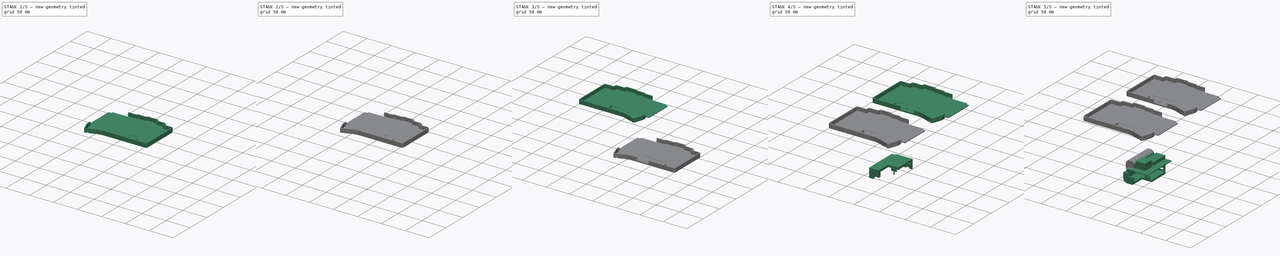
[diagram: build sequence overview — one tinted view per stage of 5, left to right]
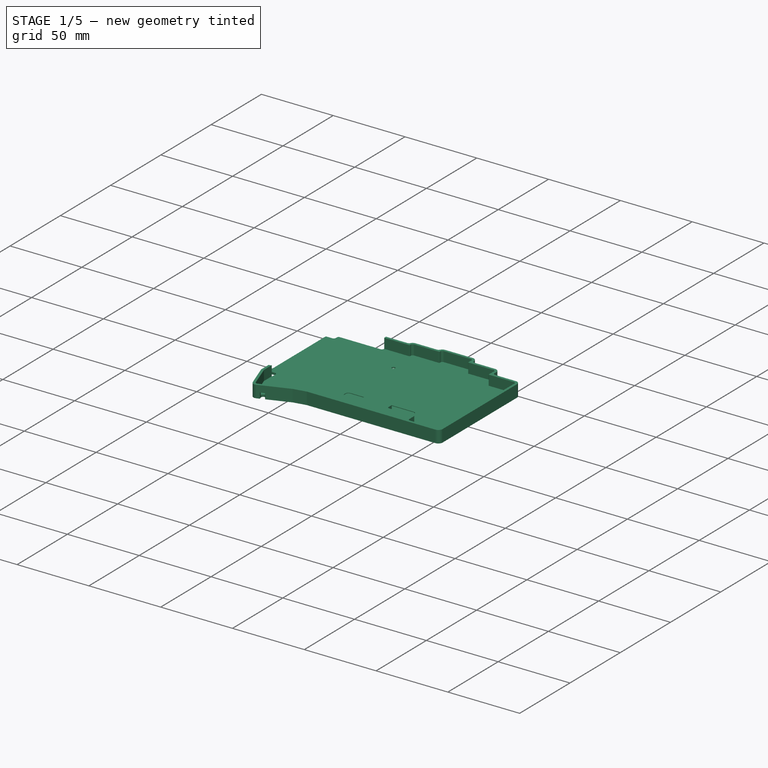
[diagram: stage 1 of 5 — iso view after this stage's code; geometry added in this stage tinted green]
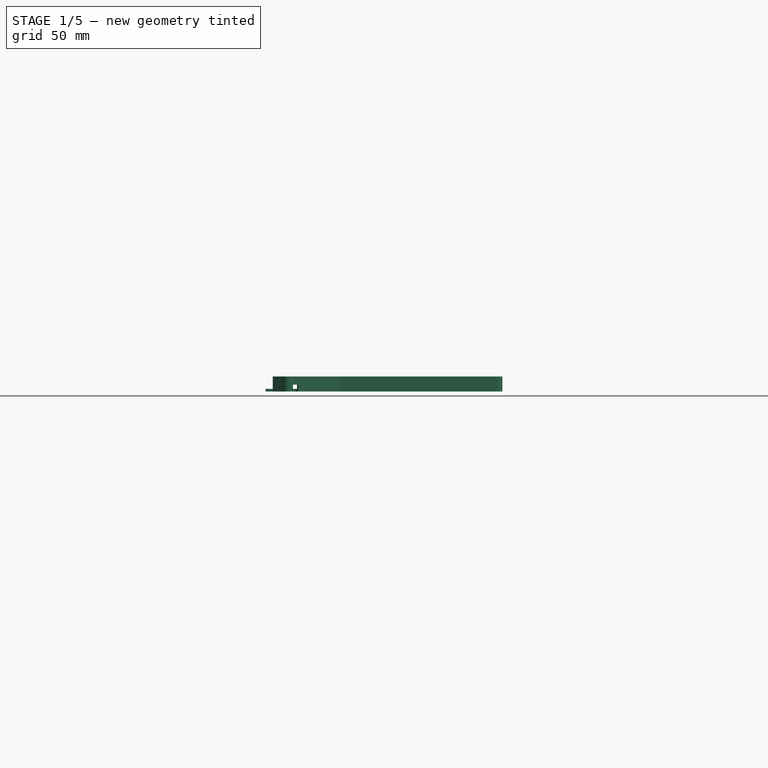
[diagram: stage 1 of 5 — front view after this stage's code; geometry added in this stage tinted green]
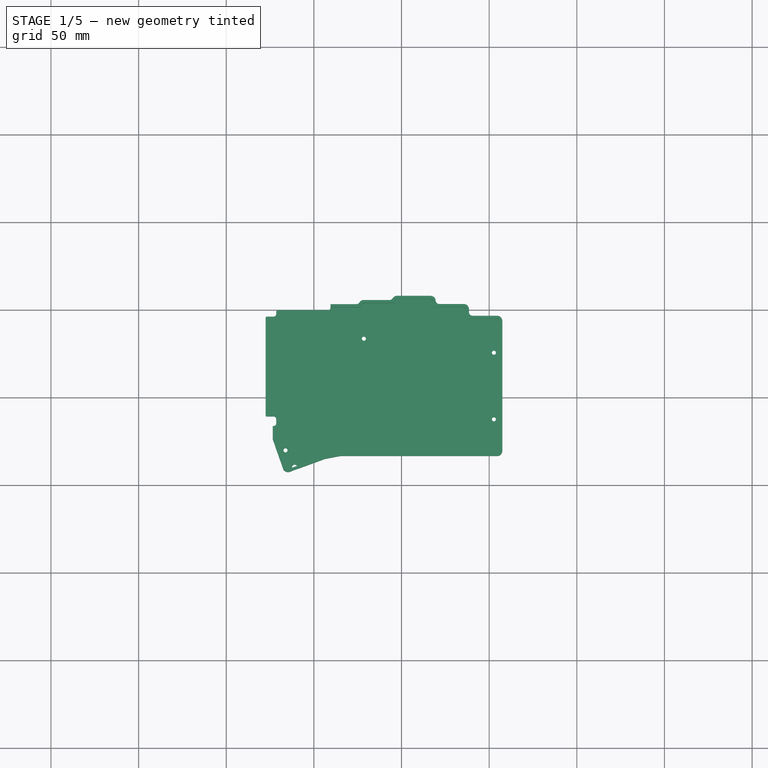
[diagram: stage 1 of 5 — top view after this stage's code; geometry added in this stage tinted green]
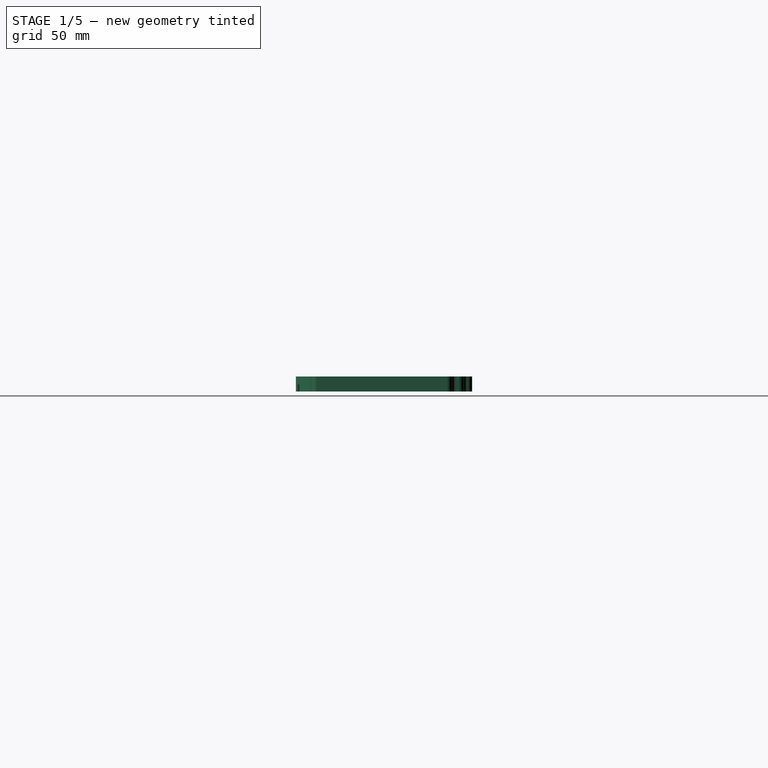
[diagram: stage 1 of 5 — right view after this stage's code; geometry added in this stage tinted green]
FCSTD DOCUMENT  (FreeCAD 1.0R39319 (Git))
Label: torabo-tsuki-lp-simple-case
License: All rights reserved
LicenseURL: http://en.wikipedia.org/wiki/All_rights_reserved
objects: Sketcher::SketchObject×45, PartDesign::Pocket×27, PartDesign::Fillet×12, PartDesign::Pad×10, PartDesign::Body×4, Part::Mirroring×3, PartDesign::Chamfer×2, Part::Feature×2, App::Part×2, App::Link×2, Spreadsheet::Sheet×1
note: 252 computed .brp shape members not serialized (recipe doc carries the construction recipe); baked Part::Feature solids carry a one-line shape summary decoded from their .brp

FEATURE [Part::Feature] Part__Feature  label="torabo-tsuki-lp-S-top_PCB"
  shape: bbox 127 x 96.57 x 1.51 mm, 179 faces (baked)
FEATURE [App::Part] torabo_tsuki_lp_S_top_1  label="torabo-tsuki-lp-S-top 1"
  Group = -> [Part__Feature]
  Origin = -> Origin002
  Placement = pos=(0,0,2.2) rot=(0,1,0;3.14159rad)
FEATURE [Part::Feature] Part__Feature001  label="torabo-tsuki-lp-S-bottom_PCB"
  shape: bbox 133 x 96.57 x 1.2 mm, 86 faces (baked)
FEATURE [App::Part] torabo_tsuki_lp_S_bottom_1  label="torabo-tsuki-lp-S-bottom 1"
  Group = -> [Part__Feature001]
  Origin = -> Origin003
  Placement = pos=(0,0,-3.9) rot=(0,1,0;3.14159rad)
FEATURE [Sketcher::SketchObject] Sketch020
  ArcFitTolerance = 1e-06
  AttachmentOffset = pos=(0,0,-6.6) rot=(0,0,1;0rad)
  AttachmentSupport = -> [XY_Plane005]
  FullyConstrained = false
  MakeInternals = false
  MapMode = 5
  Placement = pos=(0,0,-6.6) rot=(0,0,1;0rad)
  expr: .AttachmentOffset.Base.z = Spreadsheet.case_z1
  expr: Constraints[105] = 107.5 + Spreadsheet.case_w_offset
  expr: Constraints[59] = 73.3 + Spreadsheet.case_h_offset
  expr: Constraints[61] = 83.3 + Spreadsheet.case_h_offset
  expr: Constraints[69] = 85.49 + Spreadsheet.case_h_offset
  expr: Constraints[72] = 90.47 + Spreadsheet.case_h_offset
  sketch-geometry (43):
    g0: ArcOfCircle [constr] CenterX=147.125 CenterY=-68.787 CenterZ=0 NormalX=0 NormalY=0 NormalZ=1 AngleXU=-1.5708 Radius=14.513 StartAngle=7.47076e-07 EndAngle=1.5708
    g1: LineSegment [constr] StartX=161.638 StartY=-68.787 StartZ=0 EndX=161.638 EndY=-5.98647 EndZ=0
    g2: ArcOfCircle [constr] CenterX=132.678 CenterY=-5.98647 CenterZ=0 NormalX=0 NormalY=0 NormalZ=1 AngleXU=-7.47076e-07 Radius=28.9598 StartAngle=7.47076e-07 EndAngle=3.06503
    g3: ArcOfCircle CenterX=85.5 CenterY=0.4 CenterZ=0 NormalX=0 NormalY=0 NormalZ=1 AngleXU=-7.47076e-07 Radius=3 StartAngle=7.47076e-07 EndAngle=1.5708
    g4: LineSegment StartX=85.5 StartY=3.4 StartZ=0 EndX=71.5 EndY=3.4 EndZ=0
    g5: LineSegment StartX=69.5143 StartY=5.16086 StartZ=0 EndX=69.4785 EndY=5.45871 EndZ=0
    g6: ArcOfCircle CenterX=66.5 CenterY=5.1 CenterZ=0 NormalX=0 NormalY=0 NormalZ=1 AngleXU=-7.47076e-07 Radius=3 StartAngle=0.119857 EndAngle=1.5708
    g7: LineSegment StartX=66.5 StartY=8.1 StartZ=0 EndX=47.5 EndY=8.1 EndZ=0
    g8: ArcOfCircle CenterX=47.5 CenterY=5.1 CenterZ=0 NormalX=0 NormalY=0 NormalZ=1 AngleXU=1.5708 Radius=3 StartAngle=7.47076e-07 EndAngle=1.02395
    g9: LineSegment StartX=43.2292 StartY=5.7 StartZ=0 EndX=28.5 EndY=5.7 EndZ=0
    g10: ArcOfCircle CenterX=28.5 CenterY=2.7 CenterZ=0 NormalX=0 NormalY=0 NormalZ=1 AngleXU=1.5708 Radius=3 StartAngle=7.47076e-07 EndAngle=1.02235
    g11: LineSegment StartX=24.23 StartY=3.30683 StartZ=0 EndX=9.4 EndY=3.33155 EndZ=0
    g12: ArcOfCircle CenterX=9.39667 CenterY=1.33155 CenterZ=0 NormalX=0 NormalY=0 NormalZ=-1 AngleXU=-1.5708 Radius=2 StartAngle=2.30112 EndAngle=3.14326
    g13: LineSegment StartX=6.41684 StartY=2 StartZ=0 EndX=-20.5 EndY=2 EndZ=0
    g14: ArcOfCircle CenterX=-20.5 CenterY=-1 CenterZ=0 NormalX=0 NormalY=0 NormalZ=1 AngleXU=1.5708 Radius=3 StartAngle=7.47076e-07 EndAngle=1.5708
    g15: LineSegment StartX=-23.5 StartY=-1 StartZ=0 EndX=-23.5 EndY=-1.7 EndZ=0
    g16: LineSegment StartX=-23.5 StartY=-1.7 StartZ=0 EndX=-27 EndY=-1.7 EndZ=0
    g17: ArcOfCircle CenterX=-27 CenterY=-4.2 CenterZ=0 NormalX=0 NormalY=0 NormalZ=1 AngleXU=1.5708 Radius=2.5 StartAngle=6.28318 EndAngle=7.85398
    g18: LineSegment StartX=-29.5 StartY=-4.2 StartZ=0 EndX=-29.5 EndY=-60.2 EndZ=0
    g19: ArcOfCircle CenterX=-27 CenterY=-60.2 CenterZ=0 NormalX=0 NormalY=0 NormalZ=1 AngleXU=-3.14159 Radius=2.5 StartAngle=6.28318 EndAngle=7.85398
    g20: LineSegment StartX=-27 StartY=-62.7 StartZ=0 EndX=-23.5 EndY=-62.7 EndZ=0
    g21: LineSegment StartX=-23.5 StartY=-62.7 StartZ=0 EndX=-23.5 EndY=-73.3 EndZ=0
    g22: ArcOfCircle CenterX=-21.5 CenterY=-73.3 CenterZ=0 NormalX=0 NormalY=0 NormalZ=-1 AngleXU=-1.90882 Radius=2 StartAngle=1.5711 EndAngle=1.90882
    g23: LineSegment StartX=-23.387 StartY=-73.9627 StartZ=0 EndX=-17.59 EndY=-90.47 EndZ=0
    g24: ArcOfCircle CenterX=-14.7595 CenterY=-89.476 CenterZ=0 NormalX=0 NormalY=0 NormalZ=1 AngleXU=-2.80313 Radius=3 StartAngle=6.28244 EndAngle=7.8705
    g25: LineSegment StartX=-13.7167 StartY=-92.2889 StartZ=0 EndX=4.89 EndY=-85.49 EndZ=0
    g26: LineSegment StartX=4.89 StartY=-85.49 StartZ=0 EndX=6.34 EndY=-84.9533 EndZ=0
    g27: LineSegment StartX=6.34 StartY=-84.9533 StartZ=0 EndX=15.0378 EndY=-83.3 EndZ=0
    g28: LineSegment [constr] StartX=15.0378 StartY=-83.3 StartZ=0 EndX=147.125 EndY=-83.3 EndZ=0
    g29: LineSegment StartX=15.0378 StartY=-83.3 StartZ=0 EndX=104.5 EndY=-83.3 EndZ=0
    g30: LineSegment StartX=107.5 StartY=-80.3 StartZ=0 EndX=107.5 EndY=-6.3 EndZ=0
    g31: ArcOfCircle CenterX=104.5 CenterY=-80.3 CenterZ=0 NormalX=0 NormalY=0 NormalZ=1 AngleXU=0 Radius=3 StartAngle=4.71239 EndAngle=6.28319
    g32: GeomPoint [constr] X=107.5 Y=-83.3 Z=0
    g33: ArcOfCircle CenterX=104.5 CenterY=-6.3 CenterZ=0 NormalX=0 NormalY=0 NormalZ=1 AngleXU=0 Radius=3 StartAngle=2.7e-15 EndAngle=1.5708
    g34: GeomPoint [constr] X=107.5 Y=-3.3 Z=0
    g35: ArcOfCircle CenterX=71.5 CenterY=5.4 CenterZ=0 NormalX=0 NormalY=0 NormalZ=1 AngleXU=0 Radius=2 StartAngle=3.26145 EndAngle=4.71239
    g36: GeomPoint [constr] X=69.7264 Y=3.4 Z=0
    g37: ArcOfCircle CenterX=43.2292 CenterY=7.7 CenterZ=0 NormalX=0 NormalY=0 NormalZ=1 AngleXU=0 Radius=2 StartAngle=4.71239 EndAngle=5.73633
    g38: ArcOfCircle CenterX=24.2333 CenterY=5.30683 CenterZ=0 NormalX=0 NormalY=0 NormalZ=1 AngleXU=0 Radius=2 StartAngle=4.71072 EndAngle=5.73473
    g39: ArcOfCircle CenterX=6.41684 CenterY=4 CenterZ=0 NormalX=0 NormalY=0 NormalZ=1 AngleXU=0 Radius=2 StartAngle=4.71239 EndAngle=5.55286
    g40: ArcOfCircle CenterX=90.5 CenterY=-1.3 CenterZ=0 NormalX=0 NormalY=0 NormalZ=1 AngleXU=0 Radius=2 StartAngle=3.14159 EndAngle=4.71239
    g41: LineSegment StartX=90.5 StartY=-3.3 StartZ=0 EndX=104.5 EndY=-3.3 EndZ=0
    g42: LineSegment StartX=88.5 StartY=0.4 StartZ=0 EndX=88.5 EndY=-1.3 EndZ=0
  constraints (106):
    c: Tangent(g0,g1) = -1.5708
    c: Tangent(g0,g28) = -1.5708
    c: Tangent(g1,g2) = -1.5708
    c: Tangent(g3,g4) = -1.5708
    c: Tangent(g5,g6) = -1.5708
    c: Tangent(g6,g7) = -1.5708
    c: Tangent(g7,g8) = -1.5708
    c: Tangent(g9,g10) = -1.5708
    c: Tangent(g11,g12) = -1.5708
    c: Tangent(g13,g14) = -1.5708
    c: Tangent(g14,g15) = -1.5708
    c: Coincident(g15,g16)
    c: Coincident(g20,g21)
    c: Tangent(g22,g23) = -1.5708
    c: Coincident(g26,g27)
    c: Horizontal(g28)
    c: Coincident(g27,g28)
    c: Vertical(g1)
    c: Coincident(g29,g27)
    c: Horizontal(g29)
    c: Vertical(g30)
    c: PointOnObject(g32,g29)
    c: PointOnObject(g32,g30)
    c: Tangent(g29,g31) = -1.5708
    c: Tangent(g30,g31) = -1.5708
    c: Radius(g31) = 3
    c: PointOnObject(g34,g30)
    c: Tangent(g30,g33) = -1.5708
    c: Radius(g33) = 3
    c: PointOnObject(g36,g5)
    c: PointOnObject(g36,g4)
    c: Tangent(g5,g35) = 1.5708
    c: Tangent(g4,g35) = 1.5708
    c: Tangent(g9,g37) = 1.5708
    c: Tangent(g8,g37) = 1.5708
    c: Tangent(g11,g38) = 1.5708
    c: Tangent(g10,g38) = 1.5708
    c: Tangent(g12,g39) = 1.5708
    c: Tangent(g41,g40) = -1.5708
    c: Horizontal(g41)
    c: Radius(g35) = 2
    c: Radius(g37) = 2
    c: Radius(g38) = 2
    c: Radius(g39) = 2
    c: DistanceY(g-1,g36) = 3.4
    c: Radius(g6) = 3
    c: Radius(g12) = 2
    c: Radius(g10) = 3
    c: DistanceX(g-1,g3) = 88.5
    c: Horizontal(g4)
    c: DistanceY(g40,g-1) = 3.3
    c: Horizontal(g7)
    c: DistanceY(g-1,g6) = 8.1
    c: DistanceX(g-1,g6) = 66.5
    c: DistanceX(g-1,g7) = 47.5
    c: Radius(g8) = 3
    c: Horizontal(g9)
    c: DistanceY(g-1,g9) = 5.7
    c: DistanceX(g-1,g9) = 28.5
    c: DistanceY(g21,g-1) = 73.3
    c: Radius(g22) = 2
    c: DistanceY(g0,g-1) = 83.3
    c: DistanceX(g21,g-1) = 23.5
    c: DistanceY(g20,g-1) = 62.7
    c: Distance(g25,g25) = 19.81
    c: Angle(g25,g27) = 2.9791
    c: Radius(g24) = 3
    c: Angle(g26,g27) = 2.97491
    c: DistanceX(g-1,g25) = 4.89
    c: DistanceY(g25,g-1) = 85.49
    c: DistanceX(g-1,g26) = 6.34
    c: DistanceX(g23,g-1) = 17.59
    c: DistanceY(g23,g-1) = 90.47
    c: Tangent(g23,g24) = -1.5708
    c: Coincident(g24,g25)
    c: Coincident(g25,g26)
    c: DistanceX(g20,g-1) = 23.5
    c: Radius(g3) = 3
    c: DistanceX(g-1,g4) = 71.5
    c: Tangent(g41,g33) = 1.5708
    c: Tangent(g21,g22) = -1.5708
    c: DistanceX(g-1,g11) = 24.23
    c: DistanceX(g-1,g10) = 25.94
    c: DistanceX(g-1,g11) = 9.4
    c: Horizontal(g13)
    c: DistanceY(g-1,g13) = 2
    c: Tangent(g13,g39) = 1.5708
    c: DistanceX(g13,g-1) = 20.5
    c: Radius(g14) = 3
    c: Vertical(g15)
    c: Horizontal(g16)
    c: DistanceY(g15,g-1) = 1.7
    c: Vertical(g18)
    c: Radius(g17) = 2.5
    c: Tangent(g16,g17) = -1.5708
    c: Tangent(g17,g18) = -1.5708
    c: DistanceX(g17,g-1) = 29.5
    c: Radius(g19) = 2.5
    c: Tangent(g18,g19) = -1.5708
    c: Tangent(g19,g20) = -1.5708
    c: Horizontal(g20)
    c: Radius(g40) = 2
    c: Vertical(g42)
    c: Tangent(g42,g3) = 1.5708
    c: Tangent(g42,g40) = -1.5708
    c: Distance(g-2,g30) = 107.5
FEATURE [Sketcher::SketchObject] Sketch021
  ArcFitTolerance = 1e-06
  FullyConstrained = true
  MakeInternals = false
  sketch-geometry (177):
    g0: ArcOfCircle CenterX=48.5 CenterY=5.1 CenterZ=0 NormalX=0 NormalY=0 NormalZ=1 AngleXU=1.5708 Radius=0.999999 StartAngle=0 EndAngle=1.5708
    g1: LineSegment StartX=65.5 StartY=6.1 StartZ=0 EndX=48.5 EndY=6.1 EndZ=0
    g2: LineSegment StartX=47.5 StartY=5.1 StartZ=0 EndX=47.5 EndY=3.7 EndZ=0
    g3: ArcOfCircle CenterX=65.5 CenterY=5.1 CenterZ=0 NormalX=0 NormalY=0 NormalZ=1 AngleXU=-7.47076e-07 Radius=0.999999 StartAngle=0 EndAngle=1.5708
    g4: LineSegment StartX=66.5 StartY=1.4 StartZ=0 EndX=66.5 EndY=5.1 EndZ=0
    g5: LineSegment StartX=84.5 StartY=1.4 StartZ=0 EndX=66.5 EndY=1.4 EndZ=0
    g6: ArcOfCircle CenterX=84.5 CenterY=0.400001 CenterZ=0 NormalX=0 NormalY=0 NormalZ=1 AngleXU=-7.47076e-07 Radius=0.999999 StartAngle=0 EndAngle=1.5708
    g7: LineSegment StartX=85.5 StartY=-5.3 StartZ=0 EndX=85.5 EndY=0.4 EndZ=0
    g8: LineSegment StartX=104.5 StartY=-5.3 StartZ=0 EndX=85.5 EndY=-5.3 EndZ=0
    g9: ArcOfCircle CenterX=104.5 CenterY=-6.3 CenterZ=0 NormalX=0 NormalY=0 NormalZ=1 AngleXU=-7.47076e-07 Radius=0.999999 StartAngle=0 EndAngle=1.5708
    g10: LineSegment StartX=105.5 StartY=-80.3 StartZ=0 EndX=105.5 EndY=-6.3 EndZ=0
    g11: ArcOfCircle CenterX=104.5 CenterY=-80.3 CenterZ=0 NormalX=0 NormalY=0 NormalZ=1 AngleXU=-1.5708 Radius=0.999999 StartAngle=0 EndAngle=1.5708
    g12: LineSegment StartX=85.5 StartY=-81.3 StartZ=0 EndX=104.5 EndY=-81.3 EndZ=0
    g13: ArcOfCircle CenterX=85.5 CenterY=-80.3 CenterZ=0 NormalX=0 NormalY=0 NormalZ=1 AngleXU=3.14159 Radius=0.999999 StartAngle=0 EndAngle=1.5708
    g14: LineSegment StartX=84.5 StartY=-75.6 StartZ=0 EndX=84.5 EndY=-80.3 EndZ=0
    g15: ArcOfCircle CenterX=85.5 CenterY=-75.6 CenterZ=0 NormalX=0 NormalY=0 NormalZ=1 AngleXU=1.5708 Radius=0.999999 StartAngle=0 EndAngle=1.5708
    g16: LineSegment StartX=86.3 StartY=-74.6 StartZ=0 EndX=85.5 EndY=-74.6 EndZ=0
    g17: LineSegment StartX=86.3 StartY=-64.8 StartZ=0 EndX=86.3 EndY=-74.6 EndZ=0
    g18: LineSegment StartX=84.7 StartY=-64.8 StartZ=0 EndX=86.3 EndY=-64.8 EndZ=0
    g19: LineSegment StartX=84.7 StartY=-73.3 StartZ=0 EndX=84.7 EndY=-64.8 EndZ=0
    g20: LineSegment StartX=83.4 StartY=-73.3 StartZ=0 EndX=84.7 EndY=-73.3 EndZ=0
    g21: LineSegment StartX=83.4 StartY=-73.65 StartZ=0 EndX=83.4 EndY=-73.3 EndZ=0
    g22: ArcOfCircle CenterX=82.4 CenterY=-73.65 CenterZ=0 NormalX=0 NormalY=0 NormalZ=1 AngleXU=-1.5708 Radius=0.999999 StartAngle=0 EndAngle=1.5708
    g23: LineSegment StartX=77.5 StartY=-74.65 StartZ=0 EndX=82.4 EndY=-74.65 EndZ=0
    g24: LineSegment StartX=68.3 StartY=-74.65 StartZ=0 EndX=77.5 EndY=-74.65 EndZ=0
    g25: ArcOfCircle CenterX=68.3 CenterY=-73.65 CenterZ=0 NormalX=0 NormalY=0 NormalZ=1 AngleXU=3.14159 Radius=0.999999 StartAngle=0 EndAngle=1.5708
    g26: LineSegment StartX=67.3 StartY=-56.8 StartZ=0 EndX=67.3 EndY=-73.65 EndZ=0
    g27: LineSegment StartX=67.3 StartY=-54.6 StartZ=0 EndX=67.3 EndY=-56.8 EndZ=0
    g28: LineSegment StartX=67.3 StartY=-49.8 StartZ=0 EndX=67.3 EndY=-54.6 EndZ=0
    g29: LineSegment StartX=65.5 StartY=-49.8 StartZ=0 EndX=67.3 EndY=-49.8 EndZ=0
    g30: LineSegment StartX=65.5 StartY=-52 StartZ=0 EndX=65.5 EndY=-49.8 EndZ=0
    g31: LineSegment StartX=65.5 StartY=-68.9 StartZ=0 EndX=65.5 EndY=-52 EndZ=0
    g32: ArcOfCircle CenterX=64.5 CenterY=-68.9 CenterZ=0 NormalX=0 NormalY=0 NormalZ=1 AngleXU=-1.5708 Radius=0.999999 StartAngle=0 EndAngle=1.5708
    g33: LineSegment StartX=45.75 StartY=-69.9 StartZ=0 EndX=64.5 EndY=-69.9 EndZ=0
    g34: LineSegment StartX=45.75 StartY=-77.9 StartZ=0 EndX=45.75 EndY=-69.9 EndZ=0
    g35: LineSegment StartX=45.75 StartY=-78.4 StartZ=0 EndX=45.75 EndY=-77.9 EndZ=0
    g36: ArcOfCircle CenterX=44.75 CenterY=-78.4 CenterZ=0 NormalX=0 NormalY=0 NormalZ=1 AngleXU=-1.5708 Radius=0.999999 StartAngle=0 EndAngle=1.5708
    g37: LineSegment StartX=28.0144 StartY=-79.4 StartZ=0 EndX=44.75 EndY=-79.4 EndZ=0
    g38: ArcOfCircle CenterX=28.0145 CenterY=-78.3999 CenterZ=0 NormalX=0 NormalY=0 NormalZ=1 AngleXU=-2.90729 Radius=1.00006 StartAngle=0 EndAngle=1.33645
    g39: LineSegment StartX=26.7 StartY=-77.2 StartZ=0 EndX=27.0418 EndY=-78.6321 EndZ=0
    g40: LineSegment StartX=23.7 StartY=-58.3 StartZ=0 EndX=26.7 EndY=-77.2 EndZ=0
    g41: LineSegment StartX=23.7 StartY=-57.3 StartZ=0 EndX=23.7 EndY=-58.3 EndZ=0
    g42: LineSegment StartX=25.9 StartY=-57.3 StartZ=0 EndX=23.7 EndY=-57.3 EndZ=0
    g43: LineSegment StartX=25.9 StartY=-55.1 StartZ=0 EndX=25.9 EndY=-57.3 EndZ=0
    g44: LineSegment StartX=22.1 StartY=-55.1 StartZ=0 EndX=25.9 EndY=-55.1 EndZ=0
    g45: LineSegment StartX=22.1 StartY=-58.3 StartZ=0 EndX=22.1 EndY=-55.1 EndZ=0
    g46: LineSegment StartX=25.5603 StartY=-78.2555 StartZ=0 EndX=22.1 EndY=-58.3 EndZ=0
    g47: ArcOfCircle CenterX=24.5765 CenterY=-78.4341 CenterZ=0 NormalX=0 NormalY=0 NormalZ=1 AngleXU=-1.39659 Radius=0.999856 StartAngle=0 EndAngle=1.57618
    g48: LineSegment StartX=5.8 StartY=-83 StartZ=0 EndX=24.7498 EndY=-79.4188 EndZ=0
    g49: LineSegment StartX=4.2 StartY=-83.6 StartZ=0 EndX=5.8 EndY=-83 EndZ=0
    g50: LineSegment StartX=-14.4101 StartY=-90.406 StartZ=0 EndX=4.2 EndY=-83.6 EndZ=0
    g51: ArcOfCircle CenterX=-14.7567 CenterY=-89.4679 CenterZ=0 NormalX=0 NormalY=0 NormalZ=1 AngleXU=-2.80313 Radius=1.00005 StartAngle=0 EndAngle=1.58624
    g52: LineSegment StartX=-21.5 StartY=-73.3 StartZ=0 EndX=-15.7 EndY=-89.8 EndZ=0
    g53: LineSegment StartX=-21.5 StartY=-67.2 StartZ=0 EndX=-21.5 EndY=-73.3 EndZ=0
    g54: ArcOfCircle CenterX=-20.5 CenterY=-67.2 CenterZ=0 NormalX=0 NormalY=0 NormalZ=1 AngleXU=1.5708 Radius=0.999999 StartAngle=0 EndAngle=1.5708
    g55: LineSegment StartX=-9.5 StartY=-66.2 StartZ=0 EndX=-20.5 EndY=-66.2 EndZ=0
    g56: LineSegment StartX=-9.5 StartY=-40.5 StartZ=0 EndX=-9.5 EndY=-66.2 EndZ=0
    g57: ArcOfCircle CenterX=-8.5 CenterY=-40.5 CenterZ=0 NormalX=0 NormalY=0 NormalZ=1 AngleXU=1.5708 Radius=0.999999 StartAngle=0 EndAngle=1.5708
    g58: LineSegment StartX=9.5 StartY=-39.5 StartZ=0 EndX=-8.5 EndY=-39.5 EndZ=0
    g59: LineSegment StartX=9.5 StartY=0.3 StartZ=0 EndX=9.5 EndY=-39.5 EndZ=0
    g60: ArcOfCircle CenterX=10.5 CenterY=0.300001 CenterZ=0 NormalX=0 NormalY=0 NormalZ=1 AngleXU=1.5708 Radius=0.999999 StartAngle=0 EndAngle=1.5708
    g61: LineSegment StartX=28.5 StartY=1.3 StartZ=0 EndX=10.5 EndY=1.3 EndZ=0
    g62: LineSegment StartX=28.5 StartY=2.7 StartZ=0 EndX=28.5 EndY=1.3 EndZ=0
    g63: ArcOfCircle CenterX=29.5 CenterY=2.7 CenterZ=0 NormalX=0 NormalY=0 NormalZ=1 AngleXU=1.5708 Radius=0.999999 StartAngle=0 EndAngle=1.5708
    g64: LineSegment StartX=47.5 StartY=3.7 StartZ=0 EndX=29.5 EndY=3.7 EndZ=0
    g65: LineSegment StartX=102.1 StartY=-78.8 StartZ=0 EndX=87.9 EndY=-78.8 EndZ=0
    g66: LineSegment StartX=102.1 StartY=-64.8 StartZ=0 EndX=102.1 EndY=-78.8 EndZ=0
    g67: LineSegment StartX=87.9 StartY=-64.8 StartZ=0 EndX=102.1 EndY=-64.8 EndZ=0
    g68: LineSegment StartX=87.9 StartY=-78.8 StartZ=0 EndX=87.9 EndY=-64.8 EndZ=0
    g69: LineSegment StartX=83.1 StartY=-72.15 StartZ=0 EndX=68.9 EndY=-72.15 EndZ=0
    g70: LineSegment StartX=83.1 StartY=-58.15 StartZ=0 EndX=83.1 EndY=-72.15 EndZ=0
    g71: LineSegment StartX=68.9 StartY=-58.15 StartZ=0 EndX=83.1 EndY=-58.15 EndZ=0
    g72: LineSegment StartX=68.9 StartY=-72.15 StartZ=0 EndX=68.9 EndY=-58.15 EndZ=0
    g73: Circle CenterX=102.7 CenterY=-62.3 CenterZ=0 NormalX=0 NormalY=0 NormalZ=1 AngleXU=-1.5708 Radius=1.1
    g74: LineSegment StartX=102.1 StartY=-59.8 StartZ=0 EndX=87.9 EndY=-59.8 EndZ=0
    g75: LineSegment StartX=102.1 StartY=-45.8 StartZ=0 EndX=102.1 EndY=-59.8 EndZ=0
    g76: LineSegment StartX=87.9 StartY=-45.8 StartZ=0 EndX=102.1 EndY=-45.8 EndZ=0
    g77: LineSegment StartX=87.9 StartY=-59.8 StartZ=0 EndX=87.9 EndY=-45.8 EndZ=0
    g78: LineSegment StartX=86.3 StartY=-62.8 StartZ=0 EndX=84.7 EndY=-62.8 EndZ=0
    g79: LineSegment StartX=86.3 StartY=-54.6 StartZ=0 EndX=86.3 EndY=-62.8 EndZ=0
    g80: LineSegment StartX=69.3 StartY=-54.6 StartZ=0 EndX=86.3 EndY=-54.6 EndZ=0
    g81: LineSegment StartX=69.3 StartY=-56.8 StartZ=0 EndX=69.3 EndY=-54.6 EndZ=0
    g82: LineSegment StartX=84.7 StartY=-56.8 StartZ=0 EndX=69.3 EndY=-56.8 EndZ=0
    g83: LineSegment StartX=84.7 StartY=-62.8 StartZ=0 EndX=84.7 EndY=-56.8 EndZ=0
    g84: LineSegment StartX=83.1 StartY=-53.15 StartZ=0 EndX=68.9 EndY=-53.15 EndZ=0
    g85: LineSegment StartX=83.1 StartY=-39.15 StartZ=0 EndX=83.1 EndY=-53.15 EndZ=0
    g86: LineSegment StartX=68.9 StartY=-39.15 StartZ=0 EndX=83.1 EndY=-39.15 EndZ=0
    g87: LineSegment StartX=68.9 StartY=-53.15 StartZ=0 EndX=68.9 EndY=-39.15 EndZ=0
    g88: LineSegment StartX=64.1 StartY=-67.4 StartZ=0 EndX=49.9 EndY=-67.4 EndZ=0
    g89: LineSegment StartX=64.1 StartY=-53.4 StartZ=0 EndX=64.1 EndY=-67.4 EndZ=0
    g90: LineSegment StartX=49.9 StartY=-53.4 StartZ=0 EndX=64.1 EndY=-53.4 EndZ=0
    g91: LineSegment StartX=49.9 StartY=-67.4 StartZ=0 EndX=49.9 EndY=-53.4 EndZ=0
    g92: LineSegment StartX=63.5 StartY=-52 StartZ=0 EndX=48.7 EndY=-52 EndZ=0
    g93: LineSegment StartX=63.5 StartY=-49.8 StartZ=0 EndX=63.5 EndY=-52 EndZ=0
    g94: LineSegment StartX=47.5 StartY=-49.8 StartZ=0 EndX=63.5 EndY=-49.8 EndZ=0
    g95: LineSegment StartX=47.5 StartY=-53.3 StartZ=0 EndX=47.5 EndY=-49.8 EndZ=0
    g96: LineSegment StartX=34.2 StartY=-53.3 StartZ=0 EndX=47.5 EndY=-53.3 EndZ=0
    g97: LineSegment StartX=27.9 StartY=-53.3 StartZ=0 EndX=34.2 EndY=-53.3 EndZ=0
    g98: LineSegment StartX=27.9 StartY=-55.1 StartZ=0 EndX=27.9 EndY=-53.3 EndZ=0
    g99: LineSegment StartX=27.9 StartY=-57.3 StartZ=0 EndX=27.9 EndY=-55.1 EndZ=0
    g100: LineSegment StartX=31.6 StartY=-57.3 StartZ=0 EndX=27.9 EndY=-57.3 EndZ=0
    g101: LineSegment StartX=34.2 StartY=-57.3 StartZ=0 EndX=31.6 EndY=-57.3 EndZ=0
    g102: LineSegment StartX=38 StartY=-57.3 StartZ=0 EndX=34.2 EndY=-57.3 EndZ=0
    g103: LineSegment StartX=38 StartY=-55.5 StartZ=0 EndX=38 EndY=-57.3 EndZ=0
    g104: LineSegment StartX=48.7 StartY=-55.5 StartZ=0 EndX=38 EndY=-55.5 EndZ=0
    g105: LineSegment StartX=48.7 StartY=-52 StartZ=0 EndX=48.7 EndY=-55.5 EndZ=0
    g106: LineSegment StartX=42.25 StartY=-76.9 StartZ=0 EndX=28.05 EndY=-76.9 EndZ=0
    g107: LineSegment StartX=42.25 StartY=-62.9 StartZ=0 EndX=42.25 EndY=-76.9 EndZ=0
    g108: LineSegment StartX=28.05 StartY=-62.9 StartZ=0 EndX=42.25 EndY=-62.9 EndZ=0
    g109: LineSegment StartX=28.05 StartY=-76.9 StartZ=0 EndX=28.05 EndY=-62.9 EndZ=0
    g110: LineSegment StartX=21.9023 StartY=-77.3547 StartZ=0 EndX=7.91807 EndY=-79.8205 EndZ=0
    g111: LineSegment StartX=19.4713 StartY=-63.5674 StartZ=0 EndX=21.9023 EndY=-77.3547 EndZ=0
    g112: LineSegment StartX=5.487 StartY=-66.0332 StartZ=0 EndX=19.4713 EndY=-63.5674 EndZ=0
    g113: LineSegment StartX=7.91807 StartY=-79.8205 StartZ=0 EndX=5.487 EndY=-66.0332 EndZ=0
    g114: LineSegment StartX=2.2403 StartY=-81.6552 StartZ=0 EndX=-11.1033 EndY=-86.5119 EndZ=0
    g115: LineSegment StartX=-2.54799 StartY=-68.4995 StartZ=0 EndX=2.2403 EndY=-81.6552 EndZ=0
    g116: LineSegment StartX=-15.8916 StartY=-73.3562 StartZ=0 EndX=-2.54799 EndY=-68.4995 EndZ=0
    g117: LineSegment StartX=-11.1033 StartY=-86.5119 StartZ=0 EndX=-15.8916 EndY=-73.3562 EndZ=0
    g118: Circle CenterX=-16.2 CenterY=-80 CenterZ=0 NormalX=0 NormalY=0 NormalZ=1 AngleXU=-1.5708 Radius=1.1
    g119: LineSegment StartX=45.1 StartY=-50.775 StartZ=0 EndX=30.9 EndY=-50.775 EndZ=0
    g120: LineSegment StartX=45.1 StartY=-36.775 StartZ=0 EndX=45.1 EndY=-50.775 EndZ=0
    g121: LineSegment StartX=30.9 StartY=-36.775 StartZ=0 EndX=45.1 EndY=-36.775 EndZ=0
    g122: LineSegment StartX=30.9 StartY=-50.775 StartZ=0 EndX=30.9 EndY=-36.775 EndZ=0
    g123: LineSegment StartX=26.1 StartY=-53.15 StartZ=0 EndX=11.9 EndY=-53.15 EndZ=0
    g124: LineSegment StartX=26.1 StartY=-39.15 StartZ=0 EndX=26.1 EndY=-53.15 EndZ=0
    g125: LineSegment StartX=11.9 StartY=-39.15 StartZ=0 EndX=26.1 EndY=-39.15 EndZ=0
    g126: LineSegment StartX=11.9 StartY=-53.15 StartZ=0 EndX=11.9 EndY=-39.15 EndZ=0
    g127: LineSegment StartX=7.1 StartY=-56 StartZ=0 EndX=-7.1 EndY=-56 EndZ=0
    g128: LineSegment StartX=7.1 StartY=-42 StartZ=0 EndX=7.1 EndY=-56 EndZ=0
    g129: LineSegment StartX=-7.1 StartY=-42 StartZ=0 EndX=7.1 EndY=-42 EndZ=0
    g130: LineSegment StartX=-7.1 StartY=-56 StartZ=0 EndX=-7.1 EndY=-42 EndZ=0
    g131: LineSegment StartX=102.1 StartY=-40.8 StartZ=0 EndX=87.9 EndY=-40.8 EndZ=0
    g132: LineSegment StartX=102.1 StartY=-26.8 StartZ=0 EndX=102.1 EndY=-40.8 EndZ=0
    g133: LineSegment StartX=87.9 StartY=-26.8 StartZ=0 EndX=102.1 EndY=-26.8 EndZ=0
    g134: LineSegment StartX=87.9 StartY=-40.8 StartZ=0 EndX=87.9 EndY=-26.8 EndZ=0
    g135: Circle CenterX=102.7 CenterY=-24.3 CenterZ=0 NormalX=0 NormalY=0 NormalZ=1 AngleXU=-1.5708 Radius=1.1
    g136: LineSegment StartX=83.1 StartY=-34.15 StartZ=0 EndX=68.9 EndY=-34.15 EndZ=0
    g137: LineSegment StartX=83.1 StartY=-20.15 StartZ=0 EndX=83.1 EndY=-34.15 EndZ=0
    g138: LineSegment StartX=68.9 StartY=-20.15 StartZ=0 EndX=83.1 EndY=-20.15 EndZ=0
    g139: LineSegment StartX=68.9 StartY=-34.15 StartZ=0 EndX=68.9 EndY=-20.15 EndZ=0
    g140: LineSegment StartX=64.1 StartY=-48.4 StartZ=0 EndX=49.9 EndY=-48.4 EndZ=0
    g141: LineSegment StartX=64.1 StartY=-34.4 StartZ=0 EndX=64.1 EndY=-48.4 EndZ=0
    g142: LineSegment StartX=49.9 StartY=-34.4 StartZ=0 EndX=64.1 EndY=-34.4 EndZ=0
    g143: LineSegment StartX=49.9 StartY=-48.4 StartZ=0 EndX=49.9 EndY=-34.4 EndZ=0
    g144: LineSegment StartX=64.1 StartY=-29.4 StartZ=0 EndX=49.9 EndY=-29.4 EndZ=0
    g145: LineSegment StartX=64.1 StartY=-15.4 StartZ=0 EndX=64.1 EndY=-29.4 EndZ=0
    g146: LineSegment StartX=49.9 StartY=-15.4 StartZ=0 EndX=64.1 EndY=-15.4 EndZ=0
    g147: LineSegment StartX=49.9 StartY=-29.4 StartZ=0 EndX=49.9 EndY=-15.4 EndZ=0
    g148: LineSegment StartX=102.1 StartY=-21.8 StartZ=0 EndX=87.9 EndY=-21.8 EndZ=0
    g149: LineSegment StartX=102.1 StartY=-7.8 StartZ=0 EndX=102.1 EndY=-21.8 EndZ=0
    g150: LineSegment StartX=87.9 StartY=-7.8 StartZ=0 EndX=102.1 EndY=-7.8 EndZ=0
    g151: LineSegment StartX=87.9 StartY=-21.8 StartZ=0 EndX=87.9 EndY=-7.8 EndZ=0
    g152: LineSegment StartX=83.1 StartY=-15.15 StartZ=0 EndX=68.9 EndY=-15.15 EndZ=0
    g153: LineSegment StartX=83.1 StartY=-1.15 StartZ=0 EndX=83.1 EndY=-15.15 EndZ=0
    g154: LineSegment StartX=68.9 StartY=-1.15 StartZ=0 EndX=83.1 EndY=-1.15 EndZ=0
    g155: LineSegment StartX=68.9 StartY=-15.15 StartZ=0 EndX=68.9 EndY=-1.15 EndZ=0
    g156: LineSegment StartX=64.1 StartY=-10.4 StartZ=0 EndX=49.9 EndY=-10.4 EndZ=0
    g157: LineSegment StartX=64.1 StartY=3.6 StartZ=0 EndX=64.1 EndY=-10.4 EndZ=0
    g158: LineSegment StartX=49.9 StartY=3.6 StartZ=0 EndX=64.1 EndY=3.6 EndZ=0
    g159: LineSegment StartX=49.9 StartY=-10.4 StartZ=0 EndX=49.9 EndY=3.6 EndZ=0
    g160: LineSegment StartX=45.1 StartY=-31.775 StartZ=0 EndX=30.9 EndY=-31.775 EndZ=0
    g161: LineSegment StartX=45.1 StartY=-17.775 StartZ=0 EndX=45.1 EndY=-31.775 EndZ=0
    g162: LineSegment StartX=30.9 StartY=-17.775 StartZ=0 EndX=45.1 EndY=-17.775 EndZ=0
    g163: LineSegment StartX=30.9 StartY=-31.775 StartZ=0 EndX=30.9 EndY=-17.775 EndZ=0
    g164: LineSegment StartX=26.1 StartY=-34.15 StartZ=0 EndX=11.9 EndY=-34.15 EndZ=0
    g165: LineSegment StartX=26.1 StartY=-20.15 StartZ=0 EndX=26.1 EndY=-34.15 EndZ=0
    g166: LineSegment StartX=11.9 StartY=-20.15 StartZ=0 EndX=26.1 EndY=-20.15 EndZ=0
    g167: LineSegment StartX=11.9 StartY=-34.15 StartZ=0 EndX=11.9 EndY=-20.15 EndZ=0
    g168: Circle CenterX=28.5 CenterY=-16.3 CenterZ=0 NormalX=0 NormalY=0 NormalZ=1 AngleXU=-1.5708 Radius=1.1
    g169: LineSegment StartX=26.1 StartY=-15.15 StartZ=0 EndX=11.9 EndY=-15.15 EndZ=0
    g170: LineSegment StartX=26.1 StartY=-1.15 StartZ=0 EndX=26.1 EndY=-15.15 EndZ=0
    g171: LineSegment StartX=11.9 StartY=-1.15 StartZ=0 EndX=26.1 EndY=-1.15 EndZ=0
    g172: LineSegment StartX=11.9 StartY=-15.15 StartZ=0 EndX=11.9 EndY=-1.15 EndZ=0
    g173: LineSegment StartX=45.1 StartY=-12.775 StartZ=0 EndX=30.9 EndY=-12.775 EndZ=0
    g174: LineSegment StartX=45.1 StartY=1.225 StartZ=0 EndX=45.1 EndY=-12.775 EndZ=0
    g175: LineSegment StartX=30.9 StartY=1.225 StartZ=0 EndX=45.1 EndY=1.225 EndZ=0
    g176: LineSegment StartX=30.9 StartY=-12.775 StartZ=0 EndX=30.9 EndY=1.225 EndZ=0
  constraints (350):
    c: Coincident(g52,g53)
    c: Coincident(g53,g54)
    c: Coincident(g54,g55)
    c: Coincident(g116,g117)
    c: Coincident(g51,g52)
    c: Coincident(g50,g51)
    c: Coincident(g114,g117)
    c: Coincident(g55,g56)
    c: Coincident(g56,g57)
    c: Coincident(g57,g58)
    c: Coincident(g127,g130)
    c: Coincident(g129,g130)
    c: Coincident(g115,g116)
    c: Coincident(g114,g115)
    c: Coincident(g49,g50)
    c: Coincident(g112,g113)
    c: Coincident(g48,g49)
    c: Coincident(g127,g128)
    c: Coincident(g128,g129)
    c: Coincident(g110,g113)
    c: Coincident(g58,g59)
    c: Coincident(g59,g60)
    c: Coincident(g60,g61)
    c: Coincident(g123,g126)
    c: Coincident(g125,g126)
    c: Coincident(g164,g167)
    c: Coincident(g166,g167)
    c: Coincident(g169,g172)
    c: Coincident(g171,g172)
    c: Coincident(g111,g112)
    c: Coincident(g110,g111)
    c: Coincident(g45,g46)
    c: Coincident(g44,g45)
    c: Coincident(g40,g41)
    c: Coincident(g41,g42)
    c: Coincident(g47,g48)
    c: Coincident(g46,g47)
    c: Coincident(g42,g43)
    c: Coincident(g43,g44)
    c: Coincident(g123,g124)
    c: Coincident(g124,g125)
    c: Coincident(g164,g165)
    c: Coincident(g165,g166)
    c: Coincident(g169,g170)
    c: Coincident(g170,g171)
    c: Coincident(g39,g40)
    c: Coincident(g38,g39)
    c: Coincident(g99,g100)
    c: Coincident(g98,g99)
    c: Coincident(g97,g98)
    c: Coincident(g37,g38)
    c: Coincident(g106,g109)
    c: Coincident(g108,g109)
    c: Coincident(g61,g62)
    c: Coincident(g62,g63)
    c: Coincident(g63,g64)
    c: Coincident(g119,g122)
    c: Coincident(g121,g122)
    c: Coincident(g160,g163)
    c: Coincident(g162,g163)
    c: Coincident(g173,g176)
    c: Coincident(g175,g176)
    c: Coincident(g100,g101)
    c: Coincident(g101,g102)
    c: Coincident(g96,g97)
    c: Coincident(g102,g103)
    c: Coincident(g103,g104)
    c: Coincident(g106,g107)
    c: Coincident(g107,g108)
    c: Coincident(g36,g37)
    c: Coincident(g119,g120)
    c: Coincident(g120,g121)
    c: Coincident(g160,g161)
    c: Coincident(g161,g162)
    c: Coincident(g173,g174)
    c: Coincident(g174,g175)
    c: Coincident(g35,g36)
    c: Coincident(g34,g35)
    c: Coincident(g33,g34)
    c: Coincident(g95,g96)
    c: Coincident(g94,g95)
    c: Coincident(g2,g64)
    c: Coincident(g0,g2)
    c: Coincident(g0,g1)
    c: Coincident(g104,g105)
    c: Coincident(g92,g105)
    c: Coincident(g88,g91)
    c: Coincident(g90,g91)
    c: Coincident(g140,g143)
    c: Coincident(g142,g143)
    c: Coincident(g144,g147)
    c: Coincident(g146,g147)
    c: Coincident(g156,g159)
    c: Coincident(g158,g159)
    c: Coincident(g92,g93)
    c: Coincident(g93,g94)
    c: Coincident(g88,g89)
    c: Coincident(g89,g90)
    c: Coincident(g140,g141)
    c: Coincident(g141,g142)
    c: Coincident(g144,g145)
    c: Coincident(g145,g146)
    c: Coincident(g156,g157)
    c: Coincident(g157,g158)
    c: Coincident(g32,g33)
    c: Coincident(g31,g32)
    c: Coincident(g30,g31)
    c: Coincident(g29,g30)
    c: Coincident(g1,g3)
    c: Coincident(g4,g5)
    c: Coincident(g3,g4)
    c: Coincident(g25,g26)
    c: Coincident(g26,g27)
    c: Coincident(g27,g28)
    c: Coincident(g28,g29)
    c: Coincident(g24,g25)
    c: Coincident(g69,g72)
    c: Coincident(g71,g72)
    c: Coincident(g84,g87)
    c: Coincident(g86,g87)
    c: Coincident(g136,g139)
    c: Coincident(g138,g139)
    c: Coincident(g152,g155)
    c: Coincident(g154,g155)
    c: Coincident(g81,g82)
    c: Coincident(g80,g81)
    c: Coincident(g23,g24)
    c: Coincident(g22,g23)
    c: Coincident(g69,g70)
    c: Coincident(g70,g71)
    c: Coincident(g84,g85)
    c: Coincident(g85,g86)
    c: Coincident(g136,g137)
    c: Coincident(g137,g138)
    c: Coincident(g152,g153)
    c: Coincident(g153,g154)
    c: Coincident(g21,g22)
    c: Coincident(g20,g21)
    c: Coincident(g13,g14)
    c: Coincident(g14,g15)
    c: Coincident(g5,g6)
    c: Coincident(g19,g20)
    c: Coincident(g18,g19)
    c: Coincident(g78,g83)
    c: Coincident(g82,g83)
    c: Coincident(g12,g13)
    c: Coincident(g15,g16)
    c: Coincident(g7,g8)
    c: Coincident(g6,g7)
    c: Coincident(g16,g17)
    c: Coincident(g17,g18)
    c: Coincident(g78,g79)
    c: Coincident(g79,g80)
    c: Coincident(g65,g68)
    c: Coincident(g67,g68)
    c: Coincident(g74,g77)
    c: Coincident(g76,g77)
    c: Coincident(g131,g134)
    c: Coincident(g133,g134)
    c: Coincident(g148,g151)
    c: Coincident(g150,g151)
    c: Coincident(g65,g66)
    c: Coincident(g66,g67)
    c: Coincident(g74,g75)
    c: Coincident(g75,g76)
    c: Coincident(g131,g132)
    c: Coincident(g132,g133)
    c: Coincident(g148,g149)
    c: Coincident(g149,g150)
    c: Coincident(g11,g12)
    c: Coincident(g8,g9)
    c: Coincident(g10,g11)
    c: Coincident(g9,g10)
    c: Block(g0)
    c: Block(g1)
    c: Block(g2)
    c: Block(g3)
    c: Block(g4)
    c: Block(g5)
    c: Block(g6)
    c: Block(g7)
    c: Block(g8)
    c: Block(g9)
    c: Block(g10)
    c: Block(g11)
    c: Block(g12)
    c: Block(g13)
    c: Block(g14)
    c: Block(g15)
    c: Block(g16)
    c: Block(g17)
    c: Block(g18)
    c: Block(g19)
    c: Block(g20)
    c: Block(g21)
    c: Block(g22)
    c: Block(g23)
    c: Block(g24)
    c: Block(g25)
    c: Block(g26)
    c: Block(g27)
    c: Block(g28)
    c: Block(g29)
    c: Block(g30)
    c: Block(g31)
    c: Block(g32)
    c: Block(g33)
    c: Block(g34)
    c: Block(g35)
    c: Block(g36)
    c: Block(g37)
    c: Block(g38)
    c: Block(g39)
    c: Block(g40)
    c: Block(g41)
    c: Block(g42)
    c: Block(g43)
    c: Block(g44)
    c: Block(g45)
    c: Block(g46)
    c: Block(g47)
    c: Block(g48)
    c: Block(g49)
    c: Block(g50)
    c: Block(g51)
    c: Block(g52)
    c: Block(g53)
    c: Block(g54)
    c: Block(g55)
    c: Block(g56)
    c: Block(g57)
    c: Block(g58)
    c: Block(g59)
    c: Block(g60)
    c: Block(g61)
    c: Block(g62)
    c: Block(g63)
    c: Block(g64)
    c: Block(g65)
    c: Block(g66)
    c: Block(g67)
    c: Block(g68)
    c: Block(g69)
    c: Block(g70)
    c: Block(g71)
    c: Block(g72)
    c: Block(g73)
    c: Block(g74)
    c: Block(g75)
    c: Block(g76)
    c: Block(g77)
    c: Block(g78)
    c: Block(g79)
    c: Block(g80)
    c: Block(g81)
    c: Block(g82)
    c: Block(g83)
    c: Block(g84)
    c: Block(g85)
    c: Block(g86)
    c: Block(g87)
    c: Block(g88)
    c: Block(g89)
    c: Block(g90)
    c: Block(g91)
    c: Block(g92)
    c: Block(g93)
    c: Block(g94)
    c: Block(g95)
    c: Block(g96)
    c: Block(g97)
    c: Block(g98)
    c: Block(g99)
    c: Block(g100)
    c: Block(g101)
    c: Block(g102)
    c: Block(g103)
    c: Block(g104)
    c: Block(g105)
    c: Block(g106)
    c: Block(g107)
    c: Block(g108)
    c: Block(g109)
    c: Block(g110)
    c: Block(g111)
    c: Block(g112)
    c: Block(g113)
    c: Block(g114)
    c: Block(g115)
    c: Block(g116)
    c: Block(g117)
    c: Block(g118)
    c: Block(g119)
    c: Block(g120)
    c: Block(g121)
    c: Block(g122)
    c: Block(g123)
    c: Block(g124)
    c: Block(g125)
    c: Block(g126)
    c: Block(g127)
    c: Block(g128)
    c: Block(g129)
    c: Block(g130)
    c: Block(g131)
    c: Block(g132)
    c: Block(g133)
    c: Block(g134)
    c: Block(g135)
    c: Block(g136)
    c: Block(g137)
    c: Block(g138)
    c: Block(g139)
    c: Block(g140)
    c: Block(g141)
    c: Block(g142)
    c: Block(g143)
    c: Block(g144)
    c: Block(g145)
    c: Block(g146)
    c: Block(g147)
    c: Block(g148)
    c: Block(g149)
    c: Block(g150)
    c: Block(g151)
    c: Block(g152)
    c: Block(g153)
    c: Block(g154)
    c: Block(g155)
    c: Block(g156)
    c: Block(g157)
    c: Block(g158)
    c: Block(g159)
    c: Block(g160)
    c: Block(g161)
    c: Block(g162)
    c: Block(g163)
    c: Block(g164)
    c: Block(g165)
    c: Block(g166)
    c: Block(g167)
    c: Block(g168)
    c: Block(g169)
    c: Block(g170)
    c: Block(g171)
    c: Block(g172)
    c: Block(g173)
    c: Block(g174)
    c: Block(g175)
    c: Block(g176)
FEATURE [Sketcher::SketchObject] Sketch022
  ArcFitTolerance = 1e-06
  FullyConstrained = true
  MakeInternals = false
  sketch-geometry (84):
    g0: ArcOfCircle CenterX=47.5 CenterY=5.1 CenterZ=0 NormalX=0 NormalY=0 NormalZ=1 AngleXU=1.5708 Radius=0.999999 StartAngle=0 EndAngle=1.5708
    g1: LineSegment StartX=66.5 StartY=6.1 StartZ=0 EndX=47.5 EndY=6.1 EndZ=0
    g2: LineSegment StartX=46.5 StartY=5.1 StartZ=0 EndX=46.5 EndY=3.7 EndZ=0
    g3: ArcOfCircle CenterX=66.5 CenterY=5.1 CenterZ=0 NormalX=0 NormalY=0 NormalZ=1 AngleXU=-7.47076e-07 Radius=0.999999 StartAngle=0 EndAngle=1.5708
    g4: LineSegment StartX=67.5 StartY=1.4 StartZ=0 EndX=67.5 EndY=5.1 EndZ=0
    g5: LineSegment StartX=85.5 StartY=1.4 StartZ=0 EndX=67.5 EndY=1.4 EndZ=0
    g6: ArcOfCircle CenterX=85.5 CenterY=0.400001 CenterZ=0 NormalX=0 NormalY=0 NormalZ=1 AngleXU=-7.47076e-07 Radius=0.999999 StartAngle=0 EndAngle=1.5708
    g7: LineSegment StartX=86.5 StartY=-5.3 StartZ=0 EndX=86.5 EndY=0.4 EndZ=0
    g8: LineSegment StartX=104.5 StartY=-5.3 StartZ=0 EndX=86.5 EndY=-5.3 EndZ=0
    g9: ArcOfCircle CenterX=104.5 CenterY=-6.3 CenterZ=0 NormalX=0 NormalY=0 NormalZ=1 AngleXU=-7.47076e-07 Radius=0.999999 StartAngle=0 EndAngle=1.5708
    g10: LineSegment StartX=105.5 StartY=-80.3 StartZ=0 EndX=105.5 EndY=-6.3 EndZ=0
    g11: ArcOfCircle CenterX=104.5 CenterY=-80.3 CenterZ=0 NormalX=0 NormalY=0 NormalZ=1 AngleXU=-1.5708 Radius=0.999999 StartAngle=0 EndAngle=1.5708
    g12: LineSegment StartX=85.5 StartY=-81.3 StartZ=0 EndX=104.5 EndY=-81.3 EndZ=0
    g13: ArcOfCircle CenterX=85.5 CenterY=-80.3 CenterZ=0 NormalX=0 NormalY=0 NormalZ=1 AngleXU=3.14159 Radius=0.999999 StartAngle=0 EndAngle=1.5708
    g14: LineSegment StartX=84.5 StartY=-74.65 StartZ=0 EndX=84.5 EndY=-80.3 EndZ=0
    g15: LineSegment StartX=78.9 StartY=-74.65 StartZ=0 EndX=84.5 EndY=-74.65 EndZ=0
    g16: LineSegment StartX=76.5 StartY=-74.65 StartZ=0 EndX=78.9 EndY=-74.65 EndZ=0
    g17: LineSegment StartX=76.5 StartY=-77.1 StartZ=0 EndX=76.5 EndY=-74.65 EndZ=0
    g18: LineSegment StartX=82.5 StartY=-77.1 StartZ=0 EndX=76.5 EndY=-77.1 EndZ=0
    g19: LineSegment StartX=82.5 StartY=-80.3 StartZ=0 EndX=82.5 EndY=-77.1 EndZ=0
    g20: ArcOfCircle CenterX=81.5 CenterY=-80.3 CenterZ=0 NormalX=0 NormalY=0 NormalZ=1 AngleXU=-1.5708 Radius=0.999999 StartAngle=0 EndAngle=1.5708
    g21: LineSegment StartX=49 StartY=-81.3 StartZ=0 EndX=81.5 EndY=-81.3 EndZ=0
    g22: ArcOfCircle CenterX=49 CenterY=-80.3 CenterZ=0 NormalX=0 NormalY=0 NormalZ=1 AngleXU=3.14159 Radius=0.999999 StartAngle=0 EndAngle=1.5708
    g23: LineSegment StartX=48 StartY=-79.3 StartZ=0 EndX=48 EndY=-80.3 EndZ=0
    g24: LineSegment StartX=48 StartY=-72.2 StartZ=0 EndX=48 EndY=-79.3 EndZ=0
    g25: LineSegment StartX=51.4 StartY=-72.2 StartZ=0 EndX=48 EndY=-72.2 EndZ=0
    g26: LineSegment StartX=51.4 StartY=-69.9 StartZ=0 EndX=51.4 EndY=-72.2 EndZ=0
    g27: LineSegment StartX=45.75 StartY=-69.9 StartZ=0 EndX=51.4 EndY=-69.9 EndZ=0
    g28: LineSegment StartX=45.75 StartY=-78.4 StartZ=0 EndX=45.75 EndY=-69.9 EndZ=0
    g29: ArcOfCircle CenterX=44.75 CenterY=-78.4 CenterZ=0 NormalX=0 NormalY=0 NormalZ=1 AngleXU=-1.5708 Radius=0.999999 StartAngle=0 EndAngle=1.5708
    g30: LineSegment StartX=28.25 StartY=-79.4 StartZ=0 EndX=44.75 EndY=-79.4 EndZ=0
    g31: LineSegment StartX=25.6 StartY=-79.4 StartZ=0 EndX=28.25 EndY=-79.4 EndZ=0
    g32: LineSegment StartX=24.75 StartY=-79.4 StartZ=0 EndX=25.6 EndY=-79.4 EndZ=0
    g33: LineSegment StartX=5.8 StartY=-83 StartZ=0 EndX=24.75 EndY=-79.4 EndZ=0
    g34: LineSegment StartX=4.2 StartY=-83.6 StartZ=0 EndX=5.8 EndY=-83 EndZ=0
    g35: LineSegment StartX=-14.4101 StartY=-90.406 StartZ=0 EndX=4.2 EndY=-83.6 EndZ=0
    g36: ArcOfCircle CenterX=-14.7567 CenterY=-89.4679 CenterZ=0 NormalX=0 NormalY=0 NormalZ=1 AngleXU=-2.80313 Radius=1.00005 StartAngle=0 EndAngle=1.58624
    g37: LineSegment StartX=-21.5 StartY=-73.3 StartZ=0 EndX=-15.7 EndY=-89.8 EndZ=0
    g38: LineSegment StartX=-21.5 StartY=-60.7 StartZ=0 EndX=-21.5 EndY=-73.3 EndZ=0
    g39: LineSegment StartX=-27 StartY=-60.7 StartZ=0 EndX=-21.5 EndY=-60.7 EndZ=0
    g40: ArcOfCircle CenterX=-27 CenterY=-60.2 CenterZ=0 NormalX=0 NormalY=0 NormalZ=1 AngleXU=-3.14159 Radius=0.500001 StartAngle=0 EndAngle=1.57079
    g41: LineSegment StartX=-27.5 StartY=-4.2 StartZ=0 EndX=-27.5 EndY=-60.2 EndZ=0
    g42: ArcOfCircle CenterX=-27 CenterY=-4.2 CenterZ=0 NormalX=0 NormalY=0 NormalZ=1 AngleXU=1.5708 Radius=0.500001 StartAngle=0 EndAngle=1.57079
    g43: LineSegment StartX=-21.5 StartY=-3.7 StartZ=0 EndX=-27 EndY=-3.7 EndZ=0
    g44: LineSegment StartX=-21.5 StartY=-1 StartZ=0 EndX=-21.5 EndY=-3.7 EndZ=0
    g45: ArcOfCircle CenterX=-20.5 CenterY=-0.999999 CenterZ=0 NormalX=0 NormalY=0 NormalZ=1 AngleXU=1.5708 Radius=0.999999 StartAngle=0 EndAngle=1.5708
    g46: LineSegment StartX=-19.6 StartY=0 StartZ=0 EndX=-20.5 EndY=-2.799e-13 EndZ=0
    g47: LineSegment StartX=-19.6 StartY=-7.4 StartZ=0 EndX=-19.6 EndY=0 EndZ=0
    g48: LineSegment StartX=-18.1 StartY=-7.4 StartZ=0 EndX=-19.6 EndY=-7.4 EndZ=0
    g49: LineSegment StartX=-18.1 StartY=0 StartZ=0 EndX=-18.1 EndY=-7.4 EndZ=0
    g50: LineSegment StartX=-9 StartY=0 StartZ=0 EndX=-18.1 EndY=0 EndZ=0
    g51: LineSegment StartX=-5 StartY=0 StartZ=0 EndX=-9 EndY=0 EndZ=0
    g52: LineSegment StartX=-5 StartY=-4 StartZ=0 EndX=-5 EndY=0 EndZ=0
    g53: LineSegment StartX=5 StartY=-4 StartZ=0 EndX=-5 EndY=-4 EndZ=0
    g54: LineSegment StartX=5 StartY=0 StartZ=0 EndX=5 EndY=-4 EndZ=0
    g55: LineSegment StartX=9.4 StartY=0 StartZ=0 EndX=5 EndY=0 EndZ=0
    g56: LineSegment StartX=9.4 StartY=1.3 StartZ=0 EndX=9.4 EndY=0 EndZ=0
    g57: LineSegment StartX=27.5 StartY=1.3 StartZ=0 EndX=9.4 EndY=1.3 EndZ=0
    g58: LineSegment StartX=27.5 StartY=2.7 StartZ=0 EndX=27.5 EndY=1.3 EndZ=0
    g59: ArcOfCircle CenterX=28.5 CenterY=2.7 CenterZ=0 NormalX=0 NormalY=0 NormalZ=1 AngleXU=1.5708 Radius=0.999999 StartAngle=0 EndAngle=1.5708
    g60: LineSegment StartX=46.5 StartY=3.7 StartZ=0 EndX=28.5 EndY=3.7 EndZ=0
    g61: ArcOfCircle CenterX=66.5 CenterY=-73.65 CenterZ=0 NormalX=0 NormalY=0 NormalZ=1 AngleXU=3.14159 Radius=0.999999 StartAngle=0 EndAngle=1.5708
    g62: LineSegment StartX=65.5 StartY=-69.9 StartZ=0 EndX=65.5 EndY=-73.65 EndZ=0
    g63: LineSegment StartX=52.9 StartY=-69.9 StartZ=0 EndX=65.5 EndY=-69.9 EndZ=0
    g64: LineSegment StartX=52.9 StartY=-72.2 StartZ=0 EndX=52.9 EndY=-69.9 EndZ=0
    g65: LineSegment StartX=63.2 StartY=-72.2 StartZ=0 EndX=52.9 EndY=-72.2 EndZ=0
    g66: LineSegment StartX=63.2 StartY=-76.1 StartZ=0 EndX=63.2 EndY=-72.2 EndZ=0
    g67: ArcOfCircle CenterX=64.2 CenterY=-76.1 CenterZ=0 NormalX=0 NormalY=0 NormalZ=1 AngleXU=-1.5708 Radius=0.999999 StartAngle=4.71239 EndAngle=6.28319
    g68: LineSegment StartX=66.5 StartY=-77.1 StartZ=0 EndX=64.2 EndY=-77.1 EndZ=0
    g69: LineSegment StartX=75 StartY=-77.1 StartZ=0 EndX=66.5 EndY=-77.1 EndZ=0
    g70: LineSegment StartX=75 StartY=-74.65 StartZ=0 EndX=75 EndY=-77.1 EndZ=0
    g71: LineSegment StartX=66.5 StartY=-74.65 StartZ=0 EndX=75 EndY=-74.65 EndZ=0
    g72: Circle CenterX=102.7 CenterY=-62.3 CenterZ=0 NormalX=0 NormalY=0 NormalZ=1 AngleXU=-1.5708 Radius=1.1
    g73: LineSegment StartX=72.5 StartY=-62 StartZ=0 EndX=27.2 EndY=-62 EndZ=0
    g74: LineSegment StartX=72.5 StartY=-59.6 StartZ=0 EndX=72.5 EndY=-62 EndZ=0
    g75: LineSegment StartX=27.2 StartY=-59.6 StartZ=0 EndX=72.5 EndY=-59.6 EndZ=0
    g76: LineSegment StartX=27.2 StartY=-62 StartZ=0 EndX=27.2 EndY=-59.6 EndZ=0
    g77: Circle CenterX=-16.2 CenterY=-80 CenterZ=0 NormalX=0 NormalY=0 NormalZ=1 AngleXU=-1.5708 Radius=1.1
    g78: LineSegment StartX=-18.1 StartY=-63.7 StartZ=0 EndX=-19.6 EndY=-63.7 EndZ=0
    g79: LineSegment StartX=-18.1 StartY=-56.9 StartZ=0 EndX=-18.1 EndY=-63.7 EndZ=0
    g80: LineSegment StartX=-19.6 StartY=-56.9 StartZ=0 EndX=-18.1 EndY=-56.9 EndZ=0
    g81: LineSegment StartX=-19.6 StartY=-63.7 StartZ=0 EndX=-19.6 EndY=-56.9 EndZ=0
    g82: Circle CenterX=102.7 CenterY=-24.3 CenterZ=0 NormalX=0 NormalY=0 NormalZ=1 AngleXU=-1.5708 Radius=1.1
    g83: Circle CenterX=28.5 CenterY=-16.3 CenterZ=0 NormalX=0 NormalY=0 NormalZ=1 AngleXU=-1.5708 Radius=1.1
  constraints (166):
    c: Coincident(g40,g41)
    c: Coincident(g41,g42)
    c: Coincident(g39,g40)
    c: Coincident(g42,g43)
    c: Coincident(g37,g38)
    c: Coincident(g38,g39)
    c: Coincident(g43,g44)
    c: Coincident(g44,g45)
    c: Coincident(g45,g46)
    c: Coincident(g78,g81)
    c: Coincident(g80,g81)
    c: Coincident(g47,g48)
    c: Coincident(g46,g47)
    c: Coincident(g78,g79)
    c: Coincident(g79,g80)
    c: Coincident(g48,g49)
    c: Coincident(g49,g50)
    c: Coincident(g36,g37)
    c: Coincident(g35,g36)
    c: Coincident(g50,g51)
    c: Coincident(g52,g53)
    c: Coincident(g51,g52)
    c: Coincident(g34,g35)
    c: Coincident(g53,g54)
    c: Coincident(g54,g55)
    c: Coincident(g33,g34)
    c: Coincident(g55,g56)
    c: Coincident(g56,g57)
    c: Coincident(g32,g33)
    c: Coincident(g31,g32)
    c: Coincident(g73,g76)
    c: Coincident(g75,g76)
    c: Coincident(g57,g58)
    c: Coincident(g58,g59)
    c: Coincident(g30,g31)
    c: Coincident(g59,g60)
    c: Coincident(g29,g30)
    c: Coincident(g28,g29)
    c: Coincident(g27,g28)
    c: Coincident(g2,g60)
    c: Coincident(g0,g2)
    c: Coincident(g0,g1)
    c: Coincident(g22,g23)
    c: Coincident(g23,g24)
    c: Coincident(g24,g25)
    c: Coincident(g21,g22)
    c: Coincident(g25,g26)
    c: Coincident(g26,g27)
    c: Coincident(g64,g65)
    c: Coincident(g63,g64)
    c: Coincident(g66,g67)
    c: Coincident(g65,g66)
    c: Coincident(g67,g68)
    c: Coincident(g61,g62)
    c: Coincident(g62,g63)
    c: Coincident(g68,g69)
    c: Coincident(g61,g71)
    c: Coincident(g1,g3)
    c: Coincident(g4,g5)
    c: Coincident(g3,g4)
    c: Coincident(g73,g74)
    c: Coincident(g74,g75)
    c: Coincident(g69,g70)
    c: Coincident(g70,g71)
    c: Coincident(g17,g18)
    c: Coincident(g16,g17)
    c: Coincident(g15,g16)
    c: Coincident(g20,g21)
    c: Coincident(g19,g20)
    c: Coincident(g18,g19)
    c: Coincident(g13,g14)
    c: Coincident(g14,g15)
    c: Coincident(g12,g13)
    c: Coincident(g5,g6)
    c: Coincident(g7,g8)
    c: Coincident(g6,g7)
    c: Coincident(g11,g12)
    c: Coincident(g8,g9)
    c: Coincident(g10,g11)
    c: Coincident(g9,g10)
    c: Block(g0)
    c: Block(g1)
    c: Block(g2)
    c: Block(g3)
    c: Block(g4)
    c: Block(g5)
    c: Block(g6)
    c: Block(g7)
    c: Block(g8)
    c: Block(g9)
    c: Block(g10)
    c: Block(g11)
    c: Block(g12)
    c: Block(g13)
    c: Block(g14)
    c: Block(g15)
    c: Block(g16)
    c: Block(g17)
    c: Block(g18)
    c: Block(g19)
    c: Block(g20)
    c: Block(g21)
    c: Block(g22)
    c: Block(g23)
    c: Block(g24)
    c: Block(g25)
    c: Block(g26)
    c: Block(g27)
    c: Block(g28)
    c: Block(g29)
    c: Block(g30)
    c: Block(g31)
    c: Block(g32)
    c: Block(g33)
    c: Block(g34)
    c: Block(g35)
    c: Block(g36)
    c: Block(g37)
    c: Block(g38)
    c: Block(g39)
    c: Block(g40)
    c: Block(g41)
    c: Block(g42)
    c: Block(g43)
    c: Block(g44)
    c: Block(g45)
    c: Block(g46)
    c: Block(g47)
    c: Block(g48)
    c: Block(g49)
    c: Block(g50)
    c: Block(g51)
    c: Block(g52)
    c: Block(g53)
    c: Block(g54)
    c: Block(g55)
    c: Block(g56)
    c: Block(g57)
    c: Block(g58)
    c: Block(g59)
    c: Block(g60)
    c: Block(g61)
    c: Block(g62)
    c: Block(g63)
    c: Block(g64)
    c: Block(g65)
    c: Block(g66)
    c: Block(g67)
    c: Block(g68)
    c: Block(g69)
    c: Block(g70)
    c: Block(g71)
    c: Block(g72)
    c: Block(g73)
    c: Block(g74)
    c: Block(g75)
    c: Block(g76)
    c: Block(g77)
    c: Block(g78)
    c: Block(g79)
    c: Block(g80)
    c: Block(g81)
    c: Block(g82)
    c: Block(g83)
    c: Distance(g35,g35) = 19.8156
    c: Angle(g35) = 0.350607
FEATURE [PartDesign::Pad] Pad010  label="ベース001"
  Direction = (0,0,1)
  Length = 8.5
  Length2 = 10
  Profile = -> Sketch020
  ReferenceAxis = -> Sketch020 [N_Axis]
  Refine = true
  Suppressed = false
  Type = 0
FEATURE [Sketcher::SketchObject] Sketch036
  ArcFitTolerance = 1e-06
  FullyConstrained = true
  MakeInternals = false
  sketch-geometry (177):
    g0: ArcOfCircle CenterX=48.5 CenterY=5.1 CenterZ=0 NormalX=0 NormalY=0 NormalZ=1 AngleXU=1.5708 Radius=0.999999 StartAngle=0 EndAngle=1.5708
    g1: LineSegment StartX=65.5 StartY=6.1 StartZ=0 EndX=48.5 EndY=6.1 EndZ=0
    g2: LineSegment StartX=47.5 StartY=5.1 StartZ=0 EndX=47.5 EndY=3.7 EndZ=0
    g3: ArcOfCircle CenterX=65.5 CenterY=5.1 CenterZ=0 NormalX=0 NormalY=0 NormalZ=1 AngleXU=-7.47076e-07 Radius=0.999999 StartAngle=0 EndAngle=1.5708
    g4: LineSegment StartX=66.5 StartY=1.4 StartZ=0 EndX=66.5 EndY=5.1 EndZ=0
    g5: LineSegment StartX=84.5 StartY=1.4 StartZ=0 EndX=66.5 EndY=1.4 EndZ=0
    g6: ArcOfCircle CenterX=84.5 CenterY=0.400001 CenterZ=0 NormalX=0 NormalY=0 NormalZ=1 AngleXU=-7.47076e-07 Radius=0.999999 StartAngle=0 EndAngle=1.5708
    g7: LineSegment StartX=85.5 StartY=-5.3 StartZ=0 EndX=85.5 EndY=0.4 EndZ=0
    g8: LineSegment StartX=104.5 StartY=-5.3 StartZ=0 EndX=85.5 EndY=-5.3 EndZ=0
    g9: ArcOfCircle CenterX=104.5 CenterY=-6.3 CenterZ=0 NormalX=0 NormalY=0 NormalZ=1 AngleXU=-7.47076e-07 Radius=0.999999 StartAngle=0 EndAngle=1.5708
    g10: LineSegment StartX=105.5 StartY=-80.3 StartZ=0 EndX=105.5 EndY=-6.3 EndZ=0
    g11: ArcOfCircle CenterX=104.5 CenterY=-80.3 CenterZ=0 NormalX=0 NormalY=0 NormalZ=1 AngleXU=-1.5708 Radius=0.999999 StartAngle=0 EndAngle=1.5708
    g12: LineSegment StartX=85.5 StartY=-81.3 StartZ=0 EndX=104.5 EndY=-81.3 EndZ=0
    g13: ArcOfCircle CenterX=85.5 CenterY=-80.3 CenterZ=0 NormalX=0 NormalY=0 NormalZ=1 AngleXU=3.14159 Radius=0.999999 StartAngle=0 EndAngle=1.5708
    g14: LineSegment StartX=84.5 StartY=-75.6 StartZ=0 EndX=84.5 EndY=-80.3 EndZ=0
    g15: ArcOfCircle CenterX=85.5 CenterY=-75.6 CenterZ=0 NormalX=0 NormalY=0 NormalZ=1 AngleXU=1.5708 Radius=0.999999 StartAngle=0 EndAngle=1.5708
    g16: LineSegment StartX=86.3 StartY=-74.6 StartZ=0 EndX=85.5 EndY=-74.6 EndZ=0
    g17: LineSegment StartX=86.3 StartY=-64.8 StartZ=0 EndX=86.3 EndY=-74.6 EndZ=0
    g18: LineSegment StartX=84.7 StartY=-64.8 StartZ=0 EndX=86.3 EndY=-64.8 EndZ=0
    g19: LineSegment StartX=84.7 StartY=-73.3 StartZ=0 EndX=84.7 EndY=-64.8 EndZ=0
    g20: LineSegment StartX=83.4 StartY=-73.3 StartZ=0 EndX=84.7 EndY=-73.3 EndZ=0
    g21: LineSegment StartX=83.4 StartY=-73.65 StartZ=0 EndX=83.4 EndY=-73.3 EndZ=0
    g22: ArcOfCircle CenterX=82.4 CenterY=-73.65 CenterZ=0 NormalX=0 NormalY=0 NormalZ=1 AngleXU=-1.5708 Radius=0.999999 StartAngle=0 EndAngle=1.5708
    g23: LineSegment StartX=77.5 StartY=-74.65 StartZ=0 EndX=82.4 EndY=-74.65 EndZ=0
    g24: LineSegment StartX=68.3 StartY=-74.65 StartZ=0 EndX=77.5 EndY=-74.65 EndZ=0
    g25: ArcOfCircle CenterX=68.3 CenterY=-73.65 CenterZ=0 NormalX=0 NormalY=0 NormalZ=1 AngleXU=3.14159 Radius=0.999999 StartAngle=0 EndAngle=1.5708
    g26: LineSegment StartX=67.3 StartY=-56.8 StartZ=0 EndX=67.3 EndY=-73.65 EndZ=0
    g27: LineSegment StartX=67.3 StartY=-54.6 StartZ=0 EndX=67.3 EndY=-56.8 EndZ=0
    g28: LineSegment StartX=67.3 StartY=-49.8 StartZ=0 EndX=67.3 EndY=-54.6 EndZ=0
    g29: LineSegment StartX=65.5 StartY=-49.8 StartZ=0 EndX=67.3 EndY=-49.8 EndZ=0
    g30: LineSegment StartX=65.5 StartY=-52 StartZ=0 EndX=65.5 EndY=-49.8 EndZ=0
    g31: LineSegment StartX=65.5 StartY=-68.9 StartZ=0 EndX=65.5 EndY=-52 EndZ=0
    g32: ArcOfCircle CenterX=64.5 CenterY=-68.9 CenterZ=0 NormalX=0 NormalY=0 NormalZ=1 AngleXU=-1.5708 Radius=0.999999 StartAngle=0 EndAngle=1.5708
    g33: LineSegment StartX=45.75 StartY=-69.9 StartZ=0 EndX=64.5 EndY=-69.9 EndZ=0
    g34: LineSegment StartX=45.75 StartY=-77.9 StartZ=0 EndX=45.75 EndY=-69.9 EndZ=0
    g35: LineSegment StartX=45.75 StartY=-78.4 StartZ=0 EndX=45.75 EndY=-77.9 EndZ=0
    g36: ArcOfCircle CenterX=44.75 CenterY=-78.4 CenterZ=0 NormalX=0 NormalY=0 NormalZ=1 AngleXU=-1.5708 Radius=0.999999 StartAngle=0 EndAngle=1.5708
    g37: LineSegment StartX=28.0144 StartY=-79.4 StartZ=0 EndX=44.75 EndY=-79.4 EndZ=0
    g38: ArcOfCircle CenterX=28.0145 CenterY=-78.3999 CenterZ=0 NormalX=0 NormalY=0 NormalZ=1 AngleXU=-2.90729 Radius=1.00006 StartAngle=0 EndAngle=1.33645
    g39: LineSegment StartX=26.7 StartY=-77.2 StartZ=0 EndX=27.0418 EndY=-78.6321 EndZ=0
    g40: LineSegment StartX=23.7 StartY=-58.3 StartZ=0 EndX=26.7 EndY=-77.2 EndZ=0
    g41: LineSegment StartX=23.7 StartY=-57.3 StartZ=0 EndX=23.7 EndY=-58.3 EndZ=0
    g42: LineSegment StartX=25.9 StartY=-57.3 StartZ=0 EndX=23.7 EndY=-57.3 EndZ=0
    g43: LineSegment StartX=25.9 StartY=-55.1 StartZ=0 EndX=25.9 EndY=-57.3 EndZ=0
    g44: LineSegment StartX=22.1 StartY=-55.1 StartZ=0 EndX=25.9 EndY=-55.1 EndZ=0
    g45: LineSegment StartX=22.1 StartY=-58.3 StartZ=0 EndX=22.1 EndY=-55.1 EndZ=0
    g46: LineSegment StartX=25.5603 StartY=-78.2555 StartZ=0 EndX=22.1 EndY=-58.3 EndZ=0
    g47: ArcOfCircle CenterX=24.5765 CenterY=-78.4341 CenterZ=0 NormalX=0 NormalY=0 NormalZ=1 AngleXU=-1.39659 Radius=0.999856 StartAngle=0 EndAngle=1.57618
    g48: LineSegment StartX=5.8 StartY=-83 StartZ=0 EndX=24.7498 EndY=-79.4188 EndZ=0
    g49: LineSegment StartX=4.2 StartY=-83.6 StartZ=0 EndX=5.8 EndY=-83 EndZ=0
    g50: LineSegment StartX=-14.4101 StartY=-90.406 StartZ=0 EndX=4.2 EndY=-83.6 EndZ=0
    g51: ArcOfCircle CenterX=-14.7567 CenterY=-89.4679 CenterZ=0 NormalX=0 NormalY=0 NormalZ=1 AngleXU=-2.80313 Radius=1.00005 StartAngle=0 EndAngle=1.58624
    g52: LineSegment StartX=-21.5 StartY=-73.3 StartZ=0 EndX=-15.7 EndY=-89.8 EndZ=0
    g53: LineSegment StartX=-21.5 StartY=-67.2 StartZ=0 EndX=-21.5 EndY=-73.3 EndZ=0
    g54: ArcOfCircle CenterX=-20.5 CenterY=-67.2 CenterZ=0 NormalX=0 NormalY=0 NormalZ=1 AngleXU=1.5708 Radius=0.999999 StartAngle=0 EndAngle=1.5708
    g55: LineSegment StartX=-9.5 StartY=-66.2 StartZ=0 EndX=-20.5 EndY=-66.2 EndZ=0
    g56: LineSegment StartX=-9.5 StartY=-40.5 StartZ=0 EndX=-9.5 EndY=-66.2 EndZ=0
    g57: ArcOfCircle CenterX=-8.5 CenterY=-40.5 CenterZ=0 NormalX=0 NormalY=0 NormalZ=1 AngleXU=1.5708 Radius=0.999999 StartAngle=0 EndAngle=1.5708
    g58: LineSegment StartX=9.5 StartY=-39.5 StartZ=0 EndX=-8.5 EndY=-39.5 EndZ=0
    g59: LineSegment StartX=9.5 StartY=0.3 StartZ=0 EndX=9.5 EndY=-39.5 EndZ=0
    g60: ArcOfCircle CenterX=10.5 CenterY=0.300001 CenterZ=0 NormalX=0 NormalY=0 NormalZ=1 AngleXU=1.5708 Radius=0.999999 StartAngle=0 EndAngle=1.5708
    g61: LineSegment StartX=28.5 StartY=1.3 StartZ=0 EndX=10.5 EndY=1.3 EndZ=0
    g62: LineSegment StartX=28.5 StartY=2.7 StartZ=0 EndX=28.5 EndY=1.3 EndZ=0
    g63: ArcOfCircle CenterX=29.5 CenterY=2.7 CenterZ=0 NormalX=0 NormalY=0 NormalZ=1 AngleXU=1.5708 Radius=0.999999 StartAngle=0 EndAngle=1.5708
    g64: LineSegment StartX=47.5 StartY=3.7 StartZ=0 EndX=29.5 EndY=3.7 EndZ=0
    g65: LineSegment StartX=102.1 StartY=-78.8 StartZ=0 EndX=87.9 EndY=-78.8 EndZ=0
    g66: LineSegment StartX=102.1 StartY=-64.8 StartZ=0 EndX=102.1 EndY=-78.8 EndZ=0
    g67: LineSegment StartX=87.9 StartY=-64.8 StartZ=0 EndX=102.1 EndY=-64.8 EndZ=0
    g68: LineSegment StartX=87.9 StartY=-78.8 StartZ=0 EndX=87.9 EndY=-64.8 EndZ=0
    g69: LineSegment StartX=83.1 StartY=-72.15 StartZ=0 EndX=68.9 EndY=-72.15 EndZ=0
    g70: LineSegment StartX=83.1 StartY=-58.15 StartZ=0 EndX=83.1 EndY=-72.15 EndZ=0
    g71: LineSegment StartX=68.9 StartY=-58.15 StartZ=0 EndX=83.1 EndY=-58.15 EndZ=0
    g72: LineSegment StartX=68.9 StartY=-72.15 StartZ=0 EndX=68.9 EndY=-58.15 EndZ=0
    g73: Circle CenterX=102.7 CenterY=-62.3 CenterZ=0 NormalX=0 NormalY=0 NormalZ=1 AngleXU=-1.5708 Radius=1.1
    g74: LineSegment StartX=102.1 StartY=-59.8 StartZ=0 EndX=87.9 EndY=-59.8 EndZ=0
    g75: LineSegment StartX=102.1 StartY=-45.8 StartZ=0 EndX=102.1 EndY=-59.8 EndZ=0
    g76: LineSegment StartX=87.9 StartY=-45.8 StartZ=0 EndX=102.1 EndY=-45.8 EndZ=0
    g77: LineSegment StartX=87.9 StartY=-59.8 StartZ=0 EndX=87.9 EndY=-45.8 EndZ=0
    g78: LineSegment StartX=86.3 StartY=-62.8 StartZ=0 EndX=84.7 EndY=-62.8 EndZ=0
    g79: LineSegment StartX=86.3 StartY=-54.6 StartZ=0 EndX=86.3 EndY=-62.8 EndZ=0
    g80: LineSegment StartX=69.3 StartY=-54.6 StartZ=0 EndX=86.3 EndY=-54.6 EndZ=0
    g81: LineSegment StartX=69.3 StartY=-56.8 StartZ=0 EndX=69.3 EndY=-54.6 EndZ=0
    g82: LineSegment StartX=84.7 StartY=-56.8 StartZ=0 EndX=69.3 EndY=-56.8 EndZ=0
    g83: LineSegment StartX=84.7 StartY=-62.8 StartZ=0 EndX=84.7 EndY=-56.8 EndZ=0
    g84: LineSegment StartX=83.1 StartY=-53.15 StartZ=0 EndX=68.9 EndY=-53.15 EndZ=0
    g85: LineSegment StartX=83.1 StartY=-39.15 StartZ=0 EndX=83.1 EndY=-53.15 EndZ=0
    g86: LineSegment StartX=68.9 StartY=-39.15 StartZ=0 EndX=83.1 EndY=-39.15 EndZ=0
    g87: LineSegment StartX=68.9 StartY=-53.15 StartZ=0 EndX=68.9 EndY=-39.15 EndZ=0
    g88: LineSegment StartX=64.1 StartY=-67.4 StartZ=0 EndX=49.9 EndY=-67.4 EndZ=0
    g89: LineSegment StartX=64.1 StartY=-53.4 StartZ=0 EndX=64.1 EndY=-67.4 EndZ=0
    g90: LineSegment StartX=49.9 StartY=-53.4 StartZ=0 EndX=64.1 EndY=-53.4 EndZ=0
    g91: LineSegment StartX=49.9 StartY=-67.4 StartZ=0 EndX=49.9 EndY=-53.4 EndZ=0
    g92: LineSegment StartX=63.5 StartY=-52 StartZ=0 EndX=48.7 EndY=-52 EndZ=0
    g93: LineSegment StartX=63.5 StartY=-49.8 StartZ=0 EndX=63.5 EndY=-52 EndZ=0
    g94: LineSegment StartX=47.5 StartY=-49.8 StartZ=0 EndX=63.5 EndY=-49.8 EndZ=0
    g95: LineSegment StartX=47.5 StartY=-53.3 StartZ=0 EndX=47.5 EndY=-49.8 EndZ=0
    g96: LineSegment StartX=34.2 StartY=-53.3 StartZ=0 EndX=47.5 EndY=-53.3 EndZ=0
    g97: LineSegment StartX=27.9 StartY=-53.3 StartZ=0 EndX=34.2 EndY=-53.3 EndZ=0
    g98: LineSegment StartX=27.9 StartY=-55.1 StartZ=0 EndX=27.9 EndY=-53.3 EndZ=0
    g99: LineSegment StartX=27.9 StartY=-57.3 StartZ=0 EndX=27.9 EndY=-55.1 EndZ=0
    g100: LineSegment StartX=31.6 StartY=-57.3 StartZ=0 EndX=27.9 EndY=-57.3 EndZ=0
    g101: LineSegment StartX=34.2 StartY=-57.3 StartZ=0 EndX=31.6 EndY=-57.3 EndZ=0
    g102: LineSegment StartX=38 StartY=-57.3 StartZ=0 EndX=34.2 EndY=-57.3 EndZ=0
    g103: LineSegment StartX=38 StartY=-55.5 StartZ=0 EndX=38 EndY=-57.3 EndZ=0
    g104: LineSegment StartX=48.7 StartY=-55.5 StartZ=0 EndX=38 EndY=-55.5 EndZ=0
    g105: LineSegment StartX=48.7 StartY=-52 StartZ=0 EndX=48.7 EndY=-55.5 EndZ=0
    g106: LineSegment StartX=42.25 StartY=-76.9 StartZ=0 EndX=28.05 EndY=-76.9 EndZ=0
    g107: LineSegment StartX=42.25 StartY=-62.9 StartZ=0 EndX=42.25 EndY=-76.9 EndZ=0
    g108: LineSegment StartX=28.05 StartY=-62.9 StartZ=0 EndX=42.25 EndY=-62.9 EndZ=0
    g109: LineSegment StartX=28.05 StartY=-76.9 StartZ=0 EndX=28.05 EndY=-62.9 EndZ=0
    g110: LineSegment StartX=21.9023 StartY=-77.3547 StartZ=0 EndX=7.91807 EndY=-79.8205 EndZ=0
    g111: LineSegment StartX=19.4713 StartY=-63.5674 StartZ=0 EndX=21.9023 EndY=-77.3547 EndZ=0
    g112: LineSegment StartX=5.487 StartY=-66.0332 StartZ=0 EndX=19.4713 EndY=-63.5674 EndZ=0
    g113: LineSegment StartX=7.91807 StartY=-79.8205 StartZ=0 EndX=5.487 EndY=-66.0332 EndZ=0
    g114: LineSegment StartX=2.2403 StartY=-81.6552 StartZ=0 EndX=-11.1033 EndY=-86.5119 EndZ=0
    g115: LineSegment StartX=-2.54799 StartY=-68.4995 StartZ=0 EndX=2.2403 EndY=-81.6552 EndZ=0
    g116: LineSegment StartX=-15.8916 StartY=-73.3562 StartZ=0 EndX=-2.54799 EndY=-68.4995 EndZ=0
    g117: LineSegment StartX=-11.1033 StartY=-86.5119 StartZ=0 EndX=-15.8916 EndY=-73.3562 EndZ=0
    g118: Circle CenterX=-16.2 CenterY=-80 CenterZ=0 NormalX=0 NormalY=0 NormalZ=1 AngleXU=-1.5708 Radius=1.1
    g119: LineSegment StartX=45.1 StartY=-50.775 StartZ=0 EndX=30.9 EndY=-50.775 EndZ=0
    g120: LineSegment StartX=45.1 StartY=-36.775 StartZ=0 EndX=45.1 EndY=-50.775 EndZ=0
    g121: LineSegment StartX=30.9 StartY=-36.775 StartZ=0 EndX=45.1 EndY=-36.775 EndZ=0
    g122: LineSegment StartX=30.9 StartY=-50.775 StartZ=0 EndX=30.9 EndY=-36.775 EndZ=0
    g123: LineSegment StartX=26.1 StartY=-53.15 StartZ=0 EndX=11.9 EndY=-53.15 EndZ=0
    g124: LineSegment StartX=26.1 StartY=-39.15 StartZ=0 EndX=26.1 EndY=-53.15 EndZ=0
    g125: LineSegment StartX=11.9 StartY=-39.15 StartZ=0 EndX=26.1 EndY=-39.15 EndZ=0
    g126: LineSegment StartX=11.9 StartY=-53.15 StartZ=0 EndX=11.9 EndY=-39.15 EndZ=0
    g127: LineSegment StartX=7.1 StartY=-56 StartZ=0 EndX=-7.1 EndY=-56 EndZ=0
    g128: LineSegment StartX=7.1 StartY=-42 StartZ=0 EndX=7.1 EndY=-56 EndZ=0
    g129: LineSegment StartX=-7.1 StartY=-42 StartZ=0 EndX=7.1 EndY=-42 EndZ=0
    g130: LineSegment StartX=-7.1 StartY=-56 StartZ=0 EndX=-7.1 EndY=-42 EndZ=0
    g131: LineSegment StartX=102.1 StartY=-40.8 StartZ=0 EndX=87.9 EndY=-40.8 EndZ=0
    g132: LineSegment StartX=102.1 StartY=-26.8 StartZ=0 EndX=102.1 EndY=-40.8 EndZ=0
    g133: LineSegment StartX=87.9 StartY=-26.8 StartZ=0 EndX=102.1 EndY=-26.8 EndZ=0
    g134: LineSegment StartX=87.9 StartY=-40.8 StartZ=0 EndX=87.9 EndY=-26.8 EndZ=0
    g135: Circle CenterX=102.7 CenterY=-24.3 CenterZ=0 NormalX=0 NormalY=0 NormalZ=1 AngleXU=-1.5708 Radius=1.1
    g136: LineSegment StartX=83.1 StartY=-34.15 StartZ=0 EndX=68.9 EndY=-34.15 EndZ=0
    g137: LineSegment StartX=83.1 StartY=-20.15 StartZ=0 EndX=83.1 EndY=-34.15 EndZ=0
    g138: LineSegment StartX=68.9 StartY=-20.15 StartZ=0 EndX=83.1 EndY=-20.15 EndZ=0
    g139: LineSegment StartX=68.9 StartY=-34.15 StartZ=0 EndX=68.9 EndY=-20.15 EndZ=0
    g140: LineSegment StartX=64.1 StartY=-48.4 StartZ=0 EndX=49.9 EndY=-48.4 EndZ=0
    g141: LineSegment StartX=64.1 StartY=-34.4 StartZ=0 EndX=64.1 EndY=-48.4 EndZ=0
    g142: LineSegment StartX=49.9 StartY=-34.4 StartZ=0 EndX=64.1 EndY=-34.4 EndZ=0
    g143: LineSegment StartX=49.9 StartY=-48.4 StartZ=0 EndX=49.9 EndY=-34.4 EndZ=0
    g144: LineSegment StartX=64.1 StartY=-29.4 StartZ=0 EndX=49.9 EndY=-29.4 EndZ=0
    g145: LineSegment StartX=64.1 StartY=-15.4 StartZ=0 EndX=64.1 EndY=-29.4 EndZ=0
    g146: LineSegment StartX=49.9 StartY=-15.4 StartZ=0 EndX=64.1 EndY=-15.4 EndZ=0
    g147: LineSegment StartX=49.9 StartY=-29.4 StartZ=0 EndX=49.9 EndY=-15.4 EndZ=0
    g148: LineSegment StartX=102.1 StartY=-21.8 StartZ=0 EndX=87.9 EndY=-21.8 EndZ=0
    g149: LineSegment StartX=102.1 StartY=-7.8 StartZ=0 EndX=102.1 EndY=-21.8 EndZ=0
    g150: LineSegment StartX=87.9 StartY=-7.8 StartZ=0 EndX=102.1 EndY=-7.8 EndZ=0
    g151: LineSegment StartX=87.9 StartY=-21.8 StartZ=0 EndX=87.9 EndY=-7.8 EndZ=0
    g152: LineSegment StartX=83.1 StartY=-15.15 StartZ=0 EndX=68.9 EndY=-15.15 EndZ=0
    g153: LineSegment StartX=83.1 StartY=-1.15 StartZ=0 EndX=83.1 EndY=-15.15 EndZ=0
    g154: LineSegment StartX=68.9 StartY=-1.15 StartZ=0 EndX=83.1 EndY=-1.15 EndZ=0
    g155: LineSegment StartX=68.9 StartY=-15.15 StartZ=0 EndX=68.9 EndY=-1.15 EndZ=0
    g156: LineSegment StartX=64.1 StartY=-10.4 StartZ=0 EndX=49.9 EndY=-10.4 EndZ=0
    g157: LineSegment StartX=64.1 StartY=3.6 StartZ=0 EndX=64.1 EndY=-10.4 EndZ=0
    g158: LineSegment StartX=49.9 StartY=3.6 StartZ=0 EndX=64.1 EndY=3.6 EndZ=0
    g159: LineSegment StartX=49.9 StartY=-10.4 StartZ=0 EndX=49.9 EndY=3.6 EndZ=0
    g160: LineSegment StartX=45.1 StartY=-31.775 StartZ=0 EndX=30.9 EndY=-31.775 EndZ=0
    g161: LineSegment StartX=45.1 StartY=-17.775 StartZ=0 EndX=45.1 EndY=-31.775 EndZ=0
    g162: LineSegment StartX=30.9 StartY=-17.775 StartZ=0 EndX=45.1 EndY=-17.775 EndZ=0
    g163: LineSegment StartX=30.9 StartY=-31.775 StartZ=0 EndX=30.9 EndY=-17.775 EndZ=0
    g164: LineSegment StartX=26.1 StartY=-34.15 StartZ=0 EndX=11.9 EndY=-34.15 EndZ=0
    g165: LineSegment StartX=26.1 StartY=-20.15 StartZ=0 EndX=26.1 EndY=-34.15 EndZ=0
    g166: LineSegment StartX=11.9 StartY=-20.15 StartZ=0 EndX=26.1 EndY=-20.15 EndZ=0
    g167: LineSegment StartX=11.9 StartY=-34.15 StartZ=0 EndX=11.9 EndY=-20.15 EndZ=0
    g168: Circle CenterX=28.5 CenterY=-16.3 CenterZ=0 NormalX=0 NormalY=0 NormalZ=1 AngleXU=-1.5708 Radius=1.1
    g169: LineSegment StartX=26.1 StartY=-15.15 StartZ=0 EndX=11.9 EndY=-15.15 EndZ=0
    g170: LineSegment StartX=26.1 StartY=-1.15 StartZ=0 EndX=26.1 EndY=-15.15 EndZ=0
    g171: LineSegment StartX=11.9 StartY=-1.15 StartZ=0 EndX=26.1 EndY=-1.15 EndZ=0
    g172: LineSegment StartX=11.9 StartY=-15.15 StartZ=0 EndX=11.9 EndY=-1.15 EndZ=0
    g173: LineSegment StartX=45.1 StartY=-12.775 StartZ=0 EndX=30.9 EndY=-12.775 EndZ=0
    g174: LineSegment StartX=45.1 StartY=1.225 StartZ=0 EndX=45.1 EndY=-12.775 EndZ=0
    g175: LineSegment StartX=30.9 StartY=1.225 StartZ=0 EndX=45.1 EndY=1.225 EndZ=0
    g176: LineSegment StartX=30.9 StartY=-12.775 StartZ=0 EndX=30.9 EndY=1.225 EndZ=0
  constraints (350):
    c: Coincident(g52,g53)
    c: Coincident(g53,g54)
    c: Coincident(g54,g55)
    c: Coincident(g116,g117)
    c: Coincident(g51,g52)
    c: Coincident(g50,g51)
    c: Coincident(g114,g117)
    c: Coincident(g55,g56)
    c: Coincident(g56,g57)
    c: Coincident(g57,g58)
    c: Coincident(g127,g130)
    c: Coincident(g129,g130)
    c: Coincident(g115,g116)
    c: Coincident(g114,g115)
    c: Coincident(g49,g50)
    c: Coincident(g112,g113)
    c: Coincident(g48,g49)
    c: Coincident(g127,g128)
    c: Coincident(g128,g129)
    c: Coincident(g110,g113)
    c: Coincident(g58,g59)
    c: Coincident(g59,g60)
    c: Coincident(g60,g61)
    c: Coincident(g123,g126)
    c: Coincident(g125,g126)
    c: Coincident(g164,g167)
    c: Coincident(g166,g167)
    c: Coincident(g169,g172)
    c: Coincident(g171,g172)
    c: Coincident(g111,g112)
    c: Coincident(g110,g111)
    c: Coincident(g45,g46)
    c: Coincident(g44,g45)
    c: Coincident(g40,g41)
    c: Coincident(g41,g42)
    c: Coincident(g47,g48)
    c: Coincident(g46,g47)
    c: Coincident(g42,g43)
    c: Coincident(g43,g44)
    c: Coincident(g123,g124)
    c: Coincident(g124,g125)
    c: Coincident(g164,g165)
    c: Coincident(g165,g166)
    c: Coincident(g169,g170)
    c: Coincident(g170,g171)
    c: Coincident(g39,g40)
    c: Coincident(g38,g39)
    c: Coincident(g99,g100)
    c: Coincident(g98,g99)
    c: Coincident(g97,g98)
    c: Coincident(g37,g38)
    c: Coincident(g106,g109)
    c: Coincident(g108,g109)
    c: Coincident(g61,g62)
    c: Coincident(g62,g63)
    c: Coincident(g63,g64)
    c: Coincident(g119,g122)
    c: Coincident(g121,g122)
    c: Coincident(g160,g163)
    c: Coincident(g162,g163)
    c: Coincident(g173,g176)
    c: Coincident(g175,g176)
    c: Coincident(g100,g101)
    c: Coincident(g101,g102)
    c: Coincident(g96,g97)
    c: Coincident(g102,g103)
    c: Coincident(g103,g104)
    c: Coincident(g106,g107)
    c: Coincident(g107,g108)
    c: Coincident(g36,g37)
    c: Coincident(g119,g120)
    c: Coincident(g120,g121)
    c: Coincident(g160,g161)
    c: Coincident(g161,g162)
    c: Coincident(g173,g174)
    c: Coincident(g174,g175)
    c: Coincident(g35,g36)
    c: Coincident(g34,g35)
    c: Coincident(g33,g34)
    c: Coincident(g95,g96)
    c: Coincident(g94,g95)
    c: Coincident(g2,g64)
    c: Coincident(g0,g2)
    c: Coincident(g0,g1)
    c: Coincident(g104,g105)
    c: Coincident(g92,g105)
    c: Coincident(g88,g91)
    c: Coincident(g90,g91)
    c: Coincident(g140,g143)
    c: Coincident(g142,g143)
    c: Coincident(g144,g147)
    c: Coincident(g146,g147)
    c: Coincident(g156,g159)
    c: Coincident(g158,g159)
    c: Coincident(g92,g93)
    c: Coincident(g93,g94)
    c: Coincident(g88,g89)
    c: Coincident(g89,g90)
    c: Coincident(g140,g141)
    c: Coincident(g141,g142)
    c: Coincident(g144,g145)
    c: Coincident(g145,g146)
    c: Coincident(g156,g157)
    c: Coincident(g157,g158)
    c: Coincident(g32,g33)
    c: Coincident(g31,g32)
    c: Coincident(g30,g31)
    c: Coincident(g29,g30)
    c: Coincident(g1,g3)
    c: Coincident(g4,g5)
    c: Coincident(g3,g4)
    c: Coincident(g25,g26)
    c: Coincident(g26,g27)
    c: Coincident(g27,g28)
    c: Coincident(g28,g29)
    c: Coincident(g24,g25)
    c: Coincident(g69,g72)
    c: Coincident(g71,g72)
    c: Coincident(g84,g87)
    c: Coincident(g86,g87)
    c: Coincident(g136,g139)
    c: Coincident(g138,g139)
    c: Coincident(g152,g155)
    c: Coincident(g154,g155)
    c: Coincident(g81,g82)
    c: Coincident(g80,g81)
    c: Coincident(g23,g24)
    c: Coincident(g22,g23)
    c: Coincident(g69,g70)
    c: Coincident(g70,g71)
    c: Coincident(g84,g85)
    c: Coincident(g85,g86)
    c: Coincident(g136,g137)
    c: Coincident(g137,g138)
    c: Coincident(g152,g153)
    c: Coincident(g153,g154)
    c: Coincident(g21,g22)
    c: Coincident(g20,g21)
    c: Coincident(g13,g14)
    c: Coincident(g14,g15)
    c: Coincident(g5,g6)
    c: Coincident(g19,g20)
    c: Coincident(g18,g19)
    c: Coincident(g78,g83)
    c: Coincident(g82,g83)
    c: Coincident(g12,g13)
    c: Coincident(g15,g16)
    c: Coincident(g7,g8)
    c: Coincident(g6,g7)
    c: Coincident(g16,g17)
    c: Coincident(g17,g18)
    c: Coincident(g78,g79)
    c: Coincident(g79,g80)
    c: Coincident(g65,g68)
    c: Coincident(g67,g68)
    c: Coincident(g74,g77)
    c: Coincident(g76,g77)
    c: Coincident(g131,g134)
    c: Coincident(g133,g134)
    c: Coincident(g148,g151)
    c: Coincident(g150,g151)
    c: Coincident(g65,g66)
    c: Coincident(g66,g67)
    c: Coincident(g74,g75)
    c: Coincident(g75,g76)
    c: Coincident(g131,g132)
    c: Coincident(g132,g133)
    c: Coincident(g148,g149)
    c: Coincident(g149,g150)
    c: Coincident(g11,g12)
    c: Coincident(g8,g9)
    c: Coincident(g10,g11)
    c: Coincident(g9,g10)
    c: Block(g0)
    c: Block(g1)
    c: Block(g2)
    c: Block(g3)
    c: Block(g4)
    c: Block(g5)
    c: Block(g6)
    c: Block(g7)
    c: Block(g8)
    c: Block(g9)
    c: Block(g10)
    c: Block(g11)
    c: Block(g12)
    c: Block(g13)
    c: Block(g14)
    c: Block(g15)
    c: Block(g16)
    c: Block(g17)
    c: Block(g18)
    c: Block(g19)
    c: Block(g20)
    c: Block(g21)
    c: Block(g22)
    c: Block(g23)
    c: Block(g24)
    c: Block(g25)
    c: Block(g26)
    c: Block(g27)
    c: Block(g28)
    c: Block(g29)
    c: Block(g30)
    c: Block(g31)
    c: Block(g32)
    c: Block(g33)
    c: Block(g34)
    c: Block(g35)
    c: Block(g36)
    c: Block(g37)
    c: Block(g38)
    c: Block(g39)
    c: Block(g40)
    c: Block(g41)
    c: Block(g42)
    c: Block(g43)
    c: Block(g44)
    c: Block(g45)
    c: Block(g46)
    c: Block(g47)
    c: Block(g48)
    c: Block(g49)
    c: Block(g50)
    c: Block(g51)
    c: Block(g52)
    c: Block(g53)
    c: Block(g54)
    c: Block(g55)
    c: Block(g56)
    c: Block(g57)
    c: Block(g58)
    c: Block(g59)
    c: Block(g60)
    c: Block(g61)
    c: Block(g62)
    c: Block(g63)
    c: Block(g64)
    c: Block(g65)
    c: Block(g66)
    c: Block(g67)
    c: Block(g68)
    c: Block(g69)
    c: Block(g70)
    c: Block(g71)
    c: Block(g72)
    c: Block(g73)
    c: Block(g74)
    c: Block(g75)
    c: Block(g76)
    c: Block(g77)
    c: Block(g78)
    c: Block(g79)
    c: Block(g80)
    c: Block(g81)
    c: Block(g82)
    c: Block(g83)
    c: Block(g84)
    c: Block(g85)
    c: Block(g86)
    c: Block(g87)
    c: Block(g88)
    c: Block(g89)
    c: Block(g90)
    c: Block(g91)
    c: Block(g92)
    c: Block(g93)
    c: Block(g94)
    c: Block(g95)
    c: Block(g96)
    c: Block(g97)
    c: Block(g98)
    c: Block(g99)
    c: Block(g100)
    c: Block(g101)
    c: Block(g102)
    c: Block(g103)
    c: Block(g104)
    c: Block(g105)
    c: Block(g106)
    c: Block(g107)
    c: Block(g108)
    c: Block(g109)
    c: Block(g110)
    c: Block(g111)
    c: Block(g112)
    c: Block(g113)
    c: Block(g114)
    c: Block(g115)
    c: Block(g116)
    c: Block(g117)
    c: Block(g118)
    c: Block(g119)
    c: Block(g120)
    c: Block(g121)
    c: Block(g122)
    c: Block(g123)
    c: Block(g124)
    c: Block(g125)
    c: Block(g126)
    c: Block(g127)
    c: Block(g128)
    c: Block(g129)
    c: Block(g130)
    c: Block(g131)
    c: Block(g132)
    c: Block(g133)
    c: Block(g134)
    c: Block(g135)
    c: Block(g136)
    c: Block(g137)
    c: Block(g138)
    c: Block(g139)
    c: Block(g140)
    c: Block(g141)
    c: Block(g142)
    c: Block(g143)
    c: Block(g144)
    c: Block(g145)
    c: Block(g146)
    c: Block(g147)
    c: Block(g148)
    c: Block(g149)
    c: Block(g150)
    c: Block(g151)
    c: Block(g152)
    c: Block(g153)
    c: Block(g154)
    c: Block(g155)
    c: Block(g156)
    c: Block(g157)
    c: Block(g158)
    c: Block(g159)
    c: Block(g160)
    c: Block(g161)
    c: Block(g162)
    c: Block(g163)
    c: Block(g164)
    c: Block(g165)
    c: Block(g166)
    c: Block(g167)
    c: Block(g168)
    c: Block(g169)
    c: Block(g170)
    c: Block(g171)
    c: Block(g172)
    c: Block(g173)
    c: Block(g174)
    c: Block(g175)
    c: Block(g176)
FEATURE [Sketcher::SketchObject] Sketch037
  ArcFitTolerance = 1e-06
  FullyConstrained = true
  MakeInternals = false
  sketch-geometry (84):
    g0: ArcOfCircle CenterX=47.5 CenterY=5.1 CenterZ=0 NormalX=0 NormalY=0 NormalZ=1 AngleXU=1.5708 Radius=0.999999 StartAngle=0 EndAngle=1.5708
    g1: LineSegment StartX=66.5 StartY=6.1 StartZ=0 EndX=47.5 EndY=6.1 EndZ=0
    g2: LineSegment StartX=46.5 StartY=5.1 StartZ=0 EndX=46.5 EndY=3.7 EndZ=0
    g3: ArcOfCircle CenterX=66.5 CenterY=5.1 CenterZ=0 NormalX=0 NormalY=0 NormalZ=1 AngleXU=-7.47076e-07 Radius=0.999999 StartAngle=0 EndAngle=1.5708
    g4: LineSegment StartX=67.5 StartY=1.4 StartZ=0 EndX=67.5 EndY=5.1 EndZ=0
    g5: LineSegment StartX=85.5 StartY=1.4 StartZ=0 EndX=67.5 EndY=1.4 EndZ=0
    g6: ArcOfCircle CenterX=85.5 CenterY=0.400001 CenterZ=0 NormalX=0 NormalY=0 NormalZ=1 AngleXU=-7.47076e-07 Radius=0.999999 StartAngle=0 EndAngle=1.5708
    g7: LineSegment StartX=86.5 StartY=-5.3 StartZ=0 EndX=86.5 EndY=0.4 EndZ=0
    g8: LineSegment StartX=104.5 StartY=-5.3 StartZ=0 EndX=86.5 EndY=-5.3 EndZ=0
    g9: ArcOfCircle CenterX=104.5 CenterY=-6.3 CenterZ=0 NormalX=0 NormalY=0 NormalZ=1 AngleXU=-7.47076e-07 Radius=0.999999 StartAngle=0 EndAngle=1.5708
    g10: LineSegment StartX=105.5 StartY=-80.3 StartZ=0 EndX=105.5 EndY=-6.3 EndZ=0
    g11: ArcOfCircle CenterX=104.5 CenterY=-80.3 CenterZ=0 NormalX=0 NormalY=0 NormalZ=1 AngleXU=-1.5708 Radius=0.999999 StartAngle=0 EndAngle=1.5708
    g12: LineSegment StartX=85.5 StartY=-81.3 StartZ=0 EndX=104.5 EndY=-81.3 EndZ=0
    g13: ArcOfCircle CenterX=85.5 CenterY=-80.3 CenterZ=0 NormalX=0 NormalY=0 NormalZ=1 AngleXU=3.14159 Radius=0.999999 StartAngle=0 EndAngle=1.5708
    g14: LineSegment StartX=84.5 StartY=-74.65 StartZ=0 EndX=84.5 EndY=-80.3 EndZ=0
    g15: LineSegment StartX=78.9 StartY=-74.65 StartZ=0 EndX=84.5 EndY=-74.65 EndZ=0
    g16: LineSegment StartX=76.5 StartY=-74.65 StartZ=0 EndX=78.9 EndY=-74.65 EndZ=0
    g17: LineSegment StartX=76.5 StartY=-77.1 StartZ=0 EndX=76.5 EndY=-74.65 EndZ=0
    g18: LineSegment StartX=82.5 StartY=-77.1 StartZ=0 EndX=76.5 EndY=-77.1 EndZ=0
    g19: LineSegment StartX=82.5 StartY=-80.3 StartZ=0 EndX=82.5 EndY=-77.1 EndZ=0
    g20: ArcOfCircle CenterX=81.5 CenterY=-80.3 CenterZ=0 NormalX=0 NormalY=0 NormalZ=1 AngleXU=-1.5708 Radius=0.999999 StartAngle=0 EndAngle=1.5708
    g21: LineSegment StartX=49 StartY=-81.3 StartZ=0 EndX=81.5 EndY=-81.3 EndZ=0
    g22: ArcOfCircle CenterX=49 CenterY=-80.3 CenterZ=0 NormalX=0 NormalY=0 NormalZ=1 AngleXU=3.14159 Radius=0.999999 StartAngle=0 EndAngle=1.5708
    g23: LineSegment StartX=48 StartY=-79.3 StartZ=0 EndX=48 EndY=-80.3 EndZ=0
    g24: LineSegment StartX=48 StartY=-72.2 StartZ=0 EndX=48 EndY=-79.3 EndZ=0
    g25: LineSegment StartX=51.4 StartY=-72.2 StartZ=0 EndX=48 EndY=-72.2 EndZ=0
    g26: LineSegment StartX=51.4 StartY=-69.9 StartZ=0 EndX=51.4 EndY=-72.2 EndZ=0
    g27: LineSegment StartX=45.75 StartY=-69.9 StartZ=0 EndX=51.4 EndY=-69.9 EndZ=0
    g28: LineSegment StartX=45.75 StartY=-78.4 StartZ=0 EndX=45.75 EndY=-69.9 EndZ=0
    g29: ArcOfCircle CenterX=44.75 CenterY=-78.4 CenterZ=0 NormalX=0 NormalY=0 NormalZ=1 AngleXU=-1.5708 Radius=0.999999 StartAngle=0 EndAngle=1.5708
    g30: LineSegment StartX=28.25 StartY=-79.4 StartZ=0 EndX=44.75 EndY=-79.4 EndZ=0
    g31: LineSegment StartX=25.6 StartY=-79.4 StartZ=0 EndX=28.25 EndY=-79.4 EndZ=0
    g32: LineSegment StartX=24.75 StartY=-79.4 StartZ=0 EndX=25.6 EndY=-79.4 EndZ=0
    g33: LineSegment StartX=5.8 StartY=-83 StartZ=0 EndX=24.75 EndY=-79.4 EndZ=0
    g34: LineSegment StartX=4.2 StartY=-83.6 StartZ=0 EndX=5.8 EndY=-83 EndZ=0
    g35: LineSegment StartX=-14.4101 StartY=-90.406 StartZ=0 EndX=4.2 EndY=-83.6 EndZ=0
    g36: ArcOfCircle CenterX=-14.7567 CenterY=-89.4679 CenterZ=0 NormalX=0 NormalY=0 NormalZ=1 AngleXU=-2.80313 Radius=1.00005 StartAngle=0 EndAngle=1.58624
    g37: LineSegment StartX=-21.5 StartY=-73.3 StartZ=0 EndX=-15.7 EndY=-89.8 EndZ=0
    g38: LineSegment StartX=-21.5 StartY=-60.7 StartZ=0 EndX=-21.5 EndY=-73.3 EndZ=0
    g39: LineSegment StartX=-27 StartY=-60.7 StartZ=0 EndX=-21.5 EndY=-60.7 EndZ=0
    g40: ArcOfCircle CenterX=-27 CenterY=-60.2 CenterZ=0 NormalX=0 NormalY=0 NormalZ=1 AngleXU=-3.14159 Radius=0.500001 StartAngle=0 EndAngle=1.57079
    g41: LineSegment StartX=-27.5 StartY=-4.2 StartZ=0 EndX=-27.5 EndY=-60.2 EndZ=0
    g42: ArcOfCircle CenterX=-27 CenterY=-4.2 CenterZ=0 NormalX=0 NormalY=0 NormalZ=1 AngleXU=1.5708 Radius=0.500001 StartAngle=0 EndAngle=1.57079
    g43: LineSegment StartX=-21.5 StartY=-3.7 StartZ=0 EndX=-27 EndY=-3.7 EndZ=0
    g44: LineSegment StartX=-21.5 StartY=-1 StartZ=0 EndX=-21.5 EndY=-3.7 EndZ=0
    g45: ArcOfCircle CenterX=-20.5 CenterY=-0.999999 CenterZ=0 NormalX=0 NormalY=0 NormalZ=1 AngleXU=1.5708 Radius=0.999999 StartAngle=0 EndAngle=1.5708
    g46: LineSegment StartX=-19.6 StartY=0 StartZ=0 EndX=-20.5 EndY=-2.799e-13 EndZ=0
    g47: LineSegment StartX=-19.6 StartY=-7.4 StartZ=0 EndX=-19.6 EndY=0 EndZ=0
    g48: LineSegment StartX=-18.1 StartY=-7.4 StartZ=0 EndX=-19.6 EndY=-7.4 EndZ=0
    g49: LineSegment StartX=-18.1 StartY=0 StartZ=0 EndX=-18.1 EndY=-7.4 EndZ=0
    g50: LineSegment StartX=-9 StartY=0 StartZ=0 EndX=-18.1 EndY=0 EndZ=0
    g51: LineSegment StartX=-5 StartY=0 StartZ=0 EndX=-9 EndY=0 EndZ=0
    g52: LineSegment StartX=-5 StartY=-4 StartZ=0 EndX=-5 EndY=0 EndZ=0
    g53: LineSegment StartX=5 StartY=-4 StartZ=0 EndX=-5 EndY=-4 EndZ=0
    g54: LineSegment StartX=5 StartY=0 StartZ=0 EndX=5 EndY=-4 EndZ=0
    g55: LineSegment StartX=9.4 StartY=0 StartZ=0 EndX=5 EndY=0 EndZ=0
    g56: LineSegment StartX=9.4 StartY=1.3 StartZ=0 EndX=9.4 EndY=0 EndZ=0
    g57: LineSegment StartX=27.5 StartY=1.3 StartZ=0 EndX=9.4 EndY=1.3 EndZ=0
    g58: LineSegment StartX=27.5 StartY=2.7 StartZ=0 EndX=27.5 EndY=1.3 EndZ=0
    g59: ArcOfCircle CenterX=28.5 CenterY=2.7 CenterZ=0 NormalX=0 NormalY=0 NormalZ=1 AngleXU=1.5708 Radius=0.999999 StartAngle=0 EndAngle=1.5708
    g60: LineSegment StartX=46.5 StartY=3.7 StartZ=0 EndX=28.5 EndY=3.7 EndZ=0
    g61: ArcOfCircle CenterX=66.5 CenterY=-73.65 CenterZ=0 NormalX=0 NormalY=0 NormalZ=1 AngleXU=3.14159 Radius=0.999999 StartAngle=0 EndAngle=1.5708
    g62: LineSegment StartX=65.5 StartY=-69.9 StartZ=0 EndX=65.5 EndY=-73.65 EndZ=0
    g63: LineSegment StartX=52.9 StartY=-69.9 StartZ=0 EndX=65.5 EndY=-69.9 EndZ=0
    g64: LineSegment StartX=52.9 StartY=-72.2 StartZ=0 EndX=52.9 EndY=-69.9 EndZ=0
    g65: LineSegment StartX=63.2 StartY=-72.2 StartZ=0 EndX=52.9 EndY=-72.2 EndZ=0
    g66: LineSegment StartX=63.2 StartY=-76.1 StartZ=0 EndX=63.2 EndY=-72.2 EndZ=0
    g67: ArcOfCircle CenterX=64.2 CenterY=-76.1 CenterZ=0 NormalX=0 NormalY=0 NormalZ=1 AngleXU=-1.5708 Radius=0.999999 StartAngle=4.71239 EndAngle=6.28319
    g68: LineSegment StartX=66.5 StartY=-77.1 StartZ=0 EndX=64.2 EndY=-77.1 EndZ=0
    g69: LineSegment StartX=75 StartY=-77.1 StartZ=0 EndX=66.5 EndY=-77.1 EndZ=0
    g70: LineSegment StartX=75 StartY=-74.65 StartZ=0 EndX=75 EndY=-77.1 EndZ=0
    g71: LineSegment StartX=66.5 StartY=-74.65 StartZ=0 EndX=75 EndY=-74.65 EndZ=0
    g72: Circle CenterX=102.7 CenterY=-62.3 CenterZ=0 NormalX=0 NormalY=0 NormalZ=1 AngleXU=-1.5708 Radius=1.1
    g73: LineSegment StartX=72.5 StartY=-62 StartZ=0 EndX=27.2 EndY=-62 EndZ=0
    g74: LineSegment StartX=72.5 StartY=-59.6 StartZ=0 EndX=72.5 EndY=-62 EndZ=0
    g75: LineSegment StartX=27.2 StartY=-59.6 StartZ=0 EndX=72.5 EndY=-59.6 EndZ=0
    g76: LineSegment StartX=27.2 StartY=-62 StartZ=0 EndX=27.2 EndY=-59.6 EndZ=0
    g77: Circle CenterX=-16.2 CenterY=-80 CenterZ=0 NormalX=0 NormalY=0 NormalZ=1 AngleXU=-1.5708 Radius=1.1
    g78: LineSegment StartX=-18.1 StartY=-63.7 StartZ=0 EndX=-19.6 EndY=-63.7 EndZ=0
    g79: LineSegment StartX=-18.1 StartY=-56.9 StartZ=0 EndX=-18.1 EndY=-63.7 EndZ=0
    g80: LineSegment StartX=-19.6 StartY=-56.9 StartZ=0 EndX=-18.1 EndY=-56.9 EndZ=0
    g81: LineSegment StartX=-19.6 StartY=-63.7 StartZ=0 EndX=-19.6 EndY=-56.9 EndZ=0
    g82: Circle CenterX=102.7 CenterY=-24.3 CenterZ=0 NormalX=0 NormalY=0 NormalZ=1 AngleXU=-1.5708 Radius=1.1
    g83: Circle CenterX=28.5 CenterY=-16.3 CenterZ=0 NormalX=0 NormalY=0 NormalZ=1 AngleXU=-1.5708 Radius=1.1
  constraints (166):
    c: Coincident(g40,g41)
    c: Coincident(g41,g42)
    c: Coincident(g39,g40)
    c: Coincident(g42,g43)
    c: Coincident(g37,g38)
    c: Coincident(g38,g39)
    c: Coincident(g43,g44)
    c: Coincident(g44,g45)
    c: Coincident(g45,g46)
    c: Coincident(g78,g81)
    c: Coincident(g80,g81)
    c: Coincident(g47,g48)
    c: Coincident(g46,g47)
    c: Coincident(g78,g79)
    c: Coincident(g79,g80)
    c: Coincident(g48,g49)
    c: Coincident(g49,g50)
    c: Coincident(g36,g37)
    c: Coincident(g35,g36)
    c: Coincident(g50,g51)
    c: Coincident(g52,g53)
    c: Coincident(g51,g52)
    c: Coincident(g34,g35)
    c: Coincident(g53,g54)
    c: Coincident(g54,g55)
    c: Coincident(g33,g34)
    c: Coincident(g55,g56)
    c: Coincident(g56,g57)
    c: Coincident(g32,g33)
    c: Coincident(g31,g32)
    c: Coincident(g73,g76)
    c: Coincident(g75,g76)
    c: Coincident(g57,g58)
    c: Coincident(g58,g59)
    c: Coincident(g30,g31)
    c: Coincident(g59,g60)
    c: Coincident(g29,g30)
    c: Coincident(g28,g29)
    c: Coincident(g27,g28)
    c: Coincident(g2,g60)
    c: Coincident(g0,g2)
    c: Coincident(g0,g1)
    c: Coincident(g22,g23)
    c: Coincident(g23,g24)
    c: Coincident(g24,g25)
    c: Coincident(g21,g22)
    c: Coincident(g25,g26)
    c: Coincident(g26,g27)
    c: Coincident(g64,g65)
    c: Coincident(g63,g64)
    c: Coincident(g66,g67)
    c: Coincident(g65,g66)
    c: Coincident(g67,g68)
    c: Coincident(g61,g62)
    c: Coincident(g62,g63)
    c: Coincident(g68,g69)
    c: Coincident(g61,g71)
    c: Coincident(g1,g3)
    c: Coincident(g4,g5)
    c: Coincident(g3,g4)
    c: Coincident(g73,g74)
    c: Coincident(g74,g75)
    c: Coincident(g69,g70)
    c: Coincident(g70,g71)
    c: Coincident(g17,g18)
    c: Coincident(g16,g17)
    c: Coincident(g15,g16)
    c: Coincident(g20,g21)
    c: Coincident(g19,g20)
    c: Coincident(g18,g19)
    c: Coincident(g13,g14)
    c: Coincident(g14,g15)
    c: Coincident(g12,g13)
    c: Coincident(g5,g6)
    c: Coincident(g7,g8)
    c: Coincident(g6,g7)
    c: Coincident(g11,g12)
    c: Coincident(g8,g9)
    c: Coincident(g10,g11)
    c: Coincident(g9,g10)
    c: Block(g0)
    c: Block(g1)
    c: Block(g2)
    c: Block(g3)
    c: Block(g4)
    c: Block(g5)
    c: Block(g6)
    c: Block(g7)
    c: Block(g8)
    c: Block(g9)
    c: Block(g10)
    c: Block(g11)
    c: Block(g12)
    c: Block(g13)
    c: Block(g14)
    c: Block(g15)
    c: Block(g16)
    c: Block(g17)
    c: Block(g18)
    c: Block(g19)
    c: Block(g20)
    c: Block(g21)
    c: Block(g22)
    c: Block(g23)
    c: Block(g24)
    c: Block(g25)
    c: Block(g26)
    c: Block(g27)
    c: Block(g28)
    c: Block(g29)
    c: Block(g30)
    c: Block(g31)
    c: Block(g32)
    c: Block(g33)
    c: Block(g34)
    c: Block(g35)
    c: Block(g36)
    c: Block(g37)
    c: Block(g38)
    c: Block(g39)
    c: Block(g40)
    c: Block(g41)
    c: Block(g42)
    c: Block(g43)
    c: Block(g44)
    c: Block(g45)
    c: Block(g46)
    c: Block(g47)
    c: Block(g48)
    c: Block(g49)
    c: Block(g50)
    c: Block(g51)
    c: Block(g52)
    c: Block(g53)
    c: Block(g54)
    c: Block(g55)
    c: Block(g56)
    c: Block(g57)
    c: Block(g58)
    c: Block(g59)
    c: Block(g60)
    c: Block(g61)
    c: Block(g62)
    c: Block(g63)
    c: Block(g64)
    c: Block(g65)
    c: Block(g66)
    c: Block(g67)
    c: Block(g68)
    c: Block(g69)
    c: Block(g70)
    c: Block(g71)
    c: Block(g72)
    c: Block(g73)
    c: Block(g74)
    c: Block(g75)
    c: Block(g76)
    c: Block(g77)
    c: Block(g78)
    c: Block(g79)
    c: Block(g80)
    c: Block(g81)
    c: Block(g82)
    c: Block(g83)
    c: Distance(g35,g35) = 19.8156
    c: Angle(g35) = 0.350607
FEATURE [Sketcher::SketchObject] Sketch038
  ArcFitTolerance = 1e-06
  AttachmentOffset = pos=(0,0,-5.1) rot=(0,0,1;0rad)
  AttachmentSupport = -> [XY_Plane006]
  FullyConstrained = false
  MakeInternals = false
  MapMode = 5
  Placement = pos=(0,0,-5.1) rot=(0,0,1;0rad)
  expr: .AttachmentOffset.Base.z = Spreadsheet.case_z2
  expr: Constraints[194] = 20.11 + Spreadsheet.case_w_offset
  expr: Constraints[73] = 19 + Spreadsheet.case_w_offset
  expr: Constraints[79] = 81.605 + Spreadsheet.case_h_offset
  expr: Constraints[84] = 89.54 + Spreadsheet.case_w_offset
  expr: Constraints[85] = 73.3 + Spreadsheet.case_h_offset
  sketch-geometry (86):
    g0: ArcOfCircle [constr] CenterX=104.492 CenterY=-80.2968 CenterZ=0 NormalX=0 NormalY=0 NormalZ=1 AngleXU=-1.5708 Radius=1.30823 StartAngle=5.5832e-05 EndAngle=1.5708
    g1: LineSegment [constr] StartX=105.8 StartY=-80.2968 StartZ=0 EndX=105.8 EndY=-6.3 EndZ=0
    g2: ArcOfCircle [constr] CenterX=104.5 CenterY=-6.3 CenterZ=0 NormalX=0 NormalY=0 NormalZ=1 AngleXU=-7.47076e-07 Radius=1.3 StartAngle=7.57038e-07 EndAngle=1.5708
    g3: LineSegment [constr] StartX=104.5 StartY=-5 StartZ=0 EndX=86.8 EndY=-5 EndZ=0
    g4: LineSegment StartX=86.8 StartY=-4.7 StartZ=0 EndX=86.8 EndY=0.2 EndZ=0
    g5: ArcOfCircle CenterX=85.3 CenterY=0.2 CenterZ=0 NormalX=0 NormalY=0 NormalZ=1 AngleXU=-7.47076e-07 Radius=1.5 StartAngle=7.47076e-07 EndAngle=1.5708
    g6: LineSegment StartX=85.3 StartY=1.7 StartZ=0 EndX=68.1 EndY=1.7 EndZ=0
    g7: LineSegment StartX=67.8 StartY=2 StartZ=0 EndX=67.8 EndY=4.9 EndZ=0
    g8: ArcOfCircle CenterX=66.3 CenterY=4.9 CenterZ=0 NormalX=0 NormalY=0 NormalZ=1 AngleXU=-7.47076e-07 Radius=1.5 StartAngle=7.47076e-07 EndAngle=1.5708
    g9: LineSegment StartX=66.3 StartY=6.4 StartZ=0 EndX=47.7 EndY=6.4 EndZ=0
    g10: ArcOfCircle CenterX=47.7 CenterY=4.9 CenterZ=0 NormalX=0 NormalY=0 NormalZ=1 AngleXU=1.5708 Radius=1.5 StartAngle=7.47076e-07 EndAngle=1.5708
    g11: LineSegment StartX=46.2 StartY=4.9 StartZ=0 EndX=46.2 EndY=4.3 EndZ=0
    g12: LineSegment StartX=45.9 StartY=4 StartZ=0 EndX=28.7 EndY=4 EndZ=0
    g13: ArcOfCircle CenterX=28.7 CenterY=2.5 CenterZ=0 NormalX=0 NormalY=0 NormalZ=1 AngleXU=1.5708 Radius=1.5 StartAngle=7.47076e-07 EndAngle=1.5708
    g14: LineSegment StartX=27.2 StartY=2.5 StartZ=0 EndX=27.2 EndY=1.9 EndZ=0
    g15: ArcOfCircle CenterX=9.4 CenterY=1.3 CenterZ=0 NormalX=0 NormalY=0 NormalZ=-1 AngleXU=-1.5708 Radius=0.3 StartAngle=1.5708 EndAngle=3.14159
    g16: LineSegment StartX=9.1 StartY=1.3 StartZ=0 EndX=9.1 EndY=0.3 EndZ=0
    g17: LineSegment StartX=9.1 StartY=0.3 StartZ=0 EndX=-20.5 EndY=0.3 EndZ=0
    g18: ArcOfCircle CenterX=-20.5 CenterY=-1 CenterZ=0 NormalX=0 NormalY=0 NormalZ=1 AngleXU=1.5708 Radius=1.3 StartAngle=7.47076e-07 EndAngle=1.5708
    g19: LineSegment StartX=-21.8 StartY=-1 StartZ=0 EndX=-21.8 EndY=-3.4 EndZ=0
    g20: LineSegment StartX=-21.8 StartY=-3.4 StartZ=0 EndX=-27 EndY=-3.4 EndZ=0
    g21: ArcOfCircle CenterX=-27 CenterY=-4.2 CenterZ=0 NormalX=0 NormalY=0 NormalZ=1 AngleXU=1.5708 Radius=0.8 StartAngle=-7.1e-15 EndAngle=1.57079
    g22: LineSegment StartX=-27.8 StartY=-4.2 StartZ=0 EndX=-27.8 EndY=-60.2 EndZ=0
    g23: ArcOfCircle CenterX=-27 CenterY=-60.2 CenterZ=0 NormalX=0 NormalY=0 NormalZ=1 AngleXU=-3.14159 Radius=0.8 StartAngle=4.9e-15 EndAngle=1.57079
    g24: LineSegment StartX=-27 StartY=-61 StartZ=0 EndX=-21.8 EndY=-61 EndZ=0
    g25: LineSegment StartX=-21.8 StartY=-61 StartZ=0 EndX=-21.8 EndY=-73.3 EndZ=0
    g26: ArcOfCircle CenterX=-21.5 CenterY=-73.3 CenterZ=0 NormalX=0 NormalY=0 NormalZ=-1 AngleXU=-1.90882 Radius=0.3 StartAngle=1.57075 EndAngle=1.90882
    g27: LineSegment StartX=-21.783 StartY=-73.3995 StartZ=0 EndX=-16.053 EndY=-89.698 EndZ=0
    g28: LineSegment StartX=105.8 StartY=-80.105 StartZ=0 EndX=105.8 EndY=-6.5 EndZ=0
    g29: LineSegment StartX=87.1 StartY=-5 StartZ=0 EndX=104.3 EndY=-5 EndZ=0
    g30: ArcOfCircle CenterX=104.3 CenterY=-80.105 CenterZ=0 NormalX=0 NormalY=0 NormalZ=1 AngleXU=0 Radius=1.5 StartAngle=4.71239 EndAngle=6.28319
    g31: GeomPoint [constr] X=105.8 Y=-81.61 Z=0
    g32: ArcOfCircle CenterX=104.3 CenterY=-6.5 CenterZ=0 NormalX=0 NormalY=0 NormalZ=1 AngleXU=0 Radius=1.5 StartAngle=2.3e-15 EndAngle=1.5708
    g33: GeomPoint [constr] X=105.8 Y=-5 Z=0
    g34: ArcOfCircle CenterX=45.9 CenterY=4.3 CenterZ=0 NormalX=0 NormalY=0 NormalZ=1 AngleXU=0 Radius=0.3 StartAngle=4.71239 EndAngle=6.28319
    g35: GeomPoint [constr] X=46.2 Y=4 Z=0
    g36: ArcOfCircle CenterX=68.1 CenterY=2 CenterZ=0 NormalX=0 NormalY=0 NormalZ=1 AngleXU=0 Radius=0.3 StartAngle=3.14159 EndAngle=4.71239
    g37: GeomPoint [constr] X=67.8 Y=1.7 Z=0
    g38: ArcOfCircle CenterX=87.1 CenterY=-4.7 CenterZ=0 NormalX=0 NormalY=0 NormalZ=1 AngleXU=0 Radius=0.3 StartAngle=3.14159 EndAngle=4.71239
    g39: GeomPoint [constr] X=86.8 Y=-5 Z=0
    g40: ArcOfCircle CenterX=26.9 CenterY=1.9 CenterZ=0 NormalX=0 NormalY=0 NormalZ=1 AngleXU=0 Radius=0.3 StartAngle=4.71239 EndAngle=6.28319
    g41: GeomPoint [constr] X=27.2 Y=1.6 Z=0
    g42: LineSegment [constr] StartX=104.3 StartY=-81.605 StartZ=0 EndX=14.76 EndY=-81.605 EndZ=0
    g43: LineSegment StartX=4.2474 StartY=-83.8892 StartZ=0 EndX=5.83699 EndY=-83.2862 EndZ=0
    g44: LineSegment StartX=5.83699 StartY=-83.2862 StartZ=0 EndX=14.76 EndY=-81.605 EndZ=0
    g45: LineSegment StartX=4.2474 StartY=-83.8892 StartZ=0 EndX=-14.1226 EndY=-90.6092 EndZ=0
    g46: ArcOfCircle CenterX=-14.6379 CenterY=-89.2004 CenterZ=0 NormalX=0 NormalY=0 NormalZ=1 AngleXU=0 Radius=1.5 StartAngle=3.47966 EndAngle=5.06308
    g47: LineSegment StartX=9.4 StartY=1.6 StartZ=0 EndX=26.9 EndY=1.6 EndZ=0
    g48: ArcOfCircle [constr] CenterX=85.5 CenterY=-80.3 CenterZ=0 NormalX=0 NormalY=0 NormalZ=1 AngleXU=3.14159 Radius=0.999999 StartAngle=0 EndAngle=1.5708
    g49: LineSegment [constr] StartX=84.5 StartY=-74.65 StartZ=0 EndX=84.5 EndY=-80.3 EndZ=0
    g50: LineSegment [constr] StartX=78.9 StartY=-74.65 StartZ=0 EndX=84.5 EndY=-74.65 EndZ=0
    g51: LineSegment [constr] StartX=76.5 StartY=-74.65 StartZ=0 EndX=78.9 EndY=-74.65 EndZ=0
    g52: LineSegment [constr] StartX=45.75 StartY=-69.9 StartZ=0 EndX=51.4 EndY=-69.9 EndZ=0
    g53: LineSegment [constr] StartX=45.75 StartY=-78.4 StartZ=0 EndX=45.75 EndY=-69.9 EndZ=0
    g54: ArcOfCircle [constr] CenterX=44.75 CenterY=-78.4 CenterZ=0 NormalX=0 NormalY=0 NormalZ=1 AngleXU=-1.5708 Radius=0.999999 StartAngle=0 EndAngle=1.5708
    g55: LineSegment [constr] StartX=28.25 StartY=-79.4 StartZ=0 EndX=44.75 EndY=-79.4 EndZ=0
    g56: LineSegment [constr] StartX=25.6 StartY=-79.4 StartZ=0 EndX=28.25 EndY=-79.4 EndZ=0
    g57: LineSegment [constr] StartX=24.75 StartY=-79.4 StartZ=0 EndX=25.6 EndY=-79.4 EndZ=0
    g58: LineSegment [constr] StartX=5.8 StartY=-83 StartZ=0 EndX=24.75 EndY=-79.4 EndZ=0
    g59: ArcOfCircle [constr] CenterX=66.5 CenterY=-73.65 CenterZ=0 NormalX=0 NormalY=0 NormalZ=1 AngleXU=3.14159 Radius=0.999999 StartAngle=0 EndAngle=1.5708
    g60: LineSegment [constr] StartX=65.5 StartY=-69.9 StartZ=0 EndX=65.5 EndY=-73.65 EndZ=0
    g61: LineSegment [constr] StartX=52.9 StartY=-69.9 StartZ=0 EndX=65.5 EndY=-69.9 EndZ=0
    g62: LineSegment [constr] StartX=66.5 StartY=-74.65 StartZ=0 EndX=75 EndY=-74.65 EndZ=0
    g63: LineSegment [constr] StartX=-18.1 StartY=-63.7 StartZ=0 EndX=-19.6 EndY=-63.7 EndZ=0
    g64: LineSegment [constr] StartX=-18.1 StartY=-56.9 StartZ=0 EndX=-18.1 EndY=-63.7 EndZ=0
    g65: LineSegment [constr] StartX=-19.6 StartY=-56.9 StartZ=0 EndX=-18.1 EndY=-56.9 EndZ=0
    g66: LineSegment [constr] StartX=-19.6 StartY=-63.7 StartZ=0 EndX=-19.6 EndY=-56.9 EndZ=0
    g67: LineSegment [constr] StartX=51.4 StartY=-69.9 StartZ=0 EndX=52.9 EndY=-69.9 EndZ=0
    g68: LineSegment [constr] StartX=75 StartY=-74.65 StartZ=0 EndX=76.5 EndY=-74.65 EndZ=0
    g69: ArcOfCircle CenterX=85.69 CenterY=-80.105 CenterZ=0 NormalX=0 NormalY=0 NormalZ=1 AngleXU=3.14159 Radius=1.5 StartAngle=7.47076e-07 EndAngle=1.5708
    g70: LineSegment StartX=84.19 StartY=-75.255 StartZ=0 EndX=84.19 EndY=-80.105 EndZ=0
    g71: LineSegment StartX=66.69 StartY=-74.955 StartZ=0 EndX=83.89 EndY=-74.955 EndZ=0
    g72: ArcOfCircle CenterX=66.69 CenterY=-73.455 CenterZ=0 NormalX=0 NormalY=0 NormalZ=1 AngleXU=3.14159 Radius=1.5 StartAngle=7.47076e-07 EndAngle=1.5708
    g73: LineSegment StartX=65.19 StartY=-70.505 StartZ=0 EndX=65.19 EndY=-73.455 EndZ=0
    g74: LineSegment StartX=46.35 StartY=-70.205 StartZ=0 EndX=64.89 EndY=-70.205 EndZ=0
    g75: LineSegment StartX=46.05 StartY=-78.205 StartZ=0 EndX=46.05 EndY=-70.505 EndZ=0
    g76: ArcOfCircle CenterX=44.55 CenterY=-78.205 CenterZ=0 NormalX=0 NormalY=0 NormalZ=1 AngleXU=-1.5708 Radius=1.5 StartAngle=7.47076e-07 EndAngle=1.5708
    g77: LineSegment StartX=24.7486 StartY=-79.705 StartZ=0 EndX=44.55 EndY=-79.705 EndZ=0
    g78: LineSegment StartX=14.76 StartY=-81.605 StartZ=0 EndX=24.7486 EndY=-79.705 EndZ=0
    g79: LineSegment StartX=85.69 StartY=-81.605 StartZ=0 EndX=104.3 EndY=-81.605 EndZ=0
    g80: ArcOfCircle CenterX=83.89 CenterY=-75.255 CenterZ=0 NormalX=0 NormalY=0 NormalZ=1 AngleXU=0 Radius=0.3 StartAngle=-5.3e-15 EndAngle=1.5708
    g81: GeomPoint [constr] X=84.19 Y=-74.955 Z=0
    g82: ArcOfCircle CenterX=64.89 CenterY=-70.505 CenterZ=0 NormalX=0 NormalY=0 NormalZ=1 AngleXU=0 Radius=0.3 StartAngle=9.7e-15 EndAngle=1.5708
    g83: GeomPoint [constr] X=65.19 Y=-70.205 Z=0
    g84: ArcOfCircle CenterX=46.35 CenterY=-70.505 CenterZ=0 NormalX=0 NormalY=0 NormalZ=1 AngleXU=0 Radius=0.3 StartAngle=1.5708 EndAngle=3.14159
    g85: GeomPoint [constr] X=46.05 Y=-70.205 Z=0
  constraints (196):
    c: Tangent(g0,g1) = -1.5708
    c: Tangent(g2,g3) = -1.5708
    c: Coincident(g3,g39)
    c: Tangent(g4,g5) = -1.5708
    c: Tangent(g5,g6) = -1.5708
    c: Tangent(g7,g8) = -1.5708
    c: Tangent(g8,g9) = -1.5708
    c: Tangent(g9,g10) = -1.5708
    c: Tangent(g10,g11) = -1.5708
    c: Tangent(g15,g16) = -1.5708
    c: Coincident(g16,g17)
    c: Tangent(g18,g19) = -1.5708
    c: Coincident(g19,g20)
    c: Coincident(g24,g25)
    c: Tangent(g25,g26) = -1.5708
    c: Tangent(g26,g27) = -1.5708
    c: Coincident(g22,g23)
    c: Coincident(g21,g22)
    c: Coincident(g23,g24)
    c: Coincident(g20,g21)
    c: Vertical(g28)
    c: Horizontal(g29)
    c: Block(g2)
    c: PointOnObject(g31,g28)
    c: Tangent(g28,g30) = -1.5708
    c: PointOnObject(g33,g29)
    c: PointOnObject(g33,g28)
    c: Tangent(g29,g32) = 1.5708
    c: Tangent(g28,g32) = -1.5708
    c: Radius(g32) = 1.5
    c: Radius(g30) = 1.5
    c: Block(g0)
    c: Radius(g5) = 1.5
    c: Radius(g8) = 1.5
    c: Radius(g10) = 1.5
    c: Radius(g13) = 1.5
    c: Radius(g15) = 0.3
    c: DistanceX(g-1,g4) = 86.8
    c: DistanceY(g-1,g37) = 1.7
    c: Horizontal(g6)
    c: DistanceY(g-1,g8) = 6.4
    c: Horizontal(g9)
    c: Vertical(g7)
    c: Vertical(g11)
    c: DistanceY(g-1,g12) = 4
    c: Vertical(g14)
    c: Horizontal(g12)
    c: Tangent(g12,g13) = -1.5708
    c: Tangent(g13,g14) = -1.5708
    c: PointOnObject(g35,g11)
    c: PointOnObject(g35,g12)
    c: Tangent(g11,g34) = 1.5708
    c: Tangent(g12,g34) = 1.5708
    c: Radius(g34) = 0.3
    c: PointOnObject(g37,g6)
    c: PointOnObject(g37,g7)
    c: Tangent(g6,g36) = 1.5708
    c: Tangent(g7,g36) = 1.5708
    c: PointOnObject(g39,g29)
    c: PointOnObject(g39,g4)
    c: Tangent(g29,g38) = -1.5708
    c: Tangent(g4,g38) = 1.5708
    c: PointOnObject(g41,g14)
    c: Tangent(g14,g40) = 1.5708
    c: Radius(g40) = 0.3
    c: Radius(g36) = 0.3
    c: Radius(g38) = 0.3
    c: Radius(g26) = 0.3
    c: DistanceX(g25,g-1) = 21.8
    c: Angle(g27,g25) = 2.80352
    c: Vertical(g25)
    c: DistanceY(g18,g-1) = 1
    c: Vertical(g4)
    c: Distance(g33,g4) = 19
    c: Coincident(g44,g43)
    c: Coincident(g44,g42)
    c: Tangent(g42,g30) = 1.5708
    c: Horizontal(g42)
    c: Distance(g44,g44) = 9.08
    c: DistanceY(g30,g-1) = 81.605
    c: Coincident(g45,g43)
    c: Radius(g46) = 1.5
    c: Tangent(g46,g45) = 1.5708
    c: Tangent(g46,g27) = -1.5708
    c: DistanceX(g42,g42) = 89.54
    c: DistanceY(g25,g-1) = 73.3
    c: Horizontal(g24)
    c: Horizontal(g20)
    c: DistanceX(g19,g-1) = 21.8
    c: DistanceY(g19,g-1) = 3.4
    c: DistanceY(g24,g-1) = 61
    c: DistanceX(g23,g-1) = 27
    c: DistanceX(g-1,g7) = 67.8
    c: DistanceX(g-1,g11) = 46.2
    c: DistanceX(g-1,g13) = 27.2
    c: Vertical(g16)
    c: DistanceX(g-1,g16) = 9.1
    c: DistanceY(g-1,g16) = 0.3
    c: Horizontal(g47)
    c: Coincident(g17,g18)
    c: Radius(g18) = 1.3
    c: DistanceX(g17,g17) = 29.6
    c: Horizontal(g17)
    c: DistanceY(g-1,g40) = 1.6
    c: Tangent(g40,g47) = -1.5708
    c: Tangent(g15,g47) = 1.5708
    c: Vertical(g22)
    c: DistanceY(g45,g45) = 6.72
    c: DistanceX(g45,g45) = 18.37
    c: DistanceX(g27,g27) = 5.73
    c: DistanceX(g21,g-1) = 27.8
    c: Radius(g23) = 0.8
    c: Radius(g21) = 0.8
    c: Coincident(g63,g66)
    c: Coincident(g65,g66)
    c: Coincident(g63,g64)
    c: Coincident(g64,g65)
    c: Coincident(g57,g58)
    c: Coincident(g56,g57)
    c: Coincident(g55,g56)
    c: Coincident(g54,g55)
    c: Coincident(g53,g54)
    c: Coincident(g52,g53)
    c: Coincident(g59,g60)
    c: Coincident(g60,g61)
    c: Coincident(g59,g62)
    c: Coincident(g50,g51)
    c: Coincident(g48,g49)
    c: Coincident(g49,g50)
    c: Block(g48)
    c: Block(g49)
    c: Block(g50)
    c: Block(g51)
    c: Block(g52)
    c: Block(g53)
    c: Block(g54)
    c: Block(g55)
    c: Block(g56)
    c: Block(g57)
    c: Block(g58)
    c: Block(g59)
    c: Block(g60)
    c: Block(g61)
    c: Block(g62)
    c: Block(g63)
    c: Block(g64)
    c: Block(g65)
    c: Block(g66)
    c: Coincident(g67,g52)
    c: Coincident(g67,g61)
    c: Horizontal(g67)
    c: Coincident(g68,g62)
    c: Coincident(g68,g51)
    c: Horizontal(g68)
    c: Tangent(g69,g70) = -1.5708
    c: Tangent(g72,g73) = -1.5708
    c: Tangent(g75,g76) = -1.5708
    c: Horizontal(g77)
    c: Tangent(g77,g76) = -1.5708
    c: Coincident(g78,g42)
    c: Coincident(g78,g77)
    c: Coincident(g79,g30)
    c: Horizontal(g79)
    c: Angle(g-1,g78) = 0.187972
    c: Radius(g69) = 1.5
    c: Vertical(g70)
    c: Vertical(g73)
    c: Horizontal(g74)
    c: Distance(g81,g74) = 4.75
    c: DistanceY(g76,g83) = 9.5
    c: Radius(g76) = 1.5
    c: Radius(g72) = 1.5
    c: Tangent(g71,g72) = -1.5708
    c: Tangent(g79,g69) = -1.5708
    c: Horizontal(g71)
    c: Vertical(g75)
    c: Distance(g83,g70) = 19
    c: Distance(g85,g73) = 19.14
    c: Angle(g-1,g44) = 0.186227
    c: PointOnObject(g81,g70)
    c: PointOnObject(g81,g71)
    c: Tangent(g70,g80) = 1.5708
    c: Tangent(g71,g80) = 1.5708
    c: Radius(g80) = 0.3
    c: PointOnObject(g83,g73)
    c: PointOnObject(g83,g74)
    c: Tangent(g73,g82) = 1.5708
    c: Tangent(g74,g82) = 1.5708
    c: Radius(g82) = 0.3
    c: PointOnObject(g85,g75)
    c: PointOnObject(g85,g74)
    c: Tangent(g75,g84) = 1.5708
    c: Tangent(g74,g84) = 1.5708
    c: Radius(g84) = 0.3
    c: Distance(g69,g28) = 20.11
    c: Distance(g71,g79) = 6.65
FEATURE [Sketcher::SketchObject] Sketch039
  ArcFitTolerance = 1e-06
  AttachmentSupport = -> [XY_Plane006]
  FullyConstrained = true
  MakeInternals = false
  MapMode = 5
  expr: Constraints[162] = 102.7 + Spreadsheet.case_w_offset
  expr: Constraints[169] = 80 + Spreadsheet.case_h_offset
  expr: Constraints[172] = 38 + Spreadsheet.case_h_offset
  sketch-geometry (85):
    g0: ArcOfCircle [constr] CenterX=47.5 CenterY=5.1 CenterZ=0 NormalX=0 NormalY=0 NormalZ=1 AngleXU=1.5708 Radius=0.999999 StartAngle=0 EndAngle=1.5708
    g1: LineSegment [constr] StartX=66.5 StartY=6.1 StartZ=0 EndX=47.5 EndY=6.1 EndZ=0
    g2: LineSegment [constr] StartX=46.5 StartY=5.1 StartZ=0 EndX=46.5 EndY=3.7 EndZ=0
    g3: ArcOfCircle [constr] CenterX=66.5 CenterY=5.1 CenterZ=0 NormalX=0 NormalY=0 NormalZ=1 AngleXU=-7.47076e-07 Radius=0.999999 StartAngle=0 EndAngle=1.5708
    g4: LineSegment [constr] StartX=67.5 StartY=1.4 StartZ=0 EndX=67.5 EndY=5.1 EndZ=0
    g5: LineSegment [constr] StartX=85.5 StartY=1.4 StartZ=0 EndX=67.5 EndY=1.4 EndZ=0
    g6: ArcOfCircle [constr] CenterX=85.5 CenterY=0.400001 CenterZ=0 NormalX=0 NormalY=0 NormalZ=1 AngleXU=-7.47076e-07 Radius=0.999999 StartAngle=0 EndAngle=1.5708
    g7: LineSegment [constr] StartX=86.5 StartY=-5.3 StartZ=0 EndX=86.5 EndY=0.4 EndZ=0
    g8: LineSegment [constr] StartX=104.5 StartY=-5.3 StartZ=0 EndX=86.5 EndY=-5.3 EndZ=0
    g9: ArcOfCircle [constr] CenterX=104.5 CenterY=-6.3 CenterZ=0 NormalX=0 NormalY=0 NormalZ=1 AngleXU=-7.47076e-07 Radius=0.999999 StartAngle=0 EndAngle=1.5708
    g10: LineSegment [constr] StartX=105.5 StartY=-80.3 StartZ=0 EndX=105.5 EndY=-6.3 EndZ=0
    g11: ArcOfCircle [constr] CenterX=104.5 CenterY=-80.3 CenterZ=0 NormalX=0 NormalY=0 NormalZ=1 AngleXU=-1.5708 Radius=0.999999 StartAngle=0 EndAngle=1.5708
    g12: LineSegment [constr] StartX=85.5 StartY=-81.3 StartZ=0 EndX=104.5 EndY=-81.3 EndZ=0
    g13: ArcOfCircle [constr] CenterX=85.5 CenterY=-80.3 CenterZ=0 NormalX=0 NormalY=0 NormalZ=1 AngleXU=3.14159 Radius=0.999999 StartAngle=0 EndAngle=1.5708
    g14: LineSegment [constr] StartX=84.5 StartY=-74.65 StartZ=0 EndX=84.5 EndY=-80.3 EndZ=0
    g15: LineSegment [constr] StartX=78.9 StartY=-74.65 StartZ=0 EndX=84.5 EndY=-74.65 EndZ=0
    g16: LineSegment [constr] StartX=76.5 StartY=-74.65 StartZ=0 EndX=78.9 EndY=-74.65 EndZ=0
    g17: LineSegment [constr] StartX=76.5 StartY=-77.1 StartZ=0 EndX=76.5 EndY=-74.65 EndZ=0
    g18: LineSegment [constr] StartX=82.5 StartY=-77.1 StartZ=0 EndX=76.5 EndY=-77.1 EndZ=0
    g19: LineSegment [constr] StartX=82.5 StartY=-80.3 StartZ=0 EndX=82.5 EndY=-77.1 EndZ=0
    g20: ArcOfCircle [constr] CenterX=81.5 CenterY=-80.3 CenterZ=0 NormalX=0 NormalY=0 NormalZ=1 AngleXU=-1.5708 Radius=0.999999 StartAngle=0 EndAngle=1.5708
    g21: LineSegment [constr] StartX=49 StartY=-81.3 StartZ=0 EndX=81.5 EndY=-81.3 EndZ=0
    g22: ArcOfCircle [constr] CenterX=49 CenterY=-80.3 CenterZ=0 NormalX=0 NormalY=0 NormalZ=1 AngleXU=3.14159 Radius=0.999999 StartAngle=0 EndAngle=1.5708
    g23: LineSegment [constr] StartX=48 StartY=-79.3 StartZ=0 EndX=48 EndY=-80.3 EndZ=0
    g24: LineSegment [constr] StartX=48 StartY=-72.2 StartZ=0 EndX=48 EndY=-79.3 EndZ=0
    g25: LineSegment [constr] StartX=51.4 StartY=-72.2 StartZ=0 EndX=48 EndY=-72.2 EndZ=0
    g26: LineSegment [constr] StartX=51.4 StartY=-69.9 StartZ=0 EndX=51.4 EndY=-72.2 EndZ=0
    g27: LineSegment [constr] StartX=45.75 StartY=-69.9 StartZ=0 EndX=51.4 EndY=-69.9 EndZ=0
    g28: LineSegment [constr] StartX=45.75 StartY=-78.4 StartZ=0 EndX=45.75 EndY=-69.9 EndZ=0
    g29: ArcOfCircle [constr] CenterX=44.75 CenterY=-78.4 CenterZ=0 NormalX=0 NormalY=0 NormalZ=1 AngleXU=-1.5708 Radius=0.999999 StartAngle=0 EndAngle=1.5708
    g30: LineSegment [constr] StartX=28.25 StartY=-79.4 StartZ=0 EndX=44.75 EndY=-79.4 EndZ=0
    g31: LineSegment [constr] StartX=25.6 StartY=-79.4 StartZ=0 EndX=28.25 EndY=-79.4 EndZ=0
    g32: LineSegment [constr] StartX=24.75 StartY=-79.4 StartZ=0 EndX=25.6 EndY=-79.4 EndZ=0
    g33: LineSegment [constr] StartX=5.8 StartY=-83 StartZ=0 EndX=24.75 EndY=-79.4 EndZ=0
    g34: LineSegment [constr] StartX=4.2 StartY=-83.6 StartZ=0 EndX=5.8 EndY=-83 EndZ=0
    g35: LineSegment [constr] StartX=-14.4101 StartY=-90.406 StartZ=0 EndX=4.2 EndY=-83.6 EndZ=0
    g36: ArcOfCircle [constr] CenterX=-14.7567 CenterY=-89.4679 CenterZ=0 NormalX=0 NormalY=0 NormalZ=1 AngleXU=-2.80313 Radius=1.00005 StartAngle=0 EndAngle=1.58624
    g37: LineSegment [constr] StartX=-21.5 StartY=-73.3 StartZ=0 EndX=-15.7 EndY=-89.8 EndZ=0
    g38: LineSegment [constr] StartX=-21.5 StartY=-60.7 StartZ=0 EndX=-21.5 EndY=-73.3 EndZ=0
    g39: LineSegment [constr] StartX=-27 StartY=-60.7 StartZ=0 EndX=-21.5 EndY=-60.7 EndZ=0
    g40: ArcOfCircle [constr] CenterX=-27 CenterY=-60.2 CenterZ=0 NormalX=0 NormalY=0 NormalZ=1 AngleXU=-3.14159 Radius=0.500001 StartAngle=0 EndAngle=1.57079
    g41: LineSegment [constr] StartX=-27.5 StartY=-4.2 StartZ=0 EndX=-27.5 EndY=-60.2 EndZ=0
    g42: ArcOfCircle [constr] CenterX=-27 CenterY=-4.2 CenterZ=0 NormalX=0 NormalY=0 NormalZ=1 AngleXU=1.5708 Radius=0.500001 StartAngle=0 EndAngle=1.57079
    g43: LineSegment [constr] StartX=-21.5 StartY=-3.7 StartZ=0 EndX=-27 EndY=-3.7 EndZ=0
    g44: LineSegment [constr] StartX=-21.5 StartY=-1 StartZ=0 EndX=-21.5 EndY=-3.7 EndZ=0
    g45: ArcOfCircle [constr] CenterX=-20.5 CenterY=-0.999999 CenterZ=0 NormalX=0 NormalY=0 NormalZ=1 AngleXU=1.5708 Radius=0.999999 StartAngle=0 EndAngle=1.5708
    g46: LineSegment [constr] StartX=-19.6 StartY=0 StartZ=0 EndX=-20.5 EndY=-2.799e-13 EndZ=0
    g47: LineSegment [constr] StartX=-19.6 StartY=-7.4 StartZ=0 EndX=-19.6 EndY=0 EndZ=0
    g48: LineSegment [constr] StartX=-18.1 StartY=-7.4 StartZ=0 EndX=-19.6 EndY=-7.4 EndZ=0
    g49: LineSegment [constr] StartX=-18.1 StartY=0 StartZ=0 EndX=-18.1 EndY=-7.4 EndZ=0
    g50: LineSegment [constr] StartX=-9 StartY=0 StartZ=0 EndX=-18.1 EndY=0 EndZ=0
    g51: LineSegment [constr] StartX=-5 StartY=0 StartZ=0 EndX=-9 EndY=0 EndZ=0
    g52: LineSegment [constr] StartX=-5 StartY=-4 StartZ=0 EndX=-5 EndY=0 EndZ=0
    g53: LineSegment [constr] StartX=5 StartY=-4 StartZ=0 EndX=-5 EndY=-4 EndZ=0
    g54: LineSegment [constr] StartX=5 StartY=0 StartZ=0 EndX=5 EndY=-4 EndZ=0
    g55: LineSegment [constr] StartX=9.4 StartY=0 StartZ=0 EndX=5 EndY=0 EndZ=0
    g56: LineSegment [constr] StartX=9.4 StartY=1.3 StartZ=0 EndX=9.4 EndY=0 EndZ=0
    g57: LineSegment [constr] StartX=27.5 StartY=1.3 StartZ=0 EndX=9.4 EndY=1.3 EndZ=0
    g58: LineSegment [constr] StartX=27.5 StartY=2.7 StartZ=0 EndX=27.5 EndY=1.3 EndZ=0
    g59: ArcOfCircle [constr] CenterX=28.5 CenterY=2.7 CenterZ=0 NormalX=0 NormalY=0 NormalZ=1 AngleXU=1.5708 Radius=0.999999 StartAngle=0 EndAngle=1.5708
    g60: LineSegment [constr] StartX=46.5 StartY=3.7 StartZ=0 EndX=28.5 EndY=3.7 EndZ=0
    g61: ArcOfCircle [constr] CenterX=66.5 CenterY=-73.65 CenterZ=0 NormalX=0 NormalY=0 NormalZ=1 AngleXU=3.14159 Radius=0.999999 StartAngle=0 EndAngle=1.5708
    g62: LineSegment [constr] StartX=65.5 StartY=-69.9 StartZ=0 EndX=65.5 EndY=-73.65 EndZ=0
    g63: LineSegment [constr] StartX=52.9 StartY=-69.9 StartZ=0 EndX=65.5 EndY=-69.9 EndZ=0
    g64: LineSegment [constr] StartX=52.9 StartY=-72.2 StartZ=0 EndX=52.9 EndY=-69.9 EndZ=0
    g65: LineSegment [constr] StartX=63.2 StartY=-72.2 StartZ=0 EndX=52.9 EndY=-72.2 EndZ=0
    g66: LineSegment [constr] StartX=63.2 StartY=-76.1 StartZ=0 EndX=63.2 EndY=-72.2 EndZ=0
    g67: ArcOfCircle [constr] CenterX=64.2 CenterY=-76.1 CenterZ=0 NormalX=0 NormalY=0 NormalZ=1 AngleXU=-1.5708 Radius=0.999999 StartAngle=4.71239 EndAngle=6.28319
    g68: LineSegment [constr] StartX=66.5 StartY=-77.1 StartZ=0 EndX=64.2 EndY=-77.1 EndZ=0
    g69: LineSegment [constr] StartX=75 StartY=-77.1 StartZ=0 EndX=66.5 EndY=-77.1 EndZ=0
    g70: LineSegment [constr] StartX=75 StartY=-74.65 StartZ=0 EndX=75 EndY=-77.1 EndZ=0
    g71: LineSegment [constr] StartX=66.5 StartY=-74.65 StartZ=0 EndX=75 EndY=-74.65 EndZ=0
    g72: Circle CenterX=102.7 CenterY=-62.3 CenterZ=0 NormalX=0 NormalY=0 NormalZ=1 AngleXU=-1.5708 Radius=1.15
    g73: LineSegment [constr] StartX=72.5 StartY=-62 StartZ=0 EndX=27.2 EndY=-62 EndZ=0
    g74: LineSegment [constr] StartX=72.5 StartY=-59.6 StartZ=0 EndX=72.5 EndY=-62 EndZ=0
    g75: LineSegment [constr] StartX=27.2 StartY=-59.6 StartZ=0 EndX=72.5 EndY=-59.6 EndZ=0
    g76: LineSegment [constr] StartX=27.2 StartY=-62 StartZ=0 EndX=27.2 EndY=-59.6 EndZ=0
    g77: Circle CenterX=-16.2 CenterY=-80 CenterZ=0 NormalX=0 NormalY=0 NormalZ=1 AngleXU=-1.5708 Radius=1.15
    g78: LineSegment [constr] StartX=-18.1 StartY=-63.7 StartZ=0 EndX=-19.6 EndY=-63.7 EndZ=0
    g79: LineSegment [constr] StartX=-18.1 StartY=-56.9 StartZ=0 EndX=-18.1 EndY=-63.7 EndZ=0
    g80: LineSegment [constr] StartX=-19.6 StartY=-56.9 StartZ=0 EndX=-18.1 EndY=-56.9 EndZ=0
    g81: LineSegment [constr] StartX=-19.6 StartY=-63.7 StartZ=0 EndX=-19.6 EndY=-56.9 EndZ=0
    g82: Circle CenterX=102.7 CenterY=-24.3 CenterZ=0 NormalX=0 NormalY=0 NormalZ=1 AngleXU=-1.5708 Radius=1.15
    g83: Circle CenterX=28.5 CenterY=-16.3 CenterZ=0 NormalX=0 NormalY=0 NormalZ=1 AngleXU=-1.5708 Radius=1.15
    g84: LineSegment [constr] StartX=102.7 StartY=-24.3 StartZ=0 EndX=102.7 EndY=-62.3 EndZ=0
  constraints (174):
    c: Coincident(g40,g41)
    c: Coincident(g41,g42)
    c: Coincident(g39,g40)
    c: Coincident(g42,g43)
    c: Coincident(g37,g38)
    c: Coincident(g38,g39)
    c: Coincident(g43,g44)
    c: Coincident(g44,g45)
    c: Coincident(g45,g46)
    c: Coincident(g78,g81)
    c: Coincident(g80,g81)
    c: Coincident(g47,g48)
    c: Coincident(g46,g47)
    c: Coincident(g78,g79)
    c: Coincident(g79,g80)
    c: Coincident(g48,g49)
    c: Coincident(g49,g50)
    c: Coincident(g36,g37)
    c: Coincident(g35,g36)
    c: Coincident(g50,g51)
    c: Coincident(g52,g53)
    c: Coincident(g51,g52)
    c: Coincident(g34,g35)
    c: Coincident(g53,g54)
    c: Coincident(g54,g55)
    c: Coincident(g33,g34)
    c: Coincident(g55,g56)
    c: Coincident(g56,g57)
    c: Coincident(g32,g33)
    c: Coincident(g31,g32)
    c: Coincident(g73,g76)
    c: Coincident(g75,g76)
    c: Coincident(g57,g58)
    c: Coincident(g58,g59)
    c: Coincident(g30,g31)
    c: Coincident(g59,g60)
    c: Coincident(g29,g30)
    c: Coincident(g28,g29)
    c: Coincident(g27,g28)
    c: Coincident(g2,g60)
    c: Coincident(g0,g2)
    c: Coincident(g0,g1)
    c: Coincident(g22,g23)
    c: Coincident(g23,g24)
    c: Coincident(g24,g25)
    c: Coincident(g21,g22)
    c: Coincident(g25,g26)
    c: Coincident(g26,g27)
    c: Coincident(g64,g65)
    c: Coincident(g63,g64)
    c: Coincident(g66,g67)
    c: Coincident(g65,g66)
    c: Coincident(g67,g68)
    c: Coincident(g61,g62)
    c: Coincident(g62,g63)
    c: Coincident(g68,g69)
    c: Coincident(g61,g71)
    c: Coincident(g1,g3)
    c: Coincident(g4,g5)
    c: Coincident(g3,g4)
    c: Coincident(g73,g74)
    c: Coincident(g74,g75)
    c: Coincident(g69,g70)
    c: Coincident(g70,g71)
    c: Coincident(g17,g18)
    c: Coincident(g16,g17)
    c: Coincident(g15,g16)
    c: Coincident(g20,g21)
    c: Coincident(g19,g20)
    c: Coincident(g18,g19)
    c: Coincident(g13,g14)
    c: Coincident(g14,g15)
    c: Coincident(g12,g13)
    c: Coincident(g5,g6)
    c: Coincident(g7,g8)
    c: Coincident(g6,g7)
    c: Coincident(g11,g12)
    c: Coincident(g8,g9)
    c: Coincident(g10,g11)
    c: Coincident(g9,g10)
    c: Block(g0)
    c: Block(g1)
    c: Block(g2)
    c: Block(g3)
    c: Block(g4)
    c: Block(g5)
    c: Block(g6)
    c: Block(g7)
    c: Block(g8)
    c: Block(g9)
    c: Block(g10)
    c: Block(g11)
    c: Block(g12)
    c: Block(g13)
    c: Block(g14)
    c: Block(g15)
    c: Block(g16)
    c: Block(g17)
    c: Block(g18)
    c: Block(g19)
    c: Block(g20)
    c: Block(g21)
    c: Block(g22)
    c: Block(g23)
    c: Block(g24)
    c: Block(g25)
    c: Block(g26)
    c: Block(g27)
    c: Block(g28)
    c: Block(g29)
    c: Block(g30)
    c: Block(g31)
    c: Block(g32)
    c: Block(g33)
    c: Block(g34)
    c: Block(g35)
    c: Block(g36)
    c: Block(g37)
    c: Block(g38)
    c: Block(g39)
    c: Block(g40)
    c: Block(g41)
    c: Block(g42)
    c: Block(g43)
    c: Block(g44)
    c: Block(g45)
    c: Block(g46)
    c: Block(g47)
    c: Block(g48)
    c: Block(g49)
    c: Block(g50)
    c: Block(g51)
    c: Block(g52)
    c: Block(g53)
    c: Block(g54)
    c: Block(g55)
    c: Block(g56)
    c: Block(g57)
    c: Block(g58)
    c: Block(g59)
    c: Block(g60)
    c: Block(g61)
    c: Block(g62)
    c: Block(g63)
    c: Block(g64)
    c: Block(g65)
    c: Block(g66)
    c: Block(g67)
    c: Block(g68)
    c: Block(g69)
    c: Block(g70)
    c: Block(g71)
    c: Block(g73)
    c: Block(g74)
    c: Block(g75)
    c: Block(g76)
    c: Block(g78)
    c: Block(g79)
    c: Block(g80)
    c: Block(g81)
    c: Diameter(g82) = 2.3
    c: Diameter(g72) = 2.3
    c: DistanceX(g-1,g82) = 102.7
    c: Coincident(g84,g82)
    c: Coincident(g84,g72)
    c: Vertical(g84)
    c: DistanceY(g83,g-1) = 16.3
    c: DistanceX(g-1,g83) = 28.5
    c: Diameter(g83) = 2.3
    c: DistanceY(g77,g-1) = 80
    c: DistanceX(g77,g-1) = 16.2
    c: Diameter(g77) = 2.3
    c: DistanceY(g84,g84) = 38
    c: DistanceY(g82,g-1) = 24.3
FEATURE [Sketcher::SketchObject] Sketch040
  ArcFitTolerance = 1e-06
  AttachmentOffset = pos=(0,0,-6.6) rot=(0,0,1;0rad)
  AttachmentSupport = -> [XY_Plane006]
  FullyConstrained = false
  MakeInternals = false
  MapMode = 5
  Placement = pos=(0,0,-6.6) rot=(0,0,1;0rad)
  expr: .AttachmentOffset.Base.z = Spreadsheet.case_z1
  expr: Constraints[172] = 38 + Spreadsheet.case_h_offset
  expr: Constraints[173] = 102.7 + Spreadsheet.case_w_offset
  expr: Constraints[176] = 80 + Spreadsheet.case_h_offset
  sketch-geometry (89):
    g0: ArcOfCircle [constr] CenterX=47.5 CenterY=5.1 CenterZ=0 NormalX=0 NormalY=0 NormalZ=1 AngleXU=1.5708 Radius=0.999999 StartAngle=0 EndAngle=1.5708
    g1: LineSegment [constr] StartX=66.5 StartY=6.1 StartZ=0 EndX=47.5 EndY=6.1 EndZ=0
    g2: LineSegment [constr] StartX=46.5 StartY=5.1 StartZ=0 EndX=46.5 EndY=3.7 EndZ=0
    g3: ArcOfCircle [constr] CenterX=66.5 CenterY=5.1 CenterZ=0 NormalX=0 NormalY=0 NormalZ=1 AngleXU=-7.47076e-07 Radius=0.999999 StartAngle=0 EndAngle=1.5708
    g4: LineSegment [constr] StartX=67.5 StartY=1.4 StartZ=0 EndX=67.5 EndY=5.1 EndZ=0
    g5: LineSegment [constr] StartX=85.5 StartY=1.4 StartZ=0 EndX=67.5 EndY=1.4 EndZ=0
    g6: ArcOfCircle [constr] CenterX=85.5 CenterY=0.400001 CenterZ=0 NormalX=0 NormalY=0 NormalZ=1 AngleXU=-7.47076e-07 Radius=0.999999 StartAngle=0 EndAngle=1.5708
    g7: LineSegment [constr] StartX=86.5 StartY=-5.3 StartZ=0 EndX=86.5 EndY=0.4 EndZ=0
    g8: LineSegment [constr] StartX=104.5 StartY=-5.3 StartZ=0 EndX=86.5 EndY=-5.3 EndZ=0
    g9: ArcOfCircle [constr] CenterX=104.5 CenterY=-6.3 CenterZ=0 NormalX=0 NormalY=0 NormalZ=1 AngleXU=-7.47076e-07 Radius=0.999999 StartAngle=0 EndAngle=1.5708
    g10: LineSegment [constr] StartX=105.5 StartY=-80.3 StartZ=0 EndX=105.5 EndY=-6.3 EndZ=0
    g11: ArcOfCircle [constr] CenterX=104.5 CenterY=-80.3 CenterZ=0 NormalX=0 NormalY=0 NormalZ=1 AngleXU=-1.5708 Radius=0.999999 StartAngle=0 EndAngle=1.5708
    g12: LineSegment [constr] StartX=85.5 StartY=-81.3 StartZ=0 EndX=104.5 EndY=-81.3 EndZ=0
    g13: ArcOfCircle [constr] CenterX=85.5 CenterY=-80.3 CenterZ=0 NormalX=0 NormalY=0 NormalZ=1 AngleXU=3.14159 Radius=0.999999 StartAngle=0 EndAngle=1.5708
    g14: LineSegment [constr] StartX=84.5 StartY=-74.65 StartZ=0 EndX=84.5 EndY=-80.3 EndZ=0
    g15: LineSegment [constr] StartX=78.9 StartY=-74.65 StartZ=0 EndX=84.5 EndY=-74.65 EndZ=0
    g16: LineSegment [constr] StartX=76.5 StartY=-74.65 StartZ=0 EndX=78.9 EndY=-74.65 EndZ=0
    g17: LineSegment [constr] StartX=76.5 StartY=-77.1 StartZ=0 EndX=76.5 EndY=-74.65 EndZ=0
    g18: LineSegment [constr] StartX=82.5 StartY=-77.1 StartZ=0 EndX=76.5 EndY=-77.1 EndZ=0
    g19: LineSegment [constr] StartX=82.5 StartY=-80.3 StartZ=0 EndX=82.5 EndY=-77.1 EndZ=0
    g20: ArcOfCircle [constr] CenterX=81.5 CenterY=-80.3 CenterZ=0 NormalX=0 NormalY=0 NormalZ=1 AngleXU=-1.5708 Radius=0.999999 StartAngle=0 EndAngle=1.5708
    g21: LineSegment [constr] StartX=49 StartY=-81.3 StartZ=0 EndX=81.5 EndY=-81.3 EndZ=0
    g22: ArcOfCircle [constr] CenterX=49 CenterY=-80.3 CenterZ=0 NormalX=0 NormalY=0 NormalZ=1 AngleXU=3.14159 Radius=0.999999 StartAngle=0 EndAngle=1.5708
    g23: LineSegment [constr] StartX=48 StartY=-79.3 StartZ=0 EndX=48 EndY=-80.3 EndZ=0
    g24: LineSegment [constr] StartX=48 StartY=-72.2 StartZ=0 EndX=48 EndY=-79.3 EndZ=0
    g25: LineSegment [constr] StartX=51.4 StartY=-72.2 StartZ=0 EndX=48 EndY=-72.2 EndZ=0
    g26: LineSegment [constr] StartX=51.4 StartY=-69.9 StartZ=0 EndX=51.4 EndY=-72.2 EndZ=0
    g27: LineSegment [constr] StartX=45.75 StartY=-69.9 StartZ=0 EndX=51.4 EndY=-69.9 EndZ=0
    g28: LineSegment [constr] StartX=45.75 StartY=-78.4 StartZ=0 EndX=45.75 EndY=-69.9 EndZ=0
    g29: ArcOfCircle [constr] CenterX=44.75 CenterY=-78.4 CenterZ=0 NormalX=0 NormalY=0 NormalZ=1 AngleXU=-1.5708 Radius=0.999999 StartAngle=0 EndAngle=1.5708
    g30: LineSegment [constr] StartX=28.25 StartY=-79.4 StartZ=0 EndX=44.75 EndY=-79.4 EndZ=0
    g31: LineSegment [constr] StartX=25.6 StartY=-79.4 StartZ=0 EndX=28.25 EndY=-79.4 EndZ=0
    g32: LineSegment [constr] StartX=24.75 StartY=-79.4 StartZ=0 EndX=25.6 EndY=-79.4 EndZ=0
    g33: LineSegment [constr] StartX=5.8 StartY=-83 StartZ=0 EndX=24.75 EndY=-79.4 EndZ=0
    g34: LineSegment [constr] StartX=4.2 StartY=-83.6 StartZ=0 EndX=5.8 EndY=-83 EndZ=0
    g35: LineSegment [constr] StartX=-14.4101 StartY=-90.406 StartZ=0 EndX=4.2 EndY=-83.6 EndZ=0
    g36: ArcOfCircle [constr] CenterX=-14.7567 CenterY=-89.4679 CenterZ=0 NormalX=0 NormalY=0 NormalZ=1 AngleXU=-2.80313 Radius=1.00005 StartAngle=0 EndAngle=1.58624
    g37: LineSegment [constr] StartX=-21.5 StartY=-73.3 StartZ=0 EndX=-15.7 EndY=-89.8 EndZ=0
    g38: LineSegment [constr] StartX=-21.5 StartY=-60.7 StartZ=0 EndX=-21.5 EndY=-73.3 EndZ=0
    g39: LineSegment [constr] StartX=-27 StartY=-60.7 StartZ=0 EndX=-21.5 EndY=-60.7 EndZ=0
    g40: ArcOfCircle [constr] CenterX=-27 CenterY=-60.2 CenterZ=0 NormalX=0 NormalY=0 NormalZ=1 AngleXU=-3.14159 Radius=0.500001 StartAngle=0 EndAngle=1.57079
    g41: LineSegment [constr] StartX=-27.5 StartY=-4.2 StartZ=0 EndX=-27.5 EndY=-60.2 EndZ=0
    g42: ArcOfCircle [constr] CenterX=-27 CenterY=-4.2 CenterZ=0 NormalX=0 NormalY=0 NormalZ=1 AngleXU=1.5708 Radius=0.500001 StartAngle=0 EndAngle=1.57079
    g43: LineSegment [constr] StartX=-21.5 StartY=-3.7 StartZ=0 EndX=-27 EndY=-3.7 EndZ=0
    g44: LineSegment [constr] StartX=-21.5 StartY=-1 StartZ=0 EndX=-21.5 EndY=-3.7 EndZ=0
    g45: ArcOfCircle [constr] CenterX=-20.5 CenterY=-0.999999 CenterZ=0 NormalX=0 NormalY=0 NormalZ=1 AngleXU=1.5708 Radius=0.999999 StartAngle=0 EndAngle=1.5708
    g46: LineSegment [constr] StartX=-19.6 StartY=0 StartZ=0 EndX=-20.5 EndY=-2.799e-13 EndZ=0
    g47: LineSegment [constr] StartX=-19.6 StartY=-7.4 StartZ=0 EndX=-19.6 EndY=0 EndZ=0
    g48: LineSegment [constr] StartX=-18.1 StartY=-7.4 StartZ=0 EndX=-19.6 EndY=-7.4 EndZ=0
    g49: LineSegment [constr] StartX=-18.1 StartY=0 StartZ=0 EndX=-18.1 EndY=-7.4 EndZ=0
    g50: LineSegment [constr] StartX=-9 StartY=0 StartZ=0 EndX=-18.1 EndY=0 EndZ=0
    g51: LineSegment [constr] StartX=-5 StartY=0 StartZ=0 EndX=-9 EndY=0 EndZ=0
    g52: LineSegment [constr] StartX=-5 StartY=-4 StartZ=0 EndX=-5 EndY=0 EndZ=0
    g53: LineSegment [constr] StartX=5 StartY=-4 StartZ=0 EndX=-5 EndY=-4 EndZ=0
    g54: LineSegment [constr] StartX=5 StartY=0 StartZ=0 EndX=5 EndY=-4 EndZ=0
    g55: LineSegment [constr] StartX=9.4 StartY=0 StartZ=0 EndX=5 EndY=0 EndZ=0
    g56: LineSegment [constr] StartX=9.4 StartY=1.3 StartZ=0 EndX=9.4 EndY=0 EndZ=0
    g57: LineSegment [constr] StartX=27.5 StartY=1.3 StartZ=0 EndX=9.4 EndY=1.3 EndZ=0
    g58: LineSegment [constr] StartX=27.5 StartY=2.7 StartZ=0 EndX=27.5 EndY=1.3 EndZ=0
    g59: ArcOfCircle [constr] CenterX=28.5 CenterY=2.7 CenterZ=0 NormalX=0 NormalY=0 NormalZ=1 AngleXU=1.5708 Radius=0.999999 StartAngle=0 EndAngle=1.5708
    g60: LineSegment [constr] StartX=46.5 StartY=3.7 StartZ=0 EndX=28.5 EndY=3.7 EndZ=0
    g61: ArcOfCircle [constr] CenterX=66.5 CenterY=-73.65 CenterZ=0 NormalX=0 NormalY=0 NormalZ=1 AngleXU=3.14159 Radius=0.999999 StartAngle=0 EndAngle=1.5708
    g62: LineSegment [constr] StartX=65.5 StartY=-69.9 StartZ=0 EndX=65.5 EndY=-73.65 EndZ=0
    g63: LineSegment [constr] StartX=52.9 StartY=-69.9 StartZ=0 EndX=65.5 EndY=-69.9 EndZ=0
    g64: LineSegment [constr] StartX=52.9 StartY=-72.2 StartZ=0 EndX=52.9 EndY=-69.9 EndZ=0
    g65: LineSegment [constr] StartX=63.2 StartY=-72.2 StartZ=0 EndX=52.9 EndY=-72.2 EndZ=0
    g66: LineSegment [constr] StartX=63.2 StartY=-76.1 StartZ=0 EndX=63.2 EndY=-72.2 EndZ=0
    g67: ArcOfCircle [constr] CenterX=64.2 CenterY=-76.1 CenterZ=0 NormalX=0 NormalY=0 NormalZ=1 AngleXU=-1.5708 Radius=0.999999 StartAngle=4.71239 EndAngle=6.28319
    g68: LineSegment [constr] StartX=66.5 StartY=-77.1 StartZ=0 EndX=64.2 EndY=-77.1 EndZ=0
    g69: LineSegment [constr] StartX=75 StartY=-77.1 StartZ=0 EndX=66.5 EndY=-77.1 EndZ=0
    g70: LineSegment [constr] StartX=75 StartY=-74.65 StartZ=0 EndX=75 EndY=-77.1 EndZ=0
    g71: LineSegment [constr] StartX=66.5 StartY=-74.65 StartZ=0 EndX=75 EndY=-74.65 EndZ=0
    g72: Circle [constr] CenterX=102.7 CenterY=-62.3 CenterZ=0 NormalX=0 NormalY=0 NormalZ=1 AngleXU=-1.5708 Radius=1.1
    g73: LineSegment [constr] StartX=72.5 StartY=-62 StartZ=0 EndX=27.2 EndY=-62 EndZ=0
    g74: LineSegment [constr] StartX=72.5 StartY=-59.6 StartZ=0 EndX=72.5 EndY=-62 EndZ=0
    g75: LineSegment [constr] StartX=27.2 StartY=-59.6 StartZ=0 EndX=72.5 EndY=-59.6 EndZ=0
    g76: LineSegment [constr] StartX=27.2 StartY=-62 StartZ=0 EndX=27.2 EndY=-59.6 EndZ=0
    g77: Circle [constr] CenterX=-16.2 CenterY=-80 CenterZ=0 NormalX=0 NormalY=0 NormalZ=1 AngleXU=-1.5708 Radius=1.1
    g78: LineSegment [constr] StartX=-18.1 StartY=-63.7 StartZ=0 EndX=-19.6 EndY=-63.7 EndZ=0
    g79: LineSegment [constr] StartX=-18.1 StartY=-56.9 StartZ=0 EndX=-18.1 EndY=-63.7 EndZ=0
    g80: LineSegment [constr] StartX=-19.6 StartY=-56.9 StartZ=0 EndX=-18.1 EndY=-56.9 EndZ=0
    g81: LineSegment [constr] StartX=-19.6 StartY=-63.7 StartZ=0 EndX=-19.6 EndY=-56.9 EndZ=0
    g82: Circle [constr] CenterX=102.7 CenterY=-24.3 CenterZ=0 NormalX=0 NormalY=0 NormalZ=1 AngleXU=-1.5708 Radius=1.1
    g83: Circle [constr] CenterX=28.5 CenterY=-16.3 CenterZ=0 NormalX=0 NormalY=0 NormalZ=1 AngleXU=-1.5708 Radius=1.1
    g84: Circle CenterX=28.5 CenterY=-16.3 CenterZ=0 NormalX=0 NormalY=0 NormalZ=1 AngleXU=0 Radius=2.5
    g85: Circle CenterX=-16.2 CenterY=-80 CenterZ=0 NormalX=0 NormalY=0 NormalZ=1 AngleXU=0 Radius=2.5
    g86: Circle CenterX=102.7 CenterY=-62.3 CenterZ=0 NormalX=0 NormalY=0 NormalZ=1 AngleXU=0 Radius=2.5
    g87: Circle CenterX=102.7 CenterY=-24.3 CenterZ=0 NormalX=0 NormalY=0 NormalZ=1 AngleXU=0 Radius=2.5
    g88: LineSegment [constr] StartX=102.7 StartY=-24.3 StartZ=0 EndX=102.7 EndY=-62.3 EndZ=0
  constraints (177):
    c: Coincident(g40,g41)
    c: Coincident(g41,g42)
    c: Coincident(g39,g40)
    c: Coincident(g42,g43)
    c: Coincident(g37,g38)
    c: Coincident(g38,g39)
    c: Coincident(g43,g44)
    c: Coincident(g44,g45)
    c: Coincident(g45,g46)
    c: Coincident(g78,g81)
    c: Coincident(g80,g81)
    c: Coincident(g47,g48)
    c: Coincident(g46,g47)
    c: Coincident(g78,g79)
    c: Coincident(g79,g80)
    c: Coincident(g48,g49)
    c: Coincident(g49,g50)
    c: Coincident(g36,g37)
    c: Coincident(g35,g36)
    c: Coincident(g50,g51)
    c: Coincident(g52,g53)
    c: Coincident(g51,g52)
    c: Coincident(g34,g35)
    c: Coincident(g53,g54)
    c: Coincident(g54,g55)
    c: Coincident(g33,g34)
    c: Coincident(g55,g56)
    c: Coincident(g56,g57)
    c: Coincident(g32,g33)
    c: Coincident(g31,g32)
    c: Coincident(g73,g76)
    c: Coincident(g75,g76)
    c: Coincident(g57,g58)
    c: Coincident(g58,g59)
    c: Coincident(g30,g31)
    c: Coincident(g59,g60)
    c: Coincident(g29,g30)
    c: Coincident(g28,g29)
    c: Coincident(g27,g28)
    c: Coincident(g2,g60)
    c: Coincident(g0,g2)
    c: Coincident(g0,g1)
    c: Coincident(g22,g23)
    c: Coincident(g23,g24)
    c: Coincident(g24,g25)
    c: Coincident(g21,g22)
    c: Coincident(g25,g26)
    c: Coincident(g26,g27)
    c: Coincident(g64,g65)
    c: Coincident(g63,g64)
    c: Coincident(g66,g67)
    c: Coincident(g65,g66)
    c: Coincident(g67,g68)
    c: Coincident(g61,g62)
    c: Coincident(g62,g63)
    c: Coincident(g68,g69)
    c: Coincident(g61,g71)
    c: Coincident(g1,g3)
    c: Coincident(g4,g5)
    c: Coincident(g3,g4)
    c: Coincident(g73,g74)
    c: Coincident(g74,g75)
    c: Coincident(g69,g70)
    c: Coincident(g70,g71)
    c: Coincident(g17,g18)
    c: Coincident(g16,g17)
    c: Coincident(g15,g16)
    c: Coincident(g20,g21)
    c: Coincident(g19,g20)
    c: Coincident(g18,g19)
    c: Coincident(g13,g14)
    c: Coincident(g14,g15)
    c: Coincident(g12,g13)
    c: Coincident(g5,g6)
    c: Coincident(g7,g8)
    c: Coincident(g6,g7)
    c: Coincident(g11,g12)
    c: Coincident(g8,g9)
    c: Coincident(g10,g11)
    c: Coincident(g9,g10)
    c: Block(g0)
    c: Block(g1)
    c: Block(g2)
    c: Block(g3)
    c: Block(g4)
    c: Block(g5)
    c: Block(g6)
    c: Block(g7)
    c: Block(g8)
    c: Block(g9)
    c: Block(g10)
    c: Block(g11)
    c: Block(g12)
    c: Block(g13)
    c: Block(g14)
    c: Block(g15)
    c: Block(g16)
    c: Block(g17)
    c: Block(g18)
    c: Block(g19)
    c: Block(g20)
    c: Block(g21)
    c: Block(g22)
    c: Block(g23)
    c: Block(g24)
    c: Block(g25)
    c: Block(g26)
    c: Block(g27)
    c: Block(g28)
    c: Block(g29)
    c: Block(g30)
    c: Block(g31)
    c: Block(g32)
    c: Block(g33)
    c: Block(g34)
    c: Block(g35)
    c: Block(g36)
    c: Block(g37)
    c: Block(g38)
    c: Block(g39)
    c: Block(g40)
    c: Block(g41)
    c: Block(g42)
    c: Block(g43)
    c: Block(g44)
    c: Block(g45)
    c: Block(g46)
    c: Block(g47)
    c: Block(g48)
    c: Block(g49)
    c: Block(g50)
    c: Block(g51)
    c: Block(g52)
    c: Block(g53)
    c: Block(g54)
    c: Block(g55)
    c: Block(g56)
    c: Block(g57)
    c: Block(g58)
    c: Block(g59)
    c: Block(g60)
    c: Block(g61)
    c: Block(g62)
    c: Block(g63)
    c: Block(g64)
    c: Block(g65)
    c: Block(g66)
    c: Block(g67)
    c: Block(g68)
    c: Block(g69)
    c: Block(g70)
    c: Block(g71)
    c: Block(g73)
    c: Block(g74)
    c: Block(g75)
    c: Block(g76)
    c: Block(g78)
    c: Block(g79)
    c: Block(g80)
    c: Block(g81)
    c: Block(g83)
    c: Diameter(g84) = 5
    c: Coincident(g84,g83)
    c: Diameter(g85) = 5
    c: Coincident(g85,g77)
    c: Diameter(g86) = 5
    c: Coincident(g86,g72)
    c: Diameter(g87) = 5
    c: Coincident(g87,g82)
    c: Coincident(g88,g82)
    c: Coincident(g88,g72)
    c: Vertical(g88)
    c: DistanceY(g88,g88) = 38
    c: DistanceX(g-1,g82) = 102.7
    c: DistanceY(g82,g-1) = 24.3
    c: DistanceX(g77,g-1) = 16.2
    c: DistanceY(g77,g-1) = 80
FEATURE [Sketcher::SketchObject] Sketch041
  ArcFitTolerance = 1e-06
  AttachmentOffset = pos=(0,0,-5.1) rot=(0,0,1;0rad)
  AttachmentSupport = -> [XY_Plane006]
  FullyConstrained = true
  MakeInternals = false
  MapMode = 5
  Placement = pos=(0,0,-5.1) rot=(0,0,1;0rad)
  sketch-geometry (10):
    g0: LineSegment [constr] StartX=-9.5 StartY=-66.2 StartZ=0 EndX=-20.5 EndY=-66.2 EndZ=0
    g1: LineSegment [constr] StartX=-9.5 StartY=-40.5 StartZ=0 EndX=-9.5 EndY=-66.2 EndZ=0
    g2: LineSegment [constr] StartX=9.5 StartY=-39.5 StartZ=0 EndX=-8.5 EndY=-39.5 EndZ=0
    g3: LineSegment [constr] StartX=9.5 StartY=0.3 StartZ=0 EndX=9.5 EndY=-39.5 EndZ=0
    g4: LineSegment StartX=9.5 StartY=-39.5 StartZ=0 EndX=-9.5 EndY=-39.5 EndZ=0
    g5: LineSegment StartX=-9.5 StartY=-39.5 StartZ=0 EndX=-9.5 EndY=-66.2 EndZ=0
    g6: LineSegment StartX=-9.5 StartY=-66.2 StartZ=0 EndX=-35.5 EndY=-66.2 EndZ=0
    g7: LineSegment StartX=-35.5 StartY=-66.2 StartZ=0 EndX=-35.5 EndY=8.8 EndZ=0
    g8: LineSegment StartX=-35.5 StartY=8.8 StartZ=0 EndX=9.5 EndY=8.8 EndZ=0
    g9: LineSegment StartX=9.5 StartY=8.8 StartZ=0 EndX=9.5 EndY=-39.5 EndZ=0
  constraints (22):
    c: Coincident(g0,g1)
    c: Coincident(g2,g3)
    c: Block(g0)
    c: Block(g1)
    c: Block(g2)
    c: Block(g3)
    c: Coincident(g2,g4)
    c: Horizontal(g4)
    c: Coincident(g4,g5)
    c: Coincident(g5,g0)
    c: Vertical(g5)
    c: Coincident(g5,g6)
    c: Horizontal(g6)
    c: Coincident(g6,g7)
    c: Vertical(g7)
    c: Coincident(g7,g8)
    c: Horizontal(g8)
    c: Coincident(g8,g9)
    c: Coincident(g9,g4)
    c: Vertical(g9)
    c: DistanceY(g7,g7) = 75
    c: DistanceX(g8,g8) = 45
FEATURE [Sketcher::SketchObject] Sketch042
  ArcFitTolerance = 1e-06
  AttachmentSupport = -> [XY_Plane006]
  FullyConstrained = true
  MakeInternals = false
  MapMode = 5
  sketch-geometry (11):
    g0: LineSegment StartX=-27.5 StartY=-60.7 StartZ=0 EndX=-21.6 EndY=-60.7 EndZ=0
    g1: LineSegment StartX=-27.5 StartY=-3.7 StartZ=0 EndX=-27.5 EndY=-60.7 EndZ=0
    g2: LineSegment StartX=-21.5 StartY=-3.7 StartZ=0 EndX=-27.5 EndY=-3.7 EndZ=0
    g3: LineSegment StartX=-21.5 StartY=-1 StartZ=0 EndX=-21.5 EndY=-3.7 EndZ=0
    g4: ArcOfCircle CenterX=-20.5 CenterY=-1 CenterZ=0 NormalX=0 NormalY=0 NormalZ=1 AngleXU=1.5708 Radius=1 StartAngle=7.47076e-07 EndAngle=1.5708
    g5: LineSegment StartX=-21.6 StartY=-60.7 StartZ=0 EndX=-21.6 EndY=-66.2 EndZ=0
    g6: LineSegment StartX=-44.94 StartY=-66.2 StartZ=0 EndX=-44.94 EndY=10.81 EndZ=0
    g7: LineSegment StartX=-44.94 StartY=10.81 StartZ=0 EndX=9.5 EndY=10.81 EndZ=0
    g8: LineSegment StartX=9.5 StartY=10.81 StartZ=0 EndX=9.5 EndY=0 EndZ=0
    g9: LineSegment StartX=-21.6 StartY=-66.2 StartZ=0 EndX=-44.94 EndY=-66.2 EndZ=0
    g10: LineSegment StartX=-20.5 StartY=0 StartZ=0 EndX=9.5 EndY=0 EndZ=0
  constraints (32):
    c: Coincident(g2,g3)
    c: Vertical(g6)
    c: Coincident(g6,g7)
    c: Horizontal(g7)
    c: DistanceX(g-1,g7) = 9.5
    c: Coincident(g7,g8)
    c: PointOnObject(g8,g-1)
    c: Vertical(g8)
    c: DistanceY(g5,g-1) = 66.2
    c: Horizontal(g2)
    c: Vertical(g1)
    c: Horizontal(g0)
    c: DistanceY(g0,g-1) = 60.7
    c: DistanceY(g2,g-1) = 3.7
    c: DistanceX(g1,g-1) = 27.5
    c: Coincident(g1,g2)
    c: Coincident(g0,g1)
    c: Coincident(g9,g5)
    c: Coincident(g9,g6)
    c: Horizontal(g9)
    c: Coincident(g10,g8)
    c: Horizontal(g10)
    c: Vertical(g5)
    c: DistanceX(g0,g-1) = 21.6
    c: Coincident(g5,g0)
    c: DistanceX(g6,g-1) = 44.94
    c: DistanceY(g6,g6) = 77.01
    c: Radius(g4) = 1
    c: DistanceX(g4,g-1) = 20.5
    c: Tangent(g10,g4) = 1.5708
    c: Tangent(g3,g4) = -1.5708
    c: Vertical(g3)
FEATURE [Sketcher::SketchObject] Sketch043
  ArcFitTolerance = 1e-06
  AttachmentOffset = pos=(0,0,-6.7) rot=(0,0,1;0rad)
  AttachmentSupport = -> [XY_Plane006]
  FullyConstrained = true
  MakeInternals = false
  MapMode = 5
  Placement = pos=(0,0,-6.7) rot=(0,0,1;0rad)
  expr: .AttachmentOffset.Base.z = Spreadsheet.case_z1 - 0.1
  expr: Constraints[4] = 90.6 + Spreadsheet.case_h_offset
  sketch-geometry (11):
    g0: LineSegment [constr] StartX=-12.3321 StartY=-90.2165 StartZ=0 EndX=-11.8191 EndY=-91.6261 EndZ=0
    g1: LineSegment [constr] StartX=-11.8191 StartY=-91.6261 StartZ=0 EndX=-9 EndY=-90.6 EndZ=0
    g2: LineSegment [constr] StartX=-9 StartY=-90.6 StartZ=0 EndX=-9.51303 EndY=-89.1905 EndZ=0
    g3: LineSegment [constr] StartX=-9.51303 StartY=-89.1905 StartZ=0 EndX=-12.3321 EndY=-90.2165 EndZ=0
    g4: ArcOfCircle CenterX=-10.9226 CenterY=-89.7035 CenterZ=0 NormalX=0 NormalY=0 NormalZ=1 AngleXU=0 Radius=1.5 StartAngle=0.349066 EndAngle=3.49066
    g5: LineSegment [constr] StartX=-12.3318 StartY=-91.387 StartZ=0 EndX=-8.76093 EndY=-90.0873 EndZ=0
    g6: ArcOfCircle CenterX=-12.3318 CenterY=-91.387 CenterZ=0 NormalX=0 NormalY=0 NormalZ=1 AngleXU=0 Radius=0.4 StartAngle=5.06145 EndAngle=6.63225
    g7: ArcOfCircle CenterX=-8.76093 CenterY=-90.0873 CenterZ=0 NormalX=0 NormalY=0 NormalZ=1 AngleXU=0 Radius=0.4 StartAngle=3.49066 EndAngle=5.06145
    g8: LineSegment StartX=-12.195 StartY=-91.7629 StartZ=0 EndX=-8.62412 EndY=-90.4632 EndZ=0
    g9: LineSegment StartX=-12.3321 StartY=-90.2165 StartZ=0 EndX=-11.9559 EndY=-91.2502 EndZ=0
    g10: LineSegment StartX=-9.51303 StartY=-89.1905 StartZ=0 EndX=-9.13681 EndY=-90.2241 EndZ=0
  constraints (28):
    c: Coincident(g1,g0)
    c: Coincident(g2,g1)
    c: Perpendicular(g0,g1)
    c: Perpendicular(g2,g1)
    c: DistanceY(g1,g-1) = 90.6
    c: DistanceX(g1,g-1) = 9
    c: Angle(g-1,g1) = 0.349066
    c: Distance(g1,g1) = 3
    c: Coincident(g3,g2)
    c: Coincident(g3,g0)
    c: Perpendicular(g0,g3)
    c: Coincident(g4,g0)
    c: Distance(g2,g2) = 1.5
    c: Tangent(g4,g2) = -1.5708
    c: Perpendicular(g2,g5)
    c: Coincident(g6,g5)
    c: Tangent(g6,g0) = 1.5708
    c: Radius(g6) = 0.4
    c: Coincident(g7,g5)
    c: Tangent(g7,g2) = 1.5708
    c: Tangent(g8,g6) = -1.5708
    c: Tangent(g8,g7) = -1.5708
    c: Coincident(g9,g0)
    c: Coincident(g9,g6)
    c: Coincident(g10,g2)
    c: Coincident(g10,g7)
    c: Distance(g9,g9) = 1.1
    c: Radius(g7) = 0.4
FEATURE [Sketcher::SketchObject] Sketch044
  ArcFitTolerance = 1e-06
  AttachmentSupport = -> [XY_Plane006]
  FullyConstrained = false
  MakeInternals = false
  MapMode = 5
  expr: Constraints[176] = Sketch042.Constraints[4]
  sketch-geometry (91):
    g0: ArcOfCircle [constr] CenterX=47.5 CenterY=5.1 CenterZ=0 NormalX=0 NormalY=0 NormalZ=1 AngleXU=1.5708 Radius=0.999999 StartAngle=0 EndAngle=1.5708
    g1: LineSegment [constr] StartX=66.5 StartY=6.1 StartZ=0 EndX=47.5 EndY=6.1 EndZ=0
    g2: LineSegment [constr] StartX=46.5 StartY=5.1 StartZ=0 EndX=46.5 EndY=3.7 EndZ=0
    g3: ArcOfCircle [constr] CenterX=66.5 CenterY=5.1 CenterZ=0 NormalX=0 NormalY=0 NormalZ=1 AngleXU=-7.47076e-07 Radius=0.999999 StartAngle=0 EndAngle=1.5708
    g4: LineSegment [constr] StartX=67.5 StartY=1.4 StartZ=0 EndX=67.5 EndY=5.1 EndZ=0
    g5: LineSegment [constr] StartX=85.5 StartY=1.4 StartZ=0 EndX=67.5 EndY=1.4 EndZ=0
    g6: ArcOfCircle [constr] CenterX=85.5 CenterY=0.400001 CenterZ=0 NormalX=0 NormalY=0 NormalZ=1 AngleXU=-7.47076e-07 Radius=0.999999 StartAngle=0 EndAngle=1.5708
    g7: LineSegment [constr] StartX=86.5 StartY=-5.3 StartZ=0 EndX=86.5 EndY=0.4 EndZ=0
    g8: LineSegment [constr] StartX=104.5 StartY=-5.3 StartZ=0 EndX=86.5 EndY=-5.3 EndZ=0
    g9: ArcOfCircle [constr] CenterX=104.5 CenterY=-6.3 CenterZ=0 NormalX=0 NormalY=0 NormalZ=1 AngleXU=-7.47076e-07 Radius=0.999999 StartAngle=0 EndAngle=1.5708
    g10: LineSegment [constr] StartX=105.5 StartY=-80.3 StartZ=0 EndX=105.5 EndY=-6.3 EndZ=0
    g11: ArcOfCircle [constr] CenterX=104.5 CenterY=-80.3 CenterZ=0 NormalX=0 NormalY=0 NormalZ=1 AngleXU=-1.5708 Radius=0.999999 StartAngle=0 EndAngle=1.5708
    g12: LineSegment [constr] StartX=85.5 StartY=-81.3 StartZ=0 EndX=104.5 EndY=-81.3 EndZ=0
    g13: ArcOfCircle [constr] CenterX=85.5 CenterY=-80.3 CenterZ=0 NormalX=0 NormalY=0 NormalZ=1 AngleXU=3.14159 Radius=0.999999 StartAngle=0 EndAngle=1.5708
    g14: LineSegment [constr] StartX=84.5 StartY=-74.65 StartZ=0 EndX=84.5 EndY=-80.3 EndZ=0
    g15: LineSegment [constr] StartX=78.9 StartY=-74.65 StartZ=0 EndX=84.5 EndY=-74.65 EndZ=0
    g16: LineSegment [constr] StartX=76.5 StartY=-74.65 StartZ=0 EndX=78.9 EndY=-74.65 EndZ=0
    g17: LineSegment [constr] StartX=76.5 StartY=-77.1 StartZ=0 EndX=76.5 EndY=-74.65 EndZ=0
    g18: LineSegment [constr] StartX=82.5 StartY=-77.1 StartZ=0 EndX=76.5 EndY=-77.1 EndZ=0
    g19: LineSegment [constr] StartX=82.5 StartY=-80.3 StartZ=0 EndX=82.5 EndY=-77.1 EndZ=0
    g20: ArcOfCircle [constr] CenterX=81.5 CenterY=-80.3 CenterZ=0 NormalX=0 NormalY=0 NormalZ=1 AngleXU=-1.5708 Radius=0.999999 StartAngle=0 EndAngle=1.5708
    g21: LineSegment [constr] StartX=49 StartY=-81.3 StartZ=0 EndX=81.5 EndY=-81.3 EndZ=0
    g22: ArcOfCircle [constr] CenterX=49 CenterY=-80.3 CenterZ=0 NormalX=0 NormalY=0 NormalZ=1 AngleXU=3.14159 Radius=0.999999 StartAngle=0 EndAngle=1.5708
    g23: LineSegment [constr] StartX=48 StartY=-79.3 StartZ=0 EndX=48 EndY=-80.3 EndZ=0
    g24: LineSegment [constr] StartX=48 StartY=-72.2 StartZ=0 EndX=48 EndY=-79.3 EndZ=0
    g25: LineSegment [constr] StartX=51.4 StartY=-72.2 StartZ=0 EndX=48 EndY=-72.2 EndZ=0
    g26: LineSegment [constr] StartX=51.4 StartY=-69.9 StartZ=0 EndX=51.4 EndY=-72.2 EndZ=0
    g27: LineSegment [constr] StartX=45.75 StartY=-69.9 StartZ=0 EndX=51.4 EndY=-69.9 EndZ=0
    g28: LineSegment [constr] StartX=45.75 StartY=-78.4 StartZ=0 EndX=45.75 EndY=-69.9 EndZ=0
    g29: ArcOfCircle [constr] CenterX=44.75 CenterY=-78.4 CenterZ=0 NormalX=0 NormalY=0 NormalZ=1 AngleXU=-1.5708 Radius=0.999999 StartAngle=0 EndAngle=1.5708
    g30: LineSegment [constr] StartX=28.25 StartY=-79.4 StartZ=0 EndX=44.75 EndY=-79.4 EndZ=0
    g31: LineSegment [constr] StartX=25.6 StartY=-79.4 StartZ=0 EndX=28.25 EndY=-79.4 EndZ=0
    g32: LineSegment [constr] StartX=24.75 StartY=-79.4 StartZ=0 EndX=25.6 EndY=-79.4 EndZ=0
    g33: LineSegment [constr] StartX=5.8 StartY=-83 StartZ=0 EndX=24.75 EndY=-79.4 EndZ=0
    g34: LineSegment [constr] StartX=4.2 StartY=-83.6 StartZ=0 EndX=5.8 EndY=-83 EndZ=0
    g35: LineSegment [constr] StartX=-14.4101 StartY=-90.406 StartZ=0 EndX=4.2 EndY=-83.6 EndZ=0
    g36: ArcOfCircle [constr] CenterX=-14.7567 CenterY=-89.4679 CenterZ=0 NormalX=0 NormalY=0 NormalZ=1 AngleXU=-2.80313 Radius=1.00005 StartAngle=0 EndAngle=1.58624
    g37: LineSegment [constr] StartX=-21.5 StartY=-73.3 StartZ=0 EndX=-15.7 EndY=-89.8 EndZ=0
    g38: LineSegment [constr] StartX=-21.5 StartY=-60.7 StartZ=0 EndX=-21.5 EndY=-73.3 EndZ=0
    g39: LineSegment StartX=-27 StartY=-60.7 StartZ=0 EndX=-21.5 EndY=-60.7 EndZ=0
    g40: ArcOfCircle CenterX=-27 CenterY=-60.2 CenterZ=0 NormalX=0 NormalY=0 NormalZ=1 AngleXU=-3.14159 Radius=0.500001 StartAngle=0 EndAngle=1.57079
    g41: LineSegment StartX=-27.5 StartY=-4.2 StartZ=0 EndX=-27.5 EndY=-60.2 EndZ=0
    g42: ArcOfCircle CenterX=-27 CenterY=-4.2 CenterZ=0 NormalX=0 NormalY=0 NormalZ=1 AngleXU=1.5708 Radius=0.500001 StartAngle=0 EndAngle=1.57079
    g43: LineSegment StartX=-21.5 StartY=-3.7 StartZ=0 EndX=-27 EndY=-3.7 EndZ=0
    g44: LineSegment StartX=-21.5 StartY=-1 StartZ=0 EndX=-21.5 EndY=-3.7 EndZ=0
    g45: ArcOfCircle CenterX=-20.5 CenterY=-0.999999 CenterZ=0 NormalX=0 NormalY=0 NormalZ=1 AngleXU=1.5708 Radius=0.999999 StartAngle=0 EndAngle=1.5708
    g46: LineSegment StartX=-19.6 StartY=0 StartZ=0 EndX=-20.5 EndY=-2.799e-13 EndZ=0
    g47: LineSegment [constr] StartX=-19.6 StartY=-7.4 StartZ=0 EndX=-19.6 EndY=0 EndZ=0
    g48: LineSegment [constr] StartX=-18.1 StartY=-7.4 StartZ=0 EndX=-19.6 EndY=-7.4 EndZ=0
    g49: LineSegment [constr] StartX=-18.1 StartY=0 StartZ=0 EndX=-18.1 EndY=-7.4 EndZ=0
    g50: LineSegment StartX=-9 StartY=0 StartZ=0 EndX=-18.1 EndY=0 EndZ=0
    g51: LineSegment StartX=-5 StartY=0 StartZ=0 EndX=-9 EndY=0 EndZ=0
    g52: LineSegment [constr] StartX=-5 StartY=-4 StartZ=0 EndX=-5 EndY=0 EndZ=0
    g53: LineSegment [constr] StartX=5 StartY=-4 StartZ=0 EndX=-5 EndY=-4 EndZ=0
    g54: LineSegment [constr] StartX=5 StartY=0 StartZ=0 EndX=5 EndY=-4 EndZ=0
    g55: LineSegment [constr] StartX=9.4 StartY=1.3 StartZ=0 EndX=9.4 EndY=0 EndZ=0
    g56: LineSegment [constr] StartX=27.5 StartY=1.3 StartZ=0 EndX=9.4 EndY=1.3 EndZ=0
    g57: LineSegment [constr] StartX=27.5 StartY=2.7 StartZ=0 EndX=27.5 EndY=1.3 EndZ=0
    g58: ArcOfCircle [constr] CenterX=28.5 CenterY=2.7 CenterZ=0 NormalX=0 NormalY=0 NormalZ=1 AngleXU=1.5708 Radius=0.999999 StartAngle=0 EndAngle=1.5708
    g59: LineSegment [constr] StartX=46.5 StartY=3.7 StartZ=0 EndX=28.5 EndY=3.7 EndZ=0
    g60: ArcOfCircle [constr] CenterX=66.5 CenterY=-73.65 CenterZ=0 NormalX=0 NormalY=0 NormalZ=1 AngleXU=3.14159 Radius=0.999999 StartAngle=0 EndAngle=1.5708
    g61: LineSegment [constr] StartX=65.5 StartY=-69.9 StartZ=0 EndX=65.5 EndY=-73.65 EndZ=0
    g62: LineSegment [constr] StartX=52.9 StartY=-69.9 StartZ=0 EndX=65.5 EndY=-69.9 EndZ=0
    g63: LineSegment [constr] StartX=52.9 StartY=-72.2 StartZ=0 EndX=52.9 EndY=-69.9 EndZ=0
    g64: LineSegment [constr] StartX=63.2 StartY=-72.2 StartZ=0 EndX=52.9 EndY=-72.2 EndZ=0
    g65: LineSegment [constr] StartX=63.2 StartY=-76.1 StartZ=0 EndX=63.2 EndY=-72.2 EndZ=0
    g66: ArcOfCircle [constr] CenterX=64.2 CenterY=-76.1 CenterZ=0 NormalX=0 NormalY=0 NormalZ=1 AngleXU=-1.5708 Radius=0.999999 StartAngle=4.71239 EndAngle=6.28319
    g67: LineSegment [constr] StartX=66.5 StartY=-77.1 StartZ=0 EndX=64.2 EndY=-77.1 EndZ=0
    g68: LineSegment [constr] StartX=75 StartY=-77.1 StartZ=0 EndX=66.5 EndY=-77.1 EndZ=0
    g69: LineSegment [constr] StartX=75 StartY=-74.65 StartZ=0 EndX=75 EndY=-77.1 EndZ=0
    g70: LineSegment [constr] StartX=66.5 StartY=-74.65 StartZ=0 EndX=75 EndY=-74.65 EndZ=0
    g71: Circle [constr] CenterX=102.7 CenterY=-62.3 CenterZ=0 NormalX=0 NormalY=0 NormalZ=1 AngleXU=-1.5708 Radius=1.1
    g72: LineSegment [constr] StartX=72.5 StartY=-62 StartZ=0 EndX=27.2 EndY=-62 EndZ=0
    g73: LineSegment [constr] StartX=72.5 StartY=-59.6 StartZ=0 EndX=72.5 EndY=-62 EndZ=0
    g74: LineSegment [constr] StartX=27.2 StartY=-59.6 StartZ=0 EndX=72.5 EndY=-59.6 EndZ=0
    g75: LineSegment [constr] StartX=27.2 StartY=-62 StartZ=0 EndX=27.2 EndY=-59.6 EndZ=0
    g76: Circle [constr] CenterX=-16.2 CenterY=-80 CenterZ=0 NormalX=0 NormalY=0 NormalZ=1 AngleXU=-1.5708 Radius=1.1
    g77: LineSegment [constr] StartX=-18.1 StartY=-63.7 StartZ=0 EndX=-19.6 EndY=-63.7 EndZ=0
    g78: LineSegment [constr] StartX=-18.1 StartY=-56.9 StartZ=0 EndX=-18.1 EndY=-63.7 EndZ=0
    g79: LineSegment [constr] StartX=-19.6 StartY=-56.9 StartZ=0 EndX=-18.1 EndY=-56.9 EndZ=0
    g80: LineSegment [constr] StartX=-19.6 StartY=-63.7 StartZ=0 EndX=-19.6 EndY=-56.9 EndZ=0
    g81: Circle [constr] CenterX=102.7 CenterY=-24.3 CenterZ=0 NormalX=0 NormalY=0 NormalZ=1 AngleXU=-1.5708 Radius=1.1
    g82: Circle [constr] CenterX=28.5 CenterY=-16.3 CenterZ=0 NormalX=0 NormalY=0 NormalZ=1 AngleXU=-1.5708 Radius=1.1
    g83: LineSegment StartX=-5 StartY=0 StartZ=0 EndX=5 EndY=0 EndZ=0
    g84: LineSegment StartX=-21.5 StartY=-60.7 StartZ=0 EndX=-21.5 EndY=-66.2151 EndZ=0
    g85: LineSegment StartX=-21.5 StartY=-66.2151 StartZ=0 EndX=-41.2341 EndY=-66.2151 EndZ=0
    g86: LineSegment StartX=-41.2341 StartY=-66.2151 StartZ=0 EndX=-41.2341 EndY=10.7449 EndZ=0
    g87: LineSegment StartX=-41.2341 StartY=10.7449 StartZ=0 EndX=9.5 EndY=10.7449 EndZ=0
    g88: LineSegment StartX=-19.6 StartY=0 StartZ=0 EndX=-18.1 EndY=0 EndZ=0
    g89: LineSegment StartX=9.5 StartY=10.7449 StartZ=0 EndX=9.5 EndY=0 EndZ=0
    g90: LineSegment StartX=9.5 StartY=0 StartZ=0 EndX=5 EndY=0 EndZ=0
  constraints (183):
    c: Coincident(g40,g41)
    c: Coincident(g41,g42)
    c: Coincident(g39,g40)
    c: Coincident(g42,g43)
    c: Coincident(g37,g38)
    c: Coincident(g38,g39)
    c: Coincident(g43,g44)
    c: Coincident(g44,g45)
    c: Coincident(g45,g46)
    c: Coincident(g77,g80)
    c: Coincident(g79,g80)
    c: Coincident(g47,g48)
    c: Coincident(g46,g47)
    c: Coincident(g77,g78)
    c: Coincident(g78,g79)
    c: Coincident(g48,g49)
    c: Coincident(g49,g50)
    c: Coincident(g36,g37)
    c: Coincident(g35,g36)
    c: Coincident(g50,g51)
    c: Coincident(g52,g53)
    c: Coincident(g51,g52)
    c: Coincident(g34,g35)
    c: Coincident(g53,g54)
    c: Coincident(g33,g34)
    c: Coincident(g55,g56)
    c: Coincident(g32,g33)
    c: Coincident(g31,g32)
    c: Coincident(g72,g75)
    c: Coincident(g74,g75)
    c: Coincident(g56,g57)
    c: Coincident(g57,g58)
    c: Coincident(g30,g31)
    c: Coincident(g58,g59)
    c: Coincident(g29,g30)
    c: Coincident(g28,g29)
    c: Coincident(g27,g28)
    c: Coincident(g2,g59)
    c: Coincident(g0,g2)
    c: Coincident(g0,g1)
    c: Coincident(g22,g23)
    c: Coincident(g23,g24)
    c: Coincident(g24,g25)
    c: Coincident(g21,g22)
    c: Coincident(g25,g26)
    c: Coincident(g26,g27)
    c: Coincident(g63,g64)
    c: Coincident(g62,g63)
    c: Coincident(g65,g66)
    c: Coincident(g64,g65)
    c: Coincident(g66,g67)
    c: Coincident(g60,g61)
    c: Coincident(g61,g62)
    c: Coincident(g67,g68)
    c: Coincident(g60,g70)
    c: Coincident(g1,g3)
    c: Coincident(g4,g5)
    c: Coincident(g3,g4)
    c: Coincident(g72,g73)
    c: Coincident(g73,g74)
    c: Coincident(g68,g69)
    c: Coincident(g69,g70)
    c: Coincident(g17,g18)
    c: Coincident(g16,g17)
    c: Coincident(g15,g16)
    c: Coincident(g20,g21)
    c: Coincident(g19,g20)
    c: Coincident(g18,g19)
    c: Coincident(g13,g14)
    c: Coincident(g14,g15)
    c: Coincident(g12,g13)
    c: Coincident(g5,g6)
    c: Coincident(g7,g8)
    c: Coincident(g6,g7)
    c: Coincident(g11,g12)
    c: Coincident(g8,g9)
    c: Coincident(g10,g11)
    c: Coincident(g9,g10)
    c: Block(g0)
    c: Block(g1)
    c: Block(g2)
    c: Block(g3)
    c: Block(g4)
    c: Block(g5)
    c: Block(g6)
    c: Block(g7)
    c: Block(g8)
    c: Block(g9)
    c: Block(g10)
    c: Block(g11)
    c: Block(g12)
    c: Block(g13)
    c: Block(g14)
    c: Block(g15)
    c: Block(g16)
    c: Block(g17)
    c: Block(g18)
    c: Block(g19)
    c: Block(g20)
    c: Block(g21)
    c: Block(g22)
    c: Block(g23)
    c: Block(g24)
    c: Block(g25)
    c: Block(g26)
    c: Block(g27)
    c: Block(g28)
    c: Block(g29)
    c: Block(g30)
    c: Block(g31)
    c: Block(g32)
    c: Block(g33)
    c: Block(g34)
    c: Block(g35)
    c: Block(g36)
    c: Block(g37)
    c: Block(g38)
    c: Block(g39)
    c: Block(g40)
    c: Block(g41)
    c: Block(g42)
    c: Block(g43)
    c: Block(g44)
    c: Block(g45)
    c: Block(g46)
    c: Block(g47)
    c: Block(g48)
    c: Block(g49)
    c: Block(g50)
    c: Block(g51)
    c: Block(g52)
    c: Block(g53)
    c: Block(g54)
    c: Block(g55)
    c: Block(g56)
    c: Block(g57)
    c: Block(g58)
    c: Block(g59)
    c: Block(g60)
    c: Block(g61)
    c: Block(g62)
    c: Block(g63)
    c: Block(g64)
    c: Block(g65)
    c: Block(g66)
    c: Block(g67)
    c: Block(g68)
    c: Block(g69)
    c: Block(g70)
    c: Block(g71)
    c: Block(g72)
    c: Block(g73)
    c: Block(g74)
    c: Block(g75)
    c: Block(g76)
    c: Block(g77)
    c: Block(g78)
    c: Block(g79)
    c: Block(g80)
    c: Block(g81)
    c: Block(g82)
    c: Coincident(g83,g51)
    c: Coincident(g83,g54)
    c: Horizontal(g83)
    c: Coincident(g38,g84)
    c: PointOnObject(g84,g38)
    c: Vertical(g84)
    c: Coincident(g84,g85)
    c: Horizontal(g85)
    c: Coincident(g85,g86)
    c: Vertical(g86)
    c: Coincident(g86,g87)
    c: Horizontal(g87)
    c: Coincident(g88,g46)
    c: Coincident(g88,g49)
    c: Horizontal(g88)
    c: DistanceX(g-1,g87) = 9.5
    c: Coincident(g87,g89)
    c: PointOnObject(g89,g-1)
    c: Vertical(g89)
    c: Coincident(g89,g90)
    c: Coincident(g90,g54)
    c: Horizontal(g90)
FEATURE [Sketcher::SketchObject] Sketch045
  ArcFitTolerance = 1e-06
  AttachmentOffset = pos=(0,0,-5.1) rot=(0,0,1;0rad)
  AttachmentSupport = -> [XY_Plane006]
  FullyConstrained = true
  MakeInternals = false
  MapMode = 5
  Placement = pos=(0,0,-5.1) rot=(0,0,1;0rad)
  expr: Constraints[192] = 58.3 + Spreadsheet.case_h_offset
  sketch-geometry (96):
    g0: ArcOfCircle [constr] CenterX=47.5 CenterY=5.1 CenterZ=0 NormalX=0 NormalY=0 NormalZ=1 AngleXU=1.5708 Radius=0.999999 StartAngle=0 EndAngle=1.5708
    g1: LineSegment [constr] StartX=66.5 StartY=6.1 StartZ=0 EndX=47.5 EndY=6.1 EndZ=0
    g2: LineSegment [constr] StartX=46.5 StartY=5.1 StartZ=0 EndX=46.5 EndY=3.7 EndZ=0
    g3: ArcOfCircle [constr] CenterX=66.5 CenterY=5.1 CenterZ=0 NormalX=0 NormalY=0 NormalZ=1 AngleXU=-7.47076e-07 Radius=0.999999 StartAngle=0 EndAngle=1.5708
    g4: LineSegment [constr] StartX=67.5 StartY=1.4 StartZ=0 EndX=67.5 EndY=5.1 EndZ=0
    g5: LineSegment [constr] StartX=85.5 StartY=1.4 StartZ=0 EndX=67.5 EndY=1.4 EndZ=0
    g6: ArcOfCircle [constr] CenterX=85.5 CenterY=0.400001 CenterZ=0 NormalX=0 NormalY=0 NormalZ=1 AngleXU=-7.47076e-07 Radius=0.999999 StartAngle=0 EndAngle=1.5708
    g7: LineSegment [constr] StartX=86.5 StartY=-5.3 StartZ=0 EndX=86.5 EndY=0.4 EndZ=0
    g8: LineSegment [constr] StartX=104.5 StartY=-5.3 StartZ=0 EndX=86.5 EndY=-5.3 EndZ=0
    g9: ArcOfCircle [constr] CenterX=104.5 CenterY=-6.3 CenterZ=0 NormalX=0 NormalY=0 NormalZ=1 AngleXU=-7.47076e-07 Radius=0.999999 StartAngle=0 EndAngle=1.5708
    g10: LineSegment [constr] StartX=105.5 StartY=-80.3 StartZ=0 EndX=105.5 EndY=-6.3 EndZ=0
    g11: ArcOfCircle [constr] CenterX=104.5 CenterY=-80.3 CenterZ=0 NormalX=0 NormalY=0 NormalZ=1 AngleXU=-1.5708 Radius=0.999999 StartAngle=0 EndAngle=1.5708
    g12: LineSegment [constr] StartX=85.5 StartY=-81.3 StartZ=0 EndX=104.5 EndY=-81.3 EndZ=0
    g13: ArcOfCircle [constr] CenterX=85.5 CenterY=-80.3 CenterZ=0 NormalX=0 NormalY=0 NormalZ=1 AngleXU=3.14159 Radius=0.999999 StartAngle=0 EndAngle=1.5708
    g14: LineSegment [constr] StartX=84.5 StartY=-74.65 StartZ=0 EndX=84.5 EndY=-80.3 EndZ=0
    g15: LineSegment [constr] StartX=78.9 StartY=-74.65 StartZ=0 EndX=84.5 EndY=-74.65 EndZ=0
    g16: LineSegment [constr] StartX=76.5 StartY=-74.65 StartZ=0 EndX=78.9 EndY=-74.65 EndZ=0
    g17: LineSegment [constr] StartX=76.5 StartY=-77.1 StartZ=0 EndX=76.5 EndY=-74.65 EndZ=0
    g18: LineSegment [constr] StartX=82.5 StartY=-77.1 StartZ=0 EndX=76.5 EndY=-77.1 EndZ=0
    g19: LineSegment [constr] StartX=82.5 StartY=-80.3 StartZ=0 EndX=82.5 EndY=-77.1 EndZ=0
    g20: ArcOfCircle [constr] CenterX=81.5 CenterY=-80.3 CenterZ=0 NormalX=0 NormalY=0 NormalZ=1 AngleXU=-1.5708 Radius=0.999999 StartAngle=0 EndAngle=1.5708
    g21: LineSegment [constr] StartX=49 StartY=-81.3 StartZ=0 EndX=81.5 EndY=-81.3 EndZ=0
    g22: ArcOfCircle [constr] CenterX=49 CenterY=-80.3 CenterZ=0 NormalX=0 NormalY=0 NormalZ=1 AngleXU=3.14159 Radius=0.999999 StartAngle=0 EndAngle=1.5708
    g23: LineSegment [constr] StartX=48 StartY=-79.3 StartZ=0 EndX=48 EndY=-80.3 EndZ=0
    g24: LineSegment [constr] StartX=48 StartY=-72.2 StartZ=0 EndX=48 EndY=-79.3 EndZ=0
    g25: LineSegment [constr] StartX=51.4 StartY=-72.2 StartZ=0 EndX=48 EndY=-72.2 EndZ=0
    g26: LineSegment [constr] StartX=51.4 StartY=-69.9 StartZ=0 EndX=51.4 EndY=-72.2 EndZ=0
    g27: LineSegment [constr] StartX=45.75 StartY=-69.9 StartZ=0 EndX=51.4 EndY=-69.9 EndZ=0
    g28: LineSegment [constr] StartX=45.75 StartY=-78.4 StartZ=0 EndX=45.75 EndY=-69.9 EndZ=0
    g29: ArcOfCircle [constr] CenterX=44.75 CenterY=-78.4 CenterZ=0 NormalX=0 NormalY=0 NormalZ=1 AngleXU=-1.5708 Radius=0.999999 StartAngle=0 EndAngle=1.5708
    g30: LineSegment [constr] StartX=28.25 StartY=-79.4 StartZ=0 EndX=44.75 EndY=-79.4 EndZ=0
    g31: LineSegment [constr] StartX=25.6 StartY=-79.4 StartZ=0 EndX=28.25 EndY=-79.4 EndZ=0
    g32: LineSegment [constr] StartX=24.75 StartY=-79.4 StartZ=0 EndX=25.6 EndY=-79.4 EndZ=0
    g33: LineSegment [constr] StartX=5.8 StartY=-83 StartZ=0 EndX=24.75 EndY=-79.4 EndZ=0
    g34: LineSegment [constr] StartX=4.2 StartY=-83.6 StartZ=0 EndX=5.8 EndY=-83 EndZ=0
    g35: LineSegment [constr] StartX=-14.4101 StartY=-90.406 StartZ=0 EndX=4.2 EndY=-83.6 EndZ=0
    g36: ArcOfCircle [constr] CenterX=-14.7567 CenterY=-89.4679 CenterZ=0 NormalX=0 NormalY=0 NormalZ=1 AngleXU=-2.80313 Radius=1.00005 StartAngle=0 EndAngle=1.58624
    g37: LineSegment [constr] StartX=-21.5 StartY=-73.3 StartZ=0 EndX=-15.7 EndY=-89.8 EndZ=0
    g38: LineSegment [constr] StartX=-21.5 StartY=-60.7 StartZ=0 EndX=-21.5 EndY=-73.3 EndZ=0
    g39: LineSegment [constr] StartX=-27 StartY=-60.7 StartZ=0 EndX=-21.5 EndY=-60.7 EndZ=0
    g40: ArcOfCircle [constr] CenterX=-27 CenterY=-60.2 CenterZ=0 NormalX=0 NormalY=0 NormalZ=1 AngleXU=-3.14159 Radius=0.500001 StartAngle=0 EndAngle=1.57079
    g41: LineSegment [constr] StartX=-27.5 StartY=-4.2 StartZ=0 EndX=-27.5 EndY=-60.2 EndZ=0
    g42: ArcOfCircle [constr] CenterX=-27 CenterY=-4.2 CenterZ=0 NormalX=0 NormalY=0 NormalZ=1 AngleXU=1.5708 Radius=0.500001 StartAngle=0 EndAngle=1.57079
    g43: LineSegment [constr] StartX=-21.5 StartY=-3.7 StartZ=0 EndX=-27 EndY=-3.7 EndZ=0
    g44: LineSegment [constr] StartX=-21.5 StartY=-1 StartZ=0 EndX=-21.5 EndY=-3.7 EndZ=0
    g45: ArcOfCircle [constr] CenterX=-20.5 CenterY=-0.999999 CenterZ=0 NormalX=0 NormalY=0 NormalZ=1 AngleXU=1.5708 Radius=0.999999 StartAngle=0 EndAngle=1.5708
    g46: LineSegment [constr] StartX=-19.6 StartY=0 StartZ=0 EndX=-20.5 EndY=-2.799e-13 EndZ=0
    g47: LineSegment [constr] StartX=-19.6 StartY=-7.4 StartZ=0 EndX=-19.6 EndY=0 EndZ=0
    g48: LineSegment [constr] StartX=-18.1 StartY=-7.4 StartZ=0 EndX=-19.6 EndY=-7.4 EndZ=0
    g49: LineSegment [constr] StartX=-18.1 StartY=0 StartZ=0 EndX=-18.1 EndY=-7.4 EndZ=0
    g50: LineSegment [constr] StartX=-9 StartY=0 StartZ=0 EndX=-18.1 EndY=0 EndZ=0
    g51: LineSegment [constr] StartX=-5 StartY=0 StartZ=0 EndX=-9 EndY=0 EndZ=0
    g52: LineSegment [constr] StartX=-5 StartY=-4 StartZ=0 EndX=-5 EndY=0 EndZ=0
    g53: LineSegment [constr] StartX=5 StartY=-4 StartZ=0 EndX=-5 EndY=-4 EndZ=0
    g54: LineSegment [constr] StartX=5 StartY=0 StartZ=0 EndX=5 EndY=-4 EndZ=0
    g55: LineSegment [constr] StartX=9.4 StartY=0 StartZ=0 EndX=5 EndY=0 EndZ=0
    g56: LineSegment [constr] StartX=9.4 StartY=1.3 StartZ=0 EndX=9.4 EndY=0 EndZ=0
    g57: LineSegment [constr] StartX=27.5 StartY=1.3 StartZ=0 EndX=9.4 EndY=1.3 EndZ=0
    g58: LineSegment [constr] StartX=27.5 StartY=2.7 StartZ=0 EndX=27.5 EndY=1.3 EndZ=0
    g59: ArcOfCircle [constr] CenterX=28.5 CenterY=2.7 CenterZ=0 NormalX=0 NormalY=0 NormalZ=1 AngleXU=1.5708 Radius=0.999999 StartAngle=0 EndAngle=1.5708
    g60: LineSegment [constr] StartX=46.5 StartY=3.7 StartZ=0 EndX=28.5 EndY=3.7 EndZ=0
    g61: ArcOfCircle [constr] CenterX=66.5 CenterY=-73.65 CenterZ=0 NormalX=0 NormalY=0 NormalZ=1 AngleXU=3.14159 Radius=0.999999 StartAngle=0 EndAngle=1.5708
    g62: LineSegment [constr] StartX=65.5 StartY=-69.9 StartZ=0 EndX=65.5 EndY=-73.65 EndZ=0
    g63: LineSegment [constr] StartX=52.9 StartY=-69.9 StartZ=0 EndX=65.5 EndY=-69.9 EndZ=0
    g64: LineSegment [constr] StartX=52.9 StartY=-72.2 StartZ=0 EndX=52.9 EndY=-69.9 EndZ=0
    g65: LineSegment [constr] StartX=63.2 StartY=-72.2 StartZ=0 EndX=52.9 EndY=-72.2 EndZ=0
    g66: LineSegment [constr] StartX=63.2 StartY=-76.1 StartZ=0 EndX=63.2 EndY=-72.2 EndZ=0
    g67: ArcOfCircle [constr] CenterX=64.2 CenterY=-76.1 CenterZ=0 NormalX=0 NormalY=0 NormalZ=1 AngleXU=-1.5708 Radius=0.999999 StartAngle=4.71239 EndAngle=6.28319
    g68: LineSegment [constr] StartX=66.5 StartY=-77.1 StartZ=0 EndX=64.2 EndY=-77.1 EndZ=0
    g69: LineSegment [constr] StartX=75 StartY=-77.1 StartZ=0 EndX=66.5 EndY=-77.1 EndZ=0
    g70: LineSegment [constr] StartX=75 StartY=-74.65 StartZ=0 EndX=75 EndY=-77.1 EndZ=0
    g71: LineSegment [constr] StartX=66.5 StartY=-74.65 StartZ=0 EndX=75 EndY=-74.65 EndZ=0
    g72: Circle [constr] CenterX=102.7 CenterY=-62.3 CenterZ=0 NormalX=0 NormalY=0 NormalZ=1 AngleXU=-1.5708 Radius=1.1
    g73: Circle [constr] CenterX=-16.2 CenterY=-80 CenterZ=0 NormalX=0 NormalY=0 NormalZ=1 AngleXU=-1.5708 Radius=1.1
    g74: LineSegment [constr] StartX=-18.1 StartY=-63.7 StartZ=0 EndX=-19.6 EndY=-63.7 EndZ=0
    g75: LineSegment [constr] StartX=-18.1 StartY=-56.9 StartZ=0 EndX=-18.1 EndY=-63.7 EndZ=0
    g76: LineSegment [constr] StartX=-19.6 StartY=-56.9 StartZ=0 EndX=-18.1 EndY=-56.9 EndZ=0
    g77: LineSegment [constr] StartX=-19.6 StartY=-63.7 StartZ=0 EndX=-19.6 EndY=-56.9 EndZ=0
    g78: Circle [constr] CenterX=102.7 CenterY=-24.3 CenterZ=0 NormalX=0 NormalY=0 NormalZ=1 AngleXU=-1.5708 Radius=1.1
    g79: Circle [constr] CenterX=28.5 CenterY=-16.3 CenterZ=0 NormalX=0 NormalY=0 NormalZ=1 AngleXU=-1.5708 Radius=1.1
    g80: LineSegment StartX=25.9 StartY=-60.3 StartZ=0 EndX=25.9 EndY=-61.3 EndZ=0
    g81: LineSegment StartX=27.9 StartY=-63.3 StartZ=0 EndX=71.8 EndY=-63.3 EndZ=0
    g82: LineSegment StartX=73.8 StartY=-61.3 StartZ=0 EndX=73.8 EndY=-60.3 EndZ=0
    g83: LineSegment StartX=71.8 StartY=-58.3 StartZ=0 EndX=27.9 EndY=-58.3 EndZ=0
    g84: ArcOfCircle CenterX=71.8 CenterY=-61.3 CenterZ=0 NormalX=0 NormalY=0 NormalZ=1 AngleXU=0 Radius=2 StartAngle=4.71239 EndAngle=6.28319
    g85: GeomPoint [constr] X=73.8 Y=-63.3 Z=0
    g86: ArcOfCircle CenterX=71.8 CenterY=-60.3 CenterZ=0 NormalX=0 NormalY=0 NormalZ=1 AngleXU=0 Radius=2 StartAngle=1.5e-15 EndAngle=1.5708
    g87: GeomPoint [constr] X=73.8 Y=-58.3 Z=0
    g88: ArcOfCircle CenterX=27.9 CenterY=-61.3 CenterZ=0 NormalX=0 NormalY=0 NormalZ=1 AngleXU=0 Radius=2 StartAngle=3.14159 EndAngle=4.71239
    g89: GeomPoint [constr] X=25.9 Y=-63.3 Z=0
    g90: ArcOfCircle CenterX=27.9 CenterY=-60.3 CenterZ=0 NormalX=0 NormalY=0 NormalZ=1 AngleXU=0 Radius=2 StartAngle=1.5708 EndAngle=3.14159
    g91: GeomPoint [constr] X=25.9 Y=-58.3 Z=0
    g92: LineSegment [constr] StartX=27.9 StartY=-61.3 StartZ=0 EndX=71.8 EndY=-61.3 EndZ=0
    g93: LineSegment [constr] StartX=27.9 StartY=-60.3 StartZ=0 EndX=71.8 EndY=-60.3 EndZ=0
    g94: LineSegment [constr] StartX=27.9 StartY=-60.3 StartZ=0 EndX=27.9 EndY=-61.3 EndZ=0
    g95: LineSegment [constr] StartX=71.8 StartY=-60.3 StartZ=0 EndX=71.8 EndY=-61.3 EndZ=0
  constraints (194):
    c: Coincident(g40,g41)
    c: Coincident(g41,g42)
    c: Coincident(g39,g40)
    c: Coincident(g42,g43)
    c: Coincident(g37,g38)
    c: Coincident(g38,g39)
    c: Coincident(g43,g44)
    c: Coincident(g44,g45)
    c: Coincident(g45,g46)
    c: Coincident(g74,g77)
    c: Coincident(g76,g77)
    c: Coincident(g47,g48)
    c: Coincident(g46,g47)
    c: Coincident(g74,g75)
    c: Coincident(g75,g76)
    c: Coincident(g48,g49)
    c: Coincident(g49,g50)
    c: Coincident(g36,g37)
    c: Coincident(g35,g36)
    c: Coincident(g50,g51)
    c: Coincident(g52,g53)
    c: Coincident(g51,g52)
    c: Coincident(g34,g35)
    c: Coincident(g53,g54)
    c: Coincident(g54,g55)
    c: Coincident(g33,g34)
    c: Coincident(g55,g56)
    c: Coincident(g56,g57)
    c: Coincident(g32,g33)
    c: Coincident(g31,g32)
    c: Coincident(g57,g58)
    c: Coincident(g58,g59)
    c: Coincident(g30,g31)
    c: Coincident(g59,g60)
    c: Coincident(g29,g30)
    c: Coincident(g28,g29)
    c: Coincident(g27,g28)
    c: Coincident(g2,g60)
    c: Coincident(g0,g2)
    c: Coincident(g0,g1)
    c: Coincident(g22,g23)
    c: Coincident(g23,g24)
    c: Coincident(g24,g25)
    c: Coincident(g21,g22)
    c: Coincident(g25,g26)
    c: Coincident(g26,g27)
    c: Coincident(g64,g65)
    c: Coincident(g63,g64)
    c: Coincident(g66,g67)
    c: Coincident(g65,g66)
    c: Coincident(g67,g68)
    c: Coincident(g61,g62)
    c: Coincident(g62,g63)
    c: Coincident(g68,g69)
    c: Coincident(g61,g71)
    c: Coincident(g1,g3)
    c: Coincident(g4,g5)
    c: Coincident(g3,g4)
    c: Coincident(g69,g70)
    c: Coincident(g70,g71)
    c: Coincident(g17,g18)
    c: Coincident(g16,g17)
    c: Coincident(g15,g16)
    c: Coincident(g20,g21)
    c: Coincident(g19,g20)
    c: Coincident(g18,g19)
    c: Coincident(g13,g14)
    c: Coincident(g14,g15)
    c: Coincident(g12,g13)
    c: Coincident(g5,g6)
    c: Coincident(g7,g8)
    c: Coincident(g6,g7)
    c: Coincident(g11,g12)
    c: Coincident(g8,g9)
    c: Coincident(g10,g11)
    c: Coincident(g9,g10)
    c: Block(g0)
    c: Block(g1)
    c: Block(g2)
    c: Block(g3)
    c: Block(g4)
    c: Block(g5)
    c: Block(g6)
    c: Block(g7)
    c: Block(g8)
    c: Block(g9)
    c: Block(g10)
    c: Block(g11)
    c: Block(g12)
    c: Block(g13)
    c: Block(g14)
    c: Block(g15)
    c: Block(g16)
    c: Block(g17)
    c: Block(g18)
    c: Block(g19)
    c: Block(g20)
    c: Block(g21)
    c: Block(g22)
    c: Block(g23)
    c: Block(g24)
    c: Block(g25)
    c: Block(g26)
    c: Block(g27)
    c: Block(g28)
    c: Block(g29)
    c: Block(g30)
    c: Block(g31)
    c: Block(g32)
    c: Block(g33)
    c: Block(g34)
    c: Block(g35)
    c: Block(g36)
    c: Block(g37)
    c: Block(g38)
    c: Block(g39)
    c: Block(g40)
    c: Block(g41)
    c: Block(g42)
    c: Block(g43)
    c: Block(g44)
    c: Block(g45)
    c: Block(g46)
    c: Block(g47)
    c: Block(g48)
    c: Block(g49)
    c: Block(g50)
    c: Block(g51)
    c: Block(g52)
    c: Block(g53)
    c: Block(g54)
    c: Block(g55)
    c: Block(g56)
    c: Block(g57)
    c: Block(g58)
    c: Block(g59)
    c: Block(g60)
    c: Block(g61)
    c: Block(g62)
    c: Block(g63)
    c: Block(g64)
    c: Block(g65)
    c: Block(g66)
    c: Block(g67)
    c: Block(g68)
    c: Block(g69)
    c: Block(g70)
    c: Block(g71)
    c: Block(g72)
    c: Block(g73)
    c: Block(g74)
    c: Block(g75)
    c: Block(g76)
    c: Block(g77)
    c: Block(g78)
    c: Block(g79)
    c: Distance(g35,g35) = 19.8156
    c: Angle(g35) = 0.350607
    c: Vertical(g80)
    c: Vertical(g82)
    c: Horizontal(g81)
    c: Horizontal(g83)
    c: DistanceY(g89,g91) = 5
    c: PointOnObject(g85,g81)
    c: PointOnObject(g85,g82)
    c: Tangent(g81,g84) = -1.5708
    c: Tangent(g82,g84) = -1.5708
    c: PointOnObject(g87,g82)
    c: PointOnObject(g87,g83)
    c: Tangent(g82,g86) = -1.5708
    c: Tangent(g83,g86) = -1.5708
    c: PointOnObject(g89,g81)
    c: PointOnObject(g89,g80)
    c: Tangent(g81,g88) = -1.5708
    c: Tangent(g80,g88) = -1.5708
    c: PointOnObject(g91,g83)
    c: PointOnObject(g91,g80)
    c: Tangent(g83,g90) = -1.5708
    c: Tangent(g80,g90) = -1.5708
    c: Coincident(g92,g88)
    c: Coincident(g92,g84)
    c: Horizontal(g92)
    c: Coincident(g93,g90)
    c: Coincident(g93,g86)
    c: Horizontal(g93)
    c: Coincident(g94,g90)
    c: Coincident(g94,g88)
    c: Vertical(g94)
    c: Coincident(g95,g86)
    c: Coincident(g95,g84)
    c: Radius(g84) = 2
    c: DistanceX(g-1,g80) = 25.9
    c: DistanceY(g83,g-1) = 58.3
    c: Distance(g80,g82) = 47.9
FEATURE [Sketcher::SketchObject] Sketch046
  ArcFitTolerance = 1e-06
  AttachmentOffset = pos=(0,0,-3.9) rot=(0,0,1;0rad)
  AttachmentSupport = -> [XY_Plane006]
  FullyConstrained = false
  MakeInternals = false
  MapMode = 5
  Placement = pos=(0,0,-3.9) rot=(0,0,1;0rad)
  expr: Constraints[183] = 81.6 + Spreadsheet.case_h_offset
  sketch-geometry (94):
    g0: ArcOfCircle [constr] CenterX=47.5 CenterY=5.1 CenterZ=0 NormalX=0 NormalY=0 NormalZ=1 AngleXU=1.5708 Radius=0.999999 StartAngle=0 EndAngle=1.5708
    g1: LineSegment [constr] StartX=66.5 StartY=6.1 StartZ=0 EndX=47.5 EndY=6.1 EndZ=0
    g2: LineSegment [constr] StartX=46.5 StartY=5.1 StartZ=0 EndX=46.5 EndY=3.7 EndZ=0
    g3: ArcOfCircle [constr] CenterX=66.5 CenterY=5.1 CenterZ=0 NormalX=0 NormalY=0 NormalZ=1 AngleXU=-7.47076e-07 Radius=0.999999 StartAngle=0 EndAngle=1.5708
    g4: LineSegment [constr] StartX=67.5 StartY=1.4 StartZ=0 EndX=67.5 EndY=5.1 EndZ=0
    g5: LineSegment [constr] StartX=85.5 StartY=1.4 StartZ=0 EndX=67.5 EndY=1.4 EndZ=0
    g6: ArcOfCircle [constr] CenterX=85.5 CenterY=0.400001 CenterZ=0 NormalX=0 NormalY=0 NormalZ=1 AngleXU=-7.47076e-07 Radius=0.999999 StartAngle=0 EndAngle=1.5708
    g7: LineSegment [constr] StartX=86.5 StartY=-5.3 StartZ=0 EndX=86.5 EndY=0.4 EndZ=0
    g8: LineSegment [constr] StartX=104.5 StartY=-5.3 StartZ=0 EndX=86.5 EndY=-5.3 EndZ=0
    g9: ArcOfCircle [constr] CenterX=104.5 CenterY=-6.3 CenterZ=0 NormalX=0 NormalY=0 NormalZ=1 AngleXU=-7.47076e-07 Radius=0.999999 StartAngle=0 EndAngle=1.5708
    g10: LineSegment [constr] StartX=105.5 StartY=-80.3 StartZ=0 EndX=105.5 EndY=-6.3 EndZ=0
    g11: ArcOfCircle [constr] CenterX=104.5 CenterY=-80.3 CenterZ=0 NormalX=0 NormalY=0 NormalZ=1 AngleXU=-1.5708 Radius=0.999999 StartAngle=0 EndAngle=1.5708
    g12: LineSegment [constr] StartX=85.5 StartY=-81.3 StartZ=0 EndX=104.5 EndY=-81.3 EndZ=0
    g13: ArcOfCircle [constr] CenterX=85.5 CenterY=-80.3 CenterZ=0 NormalX=0 NormalY=0 NormalZ=1 AngleXU=3.14159 Radius=0.999999 StartAngle=0 EndAngle=1.5708
    g14: LineSegment [constr] StartX=84.5 StartY=-74.65 StartZ=0 EndX=84.5 EndY=-80.3 EndZ=0
    g15: LineSegment [constr] StartX=78.9 StartY=-74.65 StartZ=0 EndX=84.5 EndY=-74.65 EndZ=0
    g16: LineSegment [constr] StartX=76.5 StartY=-74.65 StartZ=0 EndX=78.9 EndY=-74.65 EndZ=0
    g17: LineSegment [constr] StartX=76.5 StartY=-77.1 StartZ=0 EndX=76.5 EndY=-74.65 EndZ=0
    g18: LineSegment [constr] StartX=82.5 StartY=-77.1 StartZ=0 EndX=76.5 EndY=-77.1 EndZ=0
    g19: LineSegment [constr] StartX=82.5 StartY=-80.3 StartZ=0 EndX=82.5 EndY=-77.1 EndZ=0
    g20: ArcOfCircle [constr] CenterX=81.5 CenterY=-80.3 CenterZ=0 NormalX=0 NormalY=0 NormalZ=1 AngleXU=-1.5708 Radius=0.999999 StartAngle=0 EndAngle=1.5708
    g21: LineSegment [constr] StartX=49 StartY=-81.3 StartZ=0 EndX=81.5 EndY=-81.3 EndZ=0
    g22: ArcOfCircle [constr] CenterX=49 CenterY=-80.3 CenterZ=0 NormalX=0 NormalY=0 NormalZ=1 AngleXU=3.14159 Radius=0.999999 StartAngle=0 EndAngle=1.5708
    g23: LineSegment [constr] StartX=48 StartY=-79.3 StartZ=0 EndX=48 EndY=-80.3 EndZ=0
    g24: LineSegment [constr] StartX=48 StartY=-72.2 StartZ=0 EndX=48 EndY=-79.3 EndZ=0
    g25: LineSegment [constr] StartX=51.4 StartY=-72.2 StartZ=0 EndX=48 EndY=-72.2 EndZ=0
    g26: LineSegment [constr] StartX=51.4 StartY=-69.9 StartZ=0 EndX=51.4 EndY=-72.2 EndZ=0
    g27: LineSegment [constr] StartX=45.75 StartY=-69.9 StartZ=0 EndX=51.4 EndY=-69.9 EndZ=0
    g28: LineSegment [constr] StartX=45.75 StartY=-78.4 StartZ=0 EndX=45.75 EndY=-69.9 EndZ=0
    g29: ArcOfCircle [constr] CenterX=44.75 CenterY=-78.4 CenterZ=0 NormalX=0 NormalY=0 NormalZ=1 AngleXU=-1.5708 Radius=0.999999 StartAngle=0 EndAngle=1.5708
    g30: LineSegment [constr] StartX=28.25 StartY=-79.4 StartZ=0 EndX=44.75 EndY=-79.4 EndZ=0
    g31: LineSegment [constr] StartX=25.6 StartY=-79.4 StartZ=0 EndX=28.25 EndY=-79.4 EndZ=0
    g32: LineSegment [constr] StartX=24.75 StartY=-79.4 StartZ=0 EndX=25.6 EndY=-79.4 EndZ=0
    g33: LineSegment [constr] StartX=5.8 StartY=-83 StartZ=0 EndX=24.75 EndY=-79.4 EndZ=0
    g34: LineSegment [constr] StartX=4.2 StartY=-83.6 StartZ=0 EndX=5.8 EndY=-83 EndZ=0
    g35: LineSegment [constr] StartX=-14.4101 StartY=-90.406 StartZ=0 EndX=4.2 EndY=-83.6 EndZ=0
    g36: ArcOfCircle [constr] CenterX=-14.7567 CenterY=-89.4679 CenterZ=0 NormalX=0 NormalY=0 NormalZ=1 AngleXU=-2.80313 Radius=1.00005 StartAngle=0 EndAngle=1.58624
    g37: LineSegment [constr] StartX=-21.5 StartY=-73.3 StartZ=0 EndX=-15.7 EndY=-89.8 EndZ=0
    g38: LineSegment [constr] StartX=-21.5 StartY=-60.7 StartZ=0 EndX=-21.5 EndY=-73.3 EndZ=0
    g39: LineSegment [constr] StartX=-27 StartY=-60.7 StartZ=0 EndX=-21.5 EndY=-60.7 EndZ=0
    g40: ArcOfCircle [constr] CenterX=-27 CenterY=-60.2 CenterZ=0 NormalX=0 NormalY=0 NormalZ=1 AngleXU=-3.14159 Radius=0.500001 StartAngle=0 EndAngle=1.57079
    g41: LineSegment [constr] StartX=-27.5 StartY=-4.2 StartZ=0 EndX=-27.5 EndY=-60.2 EndZ=0
    g42: ArcOfCircle [constr] CenterX=-27 CenterY=-4.2 CenterZ=0 NormalX=0 NormalY=0 NormalZ=1 AngleXU=1.5708 Radius=0.500001 StartAngle=0 EndAngle=1.57079
    g43: LineSegment [constr] StartX=-21.5 StartY=-3.7 StartZ=0 EndX=-27 EndY=-3.7 EndZ=0
    g44: LineSegment [constr] StartX=-21.5 StartY=-1 StartZ=0 EndX=-21.5 EndY=-3.7 EndZ=0
    g45: ArcOfCircle [constr] CenterX=-20.5 CenterY=-0.999999 CenterZ=0 NormalX=0 NormalY=0 NormalZ=1 AngleXU=1.5708 Radius=0.999999 StartAngle=0 EndAngle=1.5708
    g46: LineSegment [constr] StartX=-19.6 StartY=0 StartZ=0 EndX=-20.5 EndY=-2.799e-13 EndZ=0
    g47: LineSegment [constr] StartX=-19.6 StartY=-7.4 StartZ=0 EndX=-19.6 EndY=0 EndZ=0
    g48: LineSegment [constr] StartX=-18.1 StartY=-7.4 StartZ=0 EndX=-19.6 EndY=-7.4 EndZ=0
    g49: LineSegment [constr] StartX=-18.1 StartY=0 StartZ=0 EndX=-18.1 EndY=-7.4 EndZ=0
    g50: LineSegment [constr] StartX=-9 StartY=0 StartZ=0 EndX=-18.1 EndY=0 EndZ=0
    g51: LineSegment [constr] StartX=-5 StartY=0 StartZ=0 EndX=-9 EndY=0 EndZ=0
    g52: LineSegment [constr] StartX=-5 StartY=-4 StartZ=0 EndX=-5 EndY=0 EndZ=0
    g53: LineSegment [constr] StartX=5 StartY=-4 StartZ=0 EndX=-5 EndY=-4 EndZ=0
    g54: LineSegment [constr] StartX=5 StartY=0 StartZ=0 EndX=5 EndY=-4 EndZ=0
    g55: LineSegment [constr] StartX=9.4 StartY=0 StartZ=0 EndX=5 EndY=0 EndZ=0
    g56: LineSegment [constr] StartX=9.4 StartY=1.3 StartZ=0 EndX=9.4 EndY=0 EndZ=0
    g57: LineSegment [constr] StartX=27.5 StartY=1.3 StartZ=0 EndX=9.4 EndY=1.3 EndZ=0
    g58: LineSegment [constr] StartX=27.5 StartY=2.7 StartZ=0 EndX=27.5 EndY=1.3 EndZ=0
    g59: ArcOfCircle [constr] CenterX=28.5 CenterY=2.7 CenterZ=0 NormalX=0 NormalY=0 NormalZ=1 AngleXU=1.5708 Radius=0.999999 StartAngle=0 EndAngle=1.5708
    g60: LineSegment [constr] StartX=46.5 StartY=3.7 StartZ=0 EndX=28.5 EndY=3.7 EndZ=0
    g61: ArcOfCircle [constr] CenterX=66.5 CenterY=-73.65 CenterZ=0 NormalX=0 NormalY=0 NormalZ=1 AngleXU=3.14159 Radius=0.999999 StartAngle=0 EndAngle=1.5708
    g62: LineSegment [constr] StartX=65.5 StartY=-69.9 StartZ=0 EndX=65.5 EndY=-73.65 EndZ=0
    g63: LineSegment [constr] StartX=52.9 StartY=-69.9 StartZ=0 EndX=65.5 EndY=-69.9 EndZ=0
    g64: LineSegment [constr] StartX=52.9 StartY=-72.2 StartZ=0 EndX=52.9 EndY=-69.9 EndZ=0
    g65: LineSegment [constr] StartX=63.2 StartY=-72.2 StartZ=0 EndX=52.9 EndY=-72.2 EndZ=0
    g66: LineSegment [constr] StartX=63.2 StartY=-76.1 StartZ=0 EndX=63.2 EndY=-72.2 EndZ=0
    g67: ArcOfCircle [constr] CenterX=64.2 CenterY=-76.1 CenterZ=0 NormalX=0 NormalY=0 NormalZ=1 AngleXU=-1.5708 Radius=0.999999 StartAngle=4.71239 EndAngle=6.28319
    g68: LineSegment [constr] StartX=66.5 StartY=-77.1 StartZ=0 EndX=64.2 EndY=-77.1 EndZ=0
    g69: LineSegment [constr] StartX=75 StartY=-77.1 StartZ=0 EndX=66.5 EndY=-77.1 EndZ=0
    g70: LineSegment [constr] StartX=75 StartY=-74.65 StartZ=0 EndX=75 EndY=-77.1 EndZ=0
    g71: LineSegment [constr] StartX=66.5 StartY=-74.65 StartZ=0 EndX=75 EndY=-74.65 EndZ=0
    g72: Circle [constr] CenterX=102.7 CenterY=-62.3 CenterZ=0 NormalX=0 NormalY=0 NormalZ=1 AngleXU=-1.5708 Radius=1.1
    g73: LineSegment [constr] StartX=72.5 StartY=-62 StartZ=0 EndX=27.2 EndY=-62 EndZ=0
    g74: LineSegment [constr] StartX=72.5 StartY=-59.6 StartZ=0 EndX=72.5 EndY=-62 EndZ=0
    g75: LineSegment [constr] StartX=27.2 StartY=-59.6 StartZ=0 EndX=72.5 EndY=-59.6 EndZ=0
    g76: LineSegment [constr] StartX=27.2 StartY=-62 StartZ=0 EndX=27.2 EndY=-59.6 EndZ=0
    g77: Circle [constr] CenterX=-16.2 CenterY=-80 CenterZ=0 NormalX=0 NormalY=0 NormalZ=1 AngleXU=-1.5708 Radius=1.1
    g78: LineSegment [constr] StartX=-18.1 StartY=-63.7 StartZ=0 EndX=-19.6 EndY=-63.7 EndZ=0
    g79: LineSegment [constr] StartX=-18.1 StartY=-56.9 StartZ=0 EndX=-18.1 EndY=-63.7 EndZ=0
    g80: LineSegment [constr] StartX=-19.6 StartY=-56.9 StartZ=0 EndX=-18.1 EndY=-56.9 EndZ=0
    g81: LineSegment [constr] StartX=-19.6 StartY=-63.7 StartZ=0 EndX=-19.6 EndY=-56.9 EndZ=0
    g82: Circle [constr] CenterX=102.7 CenterY=-24.3 CenterZ=0 NormalX=0 NormalY=0 NormalZ=1 AngleXU=-1.5708 Radius=1.1
    g83: Circle [constr] CenterX=28.5 CenterY=-16.3 CenterZ=0 NormalX=0 NormalY=0 NormalZ=1 AngleXU=-1.5708 Radius=1.1
    g84: LineSegment StartX=65.5 StartY=-80.1 StartZ=0 EndX=65.5 EndY=-88.55 EndZ=0
    g85: LineSegment StartX=65.2 StartY=-88.25 StartZ=0 EndX=68.3703 EndY=-88.25 EndZ=0
    g86: LineSegment StartX=68.3703 StartY=-88.25 StartZ=0 EndX=68.3703 EndY=-62.5109 EndZ=0
    g87: LineSegment StartX=68.3703 StartY=-62.5109 StartZ=0 EndX=27 EndY=-62.5109 EndZ=0
    g88: ArcOfCircle CenterX=65.2 CenterY=-88.55 CenterZ=0 NormalX=0 NormalY=0 NormalZ=1 AngleXU=0 Radius=0.3 StartAngle=1.5708 EndAngle=6.28319
    g89: GeomPoint [constr] X=65.5 Y=-88.25 Z=0
    g90: ArcOfCircle CenterX=67 CenterY=-80.1 CenterZ=0 NormalX=0 NormalY=0 NormalZ=1 AngleXU=0 Radius=1.5 StartAngle=4.71239 EndAngle=9.42478
    g91: GeomPoint [constr] X=65.5 Y=-81.6 Z=0
    g92: LineSegment StartX=67 StartY=-81.6 StartZ=0 EndX=27 EndY=-81.6 EndZ=0
    g93: LineSegment StartX=27 StartY=-62.5109 StartZ=0 EndX=27 EndY=-81.6 EndZ=0
  constraints (189):
    c: Coincident(g40,g41)
    c: Coincident(g41,g42)
    c: Coincident(g39,g40)
    c: Coincident(g42,g43)
    c: Coincident(g37,g38)
    c: Coincident(g38,g39)
    c: Coincident(g43,g44)
    c: Coincident(g44,g45)
    c: Coincident(g45,g46)
    c: Coincident(g78,g81)
    c: Coincident(g80,g81)
    c: Coincident(g47,g48)
    c: Coincident(g46,g47)
    c: Coincident(g78,g79)
    c: Coincident(g79,g80)
    c: Coincident(g48,g49)
    c: Coincident(g49,g50)
    c: Coincident(g36,g37)
    c: Coincident(g35,g36)
    c: Coincident(g50,g51)
    c: Coincident(g52,g53)
    c: Coincident(g51,g52)
    c: Coincident(g34,g35)
    c: Coincident(g53,g54)
    c: Coincident(g54,g55)
    c: Coincident(g33,g34)
    c: Coincident(g55,g56)
    c: Coincident(g56,g57)
    c: Coincident(g32,g33)
    c: Coincident(g31,g32)
    c: Coincident(g73,g76)
    c: Coincident(g75,g76)
    c: Coincident(g57,g58)
    c: Coincident(g58,g59)
    c: Coincident(g30,g31)
    c: Coincident(g59,g60)
    c: Coincident(g29,g30)
    c: Coincident(g28,g29)
    c: Coincident(g27,g28)
    c: Coincident(g2,g60)
    c: Coincident(g0,g2)
    c: Coincident(g0,g1)
    c: Coincident(g22,g23)
    c: Coincident(g23,g24)
    c: Coincident(g24,g25)
    c: Coincident(g21,g22)
    c: Coincident(g25,g26)
    c: Coincident(g26,g27)
    c: Coincident(g64,g65)
    c: Coincident(g63,g64)
    c: Coincident(g66,g67)
    c: Coincident(g65,g66)
    c: Coincident(g67,g68)
    c: Coincident(g61,g62)
    c: Coincident(g62,g63)
    c: Coincident(g68,g69)
    c: Coincident(g61,g71)
    c: Coincident(g1,g3)
    c: Coincident(g4,g5)
    c: Coincident(g3,g4)
    c: Coincident(g73,g74)
    c: Coincident(g74,g75)
    c: Coincident(g69,g70)
    c: Coincident(g70,g71)
    c: Coincident(g17,g18)
    c: Coincident(g16,g17)
    c: Coincident(g15,g16)
    c: Coincident(g20,g21)
    c: Coincident(g19,g20)
    c: Coincident(g18,g19)
    c: Coincident(g13,g14)
    c: Coincident(g14,g15)
    c: Coincident(g12,g13)
    c: Coincident(g5,g6)
    c: Coincident(g7,g8)
    c: Coincident(g6,g7)
    c: Coincident(g11,g12)
    c: Coincident(g8,g9)
    c: Coincident(g10,g11)
    c: Coincident(g9,g10)
    c: Block(g0)
    c: Block(g1)
    c: Block(g2)
    c: Block(g3)
    c: Block(g4)
    c: Block(g5)
    c: Block(g6)
    c: Block(g7)
    c: Block(g8)
    c: Block(g9)
    c: Block(g10)
    c: Block(g11)
    c: Block(g12)
    c: Block(g13)
    c: Block(g14)
    c: Block(g15)
    c: Block(g16)
    c: Block(g17)
    c: Block(g18)
    c: Block(g19)
    c: Block(g20)
    c: Block(g21)
    c: Block(g22)
    c: Block(g23)
    c: Block(g24)
    c: Block(g25)
    c: Block(g26)
    c: Block(g27)
    c: Block(g28)
    c: Block(g29)
    c: Block(g30)
    c: Block(g31)
    c: Block(g32)
    c: Block(g33)
    c: Block(g34)
    c: Block(g35)
    c: Block(g36)
    c: Block(g37)
    c: Block(g38)
    c: Block(g39)
    c: Block(g40)
    c: Block(g41)
    c: Block(g42)
    c: Block(g43)
    c: Block(g44)
    c: Block(g45)
    c: Block(g46)
    c: Block(g47)
    c: Block(g48)
    c: Block(g49)
    c: Block(g50)
    c: Block(g51)
    c: Block(g52)
    c: Block(g53)
    c: Block(g54)
    c: Block(g55)
    c: Block(g56)
    c: Block(g57)
    c: Block(g58)
    c: Block(g59)
    c: Block(g60)
    c: Block(g61)
    c: Block(g62)
    c: Block(g63)
    c: Block(g64)
    c: Block(g65)
    c: Block(g66)
    c: Block(g67)
    c: Block(g68)
    c: Block(g69)
    c: Block(g70)
    c: Block(g71)
    c: Block(g72)
    c: Block(g73)
    c: Block(g74)
    c: Block(g75)
    c: Block(g76)
    c: Block(g77)
    c: Block(g78)
    c: Block(g79)
    c: Block(g80)
    c: Block(g81)
    c: Block(g82)
    c: Block(g83)
    c: Distance(g35,g35) = 19.8156
    c: Angle(g35) = 0.350607
    c: Vertical(g84)
    c: Horizontal(g85)
    c: Coincident(g86,g85)
    c: Vertical(g86)
    c: Coincident(g87,g86)
    c: Horizontal(g87)
    c: DistanceX(g-1,g89) = 65.5
    c: PointOnObject(g89,g85)
    c: PointOnObject(g89,g84)
    c: Tangent(g85,g88) = 1.5708
    c: Tangent(g84,g88) = 1.5708
    c: Radius(g88) = 0.3
    c: PointOnObject(g91,g84)
    c: Tangent(g84,g90) = -1.5708
    c: Radius(g90) = 1.5
    c: Horizontal(g92)
    c: Tangent(g92,g90) = 1.5708
    c: DistanceY(g90,g-1) = 81.6
    c: Distance(g85,g92) = 6.65
    c: Coincident(g93,g87)
    c: Vertical(g93)
    c: Coincident(g92,g93)
    c: DistanceX(g-1,g92) = 27
FEATURE [Sketcher::SketchObject] Sketch047
  ArcFitTolerance = 1e-06
  AttachmentSupport = -> [XY_Plane006]
  FullyConstrained = false
  MakeInternals = false
  MapMode = 5
  expr: Constraints[176] = Sketch044.Constraints[176]
  sketch-geometry (91):
    g0: ArcOfCircle [constr] CenterX=47.5 CenterY=5.1 CenterZ=0 NormalX=0 NormalY=0 NormalZ=1 AngleXU=1.5708 Radius=0.999999 StartAngle=0 EndAngle=1.5708
    g1: LineSegment [constr] StartX=66.5 StartY=6.1 StartZ=0 EndX=47.5 EndY=6.1 EndZ=0
    g2: LineSegment [constr] StartX=46.5 StartY=5.1 StartZ=0 EndX=46.5 EndY=3.7 EndZ=0
    g3: ArcOfCircle [constr] CenterX=66.5 CenterY=5.1 CenterZ=0 NormalX=0 NormalY=0 NormalZ=1 AngleXU=-7.47076e-07 Radius=0.999999 StartAngle=0 EndAngle=1.5708
    g4: LineSegment [constr] StartX=67.5 StartY=1.4 StartZ=0 EndX=67.5 EndY=5.1 EndZ=0
    g5: LineSegment [constr] StartX=85.5 StartY=1.4 StartZ=0 EndX=67.5 EndY=1.4 EndZ=0
    g6: ArcOfCircle [constr] CenterX=85.5 CenterY=0.400001 CenterZ=0 NormalX=0 NormalY=0 NormalZ=1 AngleXU=-7.47076e-07 Radius=0.999999 StartAngle=0 EndAngle=1.5708
    g7: LineSegment [constr] StartX=86.5 StartY=-5.3 StartZ=0 EndX=86.5 EndY=0.4 EndZ=0
    g8: LineSegment [constr] StartX=104.5 StartY=-5.3 StartZ=0 EndX=86.5 EndY=-5.3 EndZ=0
    g9: ArcOfCircle [constr] CenterX=104.5 CenterY=-6.3 CenterZ=0 NormalX=0 NormalY=0 NormalZ=1 AngleXU=-7.47076e-07 Radius=0.999999 StartAngle=0 EndAngle=1.5708
    g10: LineSegment [constr] StartX=105.5 StartY=-80.3 StartZ=0 EndX=105.5 EndY=-6.3 EndZ=0
    g11: ArcOfCircle [constr] CenterX=104.5 CenterY=-80.3 CenterZ=0 NormalX=0 NormalY=0 NormalZ=1 AngleXU=-1.5708 Radius=0.999999 StartAngle=0 EndAngle=1.5708
    g12: LineSegment [constr] StartX=85.5 StartY=-81.3 StartZ=0 EndX=104.5 EndY=-81.3 EndZ=0
    g13: ArcOfCircle [constr] CenterX=85.5 CenterY=-80.3 CenterZ=0 NormalX=0 NormalY=0 NormalZ=1 AngleXU=3.14159 Radius=0.999999 StartAngle=0 EndAngle=1.5708
    g14: LineSegment [constr] StartX=84.5 StartY=-74.65 StartZ=0 EndX=84.5 EndY=-80.3 EndZ=0
    g15: LineSegment [constr] StartX=78.9 StartY=-74.65 StartZ=0 EndX=84.5 EndY=-74.65 EndZ=0
    g16: LineSegment [constr] StartX=76.5 StartY=-74.65 StartZ=0 EndX=78.9 EndY=-74.65 EndZ=0
    g17: LineSegment [constr] StartX=76.5 StartY=-77.1 StartZ=0 EndX=76.5 EndY=-74.65 EndZ=0
    g18: LineSegment [constr] StartX=82.5 StartY=-77.1 StartZ=0 EndX=76.5 EndY=-77.1 EndZ=0
    g19: LineSegment [constr] StartX=82.5 StartY=-80.3 StartZ=0 EndX=82.5 EndY=-77.1 EndZ=0
    g20: ArcOfCircle [constr] CenterX=81.5 CenterY=-80.3 CenterZ=0 NormalX=0 NormalY=0 NormalZ=1 AngleXU=-1.5708 Radius=0.999999 StartAngle=0 EndAngle=1.5708
    g21: LineSegment [constr] StartX=49 StartY=-81.3 StartZ=0 EndX=81.5 EndY=-81.3 EndZ=0
    g22: ArcOfCircle [constr] CenterX=49 CenterY=-80.3 CenterZ=0 NormalX=0 NormalY=0 NormalZ=1 AngleXU=3.14159 Radius=0.999999 StartAngle=0 EndAngle=1.5708
    g23: LineSegment [constr] StartX=48 StartY=-79.3 StartZ=0 EndX=48 EndY=-80.3 EndZ=0
    g24: LineSegment [constr] StartX=48 StartY=-72.2 StartZ=0 EndX=48 EndY=-79.3 EndZ=0
    g25: LineSegment [constr] StartX=51.4 StartY=-72.2 StartZ=0 EndX=48 EndY=-72.2 EndZ=0
    g26: LineSegment [constr] StartX=51.4 StartY=-69.9 StartZ=0 EndX=51.4 EndY=-72.2 EndZ=0
    g27: LineSegment [constr] StartX=45.75 StartY=-69.9 StartZ=0 EndX=51.4 EndY=-69.9 EndZ=0
    g28: LineSegment [constr] StartX=45.75 StartY=-78.4 StartZ=0 EndX=45.75 EndY=-69.9 EndZ=0
    g29: ArcOfCircle [constr] CenterX=44.75 CenterY=-78.4 CenterZ=0 NormalX=0 NormalY=0 NormalZ=1 AngleXU=-1.5708 Radius=0.999999 StartAngle=0 EndAngle=1.5708
    g30: LineSegment [constr] StartX=28.25 StartY=-79.4 StartZ=0 EndX=44.75 EndY=-79.4 EndZ=0
    g31: LineSegment [constr] StartX=25.6 StartY=-79.4 StartZ=0 EndX=28.25 EndY=-79.4 EndZ=0
    g32: LineSegment [constr] StartX=24.75 StartY=-79.4 StartZ=0 EndX=25.6 EndY=-79.4 EndZ=0
    g33: LineSegment [constr] StartX=5.8 StartY=-83 StartZ=0 EndX=24.75 EndY=-79.4 EndZ=0
    g34: LineSegment [constr] StartX=4.2 StartY=-83.6 StartZ=0 EndX=5.8 EndY=-83 EndZ=0
    g35: LineSegment [constr] StartX=-14.4101 StartY=-90.406 StartZ=0 EndX=4.2 EndY=-83.6 EndZ=0
    g36: ArcOfCircle [constr] CenterX=-14.7567 CenterY=-89.4679 CenterZ=0 NormalX=0 NormalY=0 NormalZ=1 AngleXU=-2.80313 Radius=1.00005 StartAngle=0 EndAngle=1.58624
    g37: LineSegment [constr] StartX=-21.5 StartY=-73.3 StartZ=0 EndX=-15.7 EndY=-89.8 EndZ=0
    g38: LineSegment [constr] StartX=-21.5 StartY=-60.7 StartZ=0 EndX=-21.5 EndY=-73.3 EndZ=0
    g39: LineSegment StartX=-27 StartY=-60.7 StartZ=0 EndX=-21.5 EndY=-60.7 EndZ=0
    g40: ArcOfCircle CenterX=-27 CenterY=-60.2 CenterZ=0 NormalX=0 NormalY=0 NormalZ=1 AngleXU=-3.14159 Radius=0.500001 StartAngle=0 EndAngle=1.57079
    g41: LineSegment StartX=-27.5 StartY=-4.2 StartZ=0 EndX=-27.5 EndY=-60.2 EndZ=0
    g42: ArcOfCircle CenterX=-27 CenterY=-4.2 CenterZ=0 NormalX=0 NormalY=0 NormalZ=1 AngleXU=1.5708 Radius=0.500001 StartAngle=0 EndAngle=1.57079
    g43: LineSegment StartX=-21.5 StartY=-3.7 StartZ=0 EndX=-27 EndY=-3.7 EndZ=0
    g44: LineSegment StartX=-21.5 StartY=-1 StartZ=0 EndX=-21.5 EndY=-3.7 EndZ=0
    g45: ArcOfCircle CenterX=-20.5 CenterY=-0.999999 CenterZ=0 NormalX=0 NormalY=0 NormalZ=1 AngleXU=1.5708 Radius=0.999999 StartAngle=0 EndAngle=1.5708
    g46: LineSegment StartX=-19.6 StartY=0 StartZ=0 EndX=-20.5 EndY=-2.799e-13 EndZ=0
    g47: LineSegment [constr] StartX=-19.6 StartY=-7.4 StartZ=0 EndX=-19.6 EndY=0 EndZ=0
    g48: LineSegment [constr] StartX=-18.1 StartY=-7.4 StartZ=0 EndX=-19.6 EndY=-7.4 EndZ=0
    g49: LineSegment [constr] StartX=-18.1 StartY=0 StartZ=0 EndX=-18.1 EndY=-7.4 EndZ=0
    g50: LineSegment StartX=-9 StartY=0 StartZ=0 EndX=-18.1 EndY=0 EndZ=0
    g51: LineSegment StartX=-5 StartY=0 StartZ=0 EndX=-9 EndY=0 EndZ=0
    g52: LineSegment [constr] StartX=-5 StartY=-4 StartZ=0 EndX=-5 EndY=0 EndZ=0
    g53: LineSegment [constr] StartX=5 StartY=-4 StartZ=0 EndX=-5 EndY=-4 EndZ=0
    g54: LineSegment [constr] StartX=5 StartY=0 StartZ=0 EndX=5 EndY=-4 EndZ=0
    g55: LineSegment [constr] StartX=9.4 StartY=1.3 StartZ=0 EndX=9.4 EndY=0 EndZ=0
    g56: LineSegment [constr] StartX=27.5 StartY=1.3 StartZ=0 EndX=9.4 EndY=1.3 EndZ=0
    g57: LineSegment [constr] StartX=27.5 StartY=2.7 StartZ=0 EndX=27.5 EndY=1.3 EndZ=0
    g58: ArcOfCircle [constr] CenterX=28.5 CenterY=2.7 CenterZ=0 NormalX=0 NormalY=0 NormalZ=1 AngleXU=1.5708 Radius=0.999999 StartAngle=0 EndAngle=1.5708
    g59: LineSegment [constr] StartX=46.5 StartY=3.7 StartZ=0 EndX=28.5 EndY=3.7 EndZ=0
    g60: ArcOfCircle [constr] CenterX=66.5 CenterY=-73.65 CenterZ=0 NormalX=0 NormalY=0 NormalZ=1 AngleXU=3.14159 Radius=0.999999 StartAngle=0 EndAngle=1.5708
    g61: LineSegment [constr] StartX=65.5 StartY=-69.9 StartZ=0 EndX=65.5 EndY=-73.65 EndZ=0
    g62: LineSegment [constr] StartX=52.9 StartY=-69.9 StartZ=0 EndX=65.5 EndY=-69.9 EndZ=0
    g63: LineSegment [constr] StartX=52.9 StartY=-72.2 StartZ=0 EndX=52.9 EndY=-69.9 EndZ=0
    g64: LineSegment [constr] StartX=63.2 StartY=-72.2 StartZ=0 EndX=52.9 EndY=-72.2 EndZ=0
    g65: LineSegment [constr] StartX=63.2 StartY=-76.1 StartZ=0 EndX=63.2 EndY=-72.2 EndZ=0
    g66: ArcOfCircle [constr] CenterX=64.2 CenterY=-76.1 CenterZ=0 NormalX=0 NormalY=0 NormalZ=1 AngleXU=-1.5708 Radius=0.999999 StartAngle=4.71239 EndAngle=6.28319
    g67: LineSegment [constr] StartX=66.5 StartY=-77.1 StartZ=0 EndX=64.2 EndY=-77.1 EndZ=0
    g68: LineSegment [constr] StartX=75 StartY=-77.1 StartZ=0 EndX=66.5 EndY=-77.1 EndZ=0
    g69: LineSegment [constr] StartX=75 StartY=-74.65 StartZ=0 EndX=75 EndY=-77.1 EndZ=0
    g70: LineSegment [constr] StartX=66.5 StartY=-74.65 StartZ=0 EndX=75 EndY=-74.65 EndZ=0
    g71: Circle [constr] CenterX=102.7 CenterY=-62.3 CenterZ=0 NormalX=0 NormalY=0 NormalZ=1 AngleXU=-1.5708 Radius=1.1
    g72: LineSegment [constr] StartX=72.5 StartY=-62 StartZ=0 EndX=27.2 EndY=-62 EndZ=0
    g73: LineSegment [constr] StartX=72.5 StartY=-59.6 StartZ=0 EndX=72.5 EndY=-62 EndZ=0
    g74: LineSegment [constr] StartX=27.2 StartY=-59.6 StartZ=0 EndX=72.5 EndY=-59.6 EndZ=0
    g75: LineSegment [constr] StartX=27.2 StartY=-62 StartZ=0 EndX=27.2 EndY=-59.6 EndZ=0
    g76: Circle [constr] CenterX=-16.2 CenterY=-80 CenterZ=0 NormalX=0 NormalY=0 NormalZ=1 AngleXU=-1.5708 Radius=1.1
    g77: LineSegment [constr] StartX=-18.1 StartY=-63.7 StartZ=0 EndX=-19.6 EndY=-63.7 EndZ=0
    g78: LineSegment [constr] StartX=-18.1 StartY=-56.9 StartZ=0 EndX=-18.1 EndY=-63.7 EndZ=0
    g79: LineSegment [constr] StartX=-19.6 StartY=-56.9 StartZ=0 EndX=-18.1 EndY=-56.9 EndZ=0
    g80: LineSegment [constr] StartX=-19.6 StartY=-63.7 StartZ=0 EndX=-19.6 EndY=-56.9 EndZ=0
    g81: Circle [constr] CenterX=102.7 CenterY=-24.3 CenterZ=0 NormalX=0 NormalY=0 NormalZ=1 AngleXU=-1.5708 Radius=1.1
    g82: Circle [constr] CenterX=28.5 CenterY=-16.3 CenterZ=0 NormalX=0 NormalY=0 NormalZ=1 AngleXU=-1.5708 Radius=1.1
    g83: LineSegment StartX=-5 StartY=0 StartZ=0 EndX=5 EndY=0 EndZ=0
    g84: LineSegment StartX=-21.5 StartY=-60.7 StartZ=0 EndX=-21.5 EndY=-66.2151 EndZ=0
    g85: LineSegment StartX=-21.5 StartY=-66.2151 StartZ=0 EndX=-41.2341 EndY=-66.2151 EndZ=0
    g86: LineSegment StartX=-41.2341 StartY=-66.2151 StartZ=0 EndX=-41.2341 EndY=10.7449 EndZ=0
    g87: LineSegment StartX=-41.2341 StartY=10.7449 StartZ=0 EndX=9.5 EndY=10.7449 EndZ=0
    g88: LineSegment StartX=-19.6 StartY=0 StartZ=0 EndX=-18.1 EndY=0 EndZ=0
    g89: LineSegment StartX=9.5 StartY=10.7449 StartZ=0 EndX=9.5 EndY=0 EndZ=0
    g90: LineSegment StartX=9.5 StartY=0 StartZ=0 EndX=5 EndY=0 EndZ=0
  constraints (183):
    c: Coincident(g40,g41)
    c: Coincident(g41,g42)
    c: Coincident(g39,g40)
    c: Coincident(g42,g43)
    c: Coincident(g37,g38)
    c: Coincident(g38,g39)
    c: Coincident(g43,g44)
    c: Coincident(g44,g45)
    c: Coincident(g45,g46)
    c: Coincident(g77,g80)
    c: Coincident(g79,g80)
    c: Coincident(g47,g48)
    c: Coincident(g46,g47)
    c: Coincident(g77,g78)
    c: Coincident(g78,g79)
    c: Coincident(g48,g49)
    c: Coincident(g49,g50)
    c: Coincident(g36,g37)
    c: Coincident(g35,g36)
    c: Coincident(g50,g51)
    c: Coincident(g52,g53)
    c: Coincident(g51,g52)
    c: Coincident(g34,g35)
    c: Coincident(g53,g54)
    c: Coincident(g33,g34)
    c: Coincident(g55,g56)
    c: Coincident(g32,g33)
    c: Coincident(g31,g32)
    c: Coincident(g72,g75)
    c: Coincident(g74,g75)
    c: Coincident(g56,g57)
    c: Coincident(g57,g58)
    c: Coincident(g30,g31)
    c: Coincident(g58,g59)
    c: Coincident(g29,g30)
    c: Coincident(g28,g29)
    c: Coincident(g27,g28)
    c: Coincident(g2,g59)
    c: Coincident(g0,g2)
    c: Coincident(g0,g1)
    c: Coincident(g22,g23)
    c: Coincident(g23,g24)
    c: Coincident(g24,g25)
    c: Coincident(g21,g22)
    c: Coincident(g25,g26)
    c: Coincident(g26,g27)
    c: Coincident(g63,g64)
    c: Coincident(g62,g63)
    c: Coincident(g65,g66)
    c: Coincident(g64,g65)
    c: Coincident(g66,g67)
    c: Coincident(g60,g61)
    c: Coincident(g61,g62)
    c: Coincident(g67,g68)
    c: Coincident(g60,g70)
    c: Coincident(g1,g3)
    c: Coincident(g4,g5)
    c: Coincident(g3,g4)
    c: Coincident(g72,g73)
    c: Coincident(g73,g74)
    c: Coincident(g68,g69)
    c: Coincident(g69,g70)
    c: Coincident(g17,g18)
    c: Coincident(g16,g17)
    c: Coincident(g15,g16)
    c: Coincident(g20,g21)
    c: Coincident(g19,g20)
    c: Coincident(g18,g19)
    c: Coincident(g13,g14)
    c: Coincident(g14,g15)
    c: Coincident(g12,g13)
    c: Coincident(g5,g6)
    c: Coincident(g7,g8)
    c: Coincident(g6,g7)
    c: Coincident(g11,g12)
    c: Coincident(g8,g9)
    c: Coincident(g10,g11)
    c: Coincident(g9,g10)
    c: Block(g0)
    c: Block(g1)
    c: Block(g2)
    c: Block(g3)
    c: Block(g4)
    c: Block(g5)
    c: Block(g6)
    c: Block(g7)
    c: Block(g8)
    c: Block(g9)
    c: Block(g10)
    c: Block(g11)
    c: Block(g12)
    c: Block(g13)
    c: Block(g14)
    c: Block(g15)
    c: Block(g16)
    c: Block(g17)
    c: Block(g18)
    c: Block(g19)
    c: Block(g20)
    c: Block(g21)
    c: Block(g22)
    c: Block(g23)
    c: Block(g24)
    c: Block(g25)
    c: Block(g26)
    c: Block(g27)
    c: Block(g28)
    c: Block(g29)
    c: Block(g30)
    c: Block(g31)
    c: Block(g32)
    c: Block(g33)
    c: Block(g34)
    c: Block(g35)
    c: Block(g36)
    c: Block(g37)
    c: Block(g38)
    c: Block(g39)
    c: Block(g40)
    c: Block(g41)
    c: Block(g42)
    c: Block(g43)
    c: Block(g44)
    c: Block(g45)
    c: Block(g46)
    c: Block(g47)
    c: Block(g48)
    c: Block(g49)
    c: Block(g50)
    c: Block(g51)
    c: Block(g52)
    c: Block(g53)
    c: Block(g54)
    c: Block(g55)
    c: Block(g56)
    c: Block(g57)
    c: Block(g58)
    c: Block(g59)
    c: Block(g60)
    c: Block(g61)
    c: Block(g62)
    c: Block(g63)
    c: Block(g64)
    c: Block(g65)
    c: Block(g66)
    c: Block(g67)
    c: Block(g68)
    c: Block(g69)
    c: Block(g70)
    c: Block(g71)
    c: Block(g72)
    c: Block(g73)
    c: Block(g74)
    c: Block(g75)
    c: Block(g76)
    c: Block(g77)
    c: Block(g78)
    c: Block(g79)
    c: Block(g80)
    c: Block(g81)
    c: Block(g82)
    c: Coincident(g83,g51)
    c: Coincident(g83,g54)
    c: Horizontal(g83)
    c: Coincident(g38,g84)
    c: PointOnObject(g84,g38)
    c: Vertical(g84)
    c: Coincident(g84,g85)
    c: Horizontal(g85)
    c: Coincident(g85,g86)
    c: Vertical(g86)
    c: Coincident(g86,g87)
    c: Horizontal(g87)
    c: Coincident(g88,g46)
    c: Coincident(g88,g49)
    c: Horizontal(g88)
    c: DistanceX(g-1,g87) = 9.5
    c: Coincident(g87,g89)
    c: PointOnObject(g89,g-1)
    c: Vertical(g89)
    c: Coincident(g89,g90)
    c: Coincident(g90,g54)
    c: Horizontal(g90)
FEATURE [Sketcher::SketchObject] Sketch048
  ArcFitTolerance = 1e-06
  AttachmentOffset = pos=(0,0,-3.9) rot=(0,0,1;0rad)
  AttachmentSupport = -> [XY_Plane006]
  FullyConstrained = true
  MakeInternals = false
  MapMode = 5
  Placement = pos=(0,0,-3.9) rot=(0,0,1;0rad)
  expr: Constraints[10] = 77 + Spreadsheet.case_h_offset
  sketch-geometry (4):
    g0: LineSegment StartX=25 StartY=-77 StartZ=0 EndX=27.9474 EndY=-88 EndZ=0
    g1: LineSegment StartX=27.9474 StartY=-88 StartZ=0 EndX=52 EndY=-88 EndZ=0
    g2: LineSegment StartX=52 StartY=-88 StartZ=0 EndX=52 EndY=-77 EndZ=0
    g3: LineSegment StartX=52 StartY=-77 StartZ=0 EndX=25 EndY=-77 EndZ=0
  constraints (12):
    c: Coincident(g0,g1)
    c: Horizontal(g1)
    c: Coincident(g1,g2)
    c: Vertical(g2)
    c: Coincident(g2,g3)
    c: Coincident(g3,g0)
    c: Horizontal(g3)
    c: DistanceX(g-1,g2) = 52
    c: Angle(g-2,g0) = 0.261799
    c: DistanceX(g-1,g0) = 25
    c: DistanceY(g0,g-1) = 77
    c: DistanceY(g2,g2) = 11
FEATURE [PartDesign::Fillet] Fillet011
  Base = -> Pad010 [Edge86,Edge83]
  BaseFeature = -> Pad010
  Radius = 2
  Refine = true
  SupportTransform = false
  Suppressed = false
  UseAllEdges = false
FEATURE [PartDesign::Pocket] Pocket012  label="コントローラ2"
  AlongSketchNormal = false
  BaseFeature = -> Fillet011
  Direction = (0,0,-1)
  Length = 100
  Length2 = 100
  Profile = -> Sketch027
  ReferenceAxis = -> Sketch027 [N_Axis]
  Refine = true
  Suppressed = false
  Type = 4
FEATURE [PartDesign::Pocket] Pocket011  label="コントローラ1"
  BaseFeature = -> Pocket012
  Direction = (0,0,-1)
  Length = 20
  Length2 = 5
  Profile = -> Sketch026
  ReferenceAxis = -> Sketch026 [N_Axis]
  Refine = true
  Reversed = true
  Suppressed = false
  Type = 0
FEATURE [PartDesign::Pocket] Pocket014  label="コントローラ3"
  AlongSketchNormal = false
  BaseFeature = -> Pocket011
  Direction = (0,0,-1)
  Length = 10
  Length2 = 10
  Profile = -> Sketch030
  ReferenceAxis = -> Sketch030 [N_Axis]
  Refine = true
  Suppressed = false
  Type = 4
FEATURE [PartDesign::Pocket] Pocket008  label="くりぬき"
  BaseFeature = -> Pocket014
  Direction = (0,0,-1)
  Length = 20
  Length2 = 5
  Profile = -> Sketch023
  ReferenceAxis = -> Sketch023 [N_Axis]
  Refine = true
  Reversed = true
  Suppressed = false
  Type = 0
FEATURE [PartDesign::Pocket] Pocket017  label="LED"
  BaseFeature = -> Pocket008
  Direction = (0,0,-1)
  Length = 4
  Length2 = 5
  Profile = -> Sketch028
  ReferenceAxis = -> Sketch028 [N_Axis]
  Refine = true
  Reversed = true
  Suppressed = false
  Type = 0
FEATURE [PartDesign::Pocket] Pocket009  label="穴"
  BaseFeature = -> Pocket017
  Direction = (0,0,-1)
  Length = 10
  Length2 = 10
  Profile = -> Sketch024
  ReferenceAxis = -> Sketch024 [N_Axis]
  Refine = true
  Suppressed = false
  Type = 4
FEATURE [PartDesign::Pocket] Pocket010  label="ざぐり"
  BaseFeature = -> Pocket009
  Direction = (0,0,-1)
  Length = 0.7
  Length2 = 5
  Profile = -> Sketch025
  ReferenceAxis = -> Sketch025 [N_Axis]
  Refine = true
  Reversed = true
  Suppressed = false
  Type = 0
  expr: Length = Spreadsheet.case_z2 - Spreadsheet.case_z1 - 0.8
FEATURE [PartDesign::Pocket] Pocket015  label="トラックボール固定ねじ除け"
  BaseFeature = -> Pocket010
  Direction = (0,0,-1)
  Length = 0.4
  Length2 = 5
  Profile = -> Sketch031
  ReferenceAxis = -> Sketch031 [N_Axis]
  Refine = true
  Suppressed = false
  Type = 0
FEATURE [PartDesign::Fillet] Fillet003  label="Fillet003_1.5mm"
  Base = -> Pocket015 [Edge188,Edge178,Edge162,Edge157]
  BaseFeature = -> Pocket015
  Radius = 1.5
  Refine = true
  SupportTransform = false
  Suppressed = false
  UseAllEdges = false
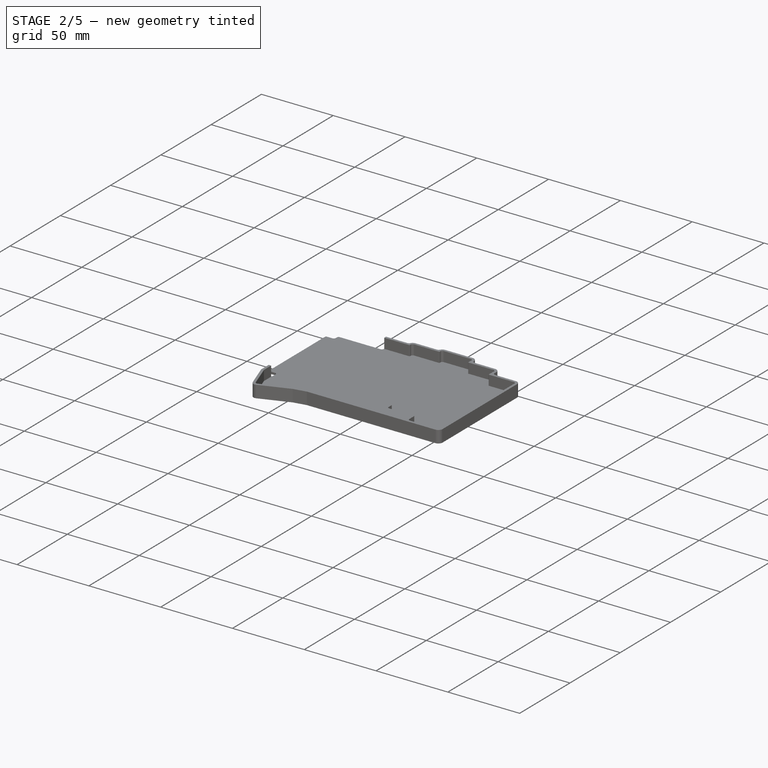
[diagram: stage 2 of 5 — iso view after this stage's code; geometry added in this stage tinted green]
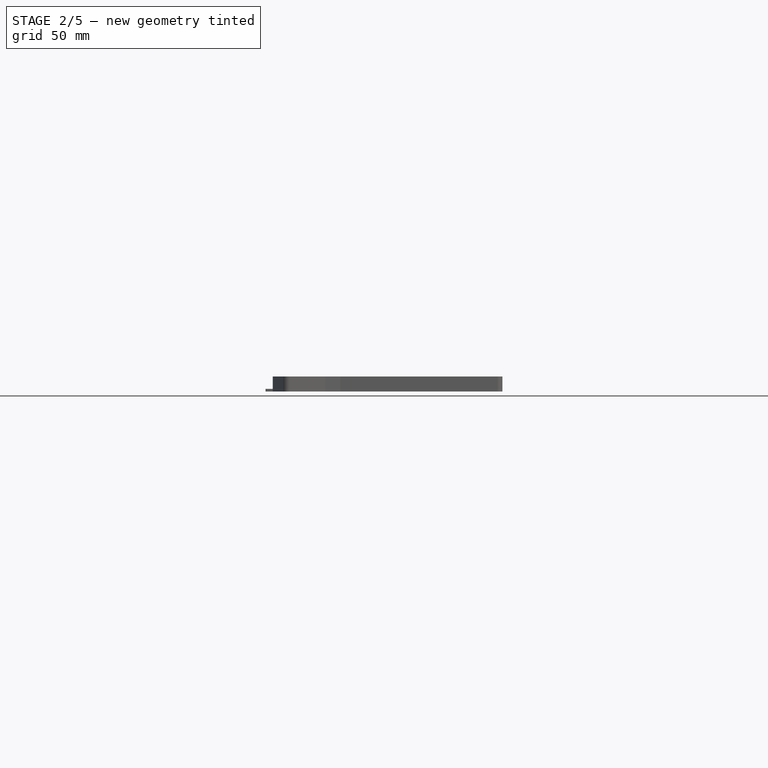
[diagram: stage 2 of 5 — front view after this stage's code; geometry added in this stage tinted green]
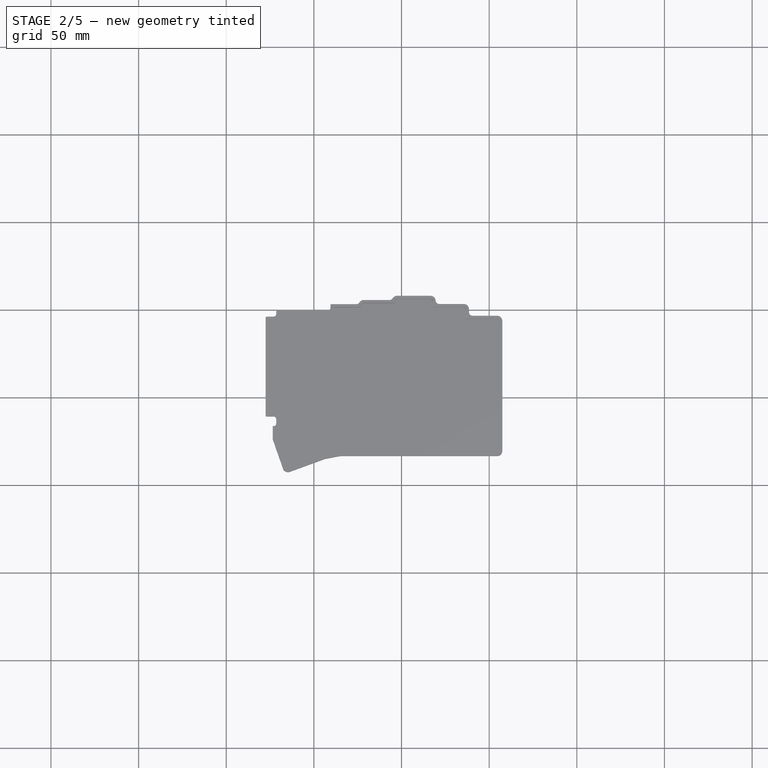
[diagram: stage 2 of 5 — top view after this stage's code; geometry added in this stage tinted green]
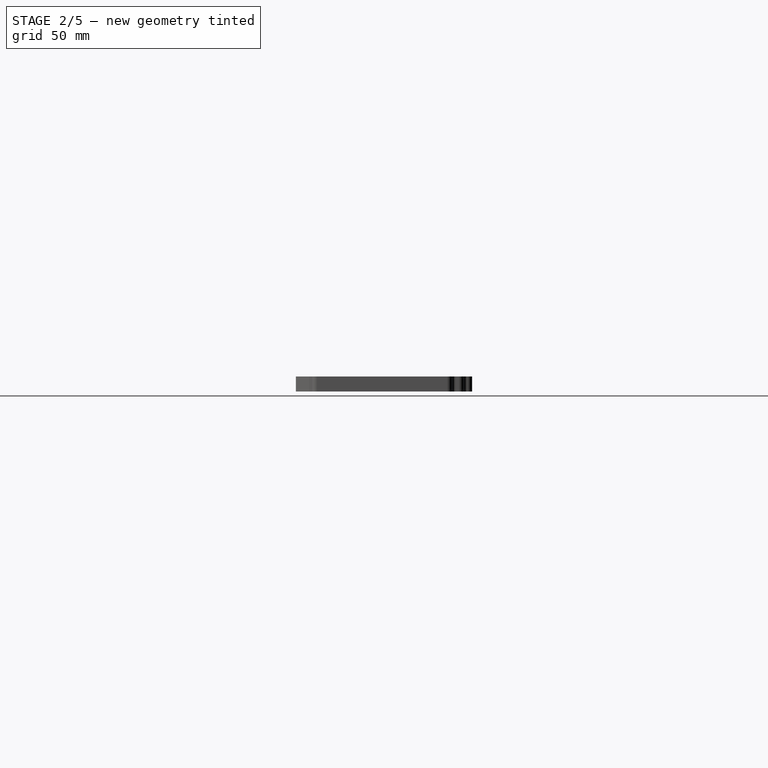
[diagram: stage 2 of 5 — right view after this stage's code; geometry added in this stage tinted green]
FEATURE [Sketcher::SketchObject] Sketch023
  ArcFitTolerance = 1e-06
  AttachmentOffset = pos=(0,0,-5.1) rot=(0,0,1;0rad)
  AttachmentSupport = -> [XY_Plane005]
  FullyConstrained = false
  MakeInternals = false
  MapMode = 5
  Placement = pos=(0,0,-5.1) rot=(0,0,1;0rad)
  expr: .AttachmentOffset.Base.z = Spreadsheet.case_z2
  expr: Constraints[194] = 20.11 + Spreadsheet.case_w_offset
  expr: Constraints[73] = 19 + Spreadsheet.case_w_offset
  expr: Constraints[79] = 81.605 + Spreadsheet.case_h_offset
  expr: Constraints[84] = 89.54 + Spreadsheet.case_w_offset
  expr: Constraints[85] = 73.3 + Spreadsheet.case_h_offset
  sketch-geometry (86):
    g0: ArcOfCircle [constr] CenterX=104.492 CenterY=-80.2968 CenterZ=0 NormalX=0 NormalY=0 NormalZ=1 AngleXU=-1.5708 Radius=1.30823 StartAngle=5.5832e-05 EndAngle=1.5708
    g1: LineSegment [constr] StartX=105.8 StartY=-80.2968 StartZ=0 EndX=105.8 EndY=-6.3 EndZ=0
    g2: ArcOfCircle [constr] CenterX=104.5 CenterY=-6.3 CenterZ=0 NormalX=0 NormalY=0 NormalZ=1 AngleXU=-7.47076e-07 Radius=1.3 StartAngle=7.57038e-07 EndAngle=1.5708
    g3: LineSegment [constr] StartX=104.5 StartY=-5 StartZ=0 EndX=86.8 EndY=-5 EndZ=0
    g4: LineSegment StartX=86.8 StartY=-4.7 StartZ=0 EndX=86.8 EndY=0.2 EndZ=0
    g5: ArcOfCircle CenterX=85.3 CenterY=0.2 CenterZ=0 NormalX=0 NormalY=0 NormalZ=1 AngleXU=-7.47076e-07 Radius=1.5 StartAngle=7.47076e-07 EndAngle=1.5708
    g6: LineSegment StartX=85.3 StartY=1.7 StartZ=0 EndX=68.1 EndY=1.7 EndZ=0
    g7: LineSegment StartX=67.8 StartY=2 StartZ=0 EndX=67.8 EndY=4.9 EndZ=0
    g8: ArcOfCircle CenterX=66.3 CenterY=4.9 CenterZ=0 NormalX=0 NormalY=0 NormalZ=1 AngleXU=-7.47076e-07 Radius=1.5 StartAngle=7.47076e-07 EndAngle=1.5708
    g9: LineSegment StartX=66.3 StartY=6.4 StartZ=0 EndX=47.7 EndY=6.4 EndZ=0
    g10: ArcOfCircle CenterX=47.7 CenterY=4.9 CenterZ=0 NormalX=0 NormalY=0 NormalZ=1 AngleXU=1.5708 Radius=1.5 StartAngle=7.47076e-07 EndAngle=1.5708
    g11: LineSegment StartX=46.2 StartY=4.9 StartZ=0 EndX=46.2 EndY=4.3 EndZ=0
    g12: LineSegment StartX=45.9 StartY=4 StartZ=0 EndX=28.7 EndY=4 EndZ=0
    g13: ArcOfCircle CenterX=28.7 CenterY=2.5 CenterZ=0 NormalX=0 NormalY=0 NormalZ=1 AngleXU=1.5708 Radius=1.5 StartAngle=7.47076e-07 EndAngle=1.5708
    g14: LineSegment StartX=27.2 StartY=2.5 StartZ=0 EndX=27.2 EndY=1.9 EndZ=0
    g15: ArcOfCircle CenterX=9.4 CenterY=1.3 CenterZ=0 NormalX=0 NormalY=0 NormalZ=-1 AngleXU=-1.5708 Radius=0.3 StartAngle=1.5708 EndAngle=3.14159
    g16: LineSegment StartX=9.1 StartY=1.3 StartZ=0 EndX=9.1 EndY=0.3 EndZ=0
    g17: LineSegment StartX=9.1 StartY=0.3 StartZ=0 EndX=-20.5 EndY=0.3 EndZ=0
    g18: ArcOfCircle CenterX=-20.5 CenterY=-1 CenterZ=0 NormalX=0 NormalY=0 NormalZ=1 AngleXU=1.5708 Radius=1.3 StartAngle=7.47076e-07 EndAngle=1.5708
    g19: LineSegment StartX=-21.8 StartY=-1 StartZ=0 EndX=-21.8 EndY=-3.4 EndZ=0
    g20: LineSegment StartX=-21.8 StartY=-3.4 StartZ=0 EndX=-27 EndY=-3.4 EndZ=0
    g21: ArcOfCircle CenterX=-27 CenterY=-4.2 CenterZ=0 NormalX=0 NormalY=0 NormalZ=1 AngleXU=1.5708 Radius=0.8 StartAngle=-7.1e-15 EndAngle=1.57079
    g22: LineSegment StartX=-27.8 StartY=-4.2 StartZ=0 EndX=-27.8 EndY=-60.2 EndZ=0
    g23: ArcOfCircle CenterX=-27 CenterY=-60.2 CenterZ=0 NormalX=0 NormalY=0 NormalZ=1 AngleXU=-3.14159 Radius=0.8 StartAngle=4.9e-15 EndAngle=1.57079
    g24: LineSegment StartX=-27 StartY=-61 StartZ=0 EndX=-21.8 EndY=-61 EndZ=0
    g25: LineSegment StartX=-21.8 StartY=-61 StartZ=0 EndX=-21.8 EndY=-73.3 EndZ=0
    g26: ArcOfCircle CenterX=-21.5 CenterY=-73.3 CenterZ=0 NormalX=0 NormalY=0 NormalZ=-1 AngleXU=-1.90882 Radius=0.3 StartAngle=1.57075 EndAngle=1.90882
    g27: LineSegment StartX=-21.783 StartY=-73.3995 StartZ=0 EndX=-16.053 EndY=-89.698 EndZ=0
    g28: LineSegment StartX=105.8 StartY=-80.105 StartZ=0 EndX=105.8 EndY=-6.5 EndZ=0
    g29: LineSegment StartX=87.1 StartY=-5 StartZ=0 EndX=104.3 EndY=-5 EndZ=0
    g30: ArcOfCircle CenterX=104.3 CenterY=-80.105 CenterZ=0 NormalX=0 NormalY=0 NormalZ=1 AngleXU=0 Radius=1.5 StartAngle=4.71239 EndAngle=6.28319
    g31: GeomPoint [constr] X=105.8 Y=-81.61 Z=0
    g32: ArcOfCircle CenterX=104.3 CenterY=-6.5 CenterZ=0 NormalX=0 NormalY=0 NormalZ=1 AngleXU=0 Radius=1.5 StartAngle=2.2e-15 EndAngle=1.5708
    g33: GeomPoint [constr] X=105.8 Y=-5 Z=0
    g34: ArcOfCircle CenterX=45.9 CenterY=4.3 CenterZ=0 NormalX=0 NormalY=0 NormalZ=1 AngleXU=0 Radius=0.3 StartAngle=4.71239 EndAngle=6.28319
    g35: GeomPoint [constr] X=46.2 Y=4 Z=0
    g36: ArcOfCircle CenterX=68.1 CenterY=2 CenterZ=0 NormalX=0 NormalY=0 NormalZ=1 AngleXU=0 Radius=0.3 StartAngle=3.14159 EndAngle=4.71239
    g37: GeomPoint [constr] X=67.8 Y=1.7 Z=0
    g38: ArcOfCircle CenterX=87.1 CenterY=-4.7 CenterZ=0 NormalX=0 NormalY=0 NormalZ=1 AngleXU=0 Radius=0.3 StartAngle=3.14159 EndAngle=4.71239
    g39: GeomPoint [constr] X=86.8 Y=-5 Z=0
    g40: ArcOfCircle CenterX=26.9 CenterY=1.9 CenterZ=0 NormalX=0 NormalY=0 NormalZ=1 AngleXU=0 Radius=0.3 StartAngle=4.71239 EndAngle=6.28319
    g41: GeomPoint [constr] X=27.2 Y=1.6 Z=0
    g42: LineSegment [constr] StartX=104.3 StartY=-81.605 StartZ=0 EndX=14.76 EndY=-81.605 EndZ=0
    g43: LineSegment StartX=4.2474 StartY=-83.8892 StartZ=0 EndX=5.83699 EndY=-83.2862 EndZ=0
    g44: LineSegment StartX=5.83699 StartY=-83.2862 StartZ=0 EndX=14.76 EndY=-81.605 EndZ=0
    g45: LineSegment StartX=4.2474 StartY=-83.8892 StartZ=0 EndX=-14.1226 EndY=-90.6092 EndZ=0
    g46: ArcOfCircle CenterX=-14.6379 CenterY=-89.2004 CenterZ=0 NormalX=0 NormalY=0 NormalZ=1 AngleXU=0 Radius=1.5 StartAngle=3.47966 EndAngle=5.06308
    g47: LineSegment StartX=9.4 StartY=1.6 StartZ=0 EndX=26.9 EndY=1.6 EndZ=0
    g48: ArcOfCircle [constr] CenterX=85.5 CenterY=-80.3 CenterZ=0 NormalX=0 NormalY=0 NormalZ=1 AngleXU=3.14159 Radius=0.999999 StartAngle=0 EndAngle=1.5708
    g49: LineSegment [constr] StartX=84.5 StartY=-74.65 StartZ=0 EndX=84.5 EndY=-80.3 EndZ=0
    g50: LineSegment [constr] StartX=78.9 StartY=-74.65 StartZ=0 EndX=84.5 EndY=-74.65 EndZ=0
    g51: LineSegment [constr] StartX=76.5 StartY=-74.65 StartZ=0 EndX=78.9 EndY=-74.65 EndZ=0
    g52: LineSegment [constr] StartX=45.75 StartY=-69.9 StartZ=0 EndX=51.4 EndY=-69.9 EndZ=0
    g53: LineSegment [constr] StartX=45.75 StartY=-78.4 StartZ=0 EndX=45.75 EndY=-69.9 EndZ=0
    g54: ArcOfCircle [constr] CenterX=44.75 CenterY=-78.4 CenterZ=0 NormalX=0 NormalY=0 NormalZ=1 AngleXU=-1.5708 Radius=0.999999 StartAngle=0 EndAngle=1.5708
    g55: LineSegment [constr] StartX=28.25 StartY=-79.4 StartZ=0 EndX=44.75 EndY=-79.4 EndZ=0
    g56: LineSegment [constr] StartX=25.6 StartY=-79.4 StartZ=0 EndX=28.25 EndY=-79.4 EndZ=0
    g57: LineSegment [constr] StartX=24.75 StartY=-79.4 StartZ=0 EndX=25.6 EndY=-79.4 EndZ=0
    g58: LineSegment [constr] StartX=5.8 StartY=-83 StartZ=0 EndX=24.75 EndY=-79.4 EndZ=0
    g59: ArcOfCircle [constr] CenterX=66.5 CenterY=-73.65 CenterZ=0 NormalX=0 NormalY=0 NormalZ=1 AngleXU=3.14159 Radius=0.999999 StartAngle=0 EndAngle=1.5708
    g60: LineSegment [constr] StartX=65.5 StartY=-69.9 StartZ=0 EndX=65.5 EndY=-73.65 EndZ=0
    g61: LineSegment [constr] StartX=52.9 StartY=-69.9 StartZ=0 EndX=65.5 EndY=-69.9 EndZ=0
    g62: LineSegment [constr] StartX=66.5 StartY=-74.65 StartZ=0 EndX=75 EndY=-74.65 EndZ=0
    g63: LineSegment [constr] StartX=-18.1 StartY=-63.7 StartZ=0 EndX=-19.6 EndY=-63.7 EndZ=0
    g64: LineSegment [constr] StartX=-18.1 StartY=-56.9 StartZ=0 EndX=-18.1 EndY=-63.7 EndZ=0
    g65: LineSegment [constr] StartX=-19.6 StartY=-56.9 StartZ=0 EndX=-18.1 EndY=-56.9 EndZ=0
    g66: LineSegment [constr] StartX=-19.6 StartY=-63.7 StartZ=0 EndX=-19.6 EndY=-56.9 EndZ=0
    g67: LineSegment [constr] StartX=51.4 StartY=-69.9 StartZ=0 EndX=52.9 EndY=-69.9 EndZ=0
    g68: LineSegment [constr] StartX=75 StartY=-74.65 StartZ=0 EndX=76.5 EndY=-74.65 EndZ=0
    g69: ArcOfCircle CenterX=85.69 CenterY=-80.105 CenterZ=0 NormalX=0 NormalY=0 NormalZ=1 AngleXU=3.14159 Radius=1.5 StartAngle=7.47076e-07 EndAngle=1.5708
    g70: LineSegment StartX=84.19 StartY=-75.255 StartZ=0 EndX=84.19 EndY=-80.105 EndZ=0
    g71: LineSegment StartX=66.69 StartY=-74.955 StartZ=0 EndX=83.89 EndY=-74.955 EndZ=0
    g72: ArcOfCircle CenterX=66.69 CenterY=-73.455 CenterZ=0 NormalX=0 NormalY=0 NormalZ=1 AngleXU=3.14159 Radius=1.5 StartAngle=7.47076e-07 EndAngle=1.5708
    g73: LineSegment StartX=65.19 StartY=-70.505 StartZ=0 EndX=65.19 EndY=-73.455 EndZ=0
    g74: LineSegment StartX=46.35 StartY=-70.205 StartZ=0 EndX=64.89 EndY=-70.205 EndZ=0
    g75: LineSegment StartX=46.05 StartY=-78.205 StartZ=0 EndX=46.05 EndY=-70.505 EndZ=0
    g76: ArcOfCircle CenterX=44.55 CenterY=-78.205 CenterZ=0 NormalX=0 NormalY=0 NormalZ=1 AngleXU=-1.5708 Radius=1.5 StartAngle=7.47076e-07 EndAngle=1.5708
    g77: LineSegment StartX=24.7486 StartY=-79.705 StartZ=0 EndX=44.55 EndY=-79.705 EndZ=0
    g78: LineSegment StartX=14.76 StartY=-81.605 StartZ=0 EndX=24.7486 EndY=-79.705 EndZ=0
    g79: LineSegment StartX=85.69 StartY=-81.605 StartZ=0 EndX=104.3 EndY=-81.605 EndZ=0
    g80: ArcOfCircle CenterX=83.89 CenterY=-75.255 CenterZ=0 NormalX=0 NormalY=0 NormalZ=1 AngleXU=0 Radius=0.3 StartAngle=-1.42e-14 EndAngle=1.5708
    g81: GeomPoint [constr] X=84.19 Y=-74.955 Z=0
    g82: ArcOfCircle CenterX=64.89 CenterY=-70.505 CenterZ=0 NormalX=0 NormalY=0 NormalZ=1 AngleXU=0 Radius=0.3 StartAngle=6.3e-15 EndAngle=1.5708
    g83: GeomPoint [constr] X=65.19 Y=-70.205 Z=0
    g84: ArcOfCircle CenterX=46.35 CenterY=-70.505 CenterZ=0 NormalX=0 NormalY=0 NormalZ=1 AngleXU=0 Radius=0.3 StartAngle=1.5708 EndAngle=3.14159
    g85: GeomPoint [constr] X=46.05 Y=-70.205 Z=0
  constraints (196):
    c: Tangent(g0,g1) = -1.5708
    c: Tangent(g2,g3) = -1.5708
    c: Coincident(g3,g39)
    c: Tangent(g4,g5) = -1.5708
    c: Tangent(g5,g6) = -1.5708
    c: Tangent(g7,g8) = -1.5708
    c: Tangent(g8,g9) = -1.5708
    c: Tangent(g9,g10) = -1.5708
    c: Tangent(g10,g11) = -1.5708
    c: Tangent(g15,g16) = -1.5708
    c: Coincident(g16,g17)
    c: Tangent(g18,g19) = -1.5708
    c: Coincident(g19,g20)
    c: Coincident(g24,g25)
    c: Tangent(g25,g26) = -1.5708
    c: Tangent(g26,g27) = -1.5708
    c: Coincident(g22,g23)
    c: Coincident(g21,g22)
    c: Coincident(g23,g24)
    c: Coincident(g20,g21)
    c: Vertical(g28)
    c: Horizontal(g29)
    c: Block(g2)
    c: PointOnObject(g31,g28)
    c: Tangent(g28,g30) = -1.5708
    c: PointOnObject(g33,g29)
    c: PointOnObject(g33,g28)
    c: Tangent(g29,g32) = 1.5708
    c: Tangent(g28,g32) = -1.5708
    c: Radius(g32) = 1.5
    c: Radius(g30) = 1.5
    c: Block(g0)
    c: Radius(g5) = 1.5
    c: Radius(g8) = 1.5
    c: Radius(g10) = 1.5
    c: Radius(g13) = 1.5
    c: Radius(g15) = 0.3
    c: DistanceX(g-1,g4) = 86.8
    c: DistanceY(g-1,g37) = 1.7
    c: Horizontal(g6)
    c: DistanceY(g-1,g8) = 6.4
    c: Horizontal(g9)
    c: Vertical(g7)
    c: Vertical(g11)
    c: DistanceY(g-1,g12) = 4
    c: Vertical(g14)
    c: Horizontal(g12)
    c: Tangent(g12,g13) = -1.5708
    c: Tangent(g13,g14) = -1.5708
    c: PointOnObject(g35,g11)
    c: PointOnObject(g35,g12)
    c: Tangent(g11,g34) = 1.5708
    c: Tangent(g12,g34) = 1.5708
    c: Radius(g34) = 0.3
    c: PointOnObject(g37,g6)
    c: PointOnObject(g37,g7)
    c: Tangent(g6,g36) = 1.5708
    c: Tangent(g7,g36) = 1.5708
    c: PointOnObject(g39,g29)
    c: PointOnObject(g39,g4)
    c: Tangent(g29,g38) = -1.5708
    c: Tangent(g4,g38) = 1.5708
    c: PointOnObject(g41,g14)
    c: Tangent(g14,g40) = 1.5708
    c: Radius(g40) = 0.3
    c: Radius(g36) = 0.3
    c: Radius(g38) = 0.3
    c: Radius(g26) = 0.3
    c: DistanceX(g25,g-1) = 21.8
    c: Angle(g27,g25) = 2.80352
    c: Vertical(g25)
    c: DistanceY(g18,g-1) = 1
    c: Vertical(g4)
    c: Distance(g33,g4) = 19
    c: Coincident(g44,g43)
    c: Coincident(g44,g42)
    c: Tangent(g42,g30) = 1.5708
    c: Horizontal(g42)
    c: Distance(g44,g44) = 9.08
    c: DistanceY(g30,g-1) = 81.605
    c: Coincident(g45,g43)
    c: Radius(g46) = 1.5
    c: Tangent(g46,g45) = 1.5708
    c: Tangent(g46,g27) = -1.5708
    c: DistanceX(g42,g42) = 89.54
    c: DistanceY(g25,g-1) = 73.3
    c: Horizontal(g24)
    c: Horizontal(g20)
    c: DistanceX(g19,g-1) = 21.8
    c: DistanceY(g19,g-1) = 3.4
    c: DistanceY(g24,g-1) = 61
    c: DistanceX(g23,g-1) = 27
    c: DistanceX(g-1,g7) = 67.8
    c: DistanceX(g-1,g11) = 46.2
    c: DistanceX(g-1,g13) = 27.2
    c: Vertical(g16)
    c: DistanceX(g-1,g16) = 9.1
    c: DistanceY(g-1,g16) = 0.3
    c: Horizontal(g47)
    c: Coincident(g17,g18)
    c: Radius(g18) = 1.3
    c: DistanceX(g17,g17) = 29.6
    c: Horizontal(g17)
    c: DistanceY(g-1,g40) = 1.6
    c: Tangent(g40,g47) = -1.5708
    c: Tangent(g15,g47) = 1.5708
    c: Vertical(g22)
    c: DistanceY(g45,g45) = 6.72
    c: DistanceX(g45,g45) = 18.37
    c: DistanceX(g27,g27) = 5.73
    c: DistanceX(g21,g-1) = 27.8
    c: Radius(g23) = 0.8
    c: Radius(g21) = 0.8
    c: Coincident(g63,g66)
    c: Coincident(g65,g66)
    c: Coincident(g63,g64)
    c: Coincident(g64,g65)
    c: Coincident(g57,g58)
    c: Coincident(g56,g57)
    c: Coincident(g55,g56)
    c: Coincident(g54,g55)
    c: Coincident(g53,g54)
    c: Coincident(g52,g53)
    c: Coincident(g59,g60)
    c: Coincident(g60,g61)
    c: Coincident(g59,g62)
    c: Coincident(g50,g51)
    c: Coincident(g48,g49)
    c: Coincident(g49,g50)
    c: Block(g48)
    c: Block(g49)
    c: Block(g50)
    c: Block(g51)
    c: Block(g52)
    c: Block(g53)
    c: Block(g54)
    c: Block(g55)
    c: Block(g56)
    c: Block(g57)
    c: Block(g58)
    c: Block(g59)
    c: Block(g60)
    c: Block(g61)
    c: Block(g62)
    c: Block(g63)
    c: Block(g64)
    c: Block(g65)
    c: Block(g66)
    c: Coincident(g67,g52)
    c: Coincident(g67,g61)
    c: Horizontal(g67)
    c: Coincident(g68,g62)
    c: Coincident(g68,g51)
    c: Horizontal(g68)
    c: Tangent(g69,g70) = -1.5708
    c: Tangent(g72,g73) = -1.5708
    c: Tangent(g75,g76) = -1.5708
    c: Horizontal(g77)
    c: Tangent(g77,g76) = -1.5708
    c: Coincident(g78,g42)
    c: Coincident(g78,g77)
    c: Coincident(g79,g30)
    c: Horizontal(g79)
    c: Angle(g-1,g78) = 0.187972
    c: Radius(g69) = 1.5
    c: Vertical(g70)
    c: Vertical(g73)
    c: Horizontal(g74)
    c: Distance(g81,g74) = 4.75
    c: DistanceY(g76,g83) = 9.5
    c: Radius(g76) = 1.5
    c: Radius(g72) = 1.5
    c: Tangent(g71,g72) = -1.5708
    c: Tangent(g79,g69) = -1.5708
    c: Horizontal(g71)
    c: Vertical(g75)
    c: Distance(g83,g70) = 19
    c: Distance(g85,g73) = 19.14
    c: Angle(g-1,g44) = 0.186227
    c: PointOnObject(g81,g70)
    c: PointOnObject(g81,g71)
    c: Tangent(g70,g80) = 1.5708
    c: Tangent(g71,g80) = 1.5708
    c: Radius(g80) = 0.3
    c: PointOnObject(g83,g73)
    c: PointOnObject(g83,g74)
    c: Tangent(g73,g82) = 1.5708
    c: Tangent(g74,g82) = 1.5708
    c: Radius(g82) = 0.3
    c: PointOnObject(g85,g75)
    c: PointOnObject(g85,g74)
    c: Tangent(g75,g84) = 1.5708
    c: Tangent(g74,g84) = 1.5708
    c: Radius(g84) = 0.3
    c: Distance(g69,g28) = 20.11
    c: Distance(g71,g79) = 6.65
FEATURE [Sketcher::SketchObject] Sketch024
  ArcFitTolerance = 1e-06
  AttachmentSupport = -> [XY_Plane005]
  FullyConstrained = true
  MakeInternals = false
  MapMode = 5
  expr: Constraints[162] = 102.7 + Spreadsheet.case_w_offset
  expr: Constraints[169] = 80 + Spreadsheet.case_h_offset
  expr: Constraints[172] = 38 + Spreadsheet.case_h_offset
  sketch-geometry (85):
    g0: ArcOfCircle [constr] CenterX=47.5 CenterY=5.1 CenterZ=0 NormalX=0 NormalY=0 NormalZ=1 AngleXU=1.5708 Radius=0.999999 StartAngle=0 EndAngle=1.5708
    g1: LineSegment [constr] StartX=66.5 StartY=6.1 StartZ=0 EndX=47.5 EndY=6.1 EndZ=0
    g2: LineSegment [constr] StartX=46.5 StartY=5.1 StartZ=0 EndX=46.5 EndY=3.7 EndZ=0
    g3: ArcOfCircle [constr] CenterX=66.5 CenterY=5.1 CenterZ=0 NormalX=0 NormalY=0 NormalZ=1 AngleXU=-7.47076e-07 Radius=0.999999 StartAngle=0 EndAngle=1.5708
    g4: LineSegment [constr] StartX=67.5 StartY=1.4 StartZ=0 EndX=67.5 EndY=5.1 EndZ=0
    g5: LineSegment [constr] StartX=85.5 StartY=1.4 StartZ=0 EndX=67.5 EndY=1.4 EndZ=0
    g6: ArcOfCircle [constr] CenterX=85.5 CenterY=0.400001 CenterZ=0 NormalX=0 NormalY=0 NormalZ=1 AngleXU=-7.47076e-07 Radius=0.999999 StartAngle=0 EndAngle=1.5708
    g7: LineSegment [constr] StartX=86.5 StartY=-5.3 StartZ=0 EndX=86.5 EndY=0.4 EndZ=0
    g8: LineSegment [constr] StartX=104.5 StartY=-5.3 StartZ=0 EndX=86.5 EndY=-5.3 EndZ=0
    g9: ArcOfCircle [constr] CenterX=104.5 CenterY=-6.3 CenterZ=0 NormalX=0 NormalY=0 NormalZ=1 AngleXU=-7.47076e-07 Radius=0.999999 StartAngle=0 EndAngle=1.5708
    g10: LineSegment [constr] StartX=105.5 StartY=-80.3 StartZ=0 EndX=105.5 EndY=-6.3 EndZ=0
    g11: ArcOfCircle [constr] CenterX=104.5 CenterY=-80.3 CenterZ=0 NormalX=0 NormalY=0 NormalZ=1 AngleXU=-1.5708 Radius=0.999999 StartAngle=0 EndAngle=1.5708
    g12: LineSegment [constr] StartX=85.5 StartY=-81.3 StartZ=0 EndX=104.5 EndY=-81.3 EndZ=0
    g13: ArcOfCircle [constr] CenterX=85.5 CenterY=-80.3 CenterZ=0 NormalX=0 NormalY=0 NormalZ=1 AngleXU=3.14159 Radius=0.999999 StartAngle=0 EndAngle=1.5708
    g14: LineSegment [constr] StartX=84.5 StartY=-74.65 StartZ=0 EndX=84.5 EndY=-80.3 EndZ=0
    g15: LineSegment [constr] StartX=78.9 StartY=-74.65 StartZ=0 EndX=84.5 EndY=-74.65 EndZ=0
    g16: LineSegment [constr] StartX=76.5 StartY=-74.65 StartZ=0 EndX=78.9 EndY=-74.65 EndZ=0
    g17: LineSegment [constr] StartX=76.5 StartY=-77.1 StartZ=0 EndX=76.5 EndY=-74.65 EndZ=0
    g18: LineSegment [constr] StartX=82.5 StartY=-77.1 StartZ=0 EndX=76.5 EndY=-77.1 EndZ=0
    g19: LineSegment [constr] StartX=82.5 StartY=-80.3 StartZ=0 EndX=82.5 EndY=-77.1 EndZ=0
    g20: ArcOfCircle [constr] CenterX=81.5 CenterY=-80.3 CenterZ=0 NormalX=0 NormalY=0 NormalZ=1 AngleXU=-1.5708 Radius=0.999999 StartAngle=0 EndAngle=1.5708
    g21: LineSegment [constr] StartX=49 StartY=-81.3 StartZ=0 EndX=81.5 EndY=-81.3 EndZ=0
    g22: ArcOfCircle [constr] CenterX=49 CenterY=-80.3 CenterZ=0 NormalX=0 NormalY=0 NormalZ=1 AngleXU=3.14159 Radius=0.999999 StartAngle=0 EndAngle=1.5708
    g23: LineSegment [constr] StartX=48 StartY=-79.3 StartZ=0 EndX=48 EndY=-80.3 EndZ=0
    g24: LineSegment [constr] StartX=48 StartY=-72.2 StartZ=0 EndX=48 EndY=-79.3 EndZ=0
    g25: LineSegment [constr] StartX=51.4 StartY=-72.2 StartZ=0 EndX=48 EndY=-72.2 EndZ=0
    g26: LineSegment [constr] StartX=51.4 StartY=-69.9 StartZ=0 EndX=51.4 EndY=-72.2 EndZ=0
    g27: LineSegment [constr] StartX=45.75 StartY=-69.9 StartZ=0 EndX=51.4 EndY=-69.9 EndZ=0
    g28: LineSegment [constr] StartX=45.75 StartY=-78.4 StartZ=0 EndX=45.75 EndY=-69.9 EndZ=0
    g29: ArcOfCircle [constr] CenterX=44.75 CenterY=-78.4 CenterZ=0 NormalX=0 NormalY=0 NormalZ=1 AngleXU=-1.5708 Radius=0.999999 StartAngle=0 EndAngle=1.5708
    g30: LineSegment [constr] StartX=28.25 StartY=-79.4 StartZ=0 EndX=44.75 EndY=-79.4 EndZ=0
    g31: LineSegment [constr] StartX=25.6 StartY=-79.4 StartZ=0 EndX=28.25 EndY=-79.4 EndZ=0
    g32: LineSegment [constr] StartX=24.75 StartY=-79.4 StartZ=0 EndX=25.6 EndY=-79.4 EndZ=0
    g33: LineSegment [constr] StartX=5.8 StartY=-83 StartZ=0 EndX=24.75 EndY=-79.4 EndZ=0
    g34: LineSegment [constr] StartX=4.2 StartY=-83.6 StartZ=0 EndX=5.8 EndY=-83 EndZ=0
    g35: LineSegment [constr] StartX=-14.4101 StartY=-90.406 StartZ=0 EndX=4.2 EndY=-83.6 EndZ=0
    g36: ArcOfCircle [constr] CenterX=-14.7567 CenterY=-89.4679 CenterZ=0 NormalX=0 NormalY=0 NormalZ=1 AngleXU=-2.80313 Radius=1.00005 StartAngle=0 EndAngle=1.58624
    g37: LineSegment [constr] StartX=-21.5 StartY=-73.3 StartZ=0 EndX=-15.7 EndY=-89.8 EndZ=0
    g38: LineSegment [constr] StartX=-21.5 StartY=-60.7 StartZ=0 EndX=-21.5 EndY=-73.3 EndZ=0
    g39: LineSegment [constr] StartX=-27 StartY=-60.7 StartZ=0 EndX=-21.5 EndY=-60.7 EndZ=0
    g40: ArcOfCircle [constr] CenterX=-27 CenterY=-60.2 CenterZ=0 NormalX=0 NormalY=0 NormalZ=1 AngleXU=-3.14159 Radius=0.500001 StartAngle=0 EndAngle=1.57079
    g41: LineSegment [constr] StartX=-27.5 StartY=-4.2 StartZ=0 EndX=-27.5 EndY=-60.2 EndZ=0
    g42: ArcOfCircle [constr] CenterX=-27 CenterY=-4.2 CenterZ=0 NormalX=0 NormalY=0 NormalZ=1 AngleXU=1.5708 Radius=0.500001 StartAngle=0 EndAngle=1.57079
    g43: LineSegment [constr] StartX=-21.5 StartY=-3.7 StartZ=0 EndX=-27 EndY=-3.7 EndZ=0
    g44: LineSegment [constr] StartX=-21.5 StartY=-1 StartZ=0 EndX=-21.5 EndY=-3.7 EndZ=0
    g45: ArcOfCircle [constr] CenterX=-20.5 CenterY=-0.999999 CenterZ=0 NormalX=0 NormalY=0 NormalZ=1 AngleXU=1.5708 Radius=0.999999 StartAngle=0 EndAngle=1.5708
    g46: LineSegment [constr] StartX=-19.6 StartY=0 StartZ=0 EndX=-20.5 EndY=-2.799e-13 EndZ=0
    g47: LineSegment [constr] StartX=-19.6 StartY=-7.4 StartZ=0 EndX=-19.6 EndY=0 EndZ=0
    g48: LineSegment [constr] StartX=-18.1 StartY=-7.4 StartZ=0 EndX=-19.6 EndY=-7.4 EndZ=0
    g49: LineSegment [constr] StartX=-18.1 StartY=0 StartZ=0 EndX=-18.1 EndY=-7.4 EndZ=0
    g50: LineSegment [constr] StartX=-9 StartY=0 StartZ=0 EndX=-18.1 EndY=0 EndZ=0
    g51: LineSegment [constr] StartX=-5 StartY=0 StartZ=0 EndX=-9 EndY=0 EndZ=0
    g52: LineSegment [constr] StartX=-5 StartY=-4 StartZ=0 EndX=-5 EndY=0 EndZ=0
    g53: LineSegment [constr] StartX=5 StartY=-4 StartZ=0 EndX=-5 EndY=-4 EndZ=0
    g54: LineSegment [constr] StartX=5 StartY=0 StartZ=0 EndX=5 EndY=-4 EndZ=0
    g55: LineSegment [constr] StartX=9.4 StartY=0 StartZ=0 EndX=5 EndY=0 EndZ=0
    g56: LineSegment [constr] StartX=9.4 StartY=1.3 StartZ=0 EndX=9.4 EndY=0 EndZ=0
    g57: LineSegment [constr] StartX=27.5 StartY=1.3 StartZ=0 EndX=9.4 EndY=1.3 EndZ=0
    g58: LineSegment [constr] StartX=27.5 StartY=2.7 StartZ=0 EndX=27.5 EndY=1.3 EndZ=0
    g59: ArcOfCircle [constr] CenterX=28.5 CenterY=2.7 CenterZ=0 NormalX=0 NormalY=0 NormalZ=1 AngleXU=1.5708 Radius=0.999999 StartAngle=0 EndAngle=1.5708
    g60: LineSegment [constr] StartX=46.5 StartY=3.7 StartZ=0 EndX=28.5 EndY=3.7 EndZ=0
    g61: ArcOfCircle [constr] CenterX=66.5 CenterY=-73.65 CenterZ=0 NormalX=0 NormalY=0 NormalZ=1 AngleXU=3.14159 Radius=0.999999 StartAngle=0 EndAngle=1.5708
    g62: LineSegment [constr] StartX=65.5 StartY=-69.9 StartZ=0 EndX=65.5 EndY=-73.65 EndZ=0
    g63: LineSegment [constr] StartX=52.9 StartY=-69.9 StartZ=0 EndX=65.5 EndY=-69.9 EndZ=0
    g64: LineSegment [constr] StartX=52.9 StartY=-72.2 StartZ=0 EndX=52.9 EndY=-69.9 EndZ=0
    g65: LineSegment [constr] StartX=63.2 StartY=-72.2 StartZ=0 EndX=52.9 EndY=-72.2 EndZ=0
    g66: LineSegment [constr] StartX=63.2 StartY=-76.1 StartZ=0 EndX=63.2 EndY=-72.2 EndZ=0
    g67: ArcOfCircle [constr] CenterX=64.2 CenterY=-76.1 CenterZ=0 NormalX=0 NormalY=0 NormalZ=1 AngleXU=-1.5708 Radius=0.999999 StartAngle=4.71239 EndAngle=6.28319
    g68: LineSegment [constr] StartX=66.5 StartY=-77.1 StartZ=0 EndX=64.2 EndY=-77.1 EndZ=0
    g69: LineSegment [constr] StartX=75 StartY=-77.1 StartZ=0 EndX=66.5 EndY=-77.1 EndZ=0
    g70: LineSegment [constr] StartX=75 StartY=-74.65 StartZ=0 EndX=75 EndY=-77.1 EndZ=0
    g71: LineSegment [constr] StartX=66.5 StartY=-74.65 StartZ=0 EndX=75 EndY=-74.65 EndZ=0
    g72: Circle CenterX=102.7 CenterY=-62.3 CenterZ=0 NormalX=0 NormalY=0 NormalZ=1 AngleXU=-1.5708 Radius=1.15
    g73: LineSegment [constr] StartX=72.5 StartY=-62 StartZ=0 EndX=27.2 EndY=-62 EndZ=0
    g74: LineSegment [constr] StartX=72.5 StartY=-59.6 StartZ=0 EndX=72.5 EndY=-62 EndZ=0
    g75: LineSegment [constr] StartX=27.2 StartY=-59.6 StartZ=0 EndX=72.5 EndY=-59.6 EndZ=0
    g76: LineSegment [constr] StartX=27.2 StartY=-62 StartZ=0 EndX=27.2 EndY=-59.6 EndZ=0
    g77: Circle CenterX=-16.2 CenterY=-80 CenterZ=0 NormalX=0 NormalY=0 NormalZ=1 AngleXU=-1.5708 Radius=1.15
    g78: LineSegment [constr] StartX=-18.1 StartY=-63.7 StartZ=0 EndX=-19.6 EndY=-63.7 EndZ=0
    g79: LineSegment [constr] StartX=-18.1 StartY=-56.9 StartZ=0 EndX=-18.1 EndY=-63.7 EndZ=0
    g80: LineSegment [constr] StartX=-19.6 StartY=-56.9 StartZ=0 EndX=-18.1 EndY=-56.9 EndZ=0
    g81: LineSegment [constr] StartX=-19.6 StartY=-63.7 StartZ=0 EndX=-19.6 EndY=-56.9 EndZ=0
    g82: Circle CenterX=102.7 CenterY=-24.3 CenterZ=0 NormalX=0 NormalY=0 NormalZ=1 AngleXU=-1.5708 Radius=1.15
    g83: Circle CenterX=28.5 CenterY=-16.3 CenterZ=0 NormalX=0 NormalY=0 NormalZ=1 AngleXU=-1.5708 Radius=1.15
    g84: LineSegment [constr] StartX=102.7 StartY=-24.3 StartZ=0 EndX=102.7 EndY=-62.3 EndZ=0
  constraints (174):
    c: Coincident(g40,g41)
    c: Coincident(g41,g42)
    c: Coincident(g39,g40)
    c: Coincident(g42,g43)
    c: Coincident(g37,g38)
    c: Coincident(g38,g39)
    c: Coincident(g43,g44)
    c: Coincident(g44,g45)
    c: Coincident(g45,g46)
    c: Coincident(g78,g81)
    c: Coincident(g80,g81)
    c: Coincident(g47,g48)
    c: Coincident(g46,g47)
    c: Coincident(g78,g79)
    c: Coincident(g79,g80)
    c: Coincident(g48,g49)
    c: Coincident(g49,g50)
    c: Coincident(g36,g37)
    c: Coincident(g35,g36)
    c: Coincident(g50,g51)
    c: Coincident(g52,g53)
    c: Coincident(g51,g52)
    c: Coincident(g34,g35)
    c: Coincident(g53,g54)
    c: Coincident(g54,g55)
    c: Coincident(g33,g34)
    c: Coincident(g55,g56)
    c: Coincident(g56,g57)
    c: Coincident(g32,g33)
    c: Coincident(g31,g32)
    c: Coincident(g73,g76)
    c: Coincident(g75,g76)
    c: Coincident(g57,g58)
    c: Coincident(g58,g59)
    c: Coincident(g30,g31)
    c: Coincident(g59,g60)
    c: Coincident(g29,g30)
    c: Coincident(g28,g29)
    c: Coincident(g27,g28)
    c: Coincident(g2,g60)
    c: Coincident(g0,g2)
    c: Coincident(g0,g1)
    c: Coincident(g22,g23)
    c: Coincident(g23,g24)
    c: Coincident(g24,g25)
    c: Coincident(g21,g22)
    c: Coincident(g25,g26)
    c: Coincident(g26,g27)
    c: Coincident(g64,g65)
    c: Coincident(g63,g64)
    c: Coincident(g66,g67)
    c: Coincident(g65,g66)
    c: Coincident(g67,g68)
    c: Coincident(g61,g62)
    c: Coincident(g62,g63)
    c: Coincident(g68,g69)
    c: Coincident(g61,g71)
    c: Coincident(g1,g3)
    c: Coincident(g4,g5)
    c: Coincident(g3,g4)
    c: Coincident(g73,g74)
    c: Coincident(g74,g75)
    c: Coincident(g69,g70)
    c: Coincident(g70,g71)
    c: Coincident(g17,g18)
    c: Coincident(g16,g17)
    c: Coincident(g15,g16)
    c: Coincident(g20,g21)
    c: Coincident(g19,g20)
    c: Coincident(g18,g19)
    c: Coincident(g13,g14)
    c: Coincident(g14,g15)
    c: Coincident(g12,g13)
    c: Coincident(g5,g6)
    c: Coincident(g7,g8)
    c: Coincident(g6,g7)
    c: Coincident(g11,g12)
    c: Coincident(g8,g9)
    c: Coincident(g10,g11)
    c: Coincident(g9,g10)
    c: Block(g0)
    c: Block(g1)
    c: Block(g2)
    c: Block(g3)
    c: Block(g4)
    c: Block(g5)
    c: Block(g6)
    c: Block(g7)
    c: Block(g8)
    c: Block(g9)
    c: Block(g10)
    c: Block(g11)
    c: Block(g12)
    c: Block(g13)
    c: Block(g14)
    c: Block(g15)
    c: Block(g16)
    c: Block(g17)
    c: Block(g18)
    c: Block(g19)
    c: Block(g20)
    c: Block(g21)
    c: Block(g22)
    c: Block(g23)
    c: Block(g24)
    c: Block(g25)
    c: Block(g26)
    c: Block(g27)
    c: Block(g28)
    c: Block(g29)
    c: Block(g30)
    c: Block(g31)
    c: Block(g32)
    c: Block(g33)
    c: Block(g34)
    c: Block(g35)
    c: Block(g36)
    c: Block(g37)
    c: Block(g38)
    c: Block(g39)
    c: Block(g40)
    c: Block(g41)
    c: Block(g42)
    c: Block(g43)
    c: Block(g44)
    c: Block(g45)
    c: Block(g46)
    c: Block(g47)
    c: Block(g48)
    c: Block(g49)
    c: Block(g50)
    c: Block(g51)
    c: Block(g52)
    c: Block(g53)
    c: Block(g54)
    c: Block(g55)
    c: Block(g56)
    c: Block(g57)
    c: Block(g58)
    c: Block(g59)
    c: Block(g60)
    c: Block(g61)
    c: Block(g62)
    c: Block(g63)
    c: Block(g64)
    c: Block(g65)
    c: Block(g66)
    c: Block(g67)
    c: Block(g68)
    c: Block(g69)
    c: Block(g70)
    c: Block(g71)
    c: Block(g73)
    c: Block(g74)
    c: Block(g75)
    c: Block(g76)
    c: Block(g78)
    c: Block(g79)
    c: Block(g80)
    c: Block(g81)
    c: Diameter(g82) = 2.3
    c: Diameter(g72) = 2.3
    c: DistanceX(g-1,g82) = 102.7
    c: Coincident(g84,g82)
    c: Coincident(g84,g72)
    c: Vertical(g84)
    c: DistanceY(g83,g-1) = 16.3
    c: DistanceX(g-1,g83) = 28.5
    c: Diameter(g83) = 2.3
    c: DistanceY(g77,g-1) = 80
    c: DistanceX(g77,g-1) = 16.2
    c: Diameter(g77) = 2.3
    c: DistanceY(g84,g84) = 38
    c: DistanceY(g82,g-1) = 24.3
FEATURE [Sketcher::SketchObject] Sketch025
  ArcFitTolerance = 1e-06
  AttachmentOffset = pos=(0,0,-6.6) rot=(0,0,1;0rad)
  AttachmentSupport = -> [XY_Plane005]
  FullyConstrained = false
  MakeInternals = false
  MapMode = 5
  Placement = pos=(0,0,-6.6) rot=(0,0,1;0rad)
  expr: .AttachmentOffset.Base.z = Spreadsheet.case_z1
  expr: Constraints[172] = 38 + Spreadsheet.case_h_offset
  expr: Constraints[173] = 102.7 + Spreadsheet.case_w_offset
  expr: Constraints[176] = 80 + Spreadsheet.case_h_offset
  sketch-geometry (89):
    g0: ArcOfCircle [constr] CenterX=47.5 CenterY=5.1 CenterZ=0 NormalX=0 NormalY=0 NormalZ=1 AngleXU=1.5708 Radius=0.999999 StartAngle=0 EndAngle=1.5708
    g1: LineSegment [constr] StartX=66.5 StartY=6.1 StartZ=0 EndX=47.5 EndY=6.1 EndZ=0
    g2: LineSegment [constr] StartX=46.5 StartY=5.1 StartZ=0 EndX=46.5 EndY=3.7 EndZ=0
    g3: ArcOfCircle [constr] CenterX=66.5 CenterY=5.1 CenterZ=0 NormalX=0 NormalY=0 NormalZ=1 AngleXU=-7.47076e-07 Radius=0.999999 StartAngle=0 EndAngle=1.5708
    g4: LineSegment [constr] StartX=67.5 StartY=1.4 StartZ=0 EndX=67.5 EndY=5.1 EndZ=0
    g5: LineSegment [constr] StartX=85.5 StartY=1.4 StartZ=0 EndX=67.5 EndY=1.4 EndZ=0
    g6: ArcOfCircle [constr] CenterX=85.5 CenterY=0.400001 CenterZ=0 NormalX=0 NormalY=0 NormalZ=1 AngleXU=-7.47076e-07 Radius=0.999999 StartAngle=0 EndAngle=1.5708
    g7: LineSegment [constr] StartX=86.5 StartY=-5.3 StartZ=0 EndX=86.5 EndY=0.4 EndZ=0
    g8: LineSegment [constr] StartX=104.5 StartY=-5.3 StartZ=0 EndX=86.5 EndY=-5.3 EndZ=0
    g9: ArcOfCircle [constr] CenterX=104.5 CenterY=-6.3 CenterZ=0 NormalX=0 NormalY=0 NormalZ=1 AngleXU=-7.47076e-07 Radius=0.999999 StartAngle=0 EndAngle=1.5708
    g10: LineSegment [constr] StartX=105.5 StartY=-80.3 StartZ=0 EndX=105.5 EndY=-6.3 EndZ=0
    g11: ArcOfCircle [constr] CenterX=104.5 CenterY=-80.3 CenterZ=0 NormalX=0 NormalY=0 NormalZ=1 AngleXU=-1.5708 Radius=0.999999 StartAngle=0 EndAngle=1.5708
    g12: LineSegment [constr] StartX=85.5 StartY=-81.3 StartZ=0 EndX=104.5 EndY=-81.3 EndZ=0
    g13: ArcOfCircle [constr] CenterX=85.5 CenterY=-80.3 CenterZ=0 NormalX=0 NormalY=0 NormalZ=1 AngleXU=3.14159 Radius=0.999999 StartAngle=0 EndAngle=1.5708
    g14: LineSegment [constr] StartX=84.5 StartY=-74.65 StartZ=0 EndX=84.5 EndY=-80.3 EndZ=0
    g15: LineSegment [constr] StartX=78.9 StartY=-74.65 StartZ=0 EndX=84.5 EndY=-74.65 EndZ=0
    g16: LineSegment [constr] StartX=76.5 StartY=-74.65 StartZ=0 EndX=78.9 EndY=-74.65 EndZ=0
    g17: LineSegment [constr] StartX=76.5 StartY=-77.1 StartZ=0 EndX=76.5 EndY=-74.65 EndZ=0
    g18: LineSegment [constr] StartX=82.5 StartY=-77.1 StartZ=0 EndX=76.5 EndY=-77.1 EndZ=0
    g19: LineSegment [constr] StartX=82.5 StartY=-80.3 StartZ=0 EndX=82.5 EndY=-77.1 EndZ=0
    g20: ArcOfCircle [constr] CenterX=81.5 CenterY=-80.3 CenterZ=0 NormalX=0 NormalY=0 NormalZ=1 AngleXU=-1.5708 Radius=0.999999 StartAngle=0 EndAngle=1.5708
    g21: LineSegment [constr] StartX=49 StartY=-81.3 StartZ=0 EndX=81.5 EndY=-81.3 EndZ=0
    g22: ArcOfCircle [constr] CenterX=49 CenterY=-80.3 CenterZ=0 NormalX=0 NormalY=0 NormalZ=1 AngleXU=3.14159 Radius=0.999999 StartAngle=0 EndAngle=1.5708
    g23: LineSegment [constr] StartX=48 StartY=-79.3 StartZ=0 EndX=48 EndY=-80.3 EndZ=0
    g24: LineSegment [constr] StartX=48 StartY=-72.2 StartZ=0 EndX=48 EndY=-79.3 EndZ=0
    g25: LineSegment [constr] StartX=51.4 StartY=-72.2 StartZ=0 EndX=48 EndY=-72.2 EndZ=0
    g26: LineSegment [constr] StartX=51.4 StartY=-69.9 StartZ=0 EndX=51.4 EndY=-72.2 EndZ=0
    g27: LineSegment [constr] StartX=45.75 StartY=-69.9 StartZ=0 EndX=51.4 EndY=-69.9 EndZ=0
    g28: LineSegment [constr] StartX=45.75 StartY=-78.4 StartZ=0 EndX=45.75 EndY=-69.9 EndZ=0
    g29: ArcOfCircle [constr] CenterX=44.75 CenterY=-78.4 CenterZ=0 NormalX=0 NormalY=0 NormalZ=1 AngleXU=-1.5708 Radius=0.999999 StartAngle=0 EndAngle=1.5708
    g30: LineSegment [constr] StartX=28.25 StartY=-79.4 StartZ=0 EndX=44.75 EndY=-79.4 EndZ=0
    g31: LineSegment [constr] StartX=25.6 StartY=-79.4 StartZ=0 EndX=28.25 EndY=-79.4 EndZ=0
    g32: LineSegment [constr] StartX=24.75 StartY=-79.4 StartZ=0 EndX=25.6 EndY=-79.4 EndZ=0
    g33: LineSegment [constr] StartX=5.8 StartY=-83 StartZ=0 EndX=24.75 EndY=-79.4 EndZ=0
    g34: LineSegment [constr] StartX=4.2 StartY=-83.6 StartZ=0 EndX=5.8 EndY=-83 EndZ=0
    g35: LineSegment [constr] StartX=-14.4101 StartY=-90.406 StartZ=0 EndX=4.2 EndY=-83.6 EndZ=0
    g36: ArcOfCircle [constr] CenterX=-14.7567 CenterY=-89.4679 CenterZ=0 NormalX=0 NormalY=0 NormalZ=1 AngleXU=-2.80313 Radius=1.00005 StartAngle=0 EndAngle=1.58624
    g37: LineSegment [constr] StartX=-21.5 StartY=-73.3 StartZ=0 EndX=-15.7 EndY=-89.8 EndZ=0
    g38: LineSegment [constr] StartX=-21.5 StartY=-60.7 StartZ=0 EndX=-21.5 EndY=-73.3 EndZ=0
    g39: LineSegment [constr] StartX=-27 StartY=-60.7 StartZ=0 EndX=-21.5 EndY=-60.7 EndZ=0
    g40: ArcOfCircle [constr] CenterX=-27 CenterY=-60.2 CenterZ=0 NormalX=0 NormalY=0 NormalZ=1 AngleXU=-3.14159 Radius=0.500001 StartAngle=0 EndAngle=1.57079
    g41: LineSegment [constr] StartX=-27.5 StartY=-4.2 StartZ=0 EndX=-27.5 EndY=-60.2 EndZ=0
    g42: ArcOfCircle [constr] CenterX=-27 CenterY=-4.2 CenterZ=0 NormalX=0 NormalY=0 NormalZ=1 AngleXU=1.5708 Radius=0.500001 StartAngle=0 EndAngle=1.57079
    g43: LineSegment [constr] StartX=-21.5 StartY=-3.7 StartZ=0 EndX=-27 EndY=-3.7 EndZ=0
    g44: LineSegment [constr] StartX=-21.5 StartY=-1 StartZ=0 EndX=-21.5 EndY=-3.7 EndZ=0
    g45: ArcOfCircle [constr] CenterX=-20.5 CenterY=-0.999999 CenterZ=0 NormalX=0 NormalY=0 NormalZ=1 AngleXU=1.5708 Radius=0.999999 StartAngle=0 EndAngle=1.5708
    g46: LineSegment [constr] StartX=-19.6 StartY=0 StartZ=0 EndX=-20.5 EndY=-2.799e-13 EndZ=0
    g47: LineSegment [constr] StartX=-19.6 StartY=-7.4 StartZ=0 EndX=-19.6 EndY=0 EndZ=0
    g48: LineSegment [constr] StartX=-18.1 StartY=-7.4 StartZ=0 EndX=-19.6 EndY=-7.4 EndZ=0
    g49: LineSegment [constr] StartX=-18.1 StartY=0 StartZ=0 EndX=-18.1 EndY=-7.4 EndZ=0
    g50: LineSegment [constr] StartX=-9 StartY=0 StartZ=0 EndX=-18.1 EndY=0 EndZ=0
    g51: LineSegment [constr] StartX=-5 StartY=0 StartZ=0 EndX=-9 EndY=0 EndZ=0
    g52: LineSegment [constr] StartX=-5 StartY=-4 StartZ=0 EndX=-5 EndY=0 EndZ=0
    g53: LineSegment [constr] StartX=5 StartY=-4 StartZ=0 EndX=-5 EndY=-4 EndZ=0
    g54: LineSegment [constr] StartX=5 StartY=0 StartZ=0 EndX=5 EndY=-4 EndZ=0
    g55: LineSegment [constr] StartX=9.4 StartY=0 StartZ=0 EndX=5 EndY=0 EndZ=0
    g56: LineSegment [constr] StartX=9.4 StartY=1.3 StartZ=0 EndX=9.4 EndY=0 EndZ=0
    g57: LineSegment [constr] StartX=27.5 StartY=1.3 StartZ=0 EndX=9.4 EndY=1.3 EndZ=0
    g58: LineSegment [constr] StartX=27.5 StartY=2.7 StartZ=0 EndX=27.5 EndY=1.3 EndZ=0
    g59: ArcOfCircle [constr] CenterX=28.5 CenterY=2.7 CenterZ=0 NormalX=0 NormalY=0 NormalZ=1 AngleXU=1.5708 Radius=0.999999 StartAngle=0 EndAngle=1.5708
    g60: LineSegment [constr] StartX=46.5 StartY=3.7 StartZ=0 EndX=28.5 EndY=3.7 EndZ=0
    g61: ArcOfCircle [constr] CenterX=66.5 CenterY=-73.65 CenterZ=0 NormalX=0 NormalY=0 NormalZ=1 AngleXU=3.14159 Radius=0.999999 StartAngle=0 EndAngle=1.5708
    g62: LineSegment [constr] StartX=65.5 StartY=-69.9 StartZ=0 EndX=65.5 EndY=-73.65 EndZ=0
    g63: LineSegment [constr] StartX=52.9 StartY=-69.9 StartZ=0 EndX=65.5 EndY=-69.9 EndZ=0
    g64: LineSegment [constr] StartX=52.9 StartY=-72.2 StartZ=0 EndX=52.9 EndY=-69.9 EndZ=0
    g65: LineSegment [constr] StartX=63.2 StartY=-72.2 StartZ=0 EndX=52.9 EndY=-72.2 EndZ=0
    g66: LineSegment [constr] StartX=63.2 StartY=-76.1 StartZ=0 EndX=63.2 EndY=-72.2 EndZ=0
    g67: ArcOfCircle [constr] CenterX=64.2 CenterY=-76.1 CenterZ=0 NormalX=0 NormalY=0 NormalZ=1 AngleXU=-1.5708 Radius=0.999999 StartAngle=4.71239 EndAngle=6.28319
    g68: LineSegment [constr] StartX=66.5 StartY=-77.1 StartZ=0 EndX=64.2 EndY=-77.1 EndZ=0
    g69: LineSegment [constr] StartX=75 StartY=-77.1 StartZ=0 EndX=66.5 EndY=-77.1 EndZ=0
    g70: LineSegment [constr] StartX=75 StartY=-74.65 StartZ=0 EndX=75 EndY=-77.1 EndZ=0
    g71: LineSegment [constr] StartX=66.5 StartY=-74.65 StartZ=0 EndX=75 EndY=-74.65 EndZ=0
    g72: Circle [constr] CenterX=102.7 CenterY=-62.3 CenterZ=0 NormalX=0 NormalY=0 NormalZ=1 AngleXU=-1.5708 Radius=1.1
    g73: LineSegment [constr] StartX=72.5 StartY=-62 StartZ=0 EndX=27.2 EndY=-62 EndZ=0
    g74: LineSegment [constr] StartX=72.5 StartY=-59.6 StartZ=0 EndX=72.5 EndY=-62 EndZ=0
    g75: LineSegment [constr] StartX=27.2 StartY=-59.6 StartZ=0 EndX=72.5 EndY=-59.6 EndZ=0
    g76: LineSegment [constr] StartX=27.2 StartY=-62 StartZ=0 EndX=27.2 EndY=-59.6 EndZ=0
    g77: Circle [constr] CenterX=-16.2 CenterY=-80 CenterZ=0 NormalX=0 NormalY=0 NormalZ=1 AngleXU=-1.5708 Radius=1.1
    g78: LineSegment [constr] StartX=-18.1 StartY=-63.7 StartZ=0 EndX=-19.6 EndY=-63.7 EndZ=0
    g79: LineSegment [constr] StartX=-18.1 StartY=-56.9 StartZ=0 EndX=-18.1 EndY=-63.7 EndZ=0
    g80: LineSegment [constr] StartX=-19.6 StartY=-56.9 StartZ=0 EndX=-18.1 EndY=-56.9 EndZ=0
    g81: LineSegment [constr] StartX=-19.6 StartY=-63.7 StartZ=0 EndX=-19.6 EndY=-56.9 EndZ=0
    g82: Circle [constr] CenterX=102.7 CenterY=-24.3 CenterZ=0 NormalX=0 NormalY=0 NormalZ=1 AngleXU=-1.5708 Radius=1.1
    g83: Circle [constr] CenterX=28.5 CenterY=-16.3 CenterZ=0 NormalX=0 NormalY=0 NormalZ=1 AngleXU=-1.5708 Radius=1.1
    g84: Circle CenterX=28.5 CenterY=-16.3 CenterZ=0 NormalX=0 NormalY=0 NormalZ=1 AngleXU=0 Radius=2.5
    g85: Circle CenterX=-16.2 CenterY=-80 CenterZ=0 NormalX=0 NormalY=0 NormalZ=1 AngleXU=0 Radius=2.5
    g86: Circle CenterX=102.7 CenterY=-62.3 CenterZ=0 NormalX=0 NormalY=0 NormalZ=1 AngleXU=0 Radius=2.5
    g87: Circle CenterX=102.7 CenterY=-24.3 CenterZ=0 NormalX=0 NormalY=0 NormalZ=1 AngleXU=0 Radius=2.5
    g88: LineSegment [constr] StartX=102.7 StartY=-24.3 StartZ=0 EndX=102.7 EndY=-62.3 EndZ=0
  constraints (177):
    c: Coincident(g40,g41)
    c: Coincident(g41,g42)
    c: Coincident(g39,g40)
    c: Coincident(g42,g43)
    c: Coincident(g37,g38)
    c: Coincident(g38,g39)
    c: Coincident(g43,g44)
    c: Coincident(g44,g45)
    c: Coincident(g45,g46)
    c: Coincident(g78,g81)
    c: Coincident(g80,g81)
    c: Coincident(g47,g48)
    c: Coincident(g46,g47)
    c: Coincident(g78,g79)
    c: Coincident(g79,g80)
    c: Coincident(g48,g49)
    c: Coincident(g49,g50)
    c: Coincident(g36,g37)
    c: Coincident(g35,g36)
    c: Coincident(g50,g51)
    c: Coincident(g52,g53)
    c: Coincident(g51,g52)
    c: Coincident(g34,g35)
    c: Coincident(g53,g54)
    c: Coincident(g54,g55)
    c: Coincident(g33,g34)
    c: Coincident(g55,g56)
    c: Coincident(g56,g57)
    c: Coincident(g32,g33)
    c: Coincident(g31,g32)
    c: Coincident(g73,g76)
    c: Coincident(g75,g76)
    c: Coincident(g57,g58)
    c: Coincident(g58,g59)
    c: Coincident(g30,g31)
    c: Coincident(g59,g60)
    c: Coincident(g29,g30)
    c: Coincident(g28,g29)
    c: Coincident(g27,g28)
    c: Coincident(g2,g60)
    c: Coincident(g0,g2)
    c: Coincident(g0,g1)
    c: Coincident(g22,g23)
    c: Coincident(g23,g24)
    c: Coincident(g24,g25)
    c: Coincident(g21,g22)
    c: Coincident(g25,g26)
    c: Coincident(g26,g27)
    c: Coincident(g64,g65)
    c: Coincident(g63,g64)
    c: Coincident(g66,g67)
    c: Coincident(g65,g66)
    c: Coincident(g67,g68)
    c: Coincident(g61,g62)
    c: Coincident(g62,g63)
    c: Coincident(g68,g69)
    c: Coincident(g61,g71)
    c: Coincident(g1,g3)
    c: Coincident(g4,g5)
    c: Coincident(g3,g4)
    c: Coincident(g73,g74)
    c: Coincident(g74,g75)
    c: Coincident(g69,g70)
    c: Coincident(g70,g71)
    c: Coincident(g17,g18)
    c: Coincident(g16,g17)
    c: Coincident(g15,g16)
    c: Coincident(g20,g21)
    c: Coincident(g19,g20)
    c: Coincident(g18,g19)
    c: Coincident(g13,g14)
    c: Coincident(g14,g15)
    c: Coincident(g12,g13)
    c: Coincident(g5,g6)
    c: Coincident(g7,g8)
    c: Coincident(g6,g7)
    c: Coincident(g11,g12)
    c: Coincident(g8,g9)
    c: Coincident(g10,g11)
    c: Coincident(g9,g10)
    c: Block(g0)
    c: Block(g1)
    c: Block(g2)
    c: Block(g3)
    c: Block(g4)
    c: Block(g5)
    c: Block(g6)
    c: Block(g7)
    c: Block(g8)
    c: Block(g9)
    c: Block(g10)
    c: Block(g11)
    c: Block(g12)
    c: Block(g13)
    c: Block(g14)
    c: Block(g15)
    c: Block(g16)
    c: Block(g17)
    c: Block(g18)
    c: Block(g19)
    c: Block(g20)
    c: Block(g21)
    c: Block(g22)
    c: Block(g23)
    c: Block(g24)
    c: Block(g25)
    c: Block(g26)
    c: Block(g27)
    c: Block(g28)
    c: Block(g29)
    c: Block(g30)
    c: Block(g31)
    c: Block(g32)
    c: Block(g33)
    c: Block(g34)
    c: Block(g35)
    c: Block(g36)
    c: Block(g37)
    c: Block(g38)
    c: Block(g39)
    c: Block(g40)
    c: Block(g41)
    c: Block(g42)
    c: Block(g43)
    c: Block(g44)
    c: Block(g45)
    c: Block(g46)
    c: Block(g47)
    c: Block(g48)
    c: Block(g49)
    c: Block(g50)
    c: Block(g51)
    c: Block(g52)
    c: Block(g53)
    c: Block(g54)
    c: Block(g55)
    c: Block(g56)
    c: Block(g57)
    c: Block(g58)
    c: Block(g59)
    c: Block(g60)
    c: Block(g61)
    c: Block(g62)
    c: Block(g63)
    c: Block(g64)
    c: Block(g65)
    c: Block(g66)
    c: Block(g67)
    c: Block(g68)
    c: Block(g69)
    c: Block(g70)
    c: Block(g71)
    c: Block(g73)
    c: Block(g74)
    c: Block(g75)
    c: Block(g76)
    c: Block(g78)
    c: Block(g79)
    c: Block(g80)
    c: Block(g81)
    c: Block(g83)
    c: Diameter(g84) = 5
    c: Coincident(g84,g83)
    c: Diameter(g85) = 5
    c: Coincident(g85,g77)
    c: Diameter(g86) = 5
    c: Coincident(g86,g72)
    c: Diameter(g87) = 5
    c: Coincident(g87,g82)
    c: Coincident(g88,g82)
    c: Coincident(g88,g72)
    c: Vertical(g88)
    c: DistanceY(g88,g88) = 38
    c: DistanceX(g-1,g82) = 102.7
    c: DistanceY(g82,g-1) = 24.3
    c: DistanceX(g77,g-1) = 16.2
    c: DistanceY(g77,g-1) = 80
FEATURE [Sketcher::SketchObject] Sketch026
  ArcFitTolerance = 1e-06
  AttachmentOffset = pos=(0,0,-5.1) rot=(0,0,1;0rad)
  AttachmentSupport = -> [XY_Plane005]
  FullyConstrained = true
  MakeInternals = false
  MapMode = 5
  Placement = pos=(0,0,-5.1) rot=(0,0,1;0rad)
  sketch-geometry (10):
    g0: LineSegment [constr] StartX=-9.5 StartY=-66.2 StartZ=0 EndX=-20.5 EndY=-66.2 EndZ=0
    g1: LineSegment [constr] StartX=-9.5 StartY=-40.5 StartZ=0 EndX=-9.5 EndY=-66.2 EndZ=0
    g2: LineSegment [constr] StartX=9.5 StartY=-39.5 StartZ=0 EndX=-8.5 EndY=-39.5 EndZ=0
    g3: LineSegment [constr] StartX=9.5 StartY=0.3 StartZ=0 EndX=9.5 EndY=-39.5 EndZ=0
    g4: LineSegment StartX=9.5 StartY=-39.5 StartZ=0 EndX=-9.5 EndY=-39.5 EndZ=0
    g5: LineSegment StartX=-9.5 StartY=-39.5 StartZ=0 EndX=-9.5 EndY=-66.2 EndZ=0
    g6: LineSegment StartX=-9.5 StartY=-66.2 StartZ=0 EndX=-35.5 EndY=-66.2 EndZ=0
    g7: LineSegment StartX=-35.5 StartY=-66.2 StartZ=0 EndX=-35.5 EndY=8.8 EndZ=0
    g8: LineSegment StartX=-35.5 StartY=8.8 StartZ=0 EndX=9.5 EndY=8.8 EndZ=0
    g9: LineSegment StartX=9.5 StartY=8.8 StartZ=0 EndX=9.5 EndY=-39.5 EndZ=0
  constraints (22):
    c: Coincident(g0,g1)
    c: Coincident(g2,g3)
    c: Block(g0)
    c: Block(g1)
    c: Block(g2)
    c: Block(g3)
    c: Coincident(g2,g4)
    c: Horizontal(g4)
    c: Coincident(g4,g5)
    c: Coincident(g5,g0)
    c: Vertical(g5)
    c: Coincident(g5,g6)
    c: Horizontal(g6)
    c: Coincident(g6,g7)
    c: Vertical(g7)
    c: Coincident(g7,g8)
    c: Horizontal(g8)
    c: Coincident(g8,g9)
    c: Coincident(g9,g4)
    c: Vertical(g9)
    c: DistanceY(g7,g7) = 75
    c: DistanceX(g8,g8) = 45
FEATURE [Sketcher::SketchObject] Sketch027
  ArcFitTolerance = 1e-06
  AttachmentSupport = -> [XY_Plane005]
  FullyConstrained = true
  MakeInternals = false
  MapMode = 5
  sketch-geometry (11):
    g0: LineSegment StartX=-27.5 StartY=-60.7 StartZ=0 EndX=-21.6 EndY=-60.7 EndZ=0
    g1: LineSegment StartX=-27.5 StartY=-3.7 StartZ=0 EndX=-27.5 EndY=-60.7 EndZ=0
    g2: LineSegment StartX=-21.5 StartY=-3.7 StartZ=0 EndX=-27.5 EndY=-3.7 EndZ=0
    g3: LineSegment StartX=-21.5 StartY=-1 StartZ=0 EndX=-21.5 EndY=-3.7 EndZ=0
    g4: ArcOfCircle CenterX=-20.5 CenterY=-1 CenterZ=0 NormalX=0 NormalY=0 NormalZ=1 AngleXU=1.5708 Radius=1 StartAngle=7.47076e-07 EndAngle=1.5708
    g5: LineSegment StartX=-21.6 StartY=-60.7 StartZ=0 EndX=-21.6 EndY=-66.2 EndZ=0
    g6: LineSegment StartX=-44.94 StartY=-66.2 StartZ=0 EndX=-44.94 EndY=10.81 EndZ=0
    g7: LineSegment StartX=-44.94 StartY=10.81 StartZ=0 EndX=9.5 EndY=10.81 EndZ=0
    g8: LineSegment StartX=9.5 StartY=10.81 StartZ=0 EndX=9.5 EndY=0 EndZ=0
    g9: LineSegment StartX=-21.6 StartY=-66.2 StartZ=0 EndX=-44.94 EndY=-66.2 EndZ=0
    g10: LineSegment StartX=-20.5 StartY=0 StartZ=0 EndX=9.5 EndY=0 EndZ=0
  constraints (32):
    c: Coincident(g2,g3)
    c: Vertical(g6)
    c: Coincident(g6,g7)
    c: Horizontal(g7)
    c: DistanceX(g-1,g7) = 9.5
    c: Coincident(g7,g8)
    c: PointOnObject(g8,g-1)
    c: Vertical(g8)
    c: DistanceY(g5,g-1) = 66.2
    c: Horizontal(g2)
    c: Vertical(g1)
    c: Horizontal(g0)
    c: DistanceY(g0,g-1) = 60.7
    c: DistanceY(g2,g-1) = 3.7
    c: DistanceX(g1,g-1) = 27.5
    c: Coincident(g1,g2)
    c: Coincident(g0,g1)
    c: Coincident(g9,g5)
    c: Coincident(g9,g6)
    c: Horizontal(g9)
    c: Coincident(g10,g8)
    c: Horizontal(g10)
    c: Vertical(g5)
    c: DistanceX(g0,g-1) = 21.6
    c: Coincident(g5,g0)
    c: DistanceX(g6,g-1) = 44.94
    c: DistanceY(g6,g6) = 77.01
    c: Radius(g4) = 1
    c: DistanceX(g4,g-1) = 20.5
    c: Tangent(g10,g4) = 1.5708
    c: Tangent(g3,g4) = -1.5708
    c: Vertical(g3)
FEATURE [Sketcher::SketchObject] Sketch028
  ArcFitTolerance = 1e-06
  AttachmentOffset = pos=(0,0,-6.7) rot=(0,0,1;0rad)
  AttachmentSupport = -> [XY_Plane005]
  FullyConstrained = true
  MakeInternals = false
  MapMode = 5
  Placement = pos=(0,0,-6.7) rot=(0,0,1;0rad)
  expr: .AttachmentOffset.Base.z = Spreadsheet.case_z1 - 0.1
  expr: Constraints[4] = 90.6 + Spreadsheet.case_h_offset
  sketch-geometry (11):
    g0: LineSegment [constr] StartX=-12.3321 StartY=-90.2165 StartZ=0 EndX=-11.8191 EndY=-91.6261 EndZ=0
    g1: LineSegment [constr] StartX=-11.8191 StartY=-91.6261 StartZ=0 EndX=-9 EndY=-90.6 EndZ=0
    g2: LineSegment [constr] StartX=-9 StartY=-90.6 StartZ=0 EndX=-9.51303 EndY=-89.1905 EndZ=0
    g3: LineSegment [constr] StartX=-9.51303 StartY=-89.1905 StartZ=0 EndX=-12.3321 EndY=-90.2165 EndZ=0
    g4: ArcOfCircle CenterX=-10.9226 CenterY=-89.7035 CenterZ=0 NormalX=0 NormalY=0 NormalZ=1 AngleXU=0 Radius=1.5 StartAngle=0.349066 EndAngle=3.49066
    g5: LineSegment [constr] StartX=-12.3318 StartY=-91.387 StartZ=0 EndX=-8.76093 EndY=-90.0873 EndZ=0
    g6: ArcOfCircle CenterX=-12.3318 CenterY=-91.387 CenterZ=0 NormalX=0 NormalY=0 NormalZ=1 AngleXU=0 Radius=0.4 StartAngle=5.06145 EndAngle=6.63225
    g7: ArcOfCircle CenterX=-8.76093 CenterY=-90.0873 CenterZ=0 NormalX=0 NormalY=0 NormalZ=1 AngleXU=0 Radius=0.4 StartAngle=3.49066 EndAngle=5.06145
    g8: LineSegment StartX=-12.195 StartY=-91.7629 StartZ=0 EndX=-8.62412 EndY=-90.4632 EndZ=0
    g9: LineSegment StartX=-12.3321 StartY=-90.2165 StartZ=0 EndX=-11.9559 EndY=-91.2502 EndZ=0
    g10: LineSegment StartX=-9.51303 StartY=-89.1905 StartZ=0 EndX=-9.13681 EndY=-90.2241 EndZ=0
  constraints (28):
    c: Coincident(g1,g0)
    c: Coincident(g2,g1)
    c: Perpendicular(g0,g1)
    c: Perpendicular(g2,g1)
    c: DistanceY(g1,g-1) = 90.6
    c: DistanceX(g1,g-1) = 9
    c: Angle(g-1,g1) = 0.349066
    c: Distance(g1,g1) = 3
    c: Coincident(g3,g2)
    c: Coincident(g3,g0)
    c: Perpendicular(g0,g3)
    c: Coincident(g4,g0)
    c: Distance(g2,g2) = 1.5
    c: Tangent(g4,g2) = -1.5708
    c: Perpendicular(g2,g5)
    c: Coincident(g6,g5)
    c: Tangent(g6,g0) = 1.5708
    c: Radius(g6) = 0.4
    c: Coincident(g7,g5)
    c: Tangent(g7,g2) = 1.5708
    c: Tangent(g8,g6) = -1.5708
    c: Tangent(g8,g7) = -1.5708
    c: Coincident(g9,g0)
    c: Coincident(g9,g6)
    c: Coincident(g10,g2)
    c: Coincident(g10,g7)
    c: Distance(g9,g9) = 1.1
    c: Radius(g7) = 0.4
FEATURE [Sketcher::SketchObject] Sketch030
  ArcFitTolerance = 1e-06
  AttachmentSupport = -> [XY_Plane005]
  FullyConstrained = false
  MakeInternals = false
  MapMode = 5
  expr: Constraints[176] = Sketch027.Constraints[4]
  sketch-geometry (91):
    g0: ArcOfCircle [constr] CenterX=47.5 CenterY=5.1 CenterZ=0 NormalX=0 NormalY=0 NormalZ=1 AngleXU=1.5708 Radius=0.999999 StartAngle=0 EndAngle=1.5708
    g1: LineSegment [constr] StartX=66.5 StartY=6.1 StartZ=0 EndX=47.5 EndY=6.1 EndZ=0
    g2: LineSegment [constr] StartX=46.5 StartY=5.1 StartZ=0 EndX=46.5 EndY=3.7 EndZ=0
    g3: ArcOfCircle [constr] CenterX=66.5 CenterY=5.1 CenterZ=0 NormalX=0 NormalY=0 NormalZ=1 AngleXU=-7.47076e-07 Radius=0.999999 StartAngle=0 EndAngle=1.5708
    g4: LineSegment [constr] StartX=67.5 StartY=1.4 StartZ=0 EndX=67.5 EndY=5.1 EndZ=0
    g5: LineSegment [constr] StartX=85.5 StartY=1.4 StartZ=0 EndX=67.5 EndY=1.4 EndZ=0
    g6: ArcOfCircle [constr] CenterX=85.5 CenterY=0.400001 CenterZ=0 NormalX=0 NormalY=0 NormalZ=1 AngleXU=-7.47076e-07 Radius=0.999999 StartAngle=0 EndAngle=1.5708
    g7: LineSegment [constr] StartX=86.5 StartY=-5.3 StartZ=0 EndX=86.5 EndY=0.4 EndZ=0
    g8: LineSegment [constr] StartX=104.5 StartY=-5.3 StartZ=0 EndX=86.5 EndY=-5.3 EndZ=0
    g9: ArcOfCircle [constr] CenterX=104.5 CenterY=-6.3 CenterZ=0 NormalX=0 NormalY=0 NormalZ=1 AngleXU=-7.47076e-07 Radius=0.999999 StartAngle=0 EndAngle=1.5708
    g10: LineSegment [constr] StartX=105.5 StartY=-80.3 StartZ=0 EndX=105.5 EndY=-6.3 EndZ=0
    g11: ArcOfCircle [constr] CenterX=104.5 CenterY=-80.3 CenterZ=0 NormalX=0 NormalY=0 NormalZ=1 AngleXU=-1.5708 Radius=0.999999 StartAngle=0 EndAngle=1.5708
    g12: LineSegment [constr] StartX=85.5 StartY=-81.3 StartZ=0 EndX=104.5 EndY=-81.3 EndZ=0
    g13: ArcOfCircle [constr] CenterX=85.5 CenterY=-80.3 CenterZ=0 NormalX=0 NormalY=0 NormalZ=1 AngleXU=3.14159 Radius=0.999999 StartAngle=0 EndAngle=1.5708
    g14: LineSegment [constr] StartX=84.5 StartY=-74.65 StartZ=0 EndX=84.5 EndY=-80.3 EndZ=0
    g15: LineSegment [constr] StartX=78.9 StartY=-74.65 StartZ=0 EndX=84.5 EndY=-74.65 EndZ=0
    g16: LineSegment [constr] StartX=76.5 StartY=-74.65 StartZ=0 EndX=78.9 EndY=-74.65 EndZ=0
    g17: LineSegment [constr] StartX=76.5 StartY=-77.1 StartZ=0 EndX=76.5 EndY=-74.65 EndZ=0
    g18: LineSegment [constr] StartX=82.5 StartY=-77.1 StartZ=0 EndX=76.5 EndY=-77.1 EndZ=0
    g19: LineSegment [constr] StartX=82.5 StartY=-80.3 StartZ=0 EndX=82.5 EndY=-77.1 EndZ=0
    g20: ArcOfCircle [constr] CenterX=81.5 CenterY=-80.3 CenterZ=0 NormalX=0 NormalY=0 NormalZ=1 AngleXU=-1.5708 Radius=0.999999 StartAngle=0 EndAngle=1.5708
    g21: LineSegment [constr] StartX=49 StartY=-81.3 StartZ=0 EndX=81.5 EndY=-81.3 EndZ=0
    g22: ArcOfCircle [constr] CenterX=49 CenterY=-80.3 CenterZ=0 NormalX=0 NormalY=0 NormalZ=1 AngleXU=3.14159 Radius=0.999999 StartAngle=0 EndAngle=1.5708
    g23: LineSegment [constr] StartX=48 StartY=-79.3 StartZ=0 EndX=48 EndY=-80.3 EndZ=0
    g24: LineSegment [constr] StartX=48 StartY=-72.2 StartZ=0 EndX=48 EndY=-79.3 EndZ=0
    g25: LineSegment [constr] StartX=51.4 StartY=-72.2 StartZ=0 EndX=48 EndY=-72.2 EndZ=0
    g26: LineSegment [constr] StartX=51.4 StartY=-69.9 StartZ=0 EndX=51.4 EndY=-72.2 EndZ=0
    g27: LineSegment [constr] StartX=45.75 StartY=-69.9 StartZ=0 EndX=51.4 EndY=-69.9 EndZ=0
    g28: LineSegment [constr] StartX=45.75 StartY=-78.4 StartZ=0 EndX=45.75 EndY=-69.9 EndZ=0
    g29: ArcOfCircle [constr] CenterX=44.75 CenterY=-78.4 CenterZ=0 NormalX=0 NormalY=0 NormalZ=1 AngleXU=-1.5708 Radius=0.999999 StartAngle=0 EndAngle=1.5708
    g30: LineSegment [constr] StartX=28.25 StartY=-79.4 StartZ=0 EndX=44.75 EndY=-79.4 EndZ=0
    g31: LineSegment [constr] StartX=25.6 StartY=-79.4 StartZ=0 EndX=28.25 EndY=-79.4 EndZ=0
    g32: LineSegment [constr] StartX=24.75 StartY=-79.4 StartZ=0 EndX=25.6 EndY=-79.4 EndZ=0
    g33: LineSegment [constr] StartX=5.8 StartY=-83 StartZ=0 EndX=24.75 EndY=-79.4 EndZ=0
    g34: LineSegment [constr] StartX=4.2 StartY=-83.6 StartZ=0 EndX=5.8 EndY=-83 EndZ=0
    g35: LineSegment [constr] StartX=-14.4101 StartY=-90.406 StartZ=0 EndX=4.2 EndY=-83.6 EndZ=0
    g36: ArcOfCircle [constr] CenterX=-14.7567 CenterY=-89.4679 CenterZ=0 NormalX=0 NormalY=0 NormalZ=1 AngleXU=-2.80313 Radius=1.00005 StartAngle=0 EndAngle=1.58624
    g37: LineSegment [constr] StartX=-21.5 StartY=-73.3 StartZ=0 EndX=-15.7 EndY=-89.8 EndZ=0
    g38: LineSegment [constr] StartX=-21.5 StartY=-60.7 StartZ=0 EndX=-21.5 EndY=-73.3 EndZ=0
    g39: LineSegment StartX=-27 StartY=-60.7 StartZ=0 EndX=-21.5 EndY=-60.7 EndZ=0
    g40: ArcOfCircle CenterX=-27 CenterY=-60.2 CenterZ=0 NormalX=0 NormalY=0 NormalZ=1 AngleXU=-3.14159 Radius=0.500001 StartAngle=0 EndAngle=1.57079
    g41: LineSegment StartX=-27.5 StartY=-4.2 StartZ=0 EndX=-27.5 EndY=-60.2 EndZ=0
    g42: ArcOfCircle CenterX=-27 CenterY=-4.2 CenterZ=0 NormalX=0 NormalY=0 NormalZ=1 AngleXU=1.5708 Radius=0.500001 StartAngle=0 EndAngle=1.57079
    g43: LineSegment StartX=-21.5 StartY=-3.7 StartZ=0 EndX=-27 EndY=-3.7 EndZ=0
    g44: LineSegment StartX=-21.5 StartY=-1 StartZ=0 EndX=-21.5 EndY=-3.7 EndZ=0
    g45: ArcOfCircle CenterX=-20.5 CenterY=-0.999999 CenterZ=0 NormalX=0 NormalY=0 NormalZ=1 AngleXU=1.5708 Radius=0.999999 StartAngle=0 EndAngle=1.5708
    g46: LineSegment StartX=-19.6 StartY=0 StartZ=0 EndX=-20.5 EndY=-2.799e-13 EndZ=0
    g47: LineSegment [constr] StartX=-19.6 StartY=-7.4 StartZ=0 EndX=-19.6 EndY=0 EndZ=0
    g48: LineSegment [constr] StartX=-18.1 StartY=-7.4 StartZ=0 EndX=-19.6 EndY=-7.4 EndZ=0
    g49: LineSegment [constr] StartX=-18.1 StartY=0 StartZ=0 EndX=-18.1 EndY=-7.4 EndZ=0
    g50: LineSegment StartX=-9 StartY=0 StartZ=0 EndX=-18.1 EndY=0 EndZ=0
    g51: LineSegment StartX=-5 StartY=0 StartZ=0 EndX=-9 EndY=0 EndZ=0
    g52: LineSegment [constr] StartX=-5 StartY=-4 StartZ=0 EndX=-5 EndY=0 EndZ=0
    g53: LineSegment [constr] StartX=5 StartY=-4 StartZ=0 EndX=-5 EndY=-4 EndZ=0
    g54: LineSegment [constr] StartX=5 StartY=0 StartZ=0 EndX=5 EndY=-4 EndZ=0
    g55: LineSegment [constr] StartX=9.4 StartY=1.3 StartZ=0 EndX=9.4 EndY=0 EndZ=0
    g56: LineSegment [constr] StartX=27.5 StartY=1.3 StartZ=0 EndX=9.4 EndY=1.3 EndZ=0
    g57: LineSegment [constr] StartX=27.5 StartY=2.7 StartZ=0 EndX=27.5 EndY=1.3 EndZ=0
    g58: ArcOfCircle [constr] CenterX=28.5 CenterY=2.7 CenterZ=0 NormalX=0 NormalY=0 NormalZ=1 AngleXU=1.5708 Radius=0.999999 StartAngle=0 EndAngle=1.5708
    g59: LineSegment [constr] StartX=46.5 StartY=3.7 StartZ=0 EndX=28.5 EndY=3.7 EndZ=0
    g60: ArcOfCircle [constr] CenterX=66.5 CenterY=-73.65 CenterZ=0 NormalX=0 NormalY=0 NormalZ=1 AngleXU=3.14159 Radius=0.999999 StartAngle=0 EndAngle=1.5708
    g61: LineSegment [constr] StartX=65.5 StartY=-69.9 StartZ=0 EndX=65.5 EndY=-73.65 EndZ=0
    g62: LineSegment [constr] StartX=52.9 StartY=-69.9 StartZ=0 EndX=65.5 EndY=-69.9 EndZ=0
    g63: LineSegment [constr] StartX=52.9 StartY=-72.2 StartZ=0 EndX=52.9 EndY=-69.9 EndZ=0
    g64: LineSegment [constr] StartX=63.2 StartY=-72.2 StartZ=0 EndX=52.9 EndY=-72.2 EndZ=0
    g65: LineSegment [constr] StartX=63.2 StartY=-76.1 StartZ=0 EndX=63.2 EndY=-72.2 EndZ=0
    g66: ArcOfCircle [constr] CenterX=64.2 CenterY=-76.1 CenterZ=0 NormalX=0 NormalY=0 NormalZ=1 AngleXU=-1.5708 Radius=0.999999 StartAngle=4.71239 EndAngle=6.28319
    g67: LineSegment [constr] StartX=66.5 StartY=-77.1 StartZ=0 EndX=64.2 EndY=-77.1 EndZ=0
    g68: LineSegment [constr] StartX=75 StartY=-77.1 StartZ=0 EndX=66.5 EndY=-77.1 EndZ=0
    g69: LineSegment [constr] StartX=75 StartY=-74.65 StartZ=0 EndX=75 EndY=-77.1 EndZ=0
    g70: LineSegment [constr] StartX=66.5 StartY=-74.65 StartZ=0 EndX=75 EndY=-74.65 EndZ=0
    g71: Circle [constr] CenterX=102.7 CenterY=-62.3 CenterZ=0 NormalX=0 NormalY=0 NormalZ=1 AngleXU=-1.5708 Radius=1.1
    g72: LineSegment [constr] StartX=72.5 StartY=-62 StartZ=0 EndX=27.2 EndY=-62 EndZ=0
    g73: LineSegment [constr] StartX=72.5 StartY=-59.6 StartZ=0 EndX=72.5 EndY=-62 EndZ=0
    g74: LineSegment [constr] StartX=27.2 StartY=-59.6 StartZ=0 EndX=72.5 EndY=-59.6 EndZ=0
    g75: LineSegment [constr] StartX=27.2 StartY=-62 StartZ=0 EndX=27.2 EndY=-59.6 EndZ=0
    g76: Circle [constr] CenterX=-16.2 CenterY=-80 CenterZ=0 NormalX=0 NormalY=0 NormalZ=1 AngleXU=-1.5708 Radius=1.1
    g77: LineSegment [constr] StartX=-18.1 StartY=-63.7 StartZ=0 EndX=-19.6 EndY=-63.7 EndZ=0
    g78: LineSegment [constr] StartX=-18.1 StartY=-56.9 StartZ=0 EndX=-18.1 EndY=-63.7 EndZ=0
    g79: LineSegment [constr] StartX=-19.6 StartY=-56.9 StartZ=0 EndX=-18.1 EndY=-56.9 EndZ=0
    g80: LineSegment [constr] StartX=-19.6 StartY=-63.7 StartZ=0 EndX=-19.6 EndY=-56.9 EndZ=0
    g81: Circle [constr] CenterX=102.7 CenterY=-24.3 CenterZ=0 NormalX=0 NormalY=0 NormalZ=1 AngleXU=-1.5708 Radius=1.1
    g82: Circle [constr] CenterX=28.5 CenterY=-16.3 CenterZ=0 NormalX=0 NormalY=0 NormalZ=1 AngleXU=-1.5708 Radius=1.1
    g83: LineSegment StartX=-5 StartY=0 StartZ=0 EndX=5 EndY=0 EndZ=0
    g84: LineSegment StartX=-21.5 StartY=-60.7 StartZ=0 EndX=-21.5 EndY=-66.2151 EndZ=0
    g85: LineSegment StartX=-21.5 StartY=-66.2151 StartZ=0 EndX=-41.2341 EndY=-66.2151 EndZ=0
    g86: LineSegment StartX=-41.2341 StartY=-66.2151 StartZ=0 EndX=-41.2341 EndY=10.7449 EndZ=0
    g87: LineSegment StartX=-41.2341 StartY=10.7449 StartZ=0 EndX=9.5 EndY=10.7449 EndZ=0
    g88: LineSegment StartX=-19.6 StartY=0 StartZ=0 EndX=-18.1 EndY=0 EndZ=0
    g89: LineSegment StartX=9.5 StartY=10.7449 StartZ=0 EndX=9.5 EndY=0 EndZ=0
    g90: LineSegment StartX=9.5 StartY=0 StartZ=0 EndX=5 EndY=0 EndZ=0
  constraints (183):
    c: Coincident(g40,g41)
    c: Coincident(g41,g42)
    c: Coincident(g39,g40)
    c: Coincident(g42,g43)
    c: Coincident(g37,g38)
    c: Coincident(g38,g39)
    c: Coincident(g43,g44)
    c: Coincident(g44,g45)
    c: Coincident(g45,g46)
    c: Coincident(g77,g80)
    c: Coincident(g79,g80)
    c: Coincident(g47,g48)
    c: Coincident(g46,g47)
    c: Coincident(g77,g78)
    c: Coincident(g78,g79)
    c: Coincident(g48,g49)
    c: Coincident(g49,g50)
    c: Coincident(g36,g37)
    c: Coincident(g35,g36)
    c: Coincident(g50,g51)
    c: Coincident(g52,g53)
    c: Coincident(g51,g52)
    c: Coincident(g34,g35)
    c: Coincident(g53,g54)
    c: Coincident(g33,g34)
    c: Coincident(g55,g56)
    c: Coincident(g32,g33)
    c: Coincident(g31,g32)
    c: Coincident(g72,g75)
    c: Coincident(g74,g75)
    c: Coincident(g56,g57)
    c: Coincident(g57,g58)
    c: Coincident(g30,g31)
    c: Coincident(g58,g59)
    c: Coincident(g29,g30)
    c: Coincident(g28,g29)
    c: Coincident(g27,g28)
    c: Coincident(g2,g59)
    c: Coincident(g0,g2)
    c: Coincident(g0,g1)
    c: Coincident(g22,g23)
    c: Coincident(g23,g24)
    c: Coincident(g24,g25)
    c: Coincident(g21,g22)
    c: Coincident(g25,g26)
    c: Coincident(g26,g27)
    c: Coincident(g63,g64)
    c: Coincident(g62,g63)
    c: Coincident(g65,g66)
    c: Coincident(g64,g65)
    c: Coincident(g66,g67)
    c: Coincident(g60,g61)
    c: Coincident(g61,g62)
    c: Coincident(g67,g68)
    c: Coincident(g60,g70)
    c: Coincident(g1,g3)
    c: Coincident(g4,g5)
    c: Coincident(g3,g4)
    c: Coincident(g72,g73)
    c: Coincident(g73,g74)
    c: Coincident(g68,g69)
    c: Coincident(g69,g70)
    c: Coincident(g17,g18)
    c: Coincident(g16,g17)
    c: Coincident(g15,g16)
    c: Coincident(g20,g21)
    c: Coincident(g19,g20)
    c: Coincident(g18,g19)
    c: Coincident(g13,g14)
    c: Coincident(g14,g15)
    c: Coincident(g12,g13)
    c: Coincident(g5,g6)
    c: Coincident(g7,g8)
    c: Coincident(g6,g7)
    c: Coincident(g11,g12)
    c: Coincident(g8,g9)
    c: Coincident(g10,g11)
    c: Coincident(g9,g10)
    c: Block(g0)
    c: Block(g1)
    c: Block(g2)
    c: Block(g3)
    c: Block(g4)
    c: Block(g5)
    c: Block(g6)
    c: Block(g7)
    c: Block(g8)
    c: Block(g9)
    c: Block(g10)
    c: Block(g11)
    c: Block(g12)
    c: Block(g13)
    c: Block(g14)
    c: Block(g15)
    c: Block(g16)
    c: Block(g17)
    c: Block(g18)
    c: Block(g19)
    c: Block(g20)
    c: Block(g21)
    c: Block(g22)
    c: Block(g23)
    c: Block(g24)
    c: Block(g25)
    c: Block(g26)
    c: Block(g27)
    c: Block(g28)
    c: Block(g29)
    c: Block(g30)
    c: Block(g31)
    c: Block(g32)
    c: Block(g33)
    c: Block(g34)
    c: Block(g35)
    c: Block(g36)
    c: Block(g37)
    c: Block(g38)
    c: Block(g39)
    c: Block(g40)
    c: Block(g41)
    c: Block(g42)
    c: Block(g43)
    c: Block(g44)
    c: Block(g45)
    c: Block(g46)
    c: Block(g47)
    c: Block(g48)
    c: Block(g49)
    c: Block(g50)
    c: Block(g51)
    c: Block(g52)
    c: Block(g53)
    c: Block(g54)
    c: Block(g55)
    c: Block(g56)
    c: Block(g57)
    c: Block(g58)
    c: Block(g59)
    c: Block(g60)
    c: Block(g61)
    c: Block(g62)
    c: Block(g63)
    c: Block(g64)
    c: Block(g65)
    c: Block(g66)
    c: Block(g67)
    c: Block(g68)
    c: Block(g69)
    c: Block(g70)
    c: Block(g71)
    c: Block(g72)
    c: Block(g73)
    c: Block(g74)
    c: Block(g75)
    c: Block(g76)
    c: Block(g77)
    c: Block(g78)
    c: Block(g79)
    c: Block(g80)
    c: Block(g81)
    c: Block(g82)
    c: Coincident(g83,g51)
    c: Coincident(g83,g54)
    c: Horizontal(g83)
    c: Coincident(g38,g84)
    c: PointOnObject(g84,g38)
    c: Vertical(g84)
    c: Coincident(g84,g85)
    c: Horizontal(g85)
    c: Coincident(g85,g86)
    c: Vertical(g86)
    c: Coincident(g86,g87)
    c: Horizontal(g87)
    c: Coincident(g88,g46)
    c: Coincident(g88,g49)
    c: Horizontal(g88)
    c: DistanceX(g-1,g87) = 9.5
    c: Coincident(g87,g89)
    c: PointOnObject(g89,g-1)
    c: Vertical(g89)
    c: Coincident(g89,g90)
    c: Coincident(g90,g54)
    c: Horizontal(g90)
FEATURE [Sketcher::SketchObject] Sketch031
  ArcFitTolerance = 1e-06
  AttachmentOffset = pos=(0,0,-5.1) rot=(0,0,1;0rad)
  AttachmentSupport = -> [XY_Plane005]
  FullyConstrained = true
  MakeInternals = false
  MapMode = 5
  Placement = pos=(0,0,-5.1) rot=(0,0,1;0rad)
  expr: Constraints[192] = 58.3 + Spreadsheet.case_h_offset
  sketch-geometry (96):
    g0: ArcOfCircle [constr] CenterX=47.5 CenterY=5.1 CenterZ=0 NormalX=0 NormalY=0 NormalZ=1 AngleXU=1.5708 Radius=0.999999 StartAngle=0 EndAngle=1.5708
    g1: LineSegment [constr] StartX=66.5 StartY=6.1 StartZ=0 EndX=47.5 EndY=6.1 EndZ=0
    g2: LineSegment [constr] StartX=46.5 StartY=5.1 StartZ=0 EndX=46.5 EndY=3.7 EndZ=0
    g3: ArcOfCircle [constr] CenterX=66.5 CenterY=5.1 CenterZ=0 NormalX=0 NormalY=0 NormalZ=1 AngleXU=-7.47076e-07 Radius=0.999999 StartAngle=0 EndAngle=1.5708
    g4: LineSegment [constr] StartX=67.5 StartY=1.4 StartZ=0 EndX=67.5 EndY=5.1 EndZ=0
    g5: LineSegment [constr] StartX=85.5 StartY=1.4 StartZ=0 EndX=67.5 EndY=1.4 EndZ=0
    g6: ArcOfCircle [constr] CenterX=85.5 CenterY=0.400001 CenterZ=0 NormalX=0 NormalY=0 NormalZ=1 AngleXU=-7.47076e-07 Radius=0.999999 StartAngle=0 EndAngle=1.5708
    g7: LineSegment [constr] StartX=86.5 StartY=-5.3 StartZ=0 EndX=86.5 EndY=0.4 EndZ=0
    g8: LineSegment [constr] StartX=104.5 StartY=-5.3 StartZ=0 EndX=86.5 EndY=-5.3 EndZ=0
    g9: ArcOfCircle [constr] CenterX=104.5 CenterY=-6.3 CenterZ=0 NormalX=0 NormalY=0 NormalZ=1 AngleXU=-7.47076e-07 Radius=0.999999 StartAngle=0 EndAngle=1.5708
    g10: LineSegment [constr] StartX=105.5 StartY=-80.3 StartZ=0 EndX=105.5 EndY=-6.3 EndZ=0
    g11: ArcOfCircle [constr] CenterX=104.5 CenterY=-80.3 CenterZ=0 NormalX=0 NormalY=0 NormalZ=1 AngleXU=-1.5708 Radius=0.999999 StartAngle=0 EndAngle=1.5708
    g12: LineSegment [constr] StartX=85.5 StartY=-81.3 StartZ=0 EndX=104.5 EndY=-81.3 EndZ=0
    g13: ArcOfCircle [constr] CenterX=85.5 CenterY=-80.3 CenterZ=0 NormalX=0 NormalY=0 NormalZ=1 AngleXU=3.14159 Radius=0.999999 StartAngle=0 EndAngle=1.5708
    g14: LineSegment [constr] StartX=84.5 StartY=-74.65 StartZ=0 EndX=84.5 EndY=-80.3 EndZ=0
    g15: LineSegment [constr] StartX=78.9 StartY=-74.65 StartZ=0 EndX=84.5 EndY=-74.65 EndZ=0
    g16: LineSegment [constr] StartX=76.5 StartY=-74.65 StartZ=0 EndX=78.9 EndY=-74.65 EndZ=0
    g17: LineSegment [constr] StartX=76.5 StartY=-77.1 StartZ=0 EndX=76.5 EndY=-74.65 EndZ=0
    g18: LineSegment [constr] StartX=82.5 StartY=-77.1 StartZ=0 EndX=76.5 EndY=-77.1 EndZ=0
    g19: LineSegment [constr] StartX=82.5 StartY=-80.3 StartZ=0 EndX=82.5 EndY=-77.1 EndZ=0
    g20: ArcOfCircle [constr] CenterX=81.5 CenterY=-80.3 CenterZ=0 NormalX=0 NormalY=0 NormalZ=1 AngleXU=-1.5708 Radius=0.999999 StartAngle=0 EndAngle=1.5708
    g21: LineSegment [constr] StartX=49 StartY=-81.3 StartZ=0 EndX=81.5 EndY=-81.3 EndZ=0
    g22: ArcOfCircle [constr] CenterX=49 CenterY=-80.3 CenterZ=0 NormalX=0 NormalY=0 NormalZ=1 AngleXU=3.14159 Radius=0.999999 StartAngle=0 EndAngle=1.5708
    g23: LineSegment [constr] StartX=48 StartY=-79.3 StartZ=0 EndX=48 EndY=-80.3 EndZ=0
    g24: LineSegment [constr] StartX=48 StartY=-72.2 StartZ=0 EndX=48 EndY=-79.3 EndZ=0
    g25: LineSegment [constr] StartX=51.4 StartY=-72.2 StartZ=0 EndX=48 EndY=-72.2 EndZ=0
    g26: LineSegment [constr] StartX=51.4 StartY=-69.9 StartZ=0 EndX=51.4 EndY=-72.2 EndZ=0
    g27: LineSegment [constr] StartX=45.75 StartY=-69.9 StartZ=0 EndX=51.4 EndY=-69.9 EndZ=0
    g28: LineSegment [constr] StartX=45.75 StartY=-78.4 StartZ=0 EndX=45.75 EndY=-69.9 EndZ=0
    g29: ArcOfCircle [constr] CenterX=44.75 CenterY=-78.4 CenterZ=0 NormalX=0 NormalY=0 NormalZ=1 AngleXU=-1.5708 Radius=0.999999 StartAngle=0 EndAngle=1.5708
    g30: LineSegment [constr] StartX=28.25 StartY=-79.4 StartZ=0 EndX=44.75 EndY=-79.4 EndZ=0
    g31: LineSegment [constr] StartX=25.6 StartY=-79.4 StartZ=0 EndX=28.25 EndY=-79.4 EndZ=0
    g32: LineSegment [constr] StartX=24.75 StartY=-79.4 StartZ=0 EndX=25.6 EndY=-79.4 EndZ=0
    g33: LineSegment [constr] StartX=5.8 StartY=-83 StartZ=0 EndX=24.75 EndY=-79.4 EndZ=0
    g34: LineSegment [constr] StartX=4.2 StartY=-83.6 StartZ=0 EndX=5.8 EndY=-83 EndZ=0
    g35: LineSegment [constr] StartX=-14.4101 StartY=-90.406 StartZ=0 EndX=4.2 EndY=-83.6 EndZ=0
    g36: ArcOfCircle [constr] CenterX=-14.7567 CenterY=-89.4679 CenterZ=0 NormalX=0 NormalY=0 NormalZ=1 AngleXU=-2.80313 Radius=1.00005 StartAngle=0 EndAngle=1.58624
    g37: LineSegment [constr] StartX=-21.5 StartY=-73.3 StartZ=0 EndX=-15.7 EndY=-89.8 EndZ=0
    g38: LineSegment [constr] StartX=-21.5 StartY=-60.7 StartZ=0 EndX=-21.5 EndY=-73.3 EndZ=0
    g39: LineSegment [constr] StartX=-27 StartY=-60.7 StartZ=0 EndX=-21.5 EndY=-60.7 EndZ=0
    g40: ArcOfCircle [constr] CenterX=-27 CenterY=-60.2 CenterZ=0 NormalX=0 NormalY=0 NormalZ=1 AngleXU=-3.14159 Radius=0.500001 StartAngle=0 EndAngle=1.57079
    g41: LineSegment [constr] StartX=-27.5 StartY=-4.2 StartZ=0 EndX=-27.5 EndY=-60.2 EndZ=0
    g42: ArcOfCircle [constr] CenterX=-27 CenterY=-4.2 CenterZ=0 NormalX=0 NormalY=0 NormalZ=1 AngleXU=1.5708 Radius=0.500001 StartAngle=0 EndAngle=1.57079
    g43: LineSegment [constr] StartX=-21.5 StartY=-3.7 StartZ=0 EndX=-27 EndY=-3.7 EndZ=0
    g44: LineSegment [constr] StartX=-21.5 StartY=-1 StartZ=0 EndX=-21.5 EndY=-3.7 EndZ=0
    g45: ArcOfCircle [constr] CenterX=-20.5 CenterY=-0.999999 CenterZ=0 NormalX=0 NormalY=0 NormalZ=1 AngleXU=1.5708 Radius=0.999999 StartAngle=0 EndAngle=1.5708
    g46: LineSegment [constr] StartX=-19.6 StartY=0 StartZ=0 EndX=-20.5 EndY=-2.799e-13 EndZ=0
    g47: LineSegment [constr] StartX=-19.6 StartY=-7.4 StartZ=0 EndX=-19.6 EndY=0 EndZ=0
    g48: LineSegment [constr] StartX=-18.1 StartY=-7.4 StartZ=0 EndX=-19.6 EndY=-7.4 EndZ=0
    g49: LineSegment [constr] StartX=-18.1 StartY=0 StartZ=0 EndX=-18.1 EndY=-7.4 EndZ=0
    g50: LineSegment [constr] StartX=-9 StartY=0 StartZ=0 EndX=-18.1 EndY=0 EndZ=0
    g51: LineSegment [constr] StartX=-5 StartY=0 StartZ=0 EndX=-9 EndY=0 EndZ=0
    g52: LineSegment [constr] StartX=-5 StartY=-4 StartZ=0 EndX=-5 EndY=0 EndZ=0
    g53: LineSegment [constr] StartX=5 StartY=-4 StartZ=0 EndX=-5 EndY=-4 EndZ=0
    g54: LineSegment [constr] StartX=5 StartY=0 StartZ=0 EndX=5 EndY=-4 EndZ=0
    g55: LineSegment [constr] StartX=9.4 StartY=0 StartZ=0 EndX=5 EndY=0 EndZ=0
    g56: LineSegment [constr] StartX=9.4 StartY=1.3 StartZ=0 EndX=9.4 EndY=0 EndZ=0
    g57: LineSegment [constr] StartX=27.5 StartY=1.3 StartZ=0 EndX=9.4 EndY=1.3 EndZ=0
    g58: LineSegment [constr] StartX=27.5 StartY=2.7 StartZ=0 EndX=27.5 EndY=1.3 EndZ=0
    g59: ArcOfCircle [constr] CenterX=28.5 CenterY=2.7 CenterZ=0 NormalX=0 NormalY=0 NormalZ=1 AngleXU=1.5708 Radius=0.999999 StartAngle=0 EndAngle=1.5708
    g60: LineSegment [constr] StartX=46.5 StartY=3.7 StartZ=0 EndX=28.5 EndY=3.7 EndZ=0
    g61: ArcOfCircle [constr] CenterX=66.5 CenterY=-73.65 CenterZ=0 NormalX=0 NormalY=0 NormalZ=1 AngleXU=3.14159 Radius=0.999999 StartAngle=0 EndAngle=1.5708
    g62: LineSegment [constr] StartX=65.5 StartY=-69.9 StartZ=0 EndX=65.5 EndY=-73.65 EndZ=0
    g63: LineSegment [constr] StartX=52.9 StartY=-69.9 StartZ=0 EndX=65.5 EndY=-69.9 EndZ=0
    g64: LineSegment [constr] StartX=52.9 StartY=-72.2 StartZ=0 EndX=52.9 EndY=-69.9 EndZ=0
    g65: LineSegment [constr] StartX=63.2 StartY=-72.2 StartZ=0 EndX=52.9 EndY=-72.2 EndZ=0
    g66: LineSegment [constr] StartX=63.2 StartY=-76.1 StartZ=0 EndX=63.2 EndY=-72.2 EndZ=0
    g67: ArcOfCircle [constr] CenterX=64.2 CenterY=-76.1 CenterZ=0 NormalX=0 NormalY=0 NormalZ=1 AngleXU=-1.5708 Radius=0.999999 StartAngle=4.71239 EndAngle=6.28319
    g68: LineSegment [constr] StartX=66.5 StartY=-77.1 StartZ=0 EndX=64.2 EndY=-77.1 EndZ=0
    g69: LineSegment [constr] StartX=75 StartY=-77.1 StartZ=0 EndX=66.5 EndY=-77.1 EndZ=0
    g70: LineSegment [constr] StartX=75 StartY=-74.65 StartZ=0 EndX=75 EndY=-77.1 EndZ=0
    g71: LineSegment [constr] StartX=66.5 StartY=-74.65 StartZ=0 EndX=75 EndY=-74.65 EndZ=0
    g72: Circle [constr] CenterX=102.7 CenterY=-62.3 CenterZ=0 NormalX=0 NormalY=0 NormalZ=1 AngleXU=-1.5708 Radius=1.1
    g73: Circle [constr] CenterX=-16.2 CenterY=-80 CenterZ=0 NormalX=0 NormalY=0 NormalZ=1 AngleXU=-1.5708 Radius=1.1
    g74: LineSegment [constr] StartX=-18.1 StartY=-63.7 StartZ=0 EndX=-19.6 EndY=-63.7 EndZ=0
    g75: LineSegment [constr] StartX=-18.1 StartY=-56.9 StartZ=0 EndX=-18.1 EndY=-63.7 EndZ=0
    g76: LineSegment [constr] StartX=-19.6 StartY=-56.9 StartZ=0 EndX=-18.1 EndY=-56.9 EndZ=0
    g77: LineSegment [constr] StartX=-19.6 StartY=-63.7 StartZ=0 EndX=-19.6 EndY=-56.9 EndZ=0
    g78: Circle [constr] CenterX=102.7 CenterY=-24.3 CenterZ=0 NormalX=0 NormalY=0 NormalZ=1 AngleXU=-1.5708 Radius=1.1
    g79: Circle [constr] CenterX=28.5 CenterY=-16.3 CenterZ=0 NormalX=0 NormalY=0 NormalZ=1 AngleXU=-1.5708 Radius=1.1
    g80: LineSegment StartX=25.9 StartY=-60.3 StartZ=0 EndX=25.9 EndY=-61.3 EndZ=0
    g81: LineSegment StartX=27.9 StartY=-63.3 StartZ=0 EndX=71.8 EndY=-63.3 EndZ=0
    g82: LineSegment StartX=73.8 StartY=-61.3 StartZ=0 EndX=73.8 EndY=-60.3 EndZ=0
    g83: LineSegment StartX=71.8 StartY=-58.3 StartZ=0 EndX=27.9 EndY=-58.3 EndZ=0
    g84: ArcOfCircle CenterX=71.8 CenterY=-61.3 CenterZ=0 NormalX=0 NormalY=0 NormalZ=1 AngleXU=0 Radius=2 StartAngle=4.71239 EndAngle=6.28319
    g85: GeomPoint [constr] X=73.8 Y=-63.3 Z=0
    g86: ArcOfCircle CenterX=71.8 CenterY=-60.3 CenterZ=0 NormalX=0 NormalY=0 NormalZ=1 AngleXU=0 Radius=2 StartAngle=-1.8e-15 EndAngle=1.5708
    g87: GeomPoint [constr] X=73.8 Y=-58.3 Z=0
    g88: ArcOfCircle CenterX=27.9 CenterY=-61.3 CenterZ=0 NormalX=0 NormalY=0 NormalZ=1 AngleXU=0 Radius=2 StartAngle=3.14159 EndAngle=4.71239
    g89: GeomPoint [constr] X=25.9 Y=-63.3 Z=0
    g90: ArcOfCircle CenterX=27.9 CenterY=-60.3 CenterZ=0 NormalX=0 NormalY=0 NormalZ=1 AngleXU=0 Radius=2 StartAngle=1.5708 EndAngle=3.14159
    g91: GeomPoint [constr] X=25.9 Y=-58.3 Z=0
    g92: LineSegment [constr] StartX=27.9 StartY=-61.3 StartZ=0 EndX=71.8 EndY=-61.3 EndZ=0
    g93: LineSegment [constr] StartX=27.9 StartY=-60.3 StartZ=0 EndX=71.8 EndY=-60.3 EndZ=0
    g94: LineSegment [constr] StartX=27.9 StartY=-60.3 StartZ=0 EndX=27.9 EndY=-61.3 EndZ=0
    g95: LineSegment [constr] StartX=71.8 StartY=-60.3 StartZ=0 EndX=71.8 EndY=-61.3 EndZ=0
  constraints (194):
    c: Coincident(g40,g41)
    c: Coincident(g41,g42)
    c: Coincident(g39,g40)
    c: Coincident(g42,g43)
    c: Coincident(g37,g38)
    c: Coincident(g38,g39)
    c: Coincident(g43,g44)
    c: Coincident(g44,g45)
    c: Coincident(g45,g46)
    c: Coincident(g74,g77)
    c: Coincident(g76,g77)
    c: Coincident(g47,g48)
    c: Coincident(g46,g47)
    c: Coincident(g74,g75)
    c: Coincident(g75,g76)
    c: Coincident(g48,g49)
    c: Coincident(g49,g50)
    c: Coincident(g36,g37)
    c: Coincident(g35,g36)
    c: Coincident(g50,g51)
    c: Coincident(g52,g53)
    c: Coincident(g51,g52)
    c: Coincident(g34,g35)
    c: Coincident(g53,g54)
    c: Coincident(g54,g55)
    c: Coincident(g33,g34)
    c: Coincident(g55,g56)
    c: Coincident(g56,g57)
    c: Coincident(g32,g33)
    c: Coincident(g31,g32)
    c: Coincident(g57,g58)
    c: Coincident(g58,g59)
    c: Coincident(g30,g31)
    c: Coincident(g59,g60)
    c: Coincident(g29,g30)
    c: Coincident(g28,g29)
    c: Coincident(g27,g28)
    c: Coincident(g2,g60)
    c: Coincident(g0,g2)
    c: Coincident(g0,g1)
    c: Coincident(g22,g23)
    c: Coincident(g23,g24)
    c: Coincident(g24,g25)
    c: Coincident(g21,g22)
    c: Coincident(g25,g26)
    c: Coincident(g26,g27)
    c: Coincident(g64,g65)
    c: Coincident(g63,g64)
    c: Coincident(g66,g67)
    c: Coincident(g65,g66)
    c: Coincident(g67,g68)
    c: Coincident(g61,g62)
    c: Coincident(g62,g63)
    c: Coincident(g68,g69)
    c: Coincident(g61,g71)
    c: Coincident(g1,g3)
    c: Coincident(g4,g5)
    c: Coincident(g3,g4)
    c: Coincident(g69,g70)
    c: Coincident(g70,g71)
    c: Coincident(g17,g18)
    c: Coincident(g16,g17)
    c: Coincident(g15,g16)
    c: Coincident(g20,g21)
    c: Coincident(g19,g20)
    c: Coincident(g18,g19)
    c: Coincident(g13,g14)
    c: Coincident(g14,g15)
    c: Coincident(g12,g13)
    c: Coincident(g5,g6)
    c: Coincident(g7,g8)
    c: Coincident(g6,g7)
    c: Coincident(g11,g12)
    c: Coincident(g8,g9)
    c: Coincident(g10,g11)
    c: Coincident(g9,g10)
    c: Block(g0)
    c: Block(g1)
    c: Block(g2)
    c: Block(g3)
    c: Block(g4)
    c: Block(g5)
    c: Block(g6)
    c: Block(g7)
    c: Block(g8)
    c: Block(g9)
    c: Block(g10)
    c: Block(g11)
    c: Block(g12)
    c: Block(g13)
    c: Block(g14)
    c: Block(g15)
    c: Block(g16)
    c: Block(g17)
    c: Block(g18)
    c: Block(g19)
    c: Block(g20)
    c: Block(g21)
    c: Block(g22)
    c: Block(g23)
    c: Block(g24)
    c: Block(g25)
    c: Block(g26)
    c: Block(g27)
    c: Block(g28)
    c: Block(g29)
    c: Block(g30)
    c: Block(g31)
    c: Block(g32)
    c: Block(g33)
    c: Block(g34)
    c: Block(g35)
    c: Block(g36)
    c: Block(g37)
    c: Block(g38)
    c: Block(g39)
    c: Block(g40)
    c: Block(g41)
    c: Block(g42)
    c: Block(g43)
    c: Block(g44)
    c: Block(g45)
    c: Block(g46)
    c: Block(g47)
    c: Block(g48)
    c: Block(g49)
    c: Block(g50)
    c: Block(g51)
    c: Block(g52)
    c: Block(g53)
    c: Block(g54)
    c: Block(g55)
    c: Block(g56)
    c: Block(g57)
    c: Block(g58)
    c: Block(g59)
    c: Block(g60)
    c: Block(g61)
    c: Block(g62)
    c: Block(g63)
    c: Block(g64)
    c: Block(g65)
    c: Block(g66)
    c: Block(g67)
    c: Block(g68)
    c: Block(g69)
    c: Block(g70)
    c: Block(g71)
    c: Block(g72)
    c: Block(g73)
    c: Block(g74)
    c: Block(g75)
    c: Block(g76)
    c: Block(g77)
    c: Block(g78)
    c: Block(g79)
    c: Distance(g35,g35) = 19.8156
    c: Angle(g35) = 0.350607
    c: Vertical(g80)
    c: Vertical(g82)
    c: Horizontal(g81)
    c: Horizontal(g83)
    c: DistanceY(g89,g91) = 5
    c: PointOnObject(g85,g81)
    c: PointOnObject(g85,g82)
    c: Tangent(g81,g84) = -1.5708
    c: Tangent(g82,g84) = -1.5708
    c: PointOnObject(g87,g82)
    c: PointOnObject(g87,g83)
    c: Tangent(g82,g86) = -1.5708
    c: Tangent(g83,g86) = -1.5708
    c: PointOnObject(g89,g81)
    c: PointOnObject(g89,g80)
    c: Tangent(g81,g88) = -1.5708
    c: Tangent(g80,g88) = -1.5708
    c: PointOnObject(g91,g83)
    c: PointOnObject(g91,g80)
    c: Tangent(g83,g90) = -1.5708
    c: Tangent(g80,g90) = -1.5708
    c: Coincident(g92,g88)
    c: Coincident(g92,g84)
    c: Horizontal(g92)
    c: Coincident(g93,g90)
    c: Coincident(g93,g86)
    c: Horizontal(g93)
    c: Coincident(g94,g90)
    c: Coincident(g94,g88)
    c: Vertical(g94)
    c: Coincident(g95,g86)
    c: Coincident(g95,g84)
    c: Radius(g84) = 2
    c: DistanceX(g-1,g80) = 25.9
    c: DistanceY(g83,g-1) = 58.3
    c: Distance(g80,g82) = 47.9
FEATURE [Sketcher::SketchObject] Sketch032
  ArcFitTolerance = 1e-06
  AttachmentOffset = pos=(0,0,-3.9) rot=(0,0,1;0rad)
  AttachmentSupport = -> [XY_Plane005]
  FullyConstrained = false
  MakeInternals = false
  MapMode = 5
  Placement = pos=(0,0,-3.9) rot=(0,0,1;0rad)
  expr: Constraints[183] = 81.6 + Spreadsheet.case_h_offset
  sketch-geometry (94):
    g0: ArcOfCircle [constr] CenterX=47.5 CenterY=5.1 CenterZ=0 NormalX=0 NormalY=0 NormalZ=1 AngleXU=1.5708 Radius=0.999999 StartAngle=0 EndAngle=1.5708
    g1: LineSegment [constr] StartX=66.5 StartY=6.1 StartZ=0 EndX=47.5 EndY=6.1 EndZ=0
    g2: LineSegment [constr] StartX=46.5 StartY=5.1 StartZ=0 EndX=46.5 EndY=3.7 EndZ=0
    g3: ArcOfCircle [constr] CenterX=66.5 CenterY=5.1 CenterZ=0 NormalX=0 NormalY=0 NormalZ=1 AngleXU=-7.47076e-07 Radius=0.999999 StartAngle=0 EndAngle=1.5708
    g4: LineSegment [constr] StartX=67.5 StartY=1.4 StartZ=0 EndX=67.5 EndY=5.1 EndZ=0
    g5: LineSegment [constr] StartX=85.5 StartY=1.4 StartZ=0 EndX=67.5 EndY=1.4 EndZ=0
    g6: ArcOfCircle [constr] CenterX=85.5 CenterY=0.400001 CenterZ=0 NormalX=0 NormalY=0 NormalZ=1 AngleXU=-7.47076e-07 Radius=0.999999 StartAngle=0 EndAngle=1.5708
    g7: LineSegment [constr] StartX=86.5 StartY=-5.3 StartZ=0 EndX=86.5 EndY=0.4 EndZ=0
    g8: LineSegment [constr] StartX=104.5 StartY=-5.3 StartZ=0 EndX=86.5 EndY=-5.3 EndZ=0
    g9: ArcOfCircle [constr] CenterX=104.5 CenterY=-6.3 CenterZ=0 NormalX=0 NormalY=0 NormalZ=1 AngleXU=-7.47076e-07 Radius=0.999999 StartAngle=0 EndAngle=1.5708
    g10: LineSegment [constr] StartX=105.5 StartY=-80.3 StartZ=0 EndX=105.5 EndY=-6.3 EndZ=0
    g11: ArcOfCircle [constr] CenterX=104.5 CenterY=-80.3 CenterZ=0 NormalX=0 NormalY=0 NormalZ=1 AngleXU=-1.5708 Radius=0.999999 StartAngle=0 EndAngle=1.5708
    g12: LineSegment [constr] StartX=85.5 StartY=-81.3 StartZ=0 EndX=104.5 EndY=-81.3 EndZ=0
    g13: ArcOfCircle [constr] CenterX=85.5 CenterY=-80.3 CenterZ=0 NormalX=0 NormalY=0 NormalZ=1 AngleXU=3.14159 Radius=0.999999 StartAngle=0 EndAngle=1.5708
    g14: LineSegment [constr] StartX=84.5 StartY=-74.65 StartZ=0 EndX=84.5 EndY=-80.3 EndZ=0
    g15: LineSegment [constr] StartX=78.9 StartY=-74.65 StartZ=0 EndX=84.5 EndY=-74.65 EndZ=0
    g16: LineSegment [constr] StartX=76.5 StartY=-74.65 StartZ=0 EndX=78.9 EndY=-74.65 EndZ=0
    g17: LineSegment [constr] StartX=76.5 StartY=-77.1 StartZ=0 EndX=76.5 EndY=-74.65 EndZ=0
    g18: LineSegment [constr] StartX=82.5 StartY=-77.1 StartZ=0 EndX=76.5 EndY=-77.1 EndZ=0
    g19: LineSegment [constr] StartX=82.5 StartY=-80.3 StartZ=0 EndX=82.5 EndY=-77.1 EndZ=0
    g20: ArcOfCircle [constr] CenterX=81.5 CenterY=-80.3 CenterZ=0 NormalX=0 NormalY=0 NormalZ=1 AngleXU=-1.5708 Radius=0.999999 StartAngle=0 EndAngle=1.5708
    g21: LineSegment [constr] StartX=49 StartY=-81.3 StartZ=0 EndX=81.5 EndY=-81.3 EndZ=0
    g22: ArcOfCircle [constr] CenterX=49 CenterY=-80.3 CenterZ=0 NormalX=0 NormalY=0 NormalZ=1 AngleXU=3.14159 Radius=0.999999 StartAngle=0 EndAngle=1.5708
    g23: LineSegment [constr] StartX=48 StartY=-79.3 StartZ=0 EndX=48 EndY=-80.3 EndZ=0
    g24: LineSegment [constr] StartX=48 StartY=-72.2 StartZ=0 EndX=48 EndY=-79.3 EndZ=0
    g25: LineSegment [constr] StartX=51.4 StartY=-72.2 StartZ=0 EndX=48 EndY=-72.2 EndZ=0
    g26: LineSegment [constr] StartX=51.4 StartY=-69.9 StartZ=0 EndX=51.4 EndY=-72.2 EndZ=0
    g27: LineSegment [constr] StartX=45.75 StartY=-69.9 StartZ=0 EndX=51.4 EndY=-69.9 EndZ=0
    g28: LineSegment [constr] StartX=45.75 StartY=-78.4 StartZ=0 EndX=45.75 EndY=-69.9 EndZ=0
    g29: ArcOfCircle [constr] CenterX=44.75 CenterY=-78.4 CenterZ=0 NormalX=0 NormalY=0 NormalZ=1 AngleXU=-1.5708 Radius=0.999999 StartAngle=0 EndAngle=1.5708
    g30: LineSegment [constr] StartX=28.25 StartY=-79.4 StartZ=0 EndX=44.75 EndY=-79.4 EndZ=0
    g31: LineSegment [constr] StartX=25.6 StartY=-79.4 StartZ=0 EndX=28.25 EndY=-79.4 EndZ=0
    g32: LineSegment [constr] StartX=24.75 StartY=-79.4 StartZ=0 EndX=25.6 EndY=-79.4 EndZ=0
    g33: LineSegment [constr] StartX=5.8 StartY=-83 StartZ=0 EndX=24.75 EndY=-79.4 EndZ=0
    g34: LineSegment [constr] StartX=4.2 StartY=-83.6 StartZ=0 EndX=5.8 EndY=-83 EndZ=0
    g35: LineSegment [constr] StartX=-14.4101 StartY=-90.406 StartZ=0 EndX=4.2 EndY=-83.6 EndZ=0
    g36: ArcOfCircle [constr] CenterX=-14.7567 CenterY=-89.4679 CenterZ=0 NormalX=0 NormalY=0 NormalZ=1 AngleXU=-2.80313 Radius=1.00005 StartAngle=0 EndAngle=1.58624
    g37: LineSegment [constr] StartX=-21.5 StartY=-73.3 StartZ=0 EndX=-15.7 EndY=-89.8 EndZ=0
    g38: LineSegment [constr] StartX=-21.5 StartY=-60.7 StartZ=0 EndX=-21.5 EndY=-73.3 EndZ=0
    g39: LineSegment [constr] StartX=-27 StartY=-60.7 StartZ=0 EndX=-21.5 EndY=-60.7 EndZ=0
    g40: ArcOfCircle [constr] CenterX=-27 CenterY=-60.2 CenterZ=0 NormalX=0 NormalY=0 NormalZ=1 AngleXU=-3.14159 Radius=0.500001 StartAngle=0 EndAngle=1.57079
    g41: LineSegment [constr] StartX=-27.5 StartY=-4.2 StartZ=0 EndX=-27.5 EndY=-60.2 EndZ=0
    g42: ArcOfCircle [constr] CenterX=-27 CenterY=-4.2 CenterZ=0 NormalX=0 NormalY=0 NormalZ=1 AngleXU=1.5708 Radius=0.500001 StartAngle=0 EndAngle=1.57079
    g43: LineSegment [constr] StartX=-21.5 StartY=-3.7 StartZ=0 EndX=-27 EndY=-3.7 EndZ=0
    g44: LineSegment [constr] StartX=-21.5 StartY=-1 StartZ=0 EndX=-21.5 EndY=-3.7 EndZ=0
    g45: ArcOfCircle [constr] CenterX=-20.5 CenterY=-0.999999 CenterZ=0 NormalX=0 NormalY=0 NormalZ=1 AngleXU=1.5708 Radius=0.999999 StartAngle=0 EndAngle=1.5708
    g46: LineSegment [constr] StartX=-19.6 StartY=0 StartZ=0 EndX=-20.5 EndY=-2.799e-13 EndZ=0
    g47: LineSegment [constr] StartX=-19.6 StartY=-7.4 StartZ=0 EndX=-19.6 EndY=0 EndZ=0
    g48: LineSegment [constr] StartX=-18.1 StartY=-7.4 StartZ=0 EndX=-19.6 EndY=-7.4 EndZ=0
    g49: LineSegment [constr] StartX=-18.1 StartY=0 StartZ=0 EndX=-18.1 EndY=-7.4 EndZ=0
    g50: LineSegment [constr] StartX=-9 StartY=0 StartZ=0 EndX=-18.1 EndY=0 EndZ=0
    g51: LineSegment [constr] StartX=-5 StartY=0 StartZ=0 EndX=-9 EndY=0 EndZ=0
    g52: LineSegment [constr] StartX=-5 StartY=-4 StartZ=0 EndX=-5 EndY=0 EndZ=0
    g53: LineSegment [constr] StartX=5 StartY=-4 StartZ=0 EndX=-5 EndY=-4 EndZ=0
    g54: LineSegment [constr] StartX=5 StartY=0 StartZ=0 EndX=5 EndY=-4 EndZ=0
    g55: LineSegment [constr] StartX=9.4 StartY=0 StartZ=0 EndX=5 EndY=0 EndZ=0
    g56: LineSegment [constr] StartX=9.4 StartY=1.3 StartZ=0 EndX=9.4 EndY=0 EndZ=0
    g57: LineSegment [constr] StartX=27.5 StartY=1.3 StartZ=0 EndX=9.4 EndY=1.3 EndZ=0
    g58: LineSegment [constr] StartX=27.5 StartY=2.7 StartZ=0 EndX=27.5 EndY=1.3 EndZ=0
    g59: ArcOfCircle [constr] CenterX=28.5 CenterY=2.7 CenterZ=0 NormalX=0 NormalY=0 NormalZ=1 AngleXU=1.5708 Radius=0.999999 StartAngle=0 EndAngle=1.5708
    g60: LineSegment [constr] StartX=46.5 StartY=3.7 StartZ=0 EndX=28.5 EndY=3.7 EndZ=0
    g61: ArcOfCircle [constr] CenterX=66.5 CenterY=-73.65 CenterZ=0 NormalX=0 NormalY=0 NormalZ=1 AngleXU=3.14159 Radius=0.999999 StartAngle=0 EndAngle=1.5708
    g62: LineSegment [constr] StartX=65.5 StartY=-69.9 StartZ=0 EndX=65.5 EndY=-73.65 EndZ=0
    g63: LineSegment [constr] StartX=52.9 StartY=-69.9 StartZ=0 EndX=65.5 EndY=-69.9 EndZ=0
    g64: LineSegment [constr] StartX=52.9 StartY=-72.2 StartZ=0 EndX=52.9 EndY=-69.9 EndZ=0
    g65: LineSegment [constr] StartX=63.2 StartY=-72.2 StartZ=0 EndX=52.9 EndY=-72.2 EndZ=0
    g66: LineSegment [constr] StartX=63.2 StartY=-76.1 StartZ=0 EndX=63.2 EndY=-72.2 EndZ=0
    g67: ArcOfCircle [constr] CenterX=64.2 CenterY=-76.1 CenterZ=0 NormalX=0 NormalY=0 NormalZ=1 AngleXU=-1.5708 Radius=0.999999 StartAngle=4.71239 EndAngle=6.28319
    g68: LineSegment [constr] StartX=66.5 StartY=-77.1 StartZ=0 EndX=64.2 EndY=-77.1 EndZ=0
    g69: LineSegment [constr] StartX=75 StartY=-77.1 StartZ=0 EndX=66.5 EndY=-77.1 EndZ=0
    g70: LineSegment [constr] StartX=75 StartY=-74.65 StartZ=0 EndX=75 EndY=-77.1 EndZ=0
    g71: LineSegment [constr] StartX=66.5 StartY=-74.65 StartZ=0 EndX=75 EndY=-74.65 EndZ=0
    g72: Circle [constr] CenterX=102.7 CenterY=-62.3 CenterZ=0 NormalX=0 NormalY=0 NormalZ=1 AngleXU=-1.5708 Radius=1.1
    g73: LineSegment [constr] StartX=72.5 StartY=-62 StartZ=0 EndX=27.2 EndY=-62 EndZ=0
    g74: LineSegment [constr] StartX=72.5 StartY=-59.6 StartZ=0 EndX=72.5 EndY=-62 EndZ=0
    g75: LineSegment [constr] StartX=27.2 StartY=-59.6 StartZ=0 EndX=72.5 EndY=-59.6 EndZ=0
    g76: LineSegment [constr] StartX=27.2 StartY=-62 StartZ=0 EndX=27.2 EndY=-59.6 EndZ=0
    g77: Circle [constr] CenterX=-16.2 CenterY=-80 CenterZ=0 NormalX=0 NormalY=0 NormalZ=1 AngleXU=-1.5708 Radius=1.1
    g78: LineSegment [constr] StartX=-18.1 StartY=-63.7 StartZ=0 EndX=-19.6 EndY=-63.7 EndZ=0
    g79: LineSegment [constr] StartX=-18.1 StartY=-56.9 StartZ=0 EndX=-18.1 EndY=-63.7 EndZ=0
    g80: LineSegment [constr] StartX=-19.6 StartY=-56.9 StartZ=0 EndX=-18.1 EndY=-56.9 EndZ=0
    g81: LineSegment [constr] StartX=-19.6 StartY=-63.7 StartZ=0 EndX=-19.6 EndY=-56.9 EndZ=0
    g82: Circle [constr] CenterX=102.7 CenterY=-24.3 CenterZ=0 NormalX=0 NormalY=0 NormalZ=1 AngleXU=-1.5708 Radius=1.1
    g83: Circle [constr] CenterX=28.5 CenterY=-16.3 CenterZ=0 NormalX=0 NormalY=0 NormalZ=1 AngleXU=-1.5708 Radius=1.1
    g84: LineSegment StartX=65.5 StartY=-80.1 StartZ=0 EndX=65.5 EndY=-75.25 EndZ=0
    g85: LineSegment StartX=65.8 StartY=-74.95 StartZ=0 EndX=68.37 EndY=-74.95 EndZ=0
    g86: LineSegment StartX=68.37 StartY=-74.95 StartZ=0 EndX=68.37 EndY=-43.6 EndZ=0
    g87: LineSegment StartX=68.37 StartY=-43.6 StartZ=0 EndX=27 EndY=-43.6 EndZ=0
    g88: ArcOfCircle CenterX=65.8 CenterY=-75.25 CenterZ=0 NormalX=0 NormalY=0 NormalZ=1 AngleXU=0 Radius=0.3 StartAngle=1.5708 EndAngle=3.14159
    g89: GeomPoint [constr] X=65.5 Y=-74.95 Z=0
    g90: ArcOfCircle CenterX=64 CenterY=-80.1 CenterZ=0 NormalX=0 NormalY=0 NormalZ=1 AngleXU=0 Radius=1.5 StartAngle=4.71239 EndAngle=6.28319
    g91: GeomPoint [constr] X=65.5 Y=-81.6 Z=0
    g92: LineSegment StartX=64 StartY=-81.6 StartZ=0 EndX=27 EndY=-81.6 EndZ=0
    g93: LineSegment StartX=27 StartY=-43.6 StartZ=0 EndX=27 EndY=-81.6 EndZ=0
  constraints (191):
    c: Coincident(g40,g41)
    c: Coincident(g41,g42)
    c: Coincident(g39,g40)
    c: Coincident(g42,g43)
    c: Coincident(g37,g38)
    c: Coincident(g38,g39)
    c: Coincident(g43,g44)
    c: Coincident(g44,g45)
    c: Coincident(g45,g46)
    c: Coincident(g78,g81)
    c: Coincident(g80,g81)
    c: Coincident(g47,g48)
    c: Coincident(g46,g47)
    c: Coincident(g78,g79)
    c: Coincident(g79,g80)
    c: Coincident(g48,g49)
    c: Coincident(g49,g50)
    c: Coincident(g36,g37)
    c: Coincident(g35,g36)
    c: Coincident(g50,g51)
    c: Coincident(g52,g53)
    c: Coincident(g51,g52)
    c: Coincident(g34,g35)
    c: Coincident(g53,g54)
    c: Coincident(g54,g55)
    c: Coincident(g33,g34)
    c: Coincident(g55,g56)
    c: Coincident(g56,g57)
    c: Coincident(g32,g33)
    c: Coincident(g31,g32)
    c: Coincident(g73,g76)
    c: Coincident(g75,g76)
    c: Coincident(g57,g58)
    c: Coincident(g58,g59)
    c: Coincident(g30,g31)
    c: Coincident(g59,g60)
    c: Coincident(g29,g30)
    c: Coincident(g28,g29)
    c: Coincident(g27,g28)
    c: Coincident(g2,g60)
    c: Coincident(g0,g2)
    c: Coincident(g0,g1)
    c: Coincident(g22,g23)
    c: Coincident(g23,g24)
    c: Coincident(g24,g25)
    c: Coincident(g21,g22)
    c: Coincident(g25,g26)
    c: Coincident(g26,g27)
    c: Coincident(g64,g65)
    c: Coincident(g63,g64)
    c: Coincident(g66,g67)
    c: Coincident(g65,g66)
    c: Coincident(g67,g68)
    c: Coincident(g61,g62)
    c: Coincident(g62,g63)
    c: Coincident(g68,g69)
    c: Coincident(g61,g71)
    c: Coincident(g1,g3)
    c: Coincident(g4,g5)
    c: Coincident(g3,g4)
    c: Coincident(g73,g74)
    c: Coincident(g74,g75)
    c: Coincident(g69,g70)
    c: Coincident(g70,g71)
    c: Coincident(g17,g18)
    c: Coincident(g16,g17)
    c: Coincident(g15,g16)
    c: Coincident(g20,g21)
    c: Coincident(g19,g20)
    c: Coincident(g18,g19)
    c: Coincident(g13,g14)
    c: Coincident(g14,g15)
    c: Coincident(g12,g13)
    c: Coincident(g5,g6)
    c: Coincident(g7,g8)
    c: Coincident(g6,g7)
    c: Coincident(g11,g12)
    c: Coincident(g8,g9)
    c: Coincident(g10,g11)
    c: Coincident(g9,g10)
    c: Block(g0)
    c: Block(g1)
    c: Block(g2)
    c: Block(g3)
    c: Block(g4)
    c: Block(g5)
    c: Block(g6)
    c: Block(g7)
    c: Block(g8)
    c: Block(g9)
    c: Block(g10)
    c: Block(g11)
    c: Block(g12)
    c: Block(g13)
    c: Block(g14)
    c: Block(g15)
    c: Block(g16)
    c: Block(g17)
    c: Block(g18)
    c: Block(g19)
    c: Block(g20)
    c: Block(g21)
    c: Block(g22)
    c: Block(g23)
    c: Block(g24)
    c: Block(g25)
    c: Block(g26)
    c: Block(g27)
    c: Block(g28)
    c: Block(g29)
    c: Block(g30)
    c: Block(g31)
    c: Block(g32)
    c: Block(g33)
    c: Block(g34)
    c: Block(g35)
    c: Block(g36)
    c: Block(g37)
    c: Block(g38)
    c: Block(g39)
    c: Block(g40)
    c: Block(g41)
    c: Block(g42)
    c: Block(g43)
    c: Block(g44)
    c: Block(g45)
    c: Block(g46)
    c: Block(g47)
    c: Block(g48)
    c: Block(g49)
    c: Block(g50)
    c: Block(g51)
    c: Block(g52)
    c: Block(g53)
    c: Block(g54)
    c: Block(g55)
    c: Block(g56)
    c: Block(g57)
    c: Block(g58)
    c: Block(g59)
    c: Block(g60)
    c: Block(g61)
    c: Block(g62)
    c: Block(g63)
    c: Block(g64)
    c: Block(g65)
    c: Block(g66)
    c: Block(g67)
    c: Block(g68)
    c: Block(g69)
    c: Block(g70)
    c: Block(g71)
    c: Block(g72)
    c: Block(g73)
    c: Block(g74)
    c: Block(g75)
    c: Block(g76)
    c: Block(g77)
    c: Block(g78)
    c: Block(g79)
    c: Block(g80)
    c: Block(g81)
    c: Block(g82)
    c: Block(g83)
    c: Distance(g35,g35) = 19.8156
    c: Angle(g35) = 0.350607
    c: Vertical(g84)
    c: Horizontal(g85)
    c: Coincident(g86,g85)
    c: Vertical(g86)
    c: Coincident(g87,g86)
    c: Horizontal(g87)
    c: DistanceX(g-1,g89) = 65.5
    c: PointOnObject(g89,g85)
    c: PointOnObject(g89,g84)
    c: Tangent(g85,g88) = 1.5708
    c: Tangent(g84,g88) = 1.5708
    c: Radius(g88) = 0.3
    c: PointOnObject(g91,g84)
    c: Tangent(g84,g90) = -1.5708
    c: Radius(g90) = 1.5
    c: Horizontal(g92)
    c: Tangent(g92,g90) = 1.5708
    c: DistanceY(g90,g-1) = 81.6
    c: Distance(g85,g92) = 6.65
    c: Coincident(g93,g87)
    c: Vertical(g93)
    c: Coincident(g92,g93)
    c: DistanceX(g-1,g92) = 27
    c: DistanceX(g-1,g85) = 68.37
    c: DistanceY(g93,g93) = 38
FEATURE [Sketcher::SketchObject] Sketch033
  ArcFitTolerance = 1e-06
  AttachmentSupport = -> [XY_Plane005]
  FullyConstrained = false
  MakeInternals = false
  MapMode = 5
  expr: Constraints[176] = Sketch030.Constraints[176]
  sketch-geometry (91):
    g0: ArcOfCircle [constr] CenterX=47.5 CenterY=5.1 CenterZ=0 NormalX=0 NormalY=0 NormalZ=1 AngleXU=1.5708 Radius=0.999999 StartAngle=0 EndAngle=1.5708
    g1: LineSegment [constr] StartX=66.5 StartY=6.1 StartZ=0 EndX=47.5 EndY=6.1 EndZ=0
    g2: LineSegment [constr] StartX=46.5 StartY=5.1 StartZ=0 EndX=46.5 EndY=3.7 EndZ=0
    g3: ArcOfCircle [constr] CenterX=66.5 CenterY=5.1 CenterZ=0 NormalX=0 NormalY=0 NormalZ=1 AngleXU=-7.47076e-07 Radius=0.999999 StartAngle=0 EndAngle=1.5708
    g4: LineSegment [constr] StartX=67.5 StartY=1.4 StartZ=0 EndX=67.5 EndY=5.1 EndZ=0
    g5: LineSegment [constr] StartX=85.5 StartY=1.4 StartZ=0 EndX=67.5 EndY=1.4 EndZ=0
    g6: ArcOfCircle [constr] CenterX=85.5 CenterY=0.400001 CenterZ=0 NormalX=0 NormalY=0 NormalZ=1 AngleXU=-7.47076e-07 Radius=0.999999 StartAngle=0 EndAngle=1.5708
    g7: LineSegment [constr] StartX=86.5 StartY=-5.3 StartZ=0 EndX=86.5 EndY=0.4 EndZ=0
    g8: LineSegment [constr] StartX=104.5 StartY=-5.3 StartZ=0 EndX=86.5 EndY=-5.3 EndZ=0
    g9: ArcOfCircle [constr] CenterX=104.5 CenterY=-6.3 CenterZ=0 NormalX=0 NormalY=0 NormalZ=1 AngleXU=-7.47076e-07 Radius=0.999999 StartAngle=0 EndAngle=1.5708
    g10: LineSegment [constr] StartX=105.5 StartY=-80.3 StartZ=0 EndX=105.5 EndY=-6.3 EndZ=0
    g11: ArcOfCircle [constr] CenterX=104.5 CenterY=-80.3 CenterZ=0 NormalX=0 NormalY=0 NormalZ=1 AngleXU=-1.5708 Radius=0.999999 StartAngle=0 EndAngle=1.5708
    g12: LineSegment [constr] StartX=85.5 StartY=-81.3 StartZ=0 EndX=104.5 EndY=-81.3 EndZ=0
    g13: ArcOfCircle [constr] CenterX=85.5 CenterY=-80.3 CenterZ=0 NormalX=0 NormalY=0 NormalZ=1 AngleXU=3.14159 Radius=0.999999 StartAngle=0 EndAngle=1.5708
    g14: LineSegment [constr] StartX=84.5 StartY=-74.65 StartZ=0 EndX=84.5 EndY=-80.3 EndZ=0
    g15: LineSegment [constr] StartX=78.9 StartY=-74.65 StartZ=0 EndX=84.5 EndY=-74.65 EndZ=0
    g16: LineSegment [constr] StartX=76.5 StartY=-74.65 StartZ=0 EndX=78.9 EndY=-74.65 EndZ=0
    g17: LineSegment [constr] StartX=76.5 StartY=-77.1 StartZ=0 EndX=76.5 EndY=-74.65 EndZ=0
    g18: LineSegment [constr] StartX=82.5 StartY=-77.1 StartZ=0 EndX=76.5 EndY=-77.1 EndZ=0
    g19: LineSegment [constr] StartX=82.5 StartY=-80.3 StartZ=0 EndX=82.5 EndY=-77.1 EndZ=0
    g20: ArcOfCircle [constr] CenterX=81.5 CenterY=-80.3 CenterZ=0 NormalX=0 NormalY=0 NormalZ=1 AngleXU=-1.5708 Radius=0.999999 StartAngle=0 EndAngle=1.5708
    g21: LineSegment [constr] StartX=49 StartY=-81.3 StartZ=0 EndX=81.5 EndY=-81.3 EndZ=0
    g22: ArcOfCircle [constr] CenterX=49 CenterY=-80.3 CenterZ=0 NormalX=0 NormalY=0 NormalZ=1 AngleXU=3.14159 Radius=0.999999 StartAngle=0 EndAngle=1.5708
    g23: LineSegment [constr] StartX=48 StartY=-79.3 StartZ=0 EndX=48 EndY=-80.3 EndZ=0
    g24: LineSegment [constr] StartX=48 StartY=-72.2 StartZ=0 EndX=48 EndY=-79.3 EndZ=0
    g25: LineSegment [constr] StartX=51.4 StartY=-72.2 StartZ=0 EndX=48 EndY=-72.2 EndZ=0
    g26: LineSegment [constr] StartX=51.4 StartY=-69.9 StartZ=0 EndX=51.4 EndY=-72.2 EndZ=0
    g27: LineSegment [constr] StartX=45.75 StartY=-69.9 StartZ=0 EndX=51.4 EndY=-69.9 EndZ=0
    g28: LineSegment [constr] StartX=45.75 StartY=-78.4 StartZ=0 EndX=45.75 EndY=-69.9 EndZ=0
    g29: ArcOfCircle [constr] CenterX=44.75 CenterY=-78.4 CenterZ=0 NormalX=0 NormalY=0 NormalZ=1 AngleXU=-1.5708 Radius=0.999999 StartAngle=0 EndAngle=1.5708
    g30: LineSegment [constr] StartX=28.25 StartY=-79.4 StartZ=0 EndX=44.75 EndY=-79.4 EndZ=0
    g31: LineSegment [constr] StartX=25.6 StartY=-79.4 StartZ=0 EndX=28.25 EndY=-79.4 EndZ=0
    g32: LineSegment [constr] StartX=24.75 StartY=-79.4 StartZ=0 EndX=25.6 EndY=-79.4 EndZ=0
    g33: LineSegment [constr] StartX=5.8 StartY=-83 StartZ=0 EndX=24.75 EndY=-79.4 EndZ=0
    g34: LineSegment [constr] StartX=4.2 StartY=-83.6 StartZ=0 EndX=5.8 EndY=-83 EndZ=0
    g35: LineSegment [constr] StartX=-14.4101 StartY=-90.406 StartZ=0 EndX=4.2 EndY=-83.6 EndZ=0
    g36: ArcOfCircle [constr] CenterX=-14.7567 CenterY=-89.4679 CenterZ=0 NormalX=0 NormalY=0 NormalZ=1 AngleXU=-2.80313 Radius=1.00005 StartAngle=0 EndAngle=1.58624
    g37: LineSegment [constr] StartX=-21.5 StartY=-73.3 StartZ=0 EndX=-15.7 EndY=-89.8 EndZ=0
    g38: LineSegment [constr] StartX=-21.5 StartY=-60.7 StartZ=0 EndX=-21.5 EndY=-73.3 EndZ=0
    g39: LineSegment StartX=-27 StartY=-60.7 StartZ=0 EndX=-21.5 EndY=-60.7 EndZ=0
    g40: ArcOfCircle CenterX=-27 CenterY=-60.2 CenterZ=0 NormalX=0 NormalY=0 NormalZ=1 AngleXU=-3.14159 Radius=0.500001 StartAngle=0 EndAngle=1.57079
    g41: LineSegment StartX=-27.5 StartY=-4.2 StartZ=0 EndX=-27.5 EndY=-60.2 EndZ=0
    g42: ArcOfCircle CenterX=-27 CenterY=-4.2 CenterZ=0 NormalX=0 NormalY=0 NormalZ=1 AngleXU=1.5708 Radius=0.500001 StartAngle=0 EndAngle=1.57079
    g43: LineSegment StartX=-21.5 StartY=-3.7 StartZ=0 EndX=-27 EndY=-3.7 EndZ=0
    g44: LineSegment StartX=-21.5 StartY=-1 StartZ=0 EndX=-21.5 EndY=-3.7 EndZ=0
    g45: ArcOfCircle CenterX=-20.5 CenterY=-0.999999 CenterZ=0 NormalX=0 NormalY=0 NormalZ=1 AngleXU=1.5708 Radius=0.999999 StartAngle=0 EndAngle=1.5708
    g46: LineSegment StartX=-19.6 StartY=0 StartZ=0 EndX=-20.5 EndY=-2.799e-13 EndZ=0
    g47: LineSegment [constr] StartX=-19.6 StartY=-7.4 StartZ=0 EndX=-19.6 EndY=0 EndZ=0
    g48: LineSegment [constr] StartX=-18.1 StartY=-7.4 StartZ=0 EndX=-19.6 EndY=-7.4 EndZ=0
    g49: LineSegment [constr] StartX=-18.1 StartY=0 StartZ=0 EndX=-18.1 EndY=-7.4 EndZ=0
    g50: LineSegment StartX=-9 StartY=0 StartZ=0 EndX=-18.1 EndY=0 EndZ=0
    g51: LineSegment StartX=-5 StartY=0 StartZ=0 EndX=-9 EndY=0 EndZ=0
    g52: LineSegment [constr] StartX=-5 StartY=-4 StartZ=0 EndX=-5 EndY=0 EndZ=0
    g53: LineSegment [constr] StartX=5 StartY=-4 StartZ=0 EndX=-5 EndY=-4 EndZ=0
    g54: LineSegment [constr] StartX=5 StartY=0 StartZ=0 EndX=5 EndY=-4 EndZ=0
    g55: LineSegment [constr] StartX=9.4 StartY=1.3 StartZ=0 EndX=9.4 EndY=0 EndZ=0
    g56: LineSegment [constr] StartX=27.5 StartY=1.3 StartZ=0 EndX=9.4 EndY=1.3 EndZ=0
    g57: LineSegment [constr] StartX=27.5 StartY=2.7 StartZ=0 EndX=27.5 EndY=1.3 EndZ=0
    g58: ArcOfCircle [constr] CenterX=28.5 CenterY=2.7 CenterZ=0 NormalX=0 NormalY=0 NormalZ=1 AngleXU=1.5708 Radius=0.999999 StartAngle=0 EndAngle=1.5708
    g59: LineSegment [constr] StartX=46.5 StartY=3.7 StartZ=0 EndX=28.5 EndY=3.7 EndZ=0
    g60: ArcOfCircle [constr] CenterX=66.5 CenterY=-73.65 CenterZ=0 NormalX=0 NormalY=0 NormalZ=1 AngleXU=3.14159 Radius=0.999999 StartAngle=0 EndAngle=1.5708
    g61: LineSegment [constr] StartX=65.5 StartY=-69.9 StartZ=0 EndX=65.5 EndY=-73.65 EndZ=0
    g62: LineSegment [constr] StartX=52.9 StartY=-69.9 StartZ=0 EndX=65.5 EndY=-69.9 EndZ=0
    g63: LineSegment [constr] StartX=52.9 StartY=-72.2 StartZ=0 EndX=52.9 EndY=-69.9 EndZ=0
    g64: LineSegment [constr] StartX=63.2 StartY=-72.2 StartZ=0 EndX=52.9 EndY=-72.2 EndZ=0
    g65: LineSegment [constr] StartX=63.2 StartY=-76.1 StartZ=0 EndX=63.2 EndY=-72.2 EndZ=0
    g66: ArcOfCircle [constr] CenterX=64.2 CenterY=-76.1 CenterZ=0 NormalX=0 NormalY=0 NormalZ=1 AngleXU=-1.5708 Radius=0.999999 StartAngle=4.71239 EndAngle=6.28319
    g67: LineSegment [constr] StartX=66.5 StartY=-77.1 StartZ=0 EndX=64.2 EndY=-77.1 EndZ=0
    g68: LineSegment [constr] StartX=75 StartY=-77.1 StartZ=0 EndX=66.5 EndY=-77.1 EndZ=0
    g69: LineSegment [constr] StartX=75 StartY=-74.65 StartZ=0 EndX=75 EndY=-77.1 EndZ=0
    g70: LineSegment [constr] StartX=66.5 StartY=-74.65 StartZ=0 EndX=75 EndY=-74.65 EndZ=0
    g71: Circle [constr] CenterX=102.7 CenterY=-62.3 CenterZ=0 NormalX=0 NormalY=0 NormalZ=1 AngleXU=-1.5708 Radius=1.1
    g72: LineSegment [constr] StartX=72.5 StartY=-62 StartZ=0 EndX=27.2 EndY=-62 EndZ=0
    g73: LineSegment [constr] StartX=72.5 StartY=-59.6 StartZ=0 EndX=72.5 EndY=-62 EndZ=0
    g74: LineSegment [constr] StartX=27.2 StartY=-59.6 StartZ=0 EndX=72.5 EndY=-59.6 EndZ=0
    g75: LineSegment [constr] StartX=27.2 StartY=-62 StartZ=0 EndX=27.2 EndY=-59.6 EndZ=0
    g76: Circle [constr] CenterX=-16.2 CenterY=-80 CenterZ=0 NormalX=0 NormalY=0 NormalZ=1 AngleXU=-1.5708 Radius=1.1
    g77: LineSegment [constr] StartX=-18.1 StartY=-63.7 StartZ=0 EndX=-19.6 EndY=-63.7 EndZ=0
    g78: LineSegment [constr] StartX=-18.1 StartY=-56.9 StartZ=0 EndX=-18.1 EndY=-63.7 EndZ=0
    g79: LineSegment [constr] StartX=-19.6 StartY=-56.9 StartZ=0 EndX=-18.1 EndY=-56.9 EndZ=0
    g80: LineSegment [constr] StartX=-19.6 StartY=-63.7 StartZ=0 EndX=-19.6 EndY=-56.9 EndZ=0
    g81: Circle [constr] CenterX=102.7 CenterY=-24.3 CenterZ=0 NormalX=0 NormalY=0 NormalZ=1 AngleXU=-1.5708 Radius=1.1
    g82: Circle [constr] CenterX=28.5 CenterY=-16.3 CenterZ=0 NormalX=0 NormalY=0 NormalZ=1 AngleXU=-1.5708 Radius=1.1
    g83: LineSegment StartX=-5 StartY=0 StartZ=0 EndX=5 EndY=0 EndZ=0
    g84: LineSegment StartX=-21.5 StartY=-60.7 StartZ=0 EndX=-21.5 EndY=-66.2151 EndZ=0
    g85: LineSegment StartX=-21.5 StartY=-66.2151 StartZ=0 EndX=-41.2341 EndY=-66.2151 EndZ=0
    g86: LineSegment StartX=-41.2341 StartY=-66.2151 StartZ=0 EndX=-41.2341 EndY=10.7449 EndZ=0
    g87: LineSegment StartX=-41.2341 StartY=10.7449 StartZ=0 EndX=9.5 EndY=10.7449 EndZ=0
    g88: LineSegment StartX=-19.6 StartY=0 StartZ=0 EndX=-18.1 EndY=0 EndZ=0
    g89: LineSegment StartX=9.5 StartY=10.7449 StartZ=0 EndX=9.5 EndY=0 EndZ=0
    g90: LineSegment StartX=9.5 StartY=0 StartZ=0 EndX=5 EndY=0 EndZ=0
  constraints (183):
    c: Coincident(g40,g41)
    c: Coincident(g41,g42)
    c: Coincident(g39,g40)
    c: Coincident(g42,g43)
    c: Coincident(g37,g38)
    c: Coincident(g38,g39)
    c: Coincident(g43,g44)
    c: Coincident(g44,g45)
    c: Coincident(g45,g46)
    c: Coincident(g77,g80)
    c: Coincident(g79,g80)
    c: Coincident(g47,g48)
    c: Coincident(g46,g47)
    c: Coincident(g77,g78)
    c: Coincident(g78,g79)
    c: Coincident(g48,g49)
    c: Coincident(g49,g50)
    c: Coincident(g36,g37)
    c: Coincident(g35,g36)
    c: Coincident(g50,g51)
    c: Coincident(g52,g53)
    c: Coincident(g51,g52)
    c: Coincident(g34,g35)
    c: Coincident(g53,g54)
    c: Coincident(g33,g34)
    c: Coincident(g55,g56)
    c: Coincident(g32,g33)
    c: Coincident(g31,g32)
    c: Coincident(g72,g75)
    c: Coincident(g74,g75)
    c: Coincident(g56,g57)
    c: Coincident(g57,g58)
    c: Coincident(g30,g31)
    c: Coincident(g58,g59)
    c: Coincident(g29,g30)
    c: Coincident(g28,g29)
    c: Coincident(g27,g28)
    c: Coincident(g2,g59)
    c: Coincident(g0,g2)
    c: Coincident(g0,g1)
    c: Coincident(g22,g23)
    c: Coincident(g23,g24)
    c: Coincident(g24,g25)
    c: Coincident(g21,g22)
    c: Coincident(g25,g26)
    c: Coincident(g26,g27)
    c: Coincident(g63,g64)
    c: Coincident(g62,g63)
    c: Coincident(g65,g66)
    c: Coincident(g64,g65)
    c: Coincident(g66,g67)
    c: Coincident(g60,g61)
    c: Coincident(g61,g62)
    c: Coincident(g67,g68)
    c: Coincident(g60,g70)
    c: Coincident(g1,g3)
    c: Coincident(g4,g5)
    c: Coincident(g3,g4)
    c: Coincident(g72,g73)
    c: Coincident(g73,g74)
    c: Coincident(g68,g69)
    c: Coincident(g69,g70)
    c: Coincident(g17,g18)
    c: Coincident(g16,g17)
    c: Coincident(g15,g16)
    c: Coincident(g20,g21)
    c: Coincident(g19,g20)
    c: Coincident(g18,g19)
    c: Coincident(g13,g14)
    c: Coincident(g14,g15)
    c: Coincident(g12,g13)
    c: Coincident(g5,g6)
    c: Coincident(g7,g8)
    c: Coincident(g6,g7)
    c: Coincident(g11,g12)
    c: Coincident(g8,g9)
    c: Coincident(g10,g11)
    c: Coincident(g9,g10)
    c: Block(g0)
    c: Block(g1)
    c: Block(g2)
    c: Block(g3)
    c: Block(g4)
    c: Block(g5)
    c: Block(g6)
    c: Block(g7)
    c: Block(g8)
    c: Block(g9)
    c: Block(g10)
    c: Block(g11)
    c: Block(g12)
    c: Block(g13)
    c: Block(g14)
    c: Block(g15)
    c: Block(g16)
    c: Block(g17)
    c: Block(g18)
    c: Block(g19)
    c: Block(g20)
    c: Block(g21)
    c: Block(g22)
    c: Block(g23)
    c: Block(g24)
    c: Block(g25)
    c: Block(g26)
    c: Block(g27)
    c: Block(g28)
    c: Block(g29)
    c: Block(g30)
    c: Block(g31)
    c: Block(g32)
    c: Block(g33)
    c: Block(g34)
    c: Block(g35)
    c: Block(g36)
    c: Block(g37)
    c: Block(g38)
    c: Block(g39)
    c: Block(g40)
    c: Block(g41)
    c: Block(g42)
    c: Block(g43)
    c: Block(g44)
    c: Block(g45)
    c: Block(g46)
    c: Block(g47)
    c: Block(g48)
    c: Block(g49)
    c: Block(g50)
    c: Block(g51)
    c: Block(g52)
    c: Block(g53)
    c: Block(g54)
    c: Block(g55)
    c: Block(g56)
    c: Block(g57)
    c: Block(g58)
    c: Block(g59)
    c: Block(g60)
    c: Block(g61)
    c: Block(g62)
    c: Block(g63)
    c: Block(g64)
    c: Block(g65)
    c: Block(g66)
    c: Block(g67)
    c: Block(g68)
    c: Block(g69)
    c: Block(g70)
    c: Block(g71)
    c: Block(g72)
    c: Block(g73)
    c: Block(g74)
    c: Block(g75)
    c: Block(g76)
    c: Block(g77)
    c: Block(g78)
    c: Block(g79)
    c: Block(g80)
    c: Block(g81)
    c: Block(g82)
    c: Coincident(g83,g51)
    c: Coincident(g83,g54)
    c: Horizontal(g83)
    c: Coincident(g38,g84)
    c: PointOnObject(g84,g38)
    c: Vertical(g84)
    c: Coincident(g84,g85)
    c: Horizontal(g85)
    c: Coincident(g85,g86)
    c: Vertical(g86)
    c: Coincident(g86,g87)
    c: Horizontal(g87)
    c: Coincident(g88,g46)
    c: Coincident(g88,g49)
    c: Horizontal(g88)
    c: DistanceX(g-1,g87) = 9.5
    c: Coincident(g87,g89)
    c: PointOnObject(g89,g-1)
    c: Vertical(g89)
    c: Coincident(g89,g90)
    c: Coincident(g90,g54)
    c: Horizontal(g90)
FEATURE [Sketcher::SketchObject] Sketch034
  ArcFitTolerance = 1e-06
  AttachmentOffset = pos=(0,0,-3.9) rot=(0,0,1;0rad)
  AttachmentSupport = -> [XY_Plane005]
  FullyConstrained = true
  MakeInternals = false
  MapMode = 5
  Placement = pos=(0,0,-3.9) rot=(0,0,1;0rad)
  expr: Constraints[10] = 77 + Spreadsheet.case_h_offset
  expr: Constraints[19] = 79 + Spreadsheet.case_h_offset
  sketch-geometry (7):
    g0: LineSegment [constr] StartX=25.4 StartY=-77 StartZ=0 EndX=27.3396 EndY=-88 EndZ=0
    g1: LineSegment StartX=27.3396 StartY=-88 StartZ=0 EndX=52 EndY=-88 EndZ=0
    g2: LineSegment StartX=52 StartY=-88 StartZ=0 EndX=52 EndY=-77 EndZ=0
    g3: LineSegment StartX=52 StartY=-77 StartZ=0 EndX=25.4 EndY=-77 EndZ=0
    g4: LineSegment StartX=25.4 StartY=-77 StartZ=0 EndX=25.7527 EndY=-79 EndZ=0
    g5: LineSegment StartX=25.7527 StartY=-79 StartZ=0 EndX=25.7527 EndY=-88 EndZ=0
    g6: LineSegment StartX=25.7527 StartY=-88 StartZ=0 EndX=27.3396 EndY=-88 EndZ=0
  constraints (20):
    c: Coincident(g0,g1)
    c: Horizontal(g1)
    c: Coincident(g1,g2)
    c: Vertical(g2)
    c: Coincident(g2,g3)
    c: Coincident(g3,g0)
    c: Horizontal(g3)
    c: DistanceX(g-1,g2) = 52
    c: Angle(g-2,g0) = 0.174533
    c: DistanceX(g-1,g0) = 25.4
    c: DistanceY(g0,g-1) = 77
    c: DistanceY(g2,g2) = 11
    c: Coincident(g0,g4)
    c: PointOnObject(g4,g0)
    c: Coincident(g4,g5)
    c: Vertical(g5)
    c: Coincident(g5,g6)
    c: Coincident(g6,g0)
    c: Horizontal(g6)
    c: DistanceY(g4,g-1) = 79
FEATURE [Sketcher::SketchObject] Sketch035
  ArcFitTolerance = 1e-06
  AttachmentOffset = pos=(0,0,-6.6) rot=(0,0,1;0rad)
  AttachmentSupport = -> [XY_Plane006]
  FullyConstrained = false
  MakeInternals = false
  MapMode = 5
  Placement = pos=(0,0,-6.6) rot=(0,0,1;0rad)
  expr: .AttachmentOffset.Base.z = Spreadsheet.case_z1
  expr: Constraints[105] = 107.5 + Spreadsheet.case_w_offset
  expr: Constraints[59] = 73.3 + Spreadsheet.case_h_offset
  expr: Constraints[61] = 83.3 + Spreadsheet.case_h_offset
  expr: Constraints[69] = 85.49 + Spreadsheet.case_h_offset
  expr: Constraints[72] = 90.47 + Spreadsheet.case_h_offset
  sketch-geometry (43):
    g0: ArcOfCircle [constr] CenterX=128.008 CenterY=-68.7688 CenterZ=0 NormalX=0 NormalY=0 NormalZ=1 AngleXU=-1.5708 Radius=14.5312 StartAngle=7.47076e-07 EndAngle=1.5708
    g1: LineSegment [constr] StartX=142.539 StartY=-68.7688 StartZ=0 EndX=142.539 EndY=-5.98665 EndZ=0
    g2: ArcOfCircle [constr] CenterX=123.108 CenterY=-5.98665 CenterZ=0 NormalX=0 NormalY=0 NormalZ=1 AngleXU=-7.47076e-07 Radius=19.4313 StartAngle=7.47076e-07 EndAngle=3.02731
    g3: ArcOfCircle CenterX=85.5 CenterY=0.4 CenterZ=0 NormalX=0 NormalY=0 NormalZ=1 AngleXU=-7.47076e-07 Radius=3 StartAngle=7.47076e-07 EndAngle=1.5708
    g4: LineSegment StartX=85.5 StartY=3.4 StartZ=0 EndX=71.5 EndY=3.4 EndZ=0
    g5: LineSegment StartX=69.5143 StartY=5.16086 StartZ=0 EndX=69.4785 EndY=5.45871 EndZ=0
    g6: ArcOfCircle CenterX=66.5 CenterY=5.1 CenterZ=0 NormalX=0 NormalY=0 NormalZ=1 AngleXU=-7.47076e-07 Radius=3 StartAngle=0.119857 EndAngle=1.5708
    g7: LineSegment StartX=66.5 StartY=8.1 StartZ=0 EndX=47.5 EndY=8.1 EndZ=0
    g8: ArcOfCircle CenterX=47.5 CenterY=5.1 CenterZ=0 NormalX=0 NormalY=0 NormalZ=1 AngleXU=1.5708 Radius=3 StartAngle=7.47076e-07 EndAngle=1.02395
    g9: LineSegment StartX=43.2292 StartY=5.7 StartZ=0 EndX=28.5 EndY=5.7 EndZ=0
    g10: ArcOfCircle CenterX=28.5 CenterY=2.7 CenterZ=0 NormalX=0 NormalY=0 NormalZ=1 AngleXU=1.5708 Radius=3 StartAngle=7.47076e-07 EndAngle=1.02235
    g11: LineSegment StartX=24.23 StartY=3.30683 StartZ=0 EndX=9.4 EndY=3.33155 EndZ=0
    g12: ArcOfCircle CenterX=9.39667 CenterY=1.33155 CenterZ=0 NormalX=0 NormalY=0 NormalZ=-1 AngleXU=-1.5708 Radius=2 StartAngle=2.30112 EndAngle=3.14326
    g13: LineSegment StartX=6.41684 StartY=2 StartZ=0 EndX=-20.5 EndY=2 EndZ=0
    g14: ArcOfCircle CenterX=-20.5 CenterY=-1 CenterZ=0 NormalX=0 NormalY=0 NormalZ=1 AngleXU=1.5708 Radius=3 StartAngle=7.47076e-07 EndAngle=1.5708
    g15: LineSegment StartX=-23.5 StartY=-1 StartZ=0 EndX=-23.5 EndY=-1.7 EndZ=0
    g16: LineSegment StartX=-23.5 StartY=-1.7 StartZ=0 EndX=-27 EndY=-1.7 EndZ=0
    g17: ArcOfCircle CenterX=-27 CenterY=-4.2 CenterZ=0 NormalX=0 NormalY=0 NormalZ=1 AngleXU=1.5708 Radius=2.5 StartAngle=6.28318 EndAngle=7.85398
    g18: LineSegment StartX=-29.5 StartY=-4.2 StartZ=0 EndX=-29.5 EndY=-60.2 EndZ=0
    g19: ArcOfCircle CenterX=-27 CenterY=-60.2 CenterZ=0 NormalX=0 NormalY=0 NormalZ=1 AngleXU=-3.14159 Radius=2.5 StartAngle=6.28318 EndAngle=7.85398
    g20: LineSegment StartX=-27 StartY=-62.7 StartZ=0 EndX=-23.5 EndY=-62.7 EndZ=0
    g21: LineSegment StartX=-23.5 StartY=-62.7 StartZ=0 EndX=-23.5 EndY=-73.3 EndZ=0
    g22: ArcOfCircle CenterX=-21.5 CenterY=-73.3 CenterZ=0 NormalX=0 NormalY=0 NormalZ=-1 AngleXU=-1.90882 Radius=2 StartAngle=1.5711 EndAngle=1.90882
    g23: LineSegment StartX=-23.387 StartY=-73.9627 StartZ=0 EndX=-17.59 EndY=-90.47 EndZ=0
    g24: ArcOfCircle CenterX=-14.7595 CenterY=-89.476 CenterZ=0 NormalX=0 NormalY=0 NormalZ=1 AngleXU=-2.80313 Radius=3 StartAngle=6.28244 EndAngle=7.8705
    g25: LineSegment StartX=-13.7167 StartY=-92.2889 StartZ=0 EndX=4.89 EndY=-85.49 EndZ=0
    g26: LineSegment StartX=4.89 StartY=-85.49 StartZ=0 EndX=6.34 EndY=-84.9533 EndZ=0
    g27: LineSegment StartX=6.34 StartY=-84.9533 StartZ=0 EndX=15.0378 EndY=-83.3 EndZ=0
    g28: LineSegment [constr] StartX=15.0378 StartY=-83.3 StartZ=0 EndX=128.008 EndY=-83.3 EndZ=0
    g29: LineSegment StartX=15.0378 StartY=-83.3 StartZ=0 EndX=104.5 EndY=-83.3 EndZ=0
    g30: LineSegment StartX=107.5 StartY=-80.3 StartZ=0 EndX=107.5 EndY=-6.3 EndZ=0
    g31: ArcOfCircle CenterX=104.5 CenterY=-80.3 CenterZ=0 NormalX=0 NormalY=0 NormalZ=1 AngleXU=0 Radius=3 StartAngle=4.71239 EndAngle=6.28319
    g32: GeomPoint [constr] X=107.5 Y=-83.3 Z=0
    g33: ArcOfCircle CenterX=104.5 CenterY=-6.3 CenterZ=0 NormalX=0 NormalY=0 NormalZ=1 AngleXU=0 Radius=3 StartAngle=4.8e-15 EndAngle=1.5708
    g34: GeomPoint [constr] X=107.5 Y=-3.3 Z=0
    g35: ArcOfCircle CenterX=71.5 CenterY=5.4 CenterZ=0 NormalX=0 NormalY=0 NormalZ=1 AngleXU=0 Radius=2 StartAngle=3.26145 EndAngle=4.71239
    g36: GeomPoint [constr] X=69.7264 Y=3.4 Z=0
    g37: ArcOfCircle CenterX=43.2292 CenterY=7.7 CenterZ=0 NormalX=0 NormalY=0 NormalZ=1 AngleXU=0 Radius=2 StartAngle=4.71239 EndAngle=5.73633
    g38: ArcOfCircle CenterX=24.2333 CenterY=5.30683 CenterZ=0 NormalX=0 NormalY=0 NormalZ=1 AngleXU=0 Radius=2 StartAngle=4.71072 EndAngle=5.73473
    g39: ArcOfCircle CenterX=6.41684 CenterY=4 CenterZ=0 NormalX=0 NormalY=0 NormalZ=1 AngleXU=0 Radius=2 StartAngle=4.71239 EndAngle=5.55286
    g40: ArcOfCircle CenterX=90.5 CenterY=-1.3 CenterZ=0 NormalX=0 NormalY=0 NormalZ=1 AngleXU=0 Radius=2 StartAngle=3.14159 EndAngle=4.71239
    g41: LineSegment StartX=90.5 StartY=-3.3 StartZ=0 EndX=104.5 EndY=-3.3 EndZ=0
    g42: LineSegment StartX=88.5 StartY=0.4 StartZ=0 EndX=88.5 EndY=-1.3 EndZ=0
  constraints (106):
    c: Tangent(g0,g1) = -1.5708
    c: Tangent(g0,g28) = -1.5708
    c: Tangent(g1,g2) = -1.5708
    c: Tangent(g3,g4) = -1.5708
    c: Tangent(g5,g6) = -1.5708
    c: Tangent(g6,g7) = -1.5708
    c: Tangent(g7,g8) = -1.5708
    c: Tangent(g9,g10) = -1.5708
    c: Tangent(g11,g12) = -1.5708
    c: Tangent(g13,g14) = -1.5708
    c: Tangent(g14,g15) = -1.5708
    c: Coincident(g15,g16)
    c: Coincident(g20,g21)
    c: Tangent(g22,g23) = -1.5708
    c: Coincident(g26,g27)
    c: Horizontal(g28)
    c: Coincident(g27,g28)
    c: Vertical(g1)
    c: Coincident(g29,g27)
    c: Horizontal(g29)
    c: Vertical(g30)
    c: PointOnObject(g32,g29)
    c: PointOnObject(g32,g30)
    c: Tangent(g29,g31) = -1.5708
    c: Tangent(g30,g31) = -1.5708
    c: Radius(g31) = 3
    c: PointOnObject(g34,g30)
    c: Tangent(g30,g33) = -1.5708
    c: Radius(g33) = 3
    c: PointOnObject(g36,g5)
    c: PointOnObject(g36,g4)
    c: Tangent(g5,g35) = 1.5708
    c: Tangent(g4,g35) = 1.5708
    c: Tangent(g9,g37) = 1.5708
    c: Tangent(g8,g37) = 1.5708
    c: Tangent(g11,g38) = 1.5708
    c: Tangent(g10,g38) = 1.5708
    c: Tangent(g12,g39) = 1.5708
    c: Tangent(g41,g40) = -1.5708
    c: Horizontal(g41)
    c: Radius(g35) = 2
    c: Radius(g37) = 2
    c: Radius(g38) = 2
    c: Radius(g39) = 2
    c: DistanceY(g-1,g36) = 3.4
    c: Radius(g6) = 3
    c: Radius(g12) = 2
    c: Radius(g10) = 3
    c: DistanceX(g-1,g3) = 88.5
    c: Horizontal(g4)
    c: DistanceY(g40,g-1) = 3.3
    c: Horizontal(g7)
    c: DistanceY(g-1,g6) = 8.1
    c: DistanceX(g-1,g6) = 66.5
    c: DistanceX(g-1,g7) = 47.5
    c: Radius(g8) = 3
    c: Horizontal(g9)
    c: DistanceY(g-1,g9) = 5.7
    c: DistanceX(g-1,g9) = 28.5
    c: DistanceY(g21,g-1) = 73.3
    c: Radius(g22) = 2
    c: DistanceY(g0,g-1) = 83.3
    c: DistanceX(g21,g-1) = 23.5
    c: DistanceY(g20,g-1) = 62.7
    c: Distance(g25,g25) = 19.81
    c: Angle(g25,g27) = 2.9791
    c: Radius(g24) = 3
    c: Angle(g26,g27) = 2.97491
    c: DistanceX(g-1,g25) = 4.89
    c: DistanceY(g25,g-1) = 85.49
    c: DistanceX(g-1,g26) = 6.34
    c: DistanceX(g23,g-1) = 17.59
    c: DistanceY(g23,g-1) = 90.47
    c: Tangent(g23,g24) = -1.5708
    c: Coincident(g24,g25)
    c: Coincident(g25,g26)
    c: DistanceX(g20,g-1) = 23.5
    c: Radius(g3) = 3
    c: DistanceX(g-1,g4) = 71.5
    c: Tangent(g41,g33) = 1.5708
    c: Tangent(g21,g22) = -1.5708
    c: DistanceX(g-1,g11) = 24.23
    c: DistanceX(g-1,g10) = 25.94
    c: DistanceX(g-1,g11) = 9.4
    c: Horizontal(g13)
    c: DistanceY(g-1,g13) = 2
    c: Tangent(g13,g39) = 1.5708
    c: DistanceX(g13,g-1) = 20.5
    c: Radius(g14) = 3
    c: Vertical(g15)
    c: Horizontal(g16)
    c: DistanceY(g15,g-1) = 1.7
    c: Vertical(g18)
    c: Radius(g17) = 2.5
    c: Tangent(g16,g17) = -1.5708
    c: Tangent(g17,g18) = -1.5708
    c: DistanceX(g17,g-1) = 29.5
    c: Radius(g19) = 2.5
    c: Tangent(g18,g19) = -1.5708
    c: Tangent(g19,g20) = -1.5708
    c: Horizontal(g20)
    c: Radius(g40) = 2
    c: Vertical(g42)
    c: Tangent(g42,g3) = 1.5708
    c: Tangent(g42,g40) = -1.5708
    c: Distance(g-2,g30) = 107.5
FEATURE [PartDesign::Pad] Pad011  label="ベース002"
  Direction = (0,0,1)
  Length = 8.5
  Length2 = 10
  Profile = -> Sketch035
  ReferenceAxis = -> Sketch035 [N_Axis]
  Refine = true
  Suppressed = false
  Type = 0
FEATURE [PartDesign::Pocket] Pocket018  label="フィレット整形"
  BaseFeature = -> Fillet003
  Direction = (0,0,-1)
  Length = 5.1
  Length2 = 5
  Profile = -> Sketch033
  ReferenceAxis = -> Sketch033 [N_Axis]
  Refine = true
  Suppressed = false
  Type = 4
FEATURE [PartDesign::Fillet] Fillet004  label="Fillet004_0.3mm"
  Base = -> Pocket018 [Edge60,Edge115,Edge217,Edge294]
  BaseFeature = -> Pocket018
  Radius = 0.3
  Refine = true
  SupportTransform = false
  Suppressed = false
  UseAllEdges = false
FEATURE [PartDesign::Pocket] Pocket016  label="トラックボールケース除け"
  BaseFeature = -> Fillet004
  Direction = (0,0,-1)
  Length = 10
  Length2 = 5
  Profile = -> Sketch032
  ReferenceAxis = -> Sketch032 [N_Axis]
  Refine = true
  Reversed = true
  Suppressed = false
  Type = 0
FEATURE [PartDesign::Pocket] Pocket019
  BaseFeature = -> Pocket016
  Direction = (0,0,-1)
  Length = 10
  Length2 = 5
  Profile = -> Sketch034
  ReferenceAxis = -> Sketch034 [N_Axis]
  Refine = true
  Reversed = true
  Suppressed = false
  Type = 0
FEATURE [PartDesign::Fillet] Fillet012
  Base = -> Pad011 [Edge86,Edge83]
  BaseFeature = -> Pad011
  Radius = 2
  Refine = true
  SupportTransform = false
  Suppressed = false
  UseAllEdges = false
FEATURE [PartDesign::Pocket] Pocket024  label="コントローラ005"
  AlongSketchNormal = false
  BaseFeature = -> Fillet012
  Direction = (0,0,-1)
  Length = 100
  Length2 = 100
  Profile = -> Sketch042
  ReferenceAxis = -> Sketch042 [N_Axis]
  Refine = true
  Suppressed = false
  Type = 4
FEATURE [PartDesign::Pocket] Pocket023  label="コントローラ004"
  BaseFeature = -> Pocket024
  Direction = (0,0,-1)
  Length = 20
  Length2 = 5
  Profile = -> Sketch041
  ReferenceAxis = -> Sketch041 [N_Axis]
  Refine = true
  Reversed = true
  Suppressed = false
  Type = 0
FEATURE [PartDesign::Pocket] Pocket025  label="コントローラ006"
  AlongSketchNormal = false
  BaseFeature = -> Pocket023
  Direction = (0,0,-1)
  Length = 10
  Length2 = 10
  Profile = -> Sketch044
  ReferenceAxis = -> Sketch044 [N_Axis]
  Refine = true
  Suppressed = false
  Type = 4
FEATURE [PartDesign::Pocket] Pocket020  label="くりぬき001"
  BaseFeature = -> Pocket025
  Direction = (0,0,-1)
  Length = 20
  Length2 = 5
  Profile = -> Sketch038
  ReferenceAxis = -> Sketch038 [N_Axis]
  Refine = true
  Reversed = true
  Suppressed = false
  Type = 0
FEATURE [PartDesign::Fillet] Fillet013
  Base = -> Pocket019 [Edge136]
  BaseFeature = -> Pocket019
  Radius = 3
  Refine = true
  SupportTransform = false
  Suppressed = false
  UseAllEdges = false
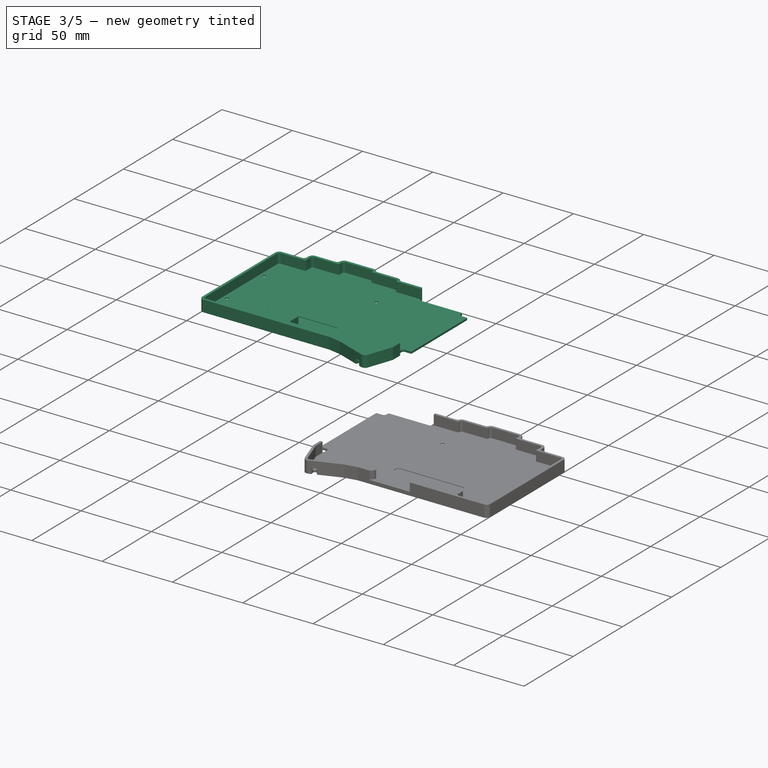
[diagram: stage 3 of 5 — iso view after this stage's code; geometry added in this stage tinted green]
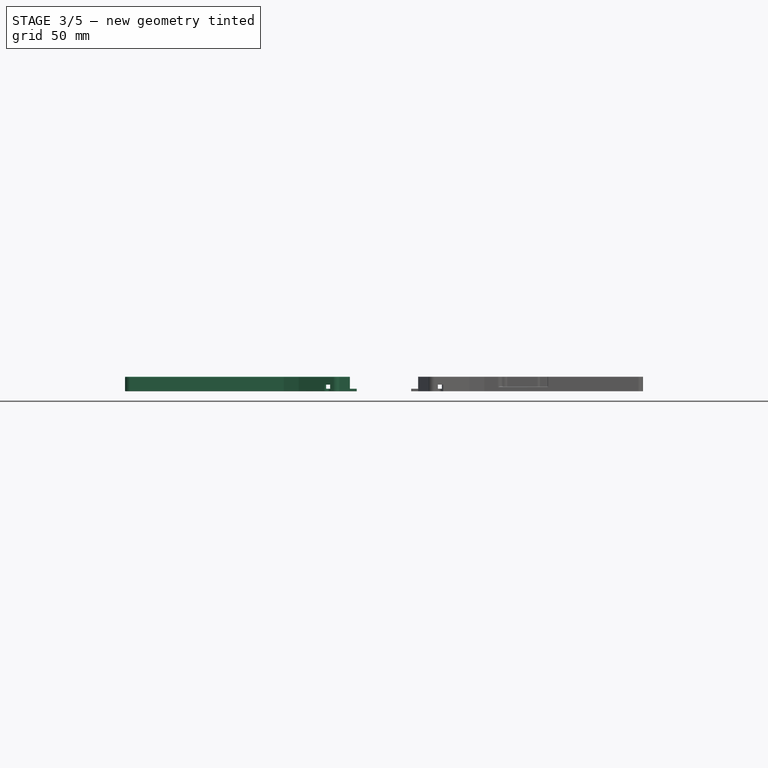
[diagram: stage 3 of 5 — front view after this stage's code; geometry added in this stage tinted green]
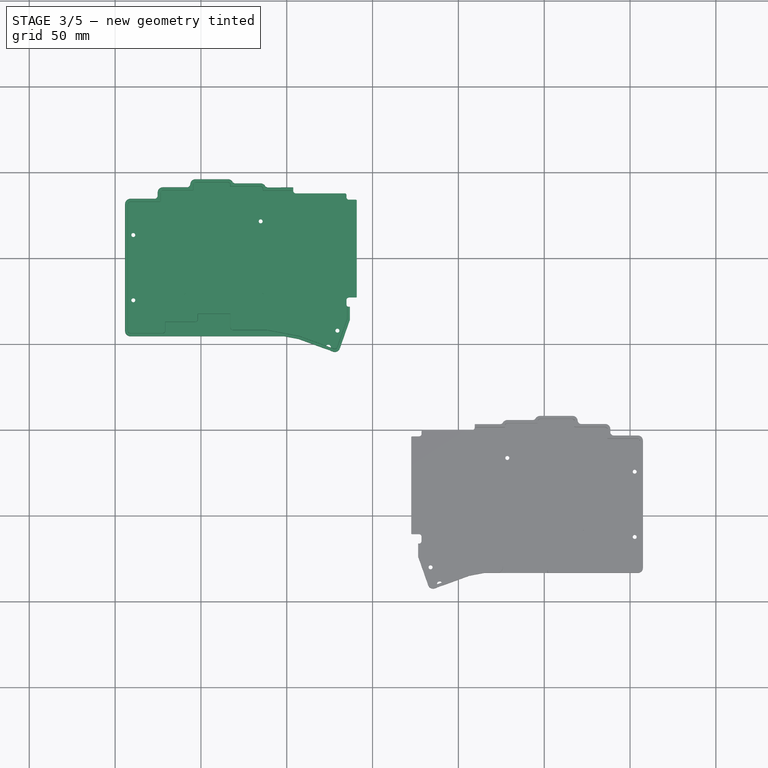
[diagram: stage 3 of 5 — top view after this stage's code; geometry added in this stage tinted green]
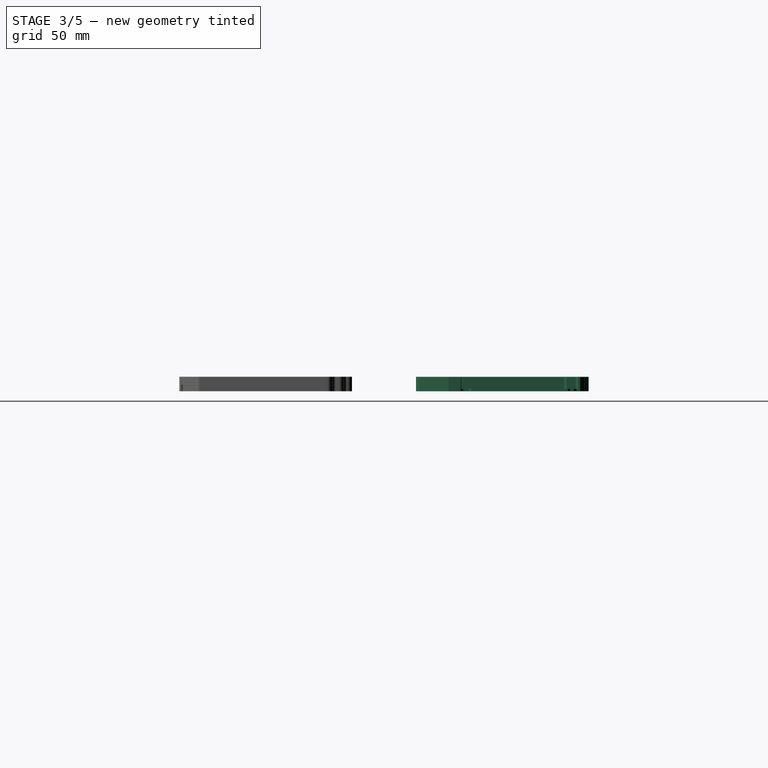
[diagram: stage 3 of 5 — right view after this stage's code; geometry added in this stage tinted green]
FEATURE [PartDesign::Pocket] Pocket028  label="LED001"
  BaseFeature = -> Pocket020
  Direction = (0,0,-1)
  Length = 4
  Length2 = 5
  Profile = -> Sketch043
  ReferenceAxis = -> Sketch043 [N_Axis]
  Refine = true
  Reversed = true
  Suppressed = false
  Type = 0
FEATURE [PartDesign::Pocket] Pocket021  label="穴001"
  BaseFeature = -> Pocket028
  Direction = (0,0,-1)
  Length = 10
  Length2 = 10
  Profile = -> Sketch039
  ReferenceAxis = -> Sketch039 [N_Axis]
  Refine = true
  Suppressed = false
  Type = 4
FEATURE [PartDesign::Pocket] Pocket022  label="ざぐり001"
  BaseFeature = -> Pocket021
  Direction = (0,0,-1)
  Length = 0.7
  Length2 = 5
  Profile = -> Sketch040
  ReferenceAxis = -> Sketch040 [N_Axis]
  Refine = true
  Reversed = true
  Suppressed = false
  Type = 0
  expr: Length = Spreadsheet.case_z2 - Spreadsheet.case_z1 - 0.8
FEATURE [PartDesign::Pocket] Pocket026  label="トラックボール固定ねじ除け001"
  BaseFeature = -> Pocket022
  Direction = (0,0,-1)
  Length = 0.4
  Length2 = 5
  Profile = -> Sketch045
  ReferenceAxis = -> Sketch045 [N_Axis]
  Refine = true
  Suppressed = false
  Type = 0
FEATURE [PartDesign::Fillet] Fillet007  label="Fillet003_1.5mm001"
  Base = -> Pocket026 [Edge188,Edge178,Edge162,Edge157]
  BaseFeature = -> Pocket026
  Radius = 1.5
  Refine = true
  SupportTransform = false
  Suppressed = false
  UseAllEdges = false
FEATURE [PartDesign::Pocket] Pocket029  label="フィレット整形001"
  BaseFeature = -> Fillet007
  Direction = (0,0,-1)
  Length = 5.1
  Length2 = 5
  Profile = -> Sketch047
  ReferenceAxis = -> Sketch047 [N_Axis]
  Refine = true
  Suppressed = false
  Type = 4
FEATURE [PartDesign::Fillet] Fillet008  label="Fillet004_0.3mm001"
  Base = -> Pocket029 [Edge60,Edge115,Edge217,Edge294]
  BaseFeature = -> Pocket029
  Radius = 0.3
  Refine = true
  SupportTransform = false
  Suppressed = false
  UseAllEdges = false
FEATURE [PartDesign::Fillet] Fillet010
  Base = -> Fillet008 [Face56,Face1]
  BaseFeature = -> Fillet008
  Radius = 0.3
  Refine = true
  SupportTransform = false
  Suppressed = false
  UseAllEdges = false
FEATURE [App::Link] Link001  label="キー側001"
  LinkPlacement = pos=(0,253.6,0) rot=(0,0,1;0rad)
  LinkedObject = -> Body004
  Placement = pos=(0,253.6,0) rot=(0,0,1;0rad)
FEATURE [Part::Mirroring] Part__Mirroring002  label="キー側001 (Mirror #3)"
  Base = (0,0,0)
  Normal = (0,0,1)
  Placement = pos=(-86.7,-115.7,-1.06e-14) rot=(0,1,0;3.14159rad)
  Source = -> Link001
FEATURE [PartDesign::Fillet] Fillet005
  Base = -> Fillet013 [Edge34,Edge6,Edge4,Edge37,Edge160,Edge8,Edge41,Edge107]
  BaseFeature = -> Fillet013
  Radius = 0.3
  Refine = true
  SupportTransform = false
  Suppressed = false
  UseAllEdges = false
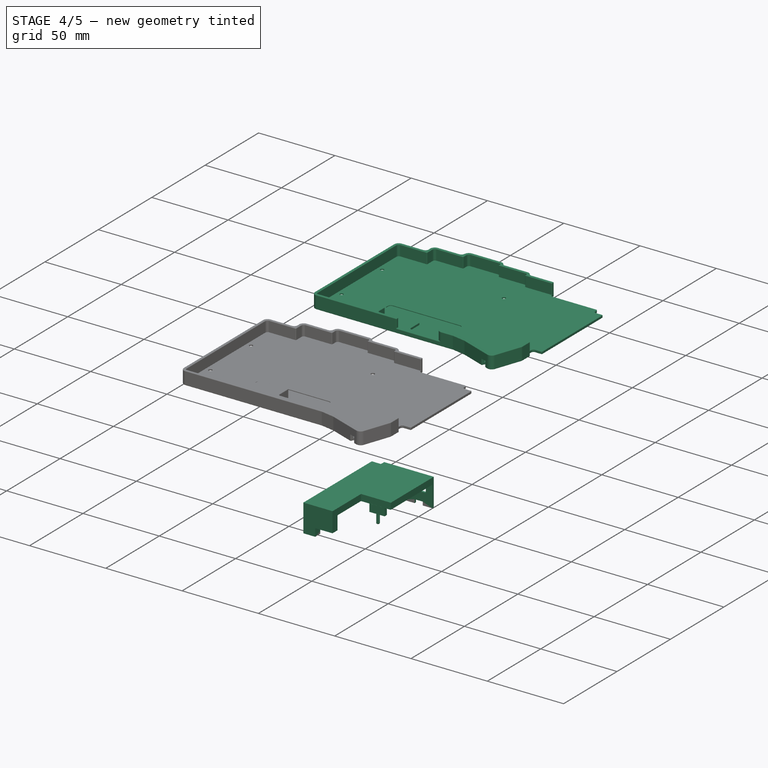
[diagram: stage 4 of 5 — iso view after this stage's code; geometry added in this stage tinted green]
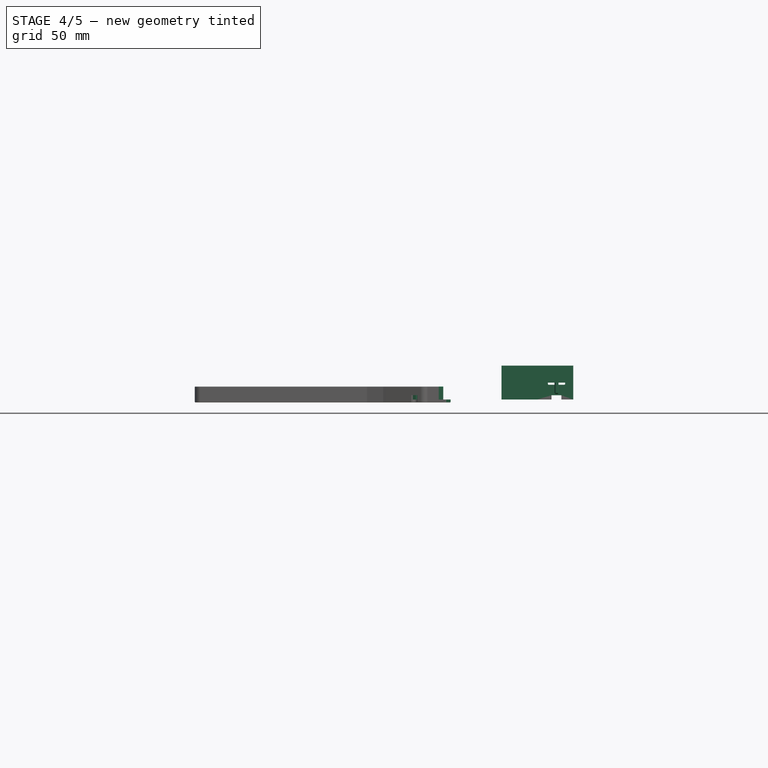
[diagram: stage 4 of 5 — front view after this stage's code; geometry added in this stage tinted green]
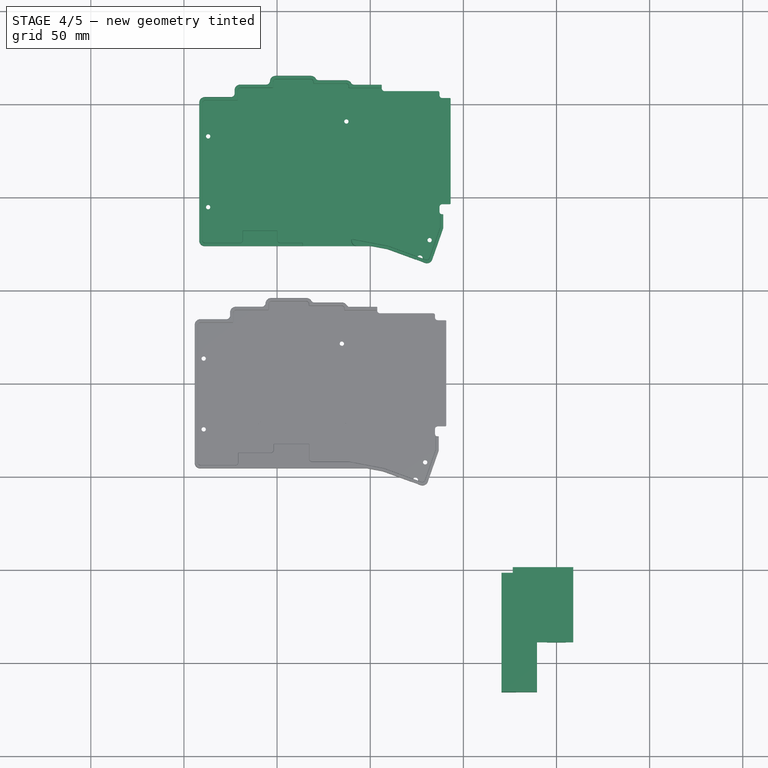
[diagram: stage 4 of 5 — top view after this stage's code; geometry added in this stage tinted green]
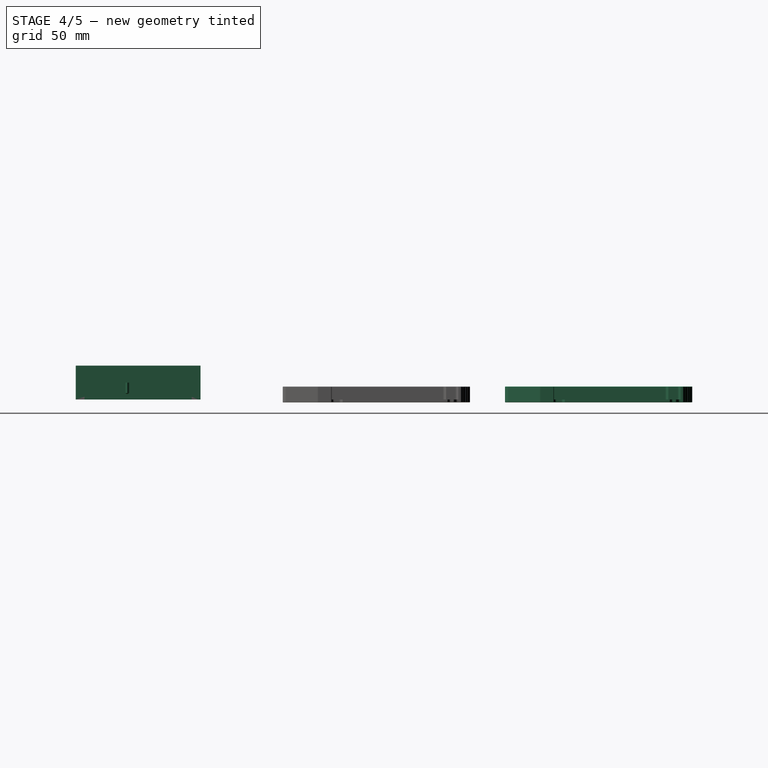
[diagram: stage 4 of 5 — right view after this stage's code; geometry added in this stage tinted green]
FEATURE [Sketcher::SketchObject] Sketch  label="xz"
  ArcFitTolerance = 0
  AttachmentSupport = -> [XZ_Plane]
  FullyConstrained = false
  MakeInternals = false
  MapMode = 5
  Placement = pos=(0,0,0) rot=(1,0,0;1.5708rad)
  expr: Constraints[31] = Spreadsheet.conn_h
  expr: Constraints[57] = Spreadsheet.controller_h
  expr: Constraints[79] = Spreadsheet.battery_h
  sketch-geometry (55):
    g0: LineSegment [constr] StartX=9 StartY=2.5 StartZ=0 EndX=9 EndY=4.1 EndZ=0
    g1: LineSegment [constr] StartX=9 StartY=4.1 StartZ=0 EndX=-9 EndY=4.1 EndZ=0
    g2: LineSegment [constr] StartX=-9 StartY=4.1 StartZ=0 EndX=-9 EndY=2.5 EndZ=0
    g3: LineSegment [constr] StartX=-9 StartY=2.5 StartZ=0 EndX=9 EndY=2.5 EndZ=0
    g4: GeomPoint [constr] X=0 Y=3.3 Z=0
    g5: LineSegment [constr] StartX=-105.409 StartY=0 StartZ=0 EndX=45.7381 EndY=0 EndZ=0
    g6: LineSegment [constr] StartX=45.7381 StartY=0 StartZ=0 EndX=45.7381 EndY=-1.6 EndZ=0
    g7: LineSegment [constr] StartX=45.7381 StartY=-1.6 StartZ=0 EndX=-105.409 EndY=-1.6 EndZ=0
    g8: LineSegment [constr] StartX=-105.409 StartY=-1.6 StartZ=0 EndX=-105.409 EndY=0 EndZ=0
    g9: LineSegment [constr] StartX=9 StartY=2.5 StartZ=0 EndX=6.36312 EndY=2.5 EndZ=0
    g10: LineSegment [constr] StartX=6.36312 StartY=2.5 StartZ=0 EndX=6.36312 EndY=0 EndZ=0
    g11: LineSegment [constr] StartX=6.36312 StartY=0 StartZ=0 EndX=9 EndY=0 EndZ=0
    g12: LineSegment [constr] StartX=9 StartY=0 StartZ=0 EndX=9 EndY=2.5 EndZ=0
    g13: LineSegment [constr] StartX=4.55 StartY=-5.1 StartZ=0 EndX=4.55 EndY=-1.6 EndZ=0
    g14: LineSegment [constr] StartX=4.55 StartY=-1.6 StartZ=0 EndX=-4.55 EndY=-1.6 EndZ=0
    g15: LineSegment [constr] StartX=-4.55 StartY=-1.6 StartZ=0 EndX=-4.55 EndY=-5.1 EndZ=0
    g16: LineSegment [constr] StartX=-4.55 StartY=-5.1 StartZ=0 EndX=4.55 EndY=-5.1 EndZ=0
    g17: GeomPoint [constr] X=0 Y=-3.35 Z=0
    g18: LineSegment [constr] StartX=-4.75 StartY=6.3 StartZ=0 EndX=-4.75 EndY=4.1 EndZ=0
    g19: LineSegment [constr] StartX=-4.75 StartY=4.1 StartZ=0 EndX=4.75 EndY=4.1 EndZ=0
    g20: LineSegment [constr] StartX=4.75 StartY=4.1 StartZ=0 EndX=4.75 EndY=6.3 EndZ=0
    g21: LineSegment [constr] StartX=4.75 StartY=6.3 StartZ=0 EndX=-4.75 EndY=6.3 EndZ=0
    g22: GeomPoint [constr] X=0 Y=5.2 Z=0
    g23: LineSegment [constr] StartX=-44.4822 StartY=-5.1 StartZ=0 EndX=-44.4822 EndY=-3.9 EndZ=0
    g24: LineSegment [constr] StartX=-44.4822 StartY=-3.9 StartZ=0 EndX=44.4822 EndY=-3.9 EndZ=0
    g25: LineSegment [constr] StartX=44.4822 StartY=-3.9 StartZ=0 EndX=44.4822 EndY=-5.1 EndZ=0
    g26: LineSegment [constr] StartX=44.4822 StartY=-5.1 StartZ=0 EndX=-44.4822 EndY=-5.1 EndZ=0
    g27: GeomPoint [constr] X=0 Y=-4.5 Z=0
    g28: LineSegment [constr] StartX=-10.45 StartY=-3.6 StartZ=0 EndX=-10.45 EndY=11.9 EndZ=0
    g29: LineSegment [constr] StartX=-10.45 StartY=11.9 StartZ=0 EndX=-27.55 EndY=11.9 EndZ=0
    g30: LineSegment [constr] StartX=-27.55 StartY=11.9 StartZ=0 EndX=-27.55 EndY=-3.6 EndZ=0
    g31: LineSegment [constr] StartX=-27.55 StartY=-3.6 StartZ=0 EndX=-10.45 EndY=-3.6 EndZ=0
    g32: GeomPoint [constr] X=-19 Y=4.15 Z=0
    g33: LineSegment [constr] StartX=33.0788 StartY=0.6 StartZ=0 EndX=33.0788 EndY=2.2 EndZ=0
    g34: LineSegment [constr] StartX=33.0788 StartY=2.2 StartZ=0 EndX=11.9844 EndY=2.2 EndZ=0
    g35: LineSegment [constr] StartX=11.9844 StartY=2.2 StartZ=0 EndX=11.9844 EndY=0.6 EndZ=0
    g36: LineSegment [constr] StartX=11.9844 StartY=0.6 StartZ=0 EndX=33.0788 EndY=0.6 EndZ=0
    g37: GeomPoint [constr] X=22.5316 Y=1.4 Z=0
    g38: LineSegment [constr] StartX=25.7428 StartY=8.6 StartZ=0 EndX=25.7428 EndY=2.2 EndZ=0
    g39: LineSegment [constr] StartX=25.7428 StartY=2.2 StartZ=0 EndX=19.3204 EndY=2.2 EndZ=0
    g40: LineSegment [constr] StartX=19.3204 StartY=2.2 StartZ=0 EndX=19.3204 EndY=8.6 EndZ=0
    g41: LineSegment [constr] StartX=19.3204 StartY=8.6 StartZ=0 EndX=25.7428 EndY=8.6 EndZ=0
    g42: GeomPoint [constr] X=22.5316 Y=5.4 Z=0
    g43: LineSegment [constr] StartX=22.5316 StartY=1.4 StartZ=0 EndX=22.5316 EndY=5.4 EndZ=0
    g44: LineSegment [constr] StartX=29.8817 StartY=5.3 StartZ=0 EndX=29.8817 EndY=0 EndZ=0
    g45: LineSegment [constr] StartX=29.8817 StartY=0 StartZ=0 EndX=15.1815 EndY=0 EndZ=0
    g46: LineSegment [constr] StartX=15.1815 StartY=0 StartZ=0 EndX=15.1815 EndY=5.3 EndZ=0
    g47: LineSegment [constr] StartX=15.1815 StartY=5.3 StartZ=0 EndX=29.8817 EndY=5.3 EndZ=0
    g48: GeomPoint [constr] X=22.5316 Y=2.65 Z=0
    g49: LineSegment [constr] StartX=28.1684 StartY=6.59315 StartZ=0 EndX=28.1684 EndY=9.3 EndZ=0
    g50: LineSegment [constr] StartX=28.1684 StartY=9.3 StartZ=0 EndX=16.8947 EndY=9.3 EndZ=0
    g51: LineSegment [constr] StartX=16.8947 StartY=9.3 StartZ=0 EndX=16.8947 EndY=6.59315 EndZ=0
    g52: LineSegment [constr] StartX=16.8947 StartY=6.59315 StartZ=0 EndX=28.1684 EndY=6.59315 EndZ=0
    g53: GeomPoint [constr] X=22.5316 Y=7.94657 Z=0
    g54: Circle [constr] CenterX=41.3382 CenterY=8.9 CenterZ=0 NormalX=0 NormalY=0 NormalZ=1 AngleXU=0 Radius=12.5
  constraints (135):
    c: Coincident(g0,g1)
    c: Coincident(g1,g2)
    c: Coincident(g2,g3)
    c: Coincident(g3,g0)
    c: Horizontal(g1)
    c: Horizontal(g3)
    c: Vertical(g0)
    c: Vertical(g2)
    c: Symmetric(g1,g0,g4)
    c: PointOnObject(g4,g-2)
    c: Coincident(g5,g6)
    c: Coincident(g6,g7)
    c: Coincident(g7,g8)
    c: Coincident(g8,g5)
    c: Horizontal(g5)
    c: Horizontal(g7)
    c: Vertical(g6)
    c: Vertical(g8)
    c: PointOnObject(g5,g-1)
    c: Distance(g6) = 1.6
    c: Distance(g0) = 1.6
    c: Coincident(g9,g10)
    c: Coincident(g10,g11)
    c: Coincident(g11,g12)
    c: Coincident(g12,g9)
    c: Horizontal(g9)
    c: Horizontal(g11)
    c: Vertical(g10)
    c: Vertical(g12)
    c: Coincident(g9,g0)
    c: PointOnObject(g10,g5)
    c: Distance(g12) = 2.5
    c: Distance(g1) = 18
    c: Coincident(g13,g14)
    c: Coincident(g14,g15)
    c: Coincident(g15,g16)
    c: Coincident(g16,g13)
    c: Horizontal(g14)
    c: Horizontal(g16)
    c: Vertical(g13)
    c: Vertical(g15)
    c: Symmetric(g14,g13,g17)
    c: PointOnObject(g17,g-2)
    c: PointOnObject(g14,g7)
    c: Distance(g13) = 3.5
    c: Distance(g16) = 9.1
    c: Coincident(g18,g19)
    c: Coincident(g19,g20)
    c: Coincident(g20,g21)
    c: Coincident(g21,g18)
    c: Horizontal(g19)
    c: Horizontal(g21)
    c: Vertical(g18)
    c: Vertical(g20)
    c: Symmetric(g19,g18,g22)
    c: PointOnObject(g22,g-2)
    c: PointOnObject(g19,g1)
    c: Distance(g20,g3) = 3.8
    c: Distance(g21) = 9.5
    c: Coincident(g23,g24)
    c: Coincident(g24,g25)
    c: Coincident(g25,g26)
    c: Coincident(g26,g23)
    c: Horizontal(g24)
    c: Horizontal(g26)
    c: Vertical(g23)
    c: Vertical(g25)
    c: Symmetric(g24,g23,g27)
    c: PointOnObject(g27,g-2)
    c: Distance(g25) = 1.2
    c: Coincident(g28,g29)
    c: Coincident(g29,g30)
    c: Coincident(g30,g31)
    c: Coincident(g31,g28)
    c: Horizontal(g29)
    c: Horizontal(g31)
    c: Vertical(g28)
    c: Vertical(g30)
    c: Symmetric(g29,g28,g32)
    c: Distance(g30) = 15.5
    c: Distance(g29) = 17.1
    c: Distance(g30,g7) = 2
    c: Distance(g24,g7) = 2.3
    c: Distance(g32,g-2) = 19
    c: Coincident(g33,g34)
    c: Coincident(g34,g35)
    c: Coincident(g35,g36)
    c: Coincident(g36,g33)
    c: Horizontal(g34)
    c: Horizontal(g36)
    c: Vertical(g33)
    c: Vertical(g35)
    c: Symmetric(g34,g33,g37)
    c: Distance(g33) = 1.6
    c: Distance(g33,g5) = 0.6
    c: Coincident(g38,g39)
    c: Coincident(g39,g40)
    c: Coincident(g40,g41)
    c: Coincident(g41,g38)
    c: Horizontal(g39)
    c: Horizontal(g41)
    c: Vertical(g38)
    c: Vertical(g40)
    c: Symmetric(g39,g38,g42)
    c: PointOnObject(g39,g34)
    c: Distance(g40) = 6.4
    c: Coincident(g43,g37)
    c: Coincident(g43,g42)
    c: Vertical(g43)
    c: Coincident(g44,g45)
    c: Coincident(g45,g46)
    c: Coincident(g46,g47)
    c: Coincident(g47,g44)
    c: Horizontal(g45)
    c: Horizontal(g47)
    c: Vertical(g44)
    c: Vertical(g46)
    c: Symmetric(g45,g44,g48)
    c: PointOnObject(g48,g43)
    c: PointOnObject(g45,g5)
    c: Distance(g44) = 5.3
    c: Coincident(g49,g50)
    c: Coincident(g50,g51)
    c: Coincident(g51,g52)
    c: Coincident(g52,g49)
    c: Horizontal(g50)
    c: Horizontal(g52)
    c: Vertical(g49)
    c: Vertical(g51)
    c: Symmetric(g50,g49,g53)
    c: PointOnObject(g53,g43)
    c: Distance(g49,g47) = 4
    c: Diameter(g54) = 25
    c: Distance(g54,g24) = 12.8
    c: Distance(g33,g24) = 4.5
FEATURE [Sketcher::SketchObject] Sketch001  label="xy"
  ArcFitTolerance = 0
  AttachmentSupport = -> [XY_Plane]
  FullyConstrained = true
  MakeInternals = false
  MapMode = 5
  expr: Constraints[23] = Spreadsheet.battery_l
  sketch-geometry (20):
    g0: LineSegment [constr] StartX=9 StartY=-34 StartZ=0 EndX=9 EndY=0 EndZ=0
    g1: LineSegment [constr] StartX=9 StartY=0 StartZ=0 EndX=-9 EndY=0 EndZ=0
    g2: LineSegment [constr] StartX=-9 StartY=0 StartZ=0 EndX=-9 EndY=-34 EndZ=0
    g3: LineSegment [constr] StartX=-9 StartY=-34 StartZ=0 EndX=9 EndY=-34 EndZ=0
    g4: GeomPoint [constr] X=0 Y=-17 Z=0
    g5: LineSegment [constr] StartX=-27.55 StartY=-60.7 StartZ=0 EndX=-27.55 EndY=-3.7 EndZ=0
    g6: LineSegment [constr] StartX=-27.55 StartY=-3.7 StartZ=0 EndX=-10.45 EndY=-3.7 EndZ=0
    g7: LineSegment [constr] StartX=-10.45 StartY=-3.7 StartZ=0 EndX=-10.45 EndY=-60.7 EndZ=0
    g8: LineSegment [constr] StartX=-10.45 StartY=-60.7 StartZ=0 EndX=-27.55 EndY=-60.7 EndZ=0
    g9: GeomPoint [constr] X=-19 Y=-32.2 Z=0
    g10: LineSegment [constr] StartX=21.5 StartY=-68.9 StartZ=0 EndX=21.5 EndY=0 EndZ=0
    g11: LineSegment [constr] StartX=21.5 StartY=0 StartZ=0 EndX=-21.5 EndY=0 EndZ=0
    g12: LineSegment [constr] StartX=-21.5 StartY=0 StartZ=0 EndX=-21.5 EndY=-68.9 EndZ=0
    g13: LineSegment [constr] StartX=-21.5 StartY=-68.9 StartZ=0 EndX=21.5 EndY=-68.9 EndZ=0
    g14: GeomPoint [constr] X=0 Y=-34.45 Z=0
    g15: LineSegment [constr] StartX=9.5 StartY=-58.5 StartZ=0 EndX=9.5 EndY=-39.5 EndZ=0
    g16: LineSegment [constr] StartX=9.5 StartY=-39.5 StartZ=0 EndX=-9.5 EndY=-39.5 EndZ=0
    g17: LineSegment [constr] StartX=-9.5 StartY=-39.5 StartZ=0 EndX=-9.5 EndY=-58.5 EndZ=0
    g18: LineSegment [constr] StartX=-9.5 StartY=-58.5 StartZ=0 EndX=9.5 EndY=-58.5 EndZ=0
    g19: GeomPoint [constr] X=0 Y=-49 Z=0
  constraints (52):
    c: Coincident(g0,g1)
    c: Coincident(g1,g2)
    c: Coincident(g2,g3)
    c: Coincident(g3,g0)
    c: Horizontal(g1)
    c: Horizontal(g3)
    c: Vertical(g0)
    c: Vertical(g2)
    c: Symmetric(g1,g0,g4)
    c: PointOnObject(g4,g-2)
    c: Distance(g0) = 34
    c: PointOnObject(g-1,g1)
    c: Distance(g3) = 18
    c: Coincident(g5,g6)
    c: Coincident(g6,g7)
    c: Coincident(g7,g8)
    c: Coincident(g8,g5)
    c: Horizontal(g6)
    c: Horizontal(g8)
    c: Vertical(g5)
    c: Vertical(g7)
    c: Symmetric(g6,g5,g9)
    c: Distance(g6) = 17.1
    c: Distance(g5) = 57
    c: Distance(g9,g-1) = 32.2
    c: Coincident(g10,g11)
    c: Coincident(g11,g12)
    c: Coincident(g12,g13)
    c: Coincident(g13,g10)
    c: Horizontal(g11)
    c: Horizontal(g13)
    c: Vertical(g10)
    c: Vertical(g12)
    c: Symmetric(g11,g10,g14)
    c: PointOnObject(g14,g-2)
    c: PointOnObject(g11,g-1)
    c: Distance(g12,g-2) = 21.5
    c: Distance(g10) = 68.9
    c: Coincident(g15,g16)
    c: Coincident(g16,g17)
    c: Coincident(g17,g18)
    c: Coincident(g18,g15)
    c: Horizontal(g16)
    c: Horizontal(g18)
    c: Vertical(g15)
    c: Vertical(g17)
    c: Symmetric(g16,g15,g19)
    c: PointOnObject(g19,g-2)
    c: Distance(g18) = 19
    c: Distance(g15) = 19
    c: Distance(g19,g-1) = 49
    c: Distance(g9,g-2) = 19
FEATURE [Sketcher::SketchObject] Sketch002
  ArcFitTolerance = 0
  AttachmentOffset = pos=(0,0,13.1) rot=(0,0,1;0rad)
  AttachmentSupport = -> [XY_Plane]
  FullyConstrained = true
  MakeInternals = false
  MapMode = 5
  Placement = pos=(0,0,13.1) rot=(0,0,1;0rad)
  expr: .AttachmentOffset.Base.z = Spreadsheet.battery_h - 3.6 + 1.2
  expr: Constraints[10] = Sketch001.Constraints[10]
  expr: Constraints[12] = Sketch001.Constraints[12]
  expr: Constraints[22] = Sketch001.Constraints[22]
  expr: Constraints[23] = Sketch001.Constraints[23]
  expr: Constraints[24] = Sketch001.Constraints[24]
  expr: Constraints[36] = Sketch001.Constraints[36]
  expr: Constraints[37] = Sketch001.Constraints[37]
  expr: Constraints[48] = Sketch001.Constraints[48]
  expr: Constraints[49] = Sketch001.Constraints[49]
  expr: Constraints[50] = Sketch001.Constraints[50]
  expr: Constraints[51] = Sketch001.Constraints[51]
  sketch-geometry (29):
    g0: LineSegment [constr] StartX=9 StartY=-34 StartZ=0 EndX=9 EndY=0 EndZ=0
    g1: LineSegment [constr] StartX=9 StartY=0 StartZ=0 EndX=-9 EndY=0 EndZ=0
    g2: LineSegment [constr] StartX=-9 StartY=0 StartZ=0 EndX=-9 EndY=-34 EndZ=0
    g3: LineSegment [constr] StartX=-9 StartY=-34 StartZ=0 EndX=9 EndY=-34 EndZ=0
    g4: GeomPoint [constr] X=0 Y=-17 Z=0
    g5: LineSegment [constr] StartX=-27.55 StartY=-60.7 StartZ=0 EndX=-27.55 EndY=-3.7 EndZ=0
    g6: LineSegment [constr] StartX=-27.55 StartY=-3.7 StartZ=0 EndX=-10.45 EndY=-3.7 EndZ=0
    g7: LineSegment [constr] StartX=-10.45 StartY=-3.7 StartZ=0 EndX=-10.45 EndY=-60.7 EndZ=0
    g8: LineSegment [constr] StartX=-10.45 StartY=-60.7 StartZ=0 EndX=-27.55 EndY=-60.7 EndZ=0
    g9: GeomPoint [constr] X=-19 Y=-32.2 Z=0
    g10: LineSegment [constr] StartX=21.5 StartY=-68.9 StartZ=0 EndX=21.5 EndY=0 EndZ=0
    g11: LineSegment [constr] StartX=21.5 StartY=0 StartZ=0 EndX=-21.5 EndY=0 EndZ=0
    g12: LineSegment [constr] StartX=-21.5 StartY=0 StartZ=0 EndX=-21.5 EndY=-68.9 EndZ=0
    g13: LineSegment [constr] StartX=-21.5 StartY=-68.9 StartZ=0 EndX=21.5 EndY=-68.9 EndZ=0
    g14: GeomPoint [constr] X=0 Y=-34.45 Z=0
    g15: LineSegment [constr] StartX=9.5 StartY=-58.5 StartZ=0 EndX=9.5 EndY=-39.5 EndZ=0
    g16: LineSegment [constr] StartX=9.5 StartY=-39.5 StartZ=0 EndX=-9.5 EndY=-39.5 EndZ=0
    g17: LineSegment [constr] StartX=-9.5 StartY=-39.5 StartZ=0 EndX=-9.5 EndY=-58.5 EndZ=0
    g18: LineSegment [constr] StartX=-9.5 StartY=-58.5 StartZ=0 EndX=9.5 EndY=-58.5 EndZ=0
    g19: GeomPoint [constr] X=0 Y=-49 Z=0
    g20: LineSegment StartX=9 StartY=0 StartZ=0 EndX=9 EndY=1.3 EndZ=0
    g21: LineSegment StartX=9 StartY=1.3 StartZ=0 EndX=-23.5 EndY=1.3 EndZ=0
    g22: LineSegment StartX=-23.5 StartY=1.3 StartZ=0 EndX=-23.5 EndY=-1.7 EndZ=0
    g23: LineSegment StartX=-23.5 StartY=-1.7 StartZ=0 EndX=-29.55 EndY=-1.7 EndZ=0
    g24: LineSegment StartX=-29.55 StartY=-1.7 StartZ=0 EndX=-29.55 EndY=-65.7 EndZ=0
    g25: LineSegment StartX=-29.55 StartY=-65.7 StartZ=0 EndX=-10.45 EndY=-65.7 EndZ=0
    g26: LineSegment StartX=-10.45 StartY=-65.7 StartZ=0 EndX=-10.45 EndY=-39 EndZ=0
    g27: LineSegment StartX=-10.45 StartY=-39 StartZ=0 EndX=9 EndY=-39 EndZ=0
    g28: LineSegment StartX=9 StartY=-39 StartZ=0 EndX=9 EndY=0 EndZ=0
  constraints (78):
    c: Coincident(g0,g1)
    c: Coincident(g1,g2)
    c: Coincident(g2,g3)
    c: Coincident(g3,g0)
    c: Horizontal(g1)
    c: Horizontal(g3)
    c: Vertical(g0)
    c: Vertical(g2)
    c: Symmetric(g1,g0,g4)
    c: PointOnObject(g4,g-2)
    c: Distance(g0) = 34
    c: PointOnObject(g-1,g1)
    c: Distance(g3) = 18
    c: Coincident(g5,g6)
    c: Coincident(g6,g7)
    c: Coincident(g7,g8)
    c: Coincident(g8,g5)
    c: Horizontal(g6)
    c: Horizontal(g8)
    c: Vertical(g5)
    c: Vertical(g7)
    c: Symmetric(g6,g5,g9)
    c: Distance(g6) = 17.1
    c: Distance(g5) = 57
    c: Distance(g9,g-1) = 32.2
    c: Coincident(g10,g11)
    c: Coincident(g11,g12)
    c: Coincident(g12,g13)
    c: Coincident(g13,g10)
    c: Horizontal(g11)
    c: Horizontal(g13)
    c: Vertical(g10)
    c: Vertical(g12)
    c: Symmetric(g11,g10,g14)
    c: PointOnObject(g14,g-2)
    c: PointOnObject(g11,g-1)
    c: Distance(g12,g-2) = 21.5
    c: Distance(g10) = 68.9
    c: Coincident(g15,g16)
    c: Coincident(g16,g17)
    c: Coincident(g17,g18)
    c: Coincident(g18,g15)
    c: Horizontal(g16)
    c: Horizontal(g18)
    c: Vertical(g15)
    c: Vertical(g17)
    c: Symmetric(g16,g15,g19)
    c: PointOnObject(g19,g-2)
    c: Distance(g18) = 19
    c: Distance(g15) = 19
    c: Distance(g19,g-1) = 49
    c: Distance(g9,g-2) = 19
    c: Coincident(g20,g0)
    c: Vertical(g20)
    c: Coincident(g21,g20)
    c: Horizontal(g21)
    c: Coincident(g22,g21)
    c: Vertical(g22)
    c: Coincident(g23,g22)
    c: Horizontal(g23)
    c: Coincident(g24,g23)
    c: Vertical(g24)
    c: Coincident(g25,g24)
    c: Horizontal(g25)
    c: Coincident(g26,g25)
    c: PointOnObject(g26,g7)
    c: Vertical(g26)
    c: Coincident(g27,g26)
    c: Horizontal(g27)
    c: Coincident(g28,g27)
    c: Coincident(g28,g20)
    c: Vertical(g28)
    c: Distance(g20) = 1.3
    c: Distance(g11,g22) = 2
    c: Distance(g22,g6) = 2
    c: Distance(g23,g5) = 2
    c: Distance(g24,g8) = 5
    c: Distance(g27,g16) = 0.5
FEATURE [Spreadsheet::Sheet] Spreadsheet
  cells = A1='battery_h; B1(battery_h)=15.5; A2='conn_h; B2(conn_h)=2.5; A3='controller_h; B3(controller_h)=3.8; A4='batttery_l; B4(battery_l)=57; A6='case_w_offset; B6(case_w_offset)=0; A7='case_h_offset; B7(case_h_offset)=0; A8='case_z1; B8(case_z1)=-6.6; A9='case_z2; B9(case_z2)=-5.1; A10='case_z3; B10(case_z3)=2.2
FEATURE [PartDesign::Pad] Pad  label="ベース"
  Direction = (0,0,1)
  Length = 18.2
  Length2 = 10
  Profile = -> Sketch002
  ReferenceAxis = -> Sketch002 [N_Axis]
  Reversed = true
  Suppressed = false
  Type = 0
  expr: Length = Spreadsheet.battery_h + 1.2 + 0.3 + 1.2
FEATURE [Sketcher::SketchObject] Sketch003
  ArcFitTolerance = 0
  AttachmentOffset = pos=(0,0,8.9) rot=(0,0,1;0rad)
  AttachmentSupport = -> [XY_Plane]
  FullyConstrained = true
  MakeInternals = false
  MapMode = 5
  Placement = pos=(0,0,8.9) rot=(0,0,1;0rad)
  expr: .AttachmentOffset.Base.z = Spreadsheet.conn_h + Spreadsheet.controller_h + 1.6 + 1
  expr: Constraints[10] = Sketch001.Constraints[10]
  expr: Constraints[12] = Sketch001.Constraints[12]
  expr: Constraints[22] = Sketch001.Constraints[22]
  expr: Constraints[23] = Sketch001.Constraints[23]
  expr: Constraints[24] = Sketch001.Constraints[24]
  expr: Constraints[36] = Sketch001.Constraints[36]
  expr: Constraints[37] = Sketch001.Constraints[37]
  expr: Constraints[48] = Sketch001.Constraints[48]
  expr: Constraints[49] = Sketch001.Constraints[49]
  expr: Constraints[50] = Sketch001.Constraints[50]
  expr: Constraints[51] = Sketch001.Constraints[51]
  sketch-geometry (24):
    g0: LineSegment [constr] StartX=9 StartY=-34 StartZ=0 EndX=9 EndY=0 EndZ=0
    g1: LineSegment [constr] StartX=9 StartY=0 StartZ=0 EndX=-9 EndY=0 EndZ=0
    g2: LineSegment [constr] StartX=-9 StartY=0 StartZ=0 EndX=-9 EndY=-34 EndZ=0
    g3: LineSegment [constr] StartX=-9 StartY=-34 StartZ=0 EndX=9 EndY=-34 EndZ=0
    g4: GeomPoint [constr] X=0 Y=-17 Z=0
    g5: LineSegment [constr] StartX=-27.55 StartY=-60.7 StartZ=0 EndX=-27.55 EndY=-3.7 EndZ=0
    g6: LineSegment [constr] StartX=-27.55 StartY=-3.7 StartZ=0 EndX=-10.45 EndY=-3.7 EndZ=0
    g7: LineSegment [constr] StartX=-10.45 StartY=-3.7 StartZ=0 EndX=-10.45 EndY=-60.7 EndZ=0
    g8: LineSegment [constr] StartX=-10.45 StartY=-60.7 StartZ=0 EndX=-27.55 EndY=-60.7 EndZ=0
    g9: GeomPoint [constr] X=-19 Y=-32.2 Z=0
    g10: LineSegment [constr] StartX=21.5 StartY=-68.9 StartZ=0 EndX=21.5 EndY=0 EndZ=0
    g11: LineSegment [constr] StartX=21.5 StartY=0 StartZ=0 EndX=-21.5 EndY=0 EndZ=0
    g12: LineSegment [constr] StartX=-21.5 StartY=0 StartZ=0 EndX=-21.5 EndY=-68.9 EndZ=0
    g13: LineSegment [constr] StartX=-21.5 StartY=-68.9 StartZ=0 EndX=21.5 EndY=-68.9 EndZ=0
    g14: GeomPoint [constr] X=0 Y=-34.45 Z=0
    g15: LineSegment [constr] StartX=9.5 StartY=-58.5 StartZ=0 EndX=9.5 EndY=-39.5 EndZ=0
    g16: LineSegment [constr] StartX=9.5 StartY=-39.5 StartZ=0 EndX=-9.5 EndY=-39.5 EndZ=0
    g17: LineSegment [constr] StartX=-9.5 StartY=-39.5 StartZ=0 EndX=-9.5 EndY=-58.5 EndZ=0
    g18: LineSegment [constr] StartX=-9.5 StartY=-58.5 StartZ=0 EndX=9.5 EndY=-58.5 EndZ=0
    g19: GeomPoint [constr] X=0 Y=-49 Z=0
    g20: LineSegment StartX=9 StartY=0 StartZ=0 EndX=-10.45 EndY=0 EndZ=0
    g21: LineSegment StartX=-10.45 StartY=0 StartZ=0 EndX=-10.45 EndY=-39 EndZ=0
    g22: LineSegment StartX=-10.45 StartY=-39 StartZ=0 EndX=9 EndY=-39 EndZ=0
    g23: LineSegment StartX=9 StartY=-39 StartZ=0 EndX=9 EndY=0 EndZ=0
  constraints (63):
    c: Coincident(g0,g1)
    c: Coincident(g1,g2)
    c: Coincident(g2,g3)
    c: Coincident(g3,g0)
    c: Horizontal(g1)
    c: Horizontal(g3)
    c: Vertical(g0)
    c: Vertical(g2)
    c: Symmetric(g1,g0,g4)
    c: PointOnObject(g4,g-2)
    c: Distance(g0) = 34
    c: PointOnObject(g-1,g1)
    c: Distance(g3) = 18
    c: Coincident(g5,g6)
    c: Coincident(g6,g7)
    c: Coincident(g7,g8)
    c: Coincident(g8,g5)
    c: Horizontal(g6)
    c: Horizontal(g8)
    c: Vertical(g5)
    c: Vertical(g7)
    c: Symmetric(g6,g5,g9)
    c: Distance(g6) = 17.1
    c: Distance(g5) = 57
    c: Distance(g9,g-1) = 32.2
    c: Coincident(g10,g11)
    c: Coincident(g11,g12)
    c: Coincident(g12,g13)
    c: Coincident(g13,g10)
    c: Horizontal(g11)
    c: Horizontal(g13)
    c: Vertical(g10)
    c: Vertical(g12)
    c: Symmetric(g11,g10,g14)
    c: PointOnObject(g14,g-2)
    c: PointOnObject(g11,g-1)
    c: Distance(g12,g-2) = 21.5
    c: Distance(g10) = 68.9
    c: Coincident(g15,g16)
    c: Coincident(g16,g17)
    c: Coincident(g17,g18)
    c: Coincident(g18,g15)
    c: Horizontal(g16)
    c: Horizontal(g18)
    c: Vertical(g15)
    c: Vertical(g17)
    c: Symmetric(g16,g15,g19)
    c: PointOnObject(g19,g-2)
    c: Distance(g18) = 19
    c: Distance(g15) = 19
    c: Distance(g19,g-1) = 49
    c: Distance(g9,g-2) = 19
    c: Coincident(g20,g21)
    c: Coincident(g21,g22)
    c: Coincident(g22,g23)
    c: Coincident(g23,g20)
    c: Horizontal(g20)
    c: Horizontal(g22)
    c: Vertical(g21)
    c: Vertical(g23)
    c: Coincident(g20,g0)
    c: PointOnObject(g21,g7)
    c: Distance(g22,g16) = 0.5
FEATURE [PartDesign::Pocket] Pocket  label="コントローラ部"
  BaseFeature = -> Pad
  Direction = (0,0,-1)
  Length = 5
  Length2 = 5
  Profile = -> Sketch003
  ReferenceAxis = -> Sketch003 [N_Axis]
  Suppressed = false
  Type = 1
FEATURE [Sketcher::SketchObject] Sketch007
  ArcFitTolerance = 0
  AttachmentSupport = -> [XY_Plane]
  FullyConstrained = true
  MakeInternals = false
  MapMode = 5
  expr: Constraints[10] = Sketch001.Constraints[10]
  expr: Constraints[12] = Sketch001.Constraints[12]
  expr: Constraints[22] = Sketch001.Constraints[22]
  expr: Constraints[23] = Sketch001.Constraints[23]
  expr: Constraints[24] = Sketch001.Constraints[24]
  expr: Constraints[36] = Sketch001.Constraints[36]
  expr: Constraints[37] = Sketch001.Constraints[37]
  expr: Constraints[48] = Sketch001.Constraints[48]
  expr: Constraints[49] = Sketch001.Constraints[49]
  expr: Constraints[50] = Sketch001.Constraints[50]
  expr: Constraints[51] = Sketch001.Constraints[51]
  sketch-geometry (28):
    g0: LineSegment [constr] StartX=9 StartY=-34 StartZ=0 EndX=9 EndY=0 EndZ=0
    g1: LineSegment [constr] StartX=9 StartY=0 StartZ=0 EndX=-9 EndY=0 EndZ=0
    g2: LineSegment [constr] StartX=-9 StartY=0 StartZ=0 EndX=-9 EndY=-34 EndZ=0
    g3: LineSegment [constr] StartX=-9 StartY=-34 StartZ=0 EndX=9 EndY=-34 EndZ=0
    g4: GeomPoint [constr] X=0 Y=-17 Z=0
    g5: LineSegment [constr] StartX=-27.55 StartY=-60.7 StartZ=0 EndX=-27.55 EndY=-3.7 EndZ=0
    g6: LineSegment [constr] StartX=-27.55 StartY=-3.7 StartZ=0 EndX=-10.45 EndY=-3.7 EndZ=0
    g7: LineSegment [constr] StartX=-10.45 StartY=-3.7 StartZ=0 EndX=-10.45 EndY=-60.7 EndZ=0
    g8: LineSegment [constr] StartX=-10.45 StartY=-60.7 StartZ=0 EndX=-27.55 EndY=-60.7 EndZ=0
    g9: GeomPoint [constr] X=-19 Y=-32.2 Z=0
    g10: LineSegment [constr] StartX=21.5 StartY=-68.9 StartZ=0 EndX=21.5 EndY=0 EndZ=0
    g11: LineSegment [constr] StartX=21.5 StartY=0 StartZ=0 EndX=-21.5 EndY=0 EndZ=0
    g12: LineSegment [constr] StartX=-21.5 StartY=0 StartZ=0 EndX=-21.5 EndY=-68.9 EndZ=0
    g13: LineSegment [constr] StartX=-21.5 StartY=-68.9 StartZ=0 EndX=21.5 EndY=-68.9 EndZ=0
    g14: GeomPoint [constr] X=0 Y=-34.45 Z=0
    g15: LineSegment [constr] StartX=9.5 StartY=-58.5 StartZ=0 EndX=9.5 EndY=-39.5 EndZ=0
    g16: LineSegment [constr] StartX=9.5 StartY=-39.5 StartZ=0 EndX=-9.5 EndY=-39.5 EndZ=0
    g17: LineSegment [constr] StartX=-9.5 StartY=-39.5 StartZ=0 EndX=-9.5 EndY=-58.5 EndZ=0
    g18: LineSegment [constr] StartX=-9.5 StartY=-58.5 StartZ=0 EndX=9.5 EndY=-58.5 EndZ=0
    g19: GeomPoint [constr] X=0 Y=-49 Z=0
    g20: LineSegment StartX=21.5 StartY=0 StartZ=0 EndX=-21.8 EndY=0 EndZ=0
    g21: LineSegment StartX=-21.8 StartY=0 StartZ=0 EndX=-21.8 EndY=-3.4 EndZ=0
    g22: LineSegment StartX=-21.8 StartY=-3.4 StartZ=0 EndX=-27.85 EndY=-3.4 EndZ=0
    g23: LineSegment StartX=-27.85 StartY=-3.4 StartZ=0 EndX=-27.85 EndY=-61 EndZ=0
    g24: LineSegment StartX=-27.85 StartY=-61 StartZ=0 EndX=-21.8 EndY=-61 EndZ=0
    g25: LineSegment StartX=-21.8 StartY=-61 StartZ=0 EndX=-21.8 EndY=-68.9 EndZ=0
    g26: LineSegment StartX=-21.8 StartY=-68.9 StartZ=0 EndX=21.5 EndY=-68.9 EndZ=0
    g27: LineSegment StartX=21.5 StartY=-68.9 StartZ=0 EndX=21.5 EndY=0 EndZ=0
  constraints (74):
    c: Coincident(g0,g1)
    c: Coincident(g1,g2)
    c: Coincident(g2,g3)
    c: Coincident(g3,g0)
    c: Horizontal(g1)
    c: Horizontal(g3)
    c: Vertical(g0)
    c: Vertical(g2)
    c: Symmetric(g1,g0,g4)
    c: PointOnObject(g4,g-2)
    c: Distance(g0) = 34
    c: PointOnObject(g-1,g1)
    c: Distance(g3) = 18
    c: Coincident(g5,g6)
    c: Coincident(g6,g7)
    c: Coincident(g7,g8)
    c: Coincident(g8,g5)
    c: Horizontal(g6)
    c: Horizontal(g8)
    c: Vertical(g5)
    c: Vertical(g7)
    c: Symmetric(g6,g5,g9)
    c: Distance(g6) = 17.1
    c: Distance(g5) = 57
    c: Distance(g9,g-1) = 32.2
    c: Coincident(g10,g11)
    c: Coincident(g11,g12)
    c: Coincident(g12,g13)
    c: Coincident(g13,g10)
    c: Horizontal(g11)
    c: Horizontal(g13)
    c: Vertical(g10)
    c: Vertical(g12)
    c: Symmetric(g11,g10,g14)
    c: PointOnObject(g14,g-2)
    c: PointOnObject(g11,g-1)
    c: Distance(g12,g-2) = 21.5
    c: Distance(g10) = 68.9
    c: Coincident(g15,g16)
    c: Coincident(g16,g17)
    c: Coincident(g17,g18)
    c: Coincident(g18,g15)
    c: Horizontal(g16)
    c: Horizontal(g18)
    c: Vertical(g15)
    c: Vertical(g17)
    c: Symmetric(g16,g15,g19)
    c: PointOnObject(g19,g-2)
    c: Distance(g18) = 19
    c: Distance(g15) = 19
    c: Distance(g19,g-1) = 49
    c: Distance(g9,g-2) = 19
    c: Coincident(g20,g10)
    c: PointOnObject(g20,g-1)
    c: Coincident(g21,g20)
    c: Vertical(g21)
    c: Coincident(g22,g21)
    c: Horizontal(g22)
    c: Coincident(g23,g22)
    c: Vertical(g23)
    c: Coincident(g24,g23)
    c: Horizontal(g24)
    c: Coincident(g25,g24)
    c: Vertical(g25)
    c: Coincident(g26,g25)
    c: Coincident(g26,g10)
    c: Horizontal(g26)
    c: Coincident(g27,g26)
    c: Coincident(g27,g20)
    c: Distance(g21,g12) = 0.3
    c: Distance(g21,g6) = 0.3
    c: Distance(g22,g5) = 0.3
    c: Distance(g24,g8) = 0.3
    c: Distance(g24,g12) = 0.3
FEATURE [PartDesign::Pocket] Pocket001  label="基板部"
  BaseFeature = -> Pocket
  Direction = (0,0,-1)
  Length = 5
  Length2 = 5
  Profile = -> Sketch007
  ReferenceAxis = -> Sketch007 [N_Axis]
  Suppressed = false
  Type = 1
FEATURE [Sketcher::SketchObject] Sketch008
  ArcFitTolerance = 0
  AttachmentOffset = pos=(0,0,3.4) rot=(0,0,1;0rad)
  AttachmentSupport = -> [XZ_Plane]
  FullyConstrained = false
  MakeInternals = false
  MapMode = 5
  Placement = pos=(0,-3.4,8e-16) rot=(1,0,0;1.5708rad)
  expr: Constraints[105] = Sketch.Constraints[105]
  expr: Constraints[120] = Sketch.Constraints[120]
  expr: Constraints[131] = Sketch.Constraints[131]
  expr: Constraints[132] = Sketch.Constraints[132]
  expr: Constraints[133] = Sketch.Constraints[133]
  expr: Constraints[19] = Sketch.Constraints[19]
  expr: Constraints[20] = Sketch.Constraints[20]
  expr: Constraints[31] = Sketch.Constraints[31]
  expr: Constraints[32] = Sketch.Constraints[32]
  expr: Constraints[44] = Sketch.Constraints[44]
  expr: Constraints[45] = Sketch.Constraints[45]
  expr: Constraints[57] = Sketch.Constraints[57]
  expr: Constraints[58] = Sketch.Constraints[58]
  expr: Constraints[69] = Sketch.Constraints[69]
  expr: Constraints[79] = Sketch.Constraints[79]
  expr: Constraints[80] = Sketch.Constraints[80]
  expr: Constraints[81] = Sketch.Constraints[81]
  expr: Constraints[82] = Sketch.Constraints[82]
  expr: Constraints[83] = Sketch.Constraints[83]
  expr: Constraints[93] = Sketch.Constraints[93]
  expr: Constraints[94] = Sketch.Constraints[94]
  sketch-geometry (70):
    g0: LineSegment [constr] StartX=9 StartY=2.5 StartZ=0 EndX=9 EndY=4.1 EndZ=0
    g1: LineSegment [constr] StartX=9 StartY=4.1 StartZ=0 EndX=-9 EndY=4.1 EndZ=0
    g2: LineSegment [constr] StartX=-9 StartY=4.1 StartZ=0 EndX=-9 EndY=2.5 EndZ=0
    g3: LineSegment [constr] StartX=-9 StartY=2.5 StartZ=0 EndX=9 EndY=2.5 EndZ=0
    g4: GeomPoint [constr] X=0 Y=3.3 Z=0
    g5: LineSegment [constr] StartX=-105.409 StartY=0 StartZ=0 EndX=45.7381 EndY=0 EndZ=0
    g6: LineSegment [constr] StartX=45.7381 StartY=0 StartZ=0 EndX=45.7381 EndY=-1.6 EndZ=0
    g7: LineSegment [constr] StartX=45.7381 StartY=-1.6 StartZ=0 EndX=-105.409 EndY=-1.6 EndZ=0
    g8: LineSegment [constr] StartX=-105.409 StartY=-1.6 StartZ=0 EndX=-105.409 EndY=0 EndZ=0
    g9: LineSegment [constr] StartX=9 StartY=2.5 StartZ=0 EndX=6.36312 EndY=2.5 EndZ=0
    g10: LineSegment [constr] StartX=6.36312 StartY=2.5 StartZ=0 EndX=6.36312 EndY=0 EndZ=0
    g11: LineSegment [constr] StartX=6.36312 StartY=0 StartZ=0 EndX=9 EndY=0 EndZ=0
    g12: LineSegment [constr] StartX=9 StartY=0 StartZ=0 EndX=9 EndY=2.5 EndZ=0
    g13: LineSegment [constr] StartX=4.55 StartY=-5.1 StartZ=0 EndX=4.55 EndY=-1.6 EndZ=0
    g14: LineSegment [constr] StartX=4.55 StartY=-1.6 StartZ=0 EndX=-4.55 EndY=-1.6 EndZ=0
    g15: LineSegment [constr] StartX=-4.55 StartY=-1.6 StartZ=0 EndX=-4.55 EndY=-5.1 EndZ=0
    g16: LineSegment [constr] StartX=-4.55 StartY=-5.1 StartZ=0 EndX=4.55 EndY=-5.1 EndZ=0
    g17: GeomPoint [constr] X=0 Y=-3.35 Z=0
    g18: LineSegment [constr] StartX=-4.75 StartY=6.3 StartZ=0 EndX=-4.75 EndY=4.1 EndZ=0
    g19: LineSegment [constr] StartX=-4.75 StartY=4.1 StartZ=0 EndX=4.75 EndY=4.1 EndZ=0
    g20: LineSegment [constr] StartX=4.75 StartY=4.1 StartZ=0 EndX=4.75 EndY=6.3 EndZ=0
    g21: LineSegment [constr] StartX=4.75 StartY=6.3 StartZ=0 EndX=-4.75 EndY=6.3 EndZ=0
    g22: GeomPoint [constr] X=0 Y=5.2 Z=0
    g23: LineSegment [constr] StartX=-44.4822 StartY=-5.1 StartZ=0 EndX=-44.4822 EndY=-3.9 EndZ=0
    g24: LineSegment [constr] StartX=-44.4822 StartY=-3.9 StartZ=0 EndX=44.4822 EndY=-3.9 EndZ=0
    g25: LineSegment [constr] StartX=44.4822 StartY=-3.9 StartZ=0 EndX=44.4822 EndY=-5.1 EndZ=0
    g26: LineSegment [constr] StartX=44.4822 StartY=-5.1 StartZ=0 EndX=-44.4822 EndY=-5.1 EndZ=0
    g27: GeomPoint [constr] X=0 Y=-4.5 Z=0
    g28: LineSegment [constr] StartX=-10.45 StartY=-3.6 StartZ=0 EndX=-10.45 EndY=11.9 EndZ=0
    g29: LineSegment [constr] StartX=-10.45 StartY=11.9 StartZ=0 EndX=-27.55 EndY=11.9 EndZ=0
    g30: LineSegment [constr] StartX=-27.55 StartY=11.9 StartZ=0 EndX=-27.55 EndY=-3.6 EndZ=0
    g31: LineSegment [constr] StartX=-27.55 StartY=-3.6 StartZ=0 EndX=-10.45 EndY=-3.6 EndZ=0
    g32: GeomPoint [constr] X=-19 Y=4.15 Z=0
    g33: LineSegment [constr] StartX=33.0788 StartY=0.6 StartZ=0 EndX=33.0788 EndY=2.2 EndZ=0
    g34: LineSegment [constr] StartX=33.0788 StartY=2.2 StartZ=0 EndX=11.9844 EndY=2.2 EndZ=0
    g35: LineSegment [constr] StartX=11.9844 StartY=2.2 StartZ=0 EndX=11.9844 EndY=0.6 EndZ=0
    g36: LineSegment [constr] StartX=11.9844 StartY=0.6 StartZ=0 EndX=33.0788 EndY=0.6 EndZ=0
    g37: GeomPoint [constr] X=22.5316 Y=1.4 Z=0
    g38: LineSegment [constr] StartX=25.7428 StartY=8.6 StartZ=0 EndX=25.7428 EndY=2.2 EndZ=0
    g39: LineSegment [constr] StartX=25.7428 StartY=2.2 StartZ=0 EndX=19.3204 EndY=2.2 EndZ=0
    g40: LineSegment [constr] StartX=19.3204 StartY=2.2 StartZ=0 EndX=19.3204 EndY=8.6 EndZ=0
    g41: LineSegment [constr] StartX=19.3204 StartY=8.6 StartZ=0 EndX=25.7428 EndY=8.6 EndZ=0
    g42: GeomPoint [constr] X=22.5316 Y=5.4 Z=0
    g43: LineSegment [constr] StartX=22.5316 StartY=1.4 StartZ=0 EndX=22.5316 EndY=5.4 EndZ=0
    g44: LineSegment [constr] StartX=29.8817 StartY=5.3 StartZ=0 EndX=29.8817 EndY=0 EndZ=0
    g45: LineSegment [constr] StartX=29.8817 StartY=0 StartZ=0 EndX=15.1815 EndY=0 EndZ=0
    g46: LineSegment [constr] StartX=15.1815 StartY=0 StartZ=0 EndX=15.1815 EndY=5.3 EndZ=0
    g47: LineSegment [constr] StartX=15.1815 StartY=5.3 StartZ=0 EndX=29.8817 EndY=5.3 EndZ=0
    g48: GeomPoint [constr] X=22.5316 Y=2.65 Z=0
    g49: LineSegment [constr] StartX=28.1684 StartY=6.59315 StartZ=0 EndX=28.1684 EndY=9.3 EndZ=0
    g50: LineSegment [constr] StartX=28.1684 StartY=9.3 StartZ=0 EndX=16.8947 EndY=9.3 EndZ=0
    g51: LineSegment [constr] StartX=16.8947 StartY=9.3 StartZ=0 EndX=16.8947 EndY=6.59315 EndZ=0
    g52: LineSegment [constr] StartX=16.8947 StartY=6.59315 StartZ=0 EndX=28.1684 EndY=6.59315 EndZ=0
    g53: GeomPoint [constr] X=22.5316 Y=7.94657 Z=0
    g54: Circle [constr] CenterX=41.3382 CenterY=8.9 CenterZ=0 NormalX=0 NormalY=0 NormalZ=1 AngleXU=0 Radius=12.5
    g55: GeomPoint [constr] X=-19 Y=4.15 Z=0
    g56: LineSegment [constr] StartX=-19 StartY=4.15 StartZ=0 EndX=-19 EndY=11.9 EndZ=0
    g57: Circle [constr] CenterX=-19 CenterY=4.7 CenterZ=0 NormalX=0 NormalY=0 NormalZ=1 AngleXU=0 Radius=7.2
    g58: LineSegment [constr] StartX=-26.7128 StartY=4.7 StartZ=0 EndX=-11.1456 EndY=4.7 EndZ=0
    g59: ArcOfCircle [constr] CenterX=-19 CenterY=4.7 CenterZ=0 NormalX=0 NormalY=0 NormalZ=1 AngleXU=0 Radius=7.5 StartAngle=0 EndAngle=3.14159
    g60: LineSegment [constr] StartX=-25.2137 StartY=8.9 StartZ=0 EndX=-12.7863 EndY=8.9 EndZ=0
    g61: LineSegment [constr] StartX=-21.1 StartY=11.9 StartZ=0 EndX=-16.9 EndY=11.9 EndZ=0
    g62: ArcOfCircle CenterX=-19 CenterY=4.7 CenterZ=0 NormalX=0 NormalY=0 NormalZ=1 AngleXU=0 Radius=7.5 StartAngle=0.594386 EndAngle=1.287
    g63: ArcOfCircle CenterX=-19 CenterY=4.7 CenterZ=0 NormalX=0 NormalY=0 NormalZ=1 AngleXU=0 Radius=7.5 StartAngle=1.85459 EndAngle=2.54721
    g64: LineSegment StartX=-21.1 StartY=11.9 StartZ=0 EndX=-16.9 EndY=11.9 EndZ=0
    g65: LineSegment StartX=-25.2137 StartY=8.9 StartZ=0 EndX=-27.55 EndY=8.9 EndZ=0
    g66: LineSegment StartX=-27.55 StartY=8.9 StartZ=0 EndX=-27.55 EndY=-3.6 EndZ=0
    g67: LineSegment StartX=-27.55 StartY=-3.6 StartZ=0 EndX=-10.45 EndY=-3.6 EndZ=0
    g68: LineSegment StartX=-12.7863 StartY=8.9 StartZ=0 EndX=-10.45 EndY=8.9 EndZ=0
    g69: LineSegment StartX=-10.45 StartY=8.9 StartZ=0 EndX=-10.45 EndY=-3.6 EndZ=0
  constraints (176):
    c: Coincident(g0,g1)
    c: Coincident(g1,g2)
    c: Coincident(g2,g3)
    c: Coincident(g3,g0)
    c: Horizontal(g1)
    c: Horizontal(g3)
    c: Vertical(g0)
    c: Vertical(g2)
    c: Symmetric(g1,g0,g4)
    c: PointOnObject(g4,g-2)
    c: Coincident(g5,g6)
    c: Coincident(g6,g7)
    c: Coincident(g7,g8)
    c: Coincident(g8,g5)
    c: Horizontal(g5)
    c: Horizontal(g7)
    c: Vertical(g6)
    c: Vertical(g8)
    c: PointOnObject(g5,g-1)
    c: Distance(g6) = 1.6
    c: Distance(g0) = 1.6
    c: Coincident(g9,g10)
    c: Coincident(g10,g11)
    c: Coincident(g11,g12)
    c: Coincident(g12,g9)
    c: Horizontal(g9)
    c: Horizontal(g11)
    c: Vertical(g10)
    c: Vertical(g12)
    c: Coincident(g9,g0)
    c: PointOnObject(g10,g5)
    c: Distance(g12) = 2.5
    c: Distance(g1) = 18
    c: Coincident(g13,g14)
    c: Coincident(g14,g15)
    c: Coincident(g15,g16)
    c: Coincident(g16,g13)
    c: Horizontal(g14)
    c: Horizontal(g16)
    c: Vertical(g13)
    c: Vertical(g15)
    c: Symmetric(g14,g13,g17)
    c: PointOnObject(g17,g-2)
    c: PointOnObject(g14,g7)
    c: Distance(g13) = 3.5
    c: Distance(g16) = 9.1
    c: Coincident(g18,g19)
    c: Coincident(g19,g20)
    c: Coincident(g20,g21)
    c: Coincident(g21,g18)
    c: Horizontal(g19)
    c: Horizontal(g21)
    c: Vertical(g18)
    c: Vertical(g20)
    c: Symmetric(g19,g18,g22)
    c: PointOnObject(g22,g-2)
    c: PointOnObject(g19,g1)
    c: Distance(g20,g3) = 3.8
    c: Distance(g21) = 9.5
    c: Coincident(g23,g24)
    c: Coincident(g24,g25)
    c: Coincident(g25,g26)
    c: Coincident(g26,g23)
    c: Horizontal(g24)
    c: Horizontal(g26)
    c: Vertical(g23)
    c: Vertical(g25)
    c: Symmetric(g24,g23,g27)
    c: PointOnObject(g27,g-2)
    c: Distance(g25) = 1.2
    c: Coincident(g28,g29)
    c: Coincident(g29,g30)
    c: Coincident(g30,g31)
    c: Coincident(g31,g28)
    c: Horizontal(g29)
    c: Horizontal(g31)
    c: Vertical(g28)
    c: Vertical(g30)
    c: Symmetric(g29,g28,g32)
    c: Distance(g30) = 15.5
    c: Distance(g29) = 17.1
    c: Distance(g30,g7) = 2
    c: Distance(g24,g7) = 2.3
    c: Distance(g32,g-2) = 19
    c: Coincident(g33,g34)
    c: Coincident(g34,g35)
    c: Coincident(g35,g36)
    c: Coincident(g36,g33)
    c: Horizontal(g34)
    c: Horizontal(g36)
    c: Vertical(g33)
    c: Vertical(g35)
    c: Symmetric(g34,g33,g37)
    c: Distance(g33) = 1.6
    c: Distance(g33,g5) = 0.6
    c: Coincident(g38,g39)
    c: Coincident(g39,g40)
    c: Coincident(g40,g41)
    c: Coincident(g41,g38)
    c: Horizontal(g39)
    c: Horizontal(g41)
    c: Vertical(g38)
    c: Vertical(g40)
    c: Symmetric(g39,g38,g42)
    c: PointOnObject(g39,g34)
    c: Distance(g40) = 6.4
    c: Coincident(g43,g37)
    c: Coincident(g43,g42)
    c: Vertical(g43)
    c: Coincident(g44,g45)
    c: Coincident(g45,g46)
    c: Coincident(g46,g47)
    c: Coincident(g47,g44)
    c: Horizontal(g45)
    c: Horizontal(g47)
    c: Vertical(g44)
    c: Vertical(g46)
    c: Symmetric(g45,g44,g48)
    c: PointOnObject(g48,g43)
    c: PointOnObject(g45,g5)
    c: Distance(g44) = 5.3
    c: Coincident(g49,g50)
    c: Coincident(g50,g51)
    c: Coincident(g51,g52)
    c: Coincident(g52,g49)
    c: Horizontal(g50)
    c: Horizontal(g52)
    c: Vertical(g49)
    c: Vertical(g51)
    c: Symmetric(g50,g49,g53)
    c: PointOnObject(g53,g43)
    c: Distance(g49,g47) = 4
    c: Diameter(g54) = 25
    c: Distance(g54,g24) = 12.8
    c: Distance(g33,g24) = 4.5
    c: Coincident(g55,g32)
    c: Coincident(g56,g32)
    c: PointOnObject(g56,g29)
    c: Vertical(g56)
    c: PointOnObject(g57,g56)
    c: PointOnObject(g56,g57)
    c: Diameter(g57) = 14.4
    c: Horizontal(g58)
    c: PointOnObject(g57,g58)
    c: Coincident(g59,g57)
    c: PointOnObject(g59,g58)
    c: PointOnObject(g59,g58)
    c: Radius(g59) = 7.5
    c: PointOnObject(g60,g59)
    c: PointOnObject(g60,g59)
    c: Horizontal(g60)
    c: Distance(g56,g60) = 3
    c: PointOnObject(g61,g29)
    c: PointOnObject(g61,g29)
    c: Coincident(g62,g57)
    c: Coincident(g62,g60)
    c: Coincident(g62,g61)
    c: Coincident(g63,g62)
    c: Coincident(g63,g61)
    c: Coincident(g63,g60)
    c: Coincident(g64,g63)
    c: Coincident(g64,g62)
    c: Coincident(g65,g63)
    c: Horizontal(g65)
    c: Coincident(g66,g65)
    c: PointOnObject(g66,g31)
    c: Vertical(g66)
    c: Coincident(g67,g66)
    c: PointOnObject(g67,g31)
    c: Coincident(g68,g62)
    c: Horizontal(g68)
    c: Coincident(g69,g68)
    c: Coincident(g69,g67)
    c: Vertical(g69)
    c: PointOnObject(g65,g30)
    c: PointOnObject(g68,g28)
FEATURE [PartDesign::Pocket] Pocket002  label="電池部"
  BaseFeature = -> Pocket001
  Direction = (0,1,-2e-16)
  Length = 57.6
  Length2 = 5
  Profile = -> Sketch008
  ReferenceAxis = -> Sketch008 [N_Axis]
  Reversed = true
  Suppressed = false
  Type = 0
  expr: Length = Spreadsheet.battery_l + 0.3 * 2
FEATURE [PartDesign::Body] Body001
  AllowCompound = false
  Group = -> [Sketch004,Pad001,Sketch005,Pad002,Sketch006,Pad003,Fillet,Sketch009,Pocket003,Sketch010,Pad004]
  Origin = -> Origin001
  Tip = -> Pad004
FEATURE [Sketcher::SketchObject] Sketch011
  ArcFitTolerance = 0
  AttachmentSupport = -> [XZ_Plane]
  FullyConstrained = false
  MakeInternals = false
  MapMode = 5
  Placement = pos=(0,0,0) rot=(1,0,0;1.5708rad)
  expr: Constraints[105] = Sketch.Constraints[105]
  expr: Constraints[120] = Sketch.Constraints[120]
  expr: Constraints[131] = Sketch.Constraints[131]
  expr: Constraints[132] = Sketch.Constraints[132]
  expr: Constraints[133] = Sketch.Constraints[133]
  expr: Constraints[19] = Sketch.Constraints[19]
  expr: Constraints[20] = Sketch.Constraints[20]
  expr: Constraints[31] = Sketch.Constraints[31]
  expr: Constraints[32] = Sketch.Constraints[32]
  expr: Constraints[44] = Sketch.Constraints[44]
  expr: Constraints[45] = Sketch.Constraints[45]
  expr: Constraints[57] = Sketch.Constraints[57]
  expr: Constraints[58] = Sketch.Constraints[58]
  expr: Constraints[69] = Sketch.Constraints[69]
  expr: Constraints[79] = Sketch.Constraints[79]
  expr: Constraints[80] = Sketch.Constraints[80]
  expr: Constraints[81] = Sketch.Constraints[81]
  expr: Constraints[82] = Sketch.Constraints[82]
  expr: Constraints[83] = Sketch.Constraints[83]
  expr: Constraints[93] = Sketch.Constraints[93]
  expr: Constraints[94] = Sketch.Constraints[94]
  sketch-geometry (73):
    g0: LineSegment [constr] StartX=9 StartY=2.5 StartZ=0 EndX=9 EndY=4.1 EndZ=0
    g1: LineSegment [constr] StartX=9 StartY=4.1 StartZ=0 EndX=-9 EndY=4.1 EndZ=0
    g2: LineSegment [constr] StartX=-9 StartY=4.1 StartZ=0 EndX=-9 EndY=2.5 EndZ=0
    g3: LineSegment [constr] StartX=-9 StartY=2.5 StartZ=0 EndX=9 EndY=2.5 EndZ=0
    g4: GeomPoint [constr] X=0 Y=3.3 Z=0
    g5: LineSegment [constr] StartX=-105.409 StartY=0 StartZ=0 EndX=45.7381 EndY=0 EndZ=0
    g6: LineSegment [constr] StartX=45.7381 StartY=0 StartZ=0 EndX=45.7381 EndY=-1.6 EndZ=0
    g7: LineSegment [constr] StartX=45.7381 StartY=-1.6 StartZ=0 EndX=-105.409 EndY=-1.6 EndZ=0
    g8: LineSegment [constr] StartX=-105.409 StartY=-1.6 StartZ=0 EndX=-105.409 EndY=0 EndZ=0
    g9: LineSegment [constr] StartX=9 StartY=2.5 StartZ=0 EndX=6.36312 EndY=2.5 EndZ=0
    g10: LineSegment [constr] StartX=6.36312 StartY=2.5 StartZ=0 EndX=6.36312 EndY=0 EndZ=0
    g11: LineSegment [constr] StartX=6.36312 StartY=0 StartZ=0 EndX=9 EndY=0 EndZ=0
    g12: LineSegment [constr] StartX=9 StartY=0 StartZ=0 EndX=9 EndY=2.5 EndZ=0
    g13: LineSegment [constr] StartX=4.55 StartY=-5.1 StartZ=0 EndX=4.55 EndY=-1.6 EndZ=0
    g14: LineSegment [constr] StartX=4.55 StartY=-1.6 StartZ=0 EndX=-4.55 EndY=-1.6 EndZ=0
    g15: LineSegment [constr] StartX=-4.55 StartY=-1.6 StartZ=0 EndX=-4.55 EndY=-5.1 EndZ=0
    g16: LineSegment [constr] StartX=-4.55 StartY=-5.1 StartZ=0 EndX=4.55 EndY=-5.1 EndZ=0
    g17: GeomPoint [constr] X=0 Y=-3.35 Z=0
    g18: LineSegment [constr] StartX=-4.75 StartY=6.3 StartZ=0 EndX=-4.75 EndY=4.1 EndZ=0
    g19: LineSegment [constr] StartX=-4.75 StartY=4.1 StartZ=0 EndX=4.75 EndY=4.1 EndZ=0
    g20: LineSegment [constr] StartX=4.75 StartY=4.1 StartZ=0 EndX=4.75 EndY=6.3 EndZ=0
    g21: LineSegment [constr] StartX=4.75 StartY=6.3 StartZ=0 EndX=-4.75 EndY=6.3 EndZ=0
    g22: GeomPoint [constr] X=0 Y=5.2 Z=0
    g23: LineSegment [constr] StartX=-44.4822 StartY=-5.1 StartZ=0 EndX=-44.4822 EndY=-3.9 EndZ=0
    g24: LineSegment [constr] StartX=-44.4822 StartY=-3.9 StartZ=0 EndX=44.4822 EndY=-3.9 EndZ=0
    g25: LineSegment [constr] StartX=44.4822 StartY=-3.9 StartZ=0 EndX=44.4822 EndY=-5.1 EndZ=0
    g26: LineSegment [constr] StartX=44.4822 StartY=-5.1 StartZ=0 EndX=-44.4822 EndY=-5.1 EndZ=0
    g27: GeomPoint [constr] X=0 Y=-4.5 Z=0
    g28: LineSegment [constr] StartX=-10.45 StartY=-3.6 StartZ=0 EndX=-10.45 EndY=11.9 EndZ=0
    g29: LineSegment [constr] StartX=-10.45 StartY=11.9 StartZ=0 EndX=-27.55 EndY=11.9 EndZ=0
    g30: LineSegment [constr] StartX=-27.55 StartY=11.9 StartZ=0 EndX=-27.55 EndY=-3.6 EndZ=0
    g31: LineSegment [constr] StartX=-27.55 StartY=-3.6 StartZ=0 EndX=-10.45 EndY=-3.6 EndZ=0
    g32: GeomPoint [constr] X=-19 Y=4.15 Z=0
    g33: LineSegment [constr] StartX=33.0788 StartY=0.6 StartZ=0 EndX=33.0788 EndY=2.2 EndZ=0
    g34: LineSegment [constr] StartX=33.0788 StartY=2.2 StartZ=0 EndX=11.9844 EndY=2.2 EndZ=0
    g35: LineSegment [constr] StartX=11.9844 StartY=2.2 StartZ=0 EndX=11.9844 EndY=0.6 EndZ=0
    g36: LineSegment [constr] StartX=11.9844 StartY=0.6 StartZ=0 EndX=33.0788 EndY=0.6 EndZ=0
    g37: GeomPoint [constr] X=22.5316 Y=1.4 Z=0
    g38: LineSegment [constr] StartX=25.7428 StartY=8.6 StartZ=0 EndX=25.7428 EndY=2.2 EndZ=0
    g39: LineSegment [constr] StartX=25.7428 StartY=2.2 StartZ=0 EndX=19.3204 EndY=2.2 EndZ=0
    g40: LineSegment [constr] StartX=19.3204 StartY=2.2 StartZ=0 EndX=19.3204 EndY=8.6 EndZ=0
    g41: LineSegment [constr] StartX=19.3204 StartY=8.6 StartZ=0 EndX=25.7428 EndY=8.6 EndZ=0
    g42: GeomPoint [constr] X=22.5316 Y=5.4 Z=0
    g43: LineSegment [constr] StartX=22.5316 StartY=1.4 StartZ=0 EndX=22.5316 EndY=5.4 EndZ=0
    g44: LineSegment [constr] StartX=29.8817 StartY=5.3 StartZ=0 EndX=29.8817 EndY=0 EndZ=0
    g45: LineSegment [constr] StartX=29.8817 StartY=0 StartZ=0 EndX=15.1815 EndY=0 EndZ=0
    g46: LineSegment [constr] StartX=15.1815 StartY=0 StartZ=0 EndX=15.1815 EndY=5.3 EndZ=0
    g47: LineSegment [constr] StartX=15.1815 StartY=5.3 StartZ=0 EndX=29.8817 EndY=5.3 EndZ=0
    g48: GeomPoint [constr] X=22.5316 Y=2.65 Z=0
    g49: LineSegment [constr] StartX=28.1684 StartY=6.59315 StartZ=0 EndX=28.1684 EndY=9.3 EndZ=0
    g50: LineSegment [constr] StartX=28.1684 StartY=9.3 StartZ=0 EndX=16.8947 EndY=9.3 EndZ=0
    g51: LineSegment [constr] StartX=16.8947 StartY=9.3 StartZ=0 EndX=16.8947 EndY=6.59315 EndZ=0
    g52: LineSegment [constr] StartX=16.8947 StartY=6.59315 StartZ=0 EndX=28.1684 EndY=6.59315 EndZ=0
    g53: GeomPoint [constr] X=22.5316 Y=7.94657 Z=0
    g54: Circle [constr] CenterX=41.3382 CenterY=8.9 CenterZ=0 NormalX=0 NormalY=0 NormalZ=1 AngleXU=0 Radius=12.5
    g55: LineSegment StartX=2.65 StartY=-2.8 StartZ=0 EndX=2.65 EndY=-5.1 EndZ=0
    g56: LineSegment StartX=2.65 StartY=-5.1 StartZ=0 EndX=-2.65 EndY=-5.1 EndZ=0
    g57: LineSegment StartX=-2.65 StartY=-5.1 StartZ=0 EndX=-2.65 EndY=-2.8 EndZ=0
    g58: LineSegment StartX=-2.65 StartY=-2.8 StartZ=0 EndX=2.65 EndY=-2.8 EndZ=0
    g59: GeomPoint [constr] X=0 Y=-3.95 Z=0
    g60: LineSegment StartX=-4.65 StartY=3.35 StartZ=0 EndX=-4.65 EndY=5.65 EndZ=0
    g61: LineSegment StartX=-4.15 StartY=6.15 StartZ=0 EndX=4.15 EndY=6.15 EndZ=0
    g62: LineSegment StartX=4.65 StartY=5.65 StartZ=0 EndX=4.65 EndY=3.35 EndZ=0
    g63: LineSegment StartX=4.15 StartY=2.85 StartZ=0 EndX=-4.15 EndY=2.85 EndZ=0
    g64: GeomPoint [constr] X=0 Y=4.5 Z=0
    g65: ArcOfCircle CenterX=-4.15 CenterY=5.65 CenterZ=0 NormalX=0 NormalY=0 NormalZ=1 AngleXU=0 Radius=0.5 StartAngle=1.5708 EndAngle=3.14159
    g66: GeomPoint [constr] X=-4.65 Y=6.15 Z=0
    g67: ArcOfCircle CenterX=-4.15 CenterY=3.35 CenterZ=0 NormalX=0 NormalY=0 NormalZ=1 AngleXU=0 Radius=0.5 StartAngle=3.14159 EndAngle=4.71239
    g68: GeomPoint [constr] X=-4.65 Y=2.85 Z=0
    g69: ArcOfCircle CenterX=4.15 CenterY=3.35 CenterZ=0 NormalX=0 NormalY=0 NormalZ=1 AngleXU=0 Radius=0.5 StartAngle=4.71239 EndAngle=6.28319
    g70: GeomPoint [constr] X=4.65 Y=2.85 Z=0
    g71: ArcOfCircle CenterX=4.15 CenterY=5.65 CenterZ=0 NormalX=0 NormalY=0 NormalZ=1 AngleXU=0 Radius=0.5 StartAngle=1e-16 EndAngle=1.5708
    g72: GeomPoint [constr] X=4.65 Y=6.15 Z=0
  constraints (177):
    c: Coincident(g0,g1)
    c: Coincident(g1,g2)
    c: Coincident(g2,g3)
    c: Coincident(g3,g0)
    c: Horizontal(g1)
    c: Horizontal(g3)
    c: Vertical(g0)
    c: Vertical(g2)
    c: Symmetric(g1,g0,g4)
    c: PointOnObject(g4,g-2)
    c: Coincident(g5,g6)
    c: Coincident(g6,g7)
    c: Coincident(g7,g8)
    c: Coincident(g8,g5)
    c: Horizontal(g5)
    c: Horizontal(g7)
    c: Vertical(g6)
    c: Vertical(g8)
    c: PointOnObject(g5,g-1)
    c: Distance(g6) = 1.6
    c: Distance(g0) = 1.6
    c: Coincident(g9,g10)
    c: Coincident(g10,g11)
    c: Coincident(g11,g12)
    c: Coincident(g12,g9)
    c: Horizontal(g9)
    c: Horizontal(g11)
    c: Vertical(g10)
    c: Vertical(g12)
    c: Coincident(g9,g0)
    c: PointOnObject(g10,g5)
    c: Distance(g12) = 2.5
    c: Distance(g1) = 18
    c: Coincident(g13,g14)
    c: Coincident(g14,g15)
    c: Coincident(g15,g16)
    c: Coincident(g16,g13)
    c: Horizontal(g14)
    c: Horizontal(g16)
    c: Vertical(g13)
    c: Vertical(g15)
    c: Symmetric(g14,g13,g17)
    c: PointOnObject(g17,g-2)
    c: PointOnObject(g14,g7)
    c: Distance(g13) = 3.5
    c: Distance(g16) = 9.1
    c: Coincident(g18,g19)
    c: Coincident(g19,g20)
    c: Coincident(g20,g21)
    c: Coincident(g21,g18)
    c: Horizontal(g19)
    c: Horizontal(g21)
    c: Vertical(g18)
    c: Vertical(g20)
    c: Symmetric(g19,g18,g22)
    c: PointOnObject(g22,g-2)
    c: PointOnObject(g19,g1)
    c: Distance(g20,g3) = 3.8
    c: Distance(g21) = 9.5
    c: Coincident(g23,g24)
    c: Coincident(g24,g25)
    c: Coincident(g25,g26)
    c: Coincident(g26,g23)
    c: Horizontal(g24)
    c: Horizontal(g26)
    c: Vertical(g23)
    c: Vertical(g25)
    c: Symmetric(g24,g23,g27)
    c: PointOnObject(g27,g-2)
    c: Distance(g25) = 1.2
    c: Coincident(g28,g29)
    c: Coincident(g29,g30)
    c: Coincident(g30,g31)
    c: Coincident(g31,g28)
    c: Horizontal(g29)
    c: Horizontal(g31)
    c: Vertical(g28)
    c: Vertical(g30)
    c: Symmetric(g29,g28,g32)
    c: Distance(g30) = 15.5
    c: Distance(g29) = 17.1
    c: Distance(g30,g7) = 2
    c: Distance(g24,g7) = 2.3
    c: Distance(g32,g-2) = 19
    c: Coincident(g33,g34)
    c: Coincident(g34,g35)
    c: Coincident(g35,g36)
    c: Coincident(g36,g33)
    c: Horizontal(g34)
    c: Horizontal(g36)
    c: Vertical(g33)
    c: Vertical(g35)
    c: Symmetric(g34,g33,g37)
    c: Distance(g33) = 1.6
    c: Distance(g33,g5) = 0.6
    c: Coincident(g38,g39)
    c: Coincident(g39,g40)
    c: Coincident(g40,g41)
    c: Coincident(g41,g38)
    c: Horizontal(g39)
    c: Horizontal(g41)
    c: Vertical(g38)
    c: Vertical(g40)
    c: Symmetric(g39,g38,g42)
    c: PointOnObject(g39,g34)
    c: Distance(g40) = 6.4
    c: Coincident(g43,g37)
    c: Coincident(g43,g42)
    c: Vertical(g43)
    c: Coincident(g44,g45)
    c: Coincident(g45,g46)
    c: Coincident(g46,g47)
    c: Coincident(g47,g44)
    c: Horizontal(g45)
    c: Horizontal(g47)
    c: Vertical(g44)
    c: Vertical(g46)
    c: Symmetric(g45,g44,g48)
    c: PointOnObject(g48,g43)
    c: PointOnObject(g45,g5)
    c: Distance(g44) = 5.3
    c: Coincident(g49,g50)
    c: Coincident(g50,g51)
    c: Coincident(g51,g52)
    c: Coincident(g52,g49)
    c: Horizontal(g50)
    c: Horizontal(g52)
    c: Vertical(g49)
    c: Vertical(g51)
    c: Symmetric(g50,g49,g53)
    c: PointOnObject(g53,g43)
    c: Distance(g49,g47) = 4
    c: Diameter(g54) = 25
    c: Distance(g54,g24) = 12.8
    c: Distance(g33,g24) = 4.5
    c: Coincident(g55,g56)
    c: Coincident(g56,g57)
    c: Coincident(g57,g58)
    c: Coincident(g58,g55)
    c: Horizontal(g56)
    c: Horizontal(g58)
    c: Vertical(g55)
    c: Vertical(g57)
    c: Symmetric(g56,g55,g59)
    c: PointOnObject(g59,g-2)
    c: PointOnObject(g56,g16)
    c: Distance(g57) = 2.3
    c: Distance(g56) = 5.3
    c: Horizontal(g61)
    c: Horizontal(g63)
    c: Vertical(g60)
    c: Vertical(g62)
    c: Symmetric(g72,g68,g64)
    c: PointOnObject(g64,g-2)
    c: Distance(g72,g66) = 9.3
    c: Distance(g68,g66) = 3.3
    c: Distance(g68,g3) = 0.35
    c: PointOnObject(g66,g61)
    c: PointOnObject(g66,g60)
    c: Tangent(g61,g65) = 1.5708
    c: Tangent(g60,g65) = 1.5708
    c: PointOnObject(g68,g60)
    c: PointOnObject(g68,g63)
    c: Tangent(g60,g67) = 1.5708
    c: Tangent(g63,g67) = 1.5708
    c: PointOnObject(g70,g63)
    c: PointOnObject(g70,g62)
    c: Tangent(g63,g69) = 1.5708
    c: Tangent(g62,g69) = 1.5708
    c: PointOnObject(g72,g62)
    c: PointOnObject(g72,g61)
    c: Tangent(g62,g71) = 1.5708
    c: Tangent(g61,g71) = 1.5708
    c: Radius(g71) = 0.5
    c: Radius(g69) = 0.5
    c: Radius(g67) = 0.5
    c: Radius(g65) = 0.5
FEATURE [PartDesign::Pocket] Pocket004  label="コネクタ部"
  BaseFeature = -> Pocket002
  Direction = (0,1,-2e-16)
  Length = 5
  Length2 = 5
  Profile = -> Sketch011
  ReferenceAxis = -> Sketch011 [N_Axis]
  Suppressed = false
  Type = 0
FEATURE [Sketcher::SketchObject] Sketch012
  ArcFitTolerance = 0
  AttachmentSupport = -> [XY_Plane]
  FullyConstrained = true
  MakeInternals = false
  MapMode = 5
  sketch-geometry (7):
    g0: LineSegment StartX=1.1 StartY=-38 StartZ=0 EndX=0.55 EndY=-37.0474 EndZ=0
    g1: LineSegment StartX=0.55 StartY=-37.0474 StartZ=0 EndX=-0.55 EndY=-37.0474 EndZ=0
    g2: LineSegment StartX=-0.55 StartY=-37.0474 StartZ=0 EndX=-1.1 EndY=-38 EndZ=0
    g3: LineSegment StartX=-1.1 StartY=-38 StartZ=0 EndX=-0.55 EndY=-38.9526 EndZ=0
    g4: LineSegment StartX=-0.55 StartY=-38.9526 StartZ=0 EndX=0.55 EndY=-38.9526 EndZ=0
    g5: LineSegment StartX=0.55 StartY=-38.9526 StartZ=0 EndX=1.1 EndY=-38 EndZ=0
    g6: Circle [constr] CenterX=0 CenterY=-38 CenterZ=0 NormalX=0 NormalY=0 NormalZ=1 AngleXU=0 Radius=1.1
  constraints (17):
    c: Coincident(g0,g1)
    c: Coincident(g1,g2)
    c: Coincident(g2,g3)
    c: Coincident(g3,g4)
    c: Coincident(g4,g5)
    c: Coincident(g5,g0)
    c: Equal(g0, g1-g5) x5
    c: PointOnObject(g0,g6)
    c: PointOnObject(g1,g6)
    c: PointOnObject(g2,g6)
    c: PointOnObject(g3,g6)
    c: PointOnObject(g4,g6)
    c: PointOnObject(g5,g6)
    c: PointOnObject(g6,g-2)
    c: Diameter(g6) = 2.2
    c: Distance(g6,g-1) = 38
    c: Horizontal(g4)
FEATURE [PartDesign::Pad] Pad005  label="固定柱1"
  BaseFeature = -> Pocket004
  Direction = (0,0,1)
  Length = 10
  Length2 = 2.1
  Profile = -> Sketch012
  ReferenceAxis = -> Sketch012 [N_Axis]
  Suppressed = false
  Type = 4
FEATURE [Sketcher::SketchObject] Sketch013
  ArcFitTolerance = 0
  AttachmentSupport = -> [XY_Plane]
  FullyConstrained = false
  MakeInternals = false
  MapMode = 5
  sketch-geometry (23):
    g0: ArcOfCircle [constr] CenterX=-19 CenterY=-63.1 CenterZ=0 NormalX=0 NormalY=0 NormalZ=1 AngleXU=0 Radius=1.25 StartAngle=3.14159 EndAngle=6.28319
    g1: ArcOfCircle [constr] CenterX=-19 CenterY=-62.3 CenterZ=0 NormalX=0 NormalY=0 NormalZ=1 AngleXU=0 Radius=1.25 StartAngle=-1.8e-15 EndAngle=3.14159
    g2: LineSegment [constr] StartX=-17.75 StartY=-63.1 StartZ=0 EndX=-17.75 EndY=-62.3 EndZ=0
    g3: LineSegment StartX=-20.25 StartY=-62.3 StartZ=0 EndX=-20.25 EndY=-63.1 EndZ=0
    g4: LineSegment [constr] StartX=-19 StartY=-63.1 StartZ=0 EndX=-19 EndY=12.3674 EndZ=0
    g5: ArcOfCircle [constr] CenterX=-19 CenterY=-1.3 CenterZ=0 NormalX=0 NormalY=0 NormalZ=1 AngleXU=0 Radius=1.25 StartAngle=1e-16 EndAngle=3.14159
    g6: ArcOfCircle [constr] CenterX=-19 CenterY=-2.1 CenterZ=0 NormalX=0 NormalY=0 NormalZ=1 AngleXU=0 Radius=1.25 StartAngle=3.14159 EndAngle=6.28319
    g7: LineSegment StartX=-20.25 StartY=-1.3 StartZ=0 EndX=-20.25 EndY=-2.1 EndZ=0
    g8: LineSegment [constr] StartX=-17.75 StartY=-2.1 StartZ=0 EndX=-17.75 EndY=-1.3 EndZ=0
    g9: LineSegment [constr] StartX=-17.75 StartY=-62.3 StartZ=0 EndX=-17.75 EndY=-2.1 EndZ=0
    g10: LineSegment StartX=-20.25 StartY=-2.1 StartZ=0 EndX=-20.25 EndY=-62.3 EndZ=0
    g11: ArcOfCircle CenterX=-19 CenterY=-1.3 CenterZ=0 NormalX=0 NormalY=0 NormalZ=1 AngleXU=0 Radius=1.25 StartAngle=1.5708 EndAngle=3.14159
    g12: ArcOfCircle CenterX=-19 CenterY=-63.1 CenterZ=0 NormalX=0 NormalY=0 NormalZ=1 AngleXU=0 Radius=1.25 StartAngle=3.14159 EndAngle=4.71239
    g13: LineSegment [constr] StartX=-19 StartY=-63.1 StartZ=0 EndX=-19 EndY=-64.35 EndZ=0
    g14: LineSegment StartX=-19 StartY=-0.05 StartZ=0 EndX=-16 EndY=-0.05 EndZ=0
    g15: LineSegment [constr] StartX=-20.25 StartY=-1.3 StartZ=0 EndX=-15.8528 EndY=-1.3 EndZ=0
    g16: LineSegment [constr] StartX=-16 StartY=-0.05 StartZ=0 EndX=-16 EndY=-64.5733 EndZ=0
    g17: LineSegment [constr] StartX=-19 StartY=-64.35 StartZ=0 EndX=-16 EndY=-64.35 EndZ=0
    g18: ArcOfCircle CenterX=-16 CenterY=-1.3 CenterZ=0 NormalX=0 NormalY=0 NormalZ=1 AngleXU=0 Radius=1.25 StartAngle=-9e-16 EndAngle=1.5708
    g19: LineSegment StartX=-14.75 StartY=-1.3 StartZ=0 EndX=-14.75 EndY=-63.1 EndZ=0
    g20: LineSegment [constr] StartX=-19 StartY=-63.1 StartZ=0 EndX=-14.75 EndY=-63.1 EndZ=0
    g21: ArcOfCircle CenterX=-16 CenterY=-63.1 CenterZ=0 NormalX=0 NormalY=0 NormalZ=1 AngleXU=0 Radius=1.25 StartAngle=4.71239 EndAngle=6.28319
    g22: LineSegment StartX=-16 StartY=-64.35 StartZ=0 EndX=-19 EndY=-64.35 EndZ=0
  constraints (59):
    c: Tangent(g0,g2) = -1.5708
    c: Tangent(g2,g1) = -1.5708
    c: Tangent(g1,g3) = -1.5708
    c: Tangent(g3,g0) = -1.5708
    c: Equal(g0,g1)
    c: Vertical(g2)
    c: Coincident(g4,g0)
    c: Vertical(g4)
    c: DistanceX(g-2,g0) = -19
    c: Distance(g1,g0) = 0.8
    c: Tangent(g5,g7) = -1.5708
    c: Tangent(g7,g6) = -1.5708
    c: Tangent(g6,g8) = -1.5708
    c: Tangent(g8,g5) = -1.5708
    c: Equal(g5,g6)
    c: PointOnObject(g5,g4)
    c: PointOnObject(g6,g4)
    c: Distance(g5,g8) = 2.5
    c: Distance(g5,g6) = 0.8
    c: Distance(g5,g-1) = 1.3
    c: Distance(g5,g1) = 61
    c: Coincident(g9,g2)
    c: Coincident(g9,g8)
    c: Vertical(g9)
    c: Coincident(g10,g7)
    c: Coincident(g10,g3)
    c: Coincident(g11,g5)
    c: Coincident(g11,g7)
    c: PointOnObject(g11,g4)
    c: Coincident(g12,g0)
    c: Coincident(g12,g3)
    c: Coincident(g13,g12)
    c: Coincident(g13,g12)
    c: Vertical(g13)
    c: Coincident(g14,g11)
    c: Horizontal(g14)
    c: Coincident(g15,g7)
    c: Horizontal(g15)
    c: Coincident(g16,g14)
    c: Vertical(g16)
    c: Coincident(g17,g12)
    c: PointOnObject(g17,g16)
    c: Horizontal(g17)
    c: PointOnObject(g18,g15)
    c: Coincident(g18,g14)
    c: PointOnObject(g18,g15)
    c: PointOnObject(g18,g16)
    c: Coincident(g19,g18)
    c: Vertical(g19)
    c: Coincident(g20,g12)
    c: Coincident(g20,g19)
    c: Horizontal(g20)
    c: PointOnObject(g21,g20)
    c: Coincident(g21,g19)
    c: PointOnObject(g21,g16)
    c: PointOnObject(g21,g16)
    c: Coincident(g22,g21)
    c: Coincident(g22,g12)
    c: Distance(g14) = 3
FEATURE [Sketcher::SketchObject] Sketch014
  ArcFitTolerance = 0
  AttachmentOffset = pos=(0,0,4) rot=(0,0,1;0rad)
  AttachmentSupport = -> [XY_Plane]
  FullyConstrained = true
  MakeInternals = false
  MapMode = 5
  Placement = pos=(0,0,4) rot=(0,0,1;0rad)
  expr: Constraints[10] = Sketch001.Constraints[10]
  expr: Constraints[12] = Sketch001.Constraints[12]
  expr: Constraints[22] = Sketch001.Constraints[22]
  expr: Constraints[23] = Sketch001.Constraints[23]
  expr: Constraints[24] = Sketch001.Constraints[24]
  expr: Constraints[36] = Sketch001.Constraints[36]
  expr: Constraints[37] = Sketch001.Constraints[37]
  expr: Constraints[48] = Sketch001.Constraints[48]
  expr: Constraints[49] = Sketch001.Constraints[49]
  expr: Constraints[50] = Sketch001.Constraints[50]
  expr: Constraints[51] = Sketch001.Constraints[51]
  sketch-geometry (25):
    g0: LineSegment [constr] StartX=9 StartY=-34 StartZ=0 EndX=9 EndY=0 EndZ=0
    g1: LineSegment [constr] StartX=9 StartY=0 StartZ=0 EndX=-9 EndY=0 EndZ=0
    g2: LineSegment [constr] StartX=-9 StartY=0 StartZ=0 EndX=-9 EndY=-34 EndZ=0
    g3: LineSegment [constr] StartX=-9 StartY=-34 StartZ=0 EndX=9 EndY=-34 EndZ=0
    g4: GeomPoint [constr] X=0 Y=-17 Z=0
    g5: LineSegment [constr] StartX=-27.55 StartY=-60.7 StartZ=0 EndX=-27.55 EndY=-3.7 EndZ=0
    g6: LineSegment [constr] StartX=-27.55 StartY=-3.7 StartZ=0 EndX=-10.45 EndY=-3.7 EndZ=0
    g7: LineSegment [constr] StartX=-10.45 StartY=-3.7 StartZ=0 EndX=-10.45 EndY=-60.7 EndZ=0
    g8: LineSegment [constr] StartX=-10.45 StartY=-60.7 StartZ=0 EndX=-27.55 EndY=-60.7 EndZ=0
    g9: GeomPoint [constr] X=-19 Y=-32.2 Z=0
    g10: LineSegment [constr] StartX=21.5 StartY=-68.9 StartZ=0 EndX=21.5 EndY=0 EndZ=0
    g11: LineSegment [constr] StartX=21.5 StartY=0 StartZ=0 EndX=-21.5 EndY=0 EndZ=0
    g12: LineSegment [constr] StartX=-21.5 StartY=0 StartZ=0 EndX=-21.5 EndY=-68.9 EndZ=0
    g13: LineSegment [constr] StartX=-21.5 StartY=-68.9 StartZ=0 EndX=21.5 EndY=-68.9 EndZ=0
    g14: GeomPoint [constr] X=0 Y=-34.45 Z=0
    g15: LineSegment [constr] StartX=9.5 StartY=-58.5 StartZ=0 EndX=9.5 EndY=-39.5 EndZ=0
    g16: LineSegment [constr] StartX=9.5 StartY=-39.5 StartZ=0 EndX=-9.5 EndY=-39.5 EndZ=0
    g17: LineSegment [constr] StartX=-9.5 StartY=-39.5 StartZ=0 EndX=-9.5 EndY=-58.5 EndZ=0
    g18: LineSegment [constr] StartX=-9.5 StartY=-58.5 StartZ=0 EndX=9.5 EndY=-58.5 EndZ=0
    g19: GeomPoint [constr] X=0 Y=-49 Z=0
    g20: LineSegment StartX=-5 StartY=-39.05 StartZ=0 EndX=-5 EndY=-36.95 EndZ=0
    g21: LineSegment StartX=-5 StartY=-36.95 StartZ=0 EndX=5 EndY=-36.95 EndZ=0
    g22: LineSegment StartX=5 StartY=-36.95 StartZ=0 EndX=5 EndY=-39.05 EndZ=0
    g23: LineSegment StartX=5 StartY=-39.05 StartZ=0 EndX=-5 EndY=-39.05 EndZ=0
    g24: GeomPoint [constr] X=0 Y=-38 Z=0
  constraints (65):
    c: Coincident(g0,g1)
    c: Coincident(g1,g2)
    c: Coincident(g2,g3)
    c: Coincident(g3,g0)
    c: Horizontal(g1)
    c: Horizontal(g3)
    c: Vertical(g0)
    c: Vertical(g2)
    c: Symmetric(g1,g0,g4)
    c: PointOnObject(g4,g-2)
    c: Distance(g0) = 34
    c: PointOnObject(g-1,g1)
    c: Distance(g3) = 18
    c: Coincident(g5,g6)
    c: Coincident(g6,g7)
    c: Coincident(g7,g8)
    c: Coincident(g8,g5)
    c: Horizontal(g6)
    c: Horizontal(g8)
    c: Vertical(g5)
    c: Vertical(g7)
    c: Symmetric(g6,g5,g9)
    c: Distance(g6) = 17.1
    c: Distance(g5) = 57
    c: Distance(g9,g-1) = 32.2
    c: Coincident(g10,g11)
    c: Coincident(g11,g12)
    c: Coincident(g12,g13)
    c: Coincident(g13,g10)
    c: Horizontal(g11)
    c: Horizontal(g13)
    c: Vertical(g10)
    c: Vertical(g12)
    c: Symmetric(g11,g10,g14)
    c: PointOnObject(g14,g-2)
    c: PointOnObject(g11,g-1)
    c: Distance(g12,g-2) = 21.5
    c: Distance(g10) = 68.9
    c: Coincident(g15,g16)
    c: Coincident(g16,g17)
    c: Coincident(g17,g18)
    c: Coincident(g18,g15)
    c: Horizontal(g16)
    c: Horizontal(g18)
    c: Vertical(g15)
    c: Vertical(g17)
    c: Symmetric(g16,g15,g19)
    c: PointOnObject(g19,g-2)
    c: Distance(g18) = 19
    c: Distance(g15) = 19
    c: Distance(g19,g-1) = 49
    c: Distance(g9,g-2) = 19
    c: Coincident(g20,g21)
    c: Coincident(g21,g22)
    c: Coincident(g22,g23)
    c: Coincident(g23,g20)
    c: Horizontal(g21)
    c: Horizontal(g23)
    c: Vertical(g20)
    c: Vertical(g22)
    c: Symmetric(g21,g20,g24)
    c: PointOnObject(g24,g-2)
    c: Distance(g24,g-1) = 38
    c: Distance(g22) = 2.1
    c: Distance(g21) = 10
FEATURE [PartDesign::Pad] Pad006  label="固定柱2"
  BaseFeature = -> Pad005
  Direction = (0,0,1)
  Length = 5
  Length2 = 10
  Profile = -> Sketch014
  ReferenceAxis = -> Sketch014 [N_Axis]
  Suppressed = false
  Type = 0
FEATURE [Sketcher::SketchObject] Sketch016
  ArcFitTolerance = 0
  AttachmentSupport = -> [XZ_Plane]
  FullyConstrained = false
  MakeInternals = false
  MapMode = 5
  Placement = pos=(0,0,0) rot=(1,0,0;1.5708rad)
  expr: Constraints[105] = Sketch.Constraints[105]
  expr: Constraints[120] = Sketch.Constraints[120]
  expr: Constraints[131] = Sketch.Constraints[131]
  expr: Constraints[132] = Sketch.Constraints[132]
  expr: Constraints[133] = Sketch.Constraints[133]
  expr: Constraints[19] = Sketch.Constraints[19]
  expr: Constraints[20] = Sketch.Constraints[20]
  expr: Constraints[31] = Sketch.Constraints[31]
  expr: Constraints[32] = Sketch.Constraints[32]
  expr: Constraints[44] = Sketch.Constraints[44]
  expr: Constraints[45] = Sketch.Constraints[45]
  expr: Constraints[57] = Sketch.Constraints[57]
  expr: Constraints[58] = Sketch.Constraints[58]
  expr: Constraints[69] = Sketch.Constraints[69]
  expr: Constraints[79] = Sketch.Constraints[79]
  expr: Constraints[80] = Sketch.Constraints[80]
  expr: Constraints[81] = Sketch.Constraints[81]
  expr: Constraints[82] = Sketch.Constraints[82]
  expr: Constraints[83] = Sketch.Constraints[83]
  expr: Constraints[93] = Sketch.Constraints[93]
  expr: Constraints[94] = Sketch.Constraints[94]
  sketch-geometry (62):
    g0: LineSegment [constr] StartX=9 StartY=2.5 StartZ=0 EndX=9 EndY=4.1 EndZ=0
    g1: LineSegment [constr] StartX=9 StartY=4.1 StartZ=0 EndX=-9 EndY=4.1 EndZ=0
    g2: LineSegment [constr] StartX=-9 StartY=4.1 StartZ=0 EndX=-9 EndY=2.5 EndZ=0
    g3: LineSegment [constr] StartX=-9 StartY=2.5 StartZ=0 EndX=9 EndY=2.5 EndZ=0
    g4: GeomPoint [constr] X=0 Y=3.3 Z=0
    g5: LineSegment [constr] StartX=-105.409 StartY=0 StartZ=0 EndX=45.7381 EndY=0 EndZ=0
    g6: LineSegment [constr] StartX=45.7381 StartY=0 StartZ=0 EndX=45.7381 EndY=-1.6 EndZ=0
    g7: LineSegment [constr] StartX=45.7381 StartY=-1.6 StartZ=0 EndX=-105.409 EndY=-1.6 EndZ=0
    g8: LineSegment [constr] StartX=-105.409 StartY=-1.6 StartZ=0 EndX=-105.409 EndY=0 EndZ=0
    g9: LineSegment [constr] StartX=9 StartY=2.5 StartZ=0 EndX=6.36312 EndY=2.5 EndZ=0
    g10: LineSegment [constr] StartX=6.36312 StartY=2.5 StartZ=0 EndX=6.36312 EndY=0 EndZ=0
    g11: LineSegment [constr] StartX=6.36312 StartY=0 StartZ=0 EndX=9 EndY=0 EndZ=0
    g12: LineSegment [constr] StartX=9 StartY=0 StartZ=0 EndX=9 EndY=2.5 EndZ=0
    g13: LineSegment [constr] StartX=4.55 StartY=-5.1 StartZ=0 EndX=4.55 EndY=-1.6 EndZ=0
    g14: LineSegment [constr] StartX=4.55 StartY=-1.6 StartZ=0 EndX=-4.55 EndY=-1.6 EndZ=0
    g15: LineSegment [constr] StartX=-4.55 StartY=-1.6 StartZ=0 EndX=-4.55 EndY=-5.1 EndZ=0
    g16: LineSegment [constr] StartX=-4.55 StartY=-5.1 StartZ=0 EndX=4.55 EndY=-5.1 EndZ=0
    g17: GeomPoint [constr] X=0 Y=-3.35 Z=0
    g18: LineSegment [constr] StartX=-4.75 StartY=6.3 StartZ=0 EndX=-4.75 EndY=4.1 EndZ=0
    g19: LineSegment [constr] StartX=-4.75 StartY=4.1 StartZ=0 EndX=4.75 EndY=4.1 EndZ=0
    g20: LineSegment [constr] StartX=4.75 StartY=4.1 StartZ=0 EndX=4.75 EndY=6.3 EndZ=0
    g21: LineSegment [constr] StartX=4.75 StartY=6.3 StartZ=0 EndX=-4.75 EndY=6.3 EndZ=0
    g22: GeomPoint [constr] X=0 Y=5.2 Z=0
    g23: LineSegment [constr] StartX=-44.4822 StartY=-5.1 StartZ=0 EndX=-44.4822 EndY=-3.9 EndZ=0
    g24: LineSegment [constr] StartX=-44.4822 StartY=-3.9 StartZ=0 EndX=44.4822 EndY=-3.9 EndZ=0
    g25: LineSegment [constr] StartX=44.4822 StartY=-3.9 StartZ=0 EndX=44.4822 EndY=-5.1 EndZ=0
    g26: LineSegment [constr] StartX=44.4822 StartY=-5.1 StartZ=0 EndX=-44.4822 EndY=-5.1 EndZ=0
    g27: GeomPoint [constr] X=0 Y=-4.5 Z=0
    g28: LineSegment [constr] StartX=-10.45 StartY=-3.6 StartZ=0 EndX=-10.45 EndY=11.9 EndZ=0
    g29: LineSegment [constr] StartX=-10.45 StartY=11.9 StartZ=0 EndX=-27.55 EndY=11.9 EndZ=0
    g30: LineSegment [constr] StartX=-27.55 StartY=11.9 StartZ=0 EndX=-27.55 EndY=-3.6 EndZ=0
    g31: LineSegment [constr] StartX=-27.55 StartY=-3.6 StartZ=0 EndX=-10.45 EndY=-3.6 EndZ=0
    g32: GeomPoint [constr] X=-19 Y=4.15 Z=0
    g33: LineSegment [constr] StartX=33.0788 StartY=0.6 StartZ=0 EndX=33.0788 EndY=2.2 EndZ=0
    g34: LineSegment [constr] StartX=33.0788 StartY=2.2 StartZ=0 EndX=11.9844 EndY=2.2 EndZ=0
    g35: LineSegment [constr] StartX=11.9844 StartY=2.2 StartZ=0 EndX=11.9844 EndY=0.6 EndZ=0
    g36: LineSegment [constr] StartX=11.9844 StartY=0.6 StartZ=0 EndX=33.0788 EndY=0.6 EndZ=0
    g37: GeomPoint [constr] X=22.5316 Y=1.4 Z=0
    g38: LineSegment [constr] StartX=25.7428 StartY=8.6 StartZ=0 EndX=25.7428 EndY=2.2 EndZ=0
    g39: LineSegment [constr] StartX=25.7428 StartY=2.2 StartZ=0 EndX=19.3204 EndY=2.2 EndZ=0
    g40: LineSegment [constr] StartX=19.3204 StartY=2.2 StartZ=0 EndX=19.3204 EndY=8.6 EndZ=0
    g41: LineSegment [constr] StartX=19.3204 StartY=8.6 StartZ=0 EndX=25.7428 EndY=8.6 EndZ=0
    g42: GeomPoint [constr] X=22.5316 Y=5.4 Z=0
    g43: LineSegment [constr] StartX=22.5316 StartY=1.4 StartZ=0 EndX=22.5316 EndY=5.4 EndZ=0
    g44: LineSegment [constr] StartX=29.8817 StartY=5.3 StartZ=0 EndX=29.8817 EndY=0 EndZ=0
    g45: LineSegment [constr] StartX=29.8817 StartY=0 StartZ=0 EndX=15.1815 EndY=0 EndZ=0
    g46: LineSegment [constr] StartX=15.1815 StartY=0 StartZ=0 EndX=15.1815 EndY=5.3 EndZ=0
    g47: LineSegment [constr] StartX=15.1815 StartY=5.3 StartZ=0 EndX=29.8817 EndY=5.3 EndZ=0
    g48: GeomPoint [constr] X=22.5316 Y=2.65 Z=0
    g49: LineSegment [constr] StartX=28.1684 StartY=6.59315 StartZ=0 EndX=28.1684 EndY=9.3 EndZ=0
    g50: LineSegment [constr] StartX=28.1684 StartY=9.3 StartZ=0 EndX=16.8947 EndY=9.3 EndZ=0
    g51: LineSegment [constr] StartX=16.8947 StartY=9.3 StartZ=0 EndX=16.8947 EndY=6.59315 EndZ=0
    g52: LineSegment [constr] StartX=16.8947 StartY=6.59315 StartZ=0 EndX=28.1684 EndY=6.59315 EndZ=0
    g53: GeomPoint [constr] X=22.5316 Y=7.94657 Z=0
    g54: Circle [constr] CenterX=41.3382 CenterY=8.9 CenterZ=0 NormalX=0 NormalY=0 NormalZ=1 AngleXU=0 Radius=12.5
    g55: LineSegment [constr] StartX=-21.55 StartY=5.1 StartZ=0 EndX=-21.55 EndY=13.1 EndZ=0
    g56: LineSegment [constr] StartX=-21.55 StartY=5.1 StartZ=0 EndX=-30.5234 EndY=5.1 EndZ=0
    g57: ArcOfCircle CenterX=-21.55 CenterY=5.1 CenterZ=0 NormalX=0 NormalY=0 NormalZ=1 AngleXU=0 Radius=8 StartAngle=1.5708 EndAngle=3.14159
    g58: LineSegment StartX=-29.55 StartY=5.1 StartZ=0 EndX=-32.4732 EndY=5.1 EndZ=0
    g59: LineSegment StartX=-32.4732 StartY=5.1 StartZ=0 EndX=-32.4732 EndY=16.5326 EndZ=0
    g60: LineSegment StartX=-32.4732 StartY=16.5326 StartZ=0 EndX=-21.55 EndY=16.5326 EndZ=0
    g61: LineSegment StartX=-21.55 StartY=16.5326 StartZ=0 EndX=-21.55 EndY=13.1 EndZ=0
  constraints (153):
    c: Coincident(g0,g1)
    c: Coincident(g1,g2)
    c: Coincident(g2,g3)
    c: Coincident(g3,g0)
    c: Horizontal(g1)
    c: Horizontal(g3)
    c: Vertical(g0)
    c: Vertical(g2)
    c: Symmetric(g1,g0,g4)
    c: PointOnObject(g4,g-2)
    c: Coincident(g5,g6)
    c: Coincident(g6,g7)
    c: Coincident(g7,g8)
    c: Coincident(g8,g5)
    c: Horizontal(g5)
    c: Horizontal(g7)
    c: Vertical(g6)
    c: Vertical(g8)
    c: PointOnObject(g5,g-1)
    c: Distance(g6) = 1.6
    c: Distance(g0) = 1.6
    c: Coincident(g9,g10)
    c: Coincident(g10,g11)
    c: Coincident(g11,g12)
    c: Coincident(g12,g9)
    c: Horizontal(g9)
    c: Horizontal(g11)
    c: Vertical(g10)
    c: Vertical(g12)
    c: Coincident(g9,g0)
    c: PointOnObject(g10,g5)
    c: Distance(g12) = 2.5
    c: Distance(g1) = 18
    c: Coincident(g13,g14)
    c: Coincident(g14,g15)
    c: Coincident(g15,g16)
    c: Coincident(g16,g13)
    c: Horizontal(g14)
    c: Horizontal(g16)
    c: Vertical(g13)
    c: Vertical(g15)
    c: Symmetric(g14,g13,g17)
    c: PointOnObject(g17,g-2)
    c: PointOnObject(g14,g7)
    c: Distance(g13) = 3.5
    c: Distance(g16) = 9.1
    c: Coincident(g18,g19)
    c: Coincident(g19,g20)
    c: Coincident(g20,g21)
    c: Coincident(g21,g18)
    c: Horizontal(g19)
    c: Horizontal(g21)
    c: Vertical(g18)
    c: Vertical(g20)
    c: Symmetric(g19,g18,g22)
    c: PointOnObject(g22,g-2)
    c: PointOnObject(g19,g1)
    c: Distance(g20,g3) = 3.8
    c: Distance(g21) = 9.5
    c: Coincident(g23,g24)
    c: Coincident(g24,g25)
    c: Coincident(g25,g26)
    c: Coincident(g26,g23)
    c: Horizontal(g24)
    c: Horizontal(g26)
    c: Vertical(g23)
    c: Vertical(g25)
    c: Symmetric(g24,g23,g27)
    c: PointOnObject(g27,g-2)
    c: Distance(g25) = 1.2
    c: Coincident(g28,g29)
    c: Coincident(g29,g30)
    c: Coincident(g30,g31)
    c: Coincident(g31,g28)
    c: Horizontal(g29)
    c: Horizontal(g31)
    c: Vertical(g28)
    c: Vertical(g30)
    c: Symmetric(g29,g28,g32)
    c: Distance(g30) = 15.5
    c: Distance(g29) = 17.1
    c: Distance(g30,g7) = 2
    c: Distance(g24,g7) = 2.3
    c: Distance(g32,g-2) = 19
    c: Coincident(g33,g34)
    c: Coincident(g34,g35)
    c: Coincident(g35,g36)
    c: Coincident(g36,g33)
    c: Horizontal(g34)
    c: Horizontal(g36)
    c: Vertical(g33)
    c: Vertical(g35)
    c: Symmetric(g34,g33,g37)
    c: Distance(g33) = 1.6
    c: Distance(g33,g5) = 0.6
    c: Coincident(g38,g39)
    c: Coincident(g39,g40)
    c: Coincident(g40,g41)
    c: Coincident(g41,g38)
    c: Horizontal(g39)
    c: Horizontal(g41)
    c: Vertical(g38)
    c: Vertical(g40)
    c: Symmetric(g39,g38,g42)
    c: PointOnObject(g39,g34)
    c: Distance(g40) = 6.4
    c: Coincident(g43,g37)
    c: Coincident(g43,g42)
    c: Vertical(g43)
    c: Coincident(g44,g45)
    c: Coincident(g45,g46)
    c: Coincident(g46,g47)
    c: Coincident(g47,g44)
    c: Horizontal(g45)
    c: Horizontal(g47)
    c: Vertical(g44)
    c: Vertical(g46)
    c: Symmetric(g45,g44,g48)
    c: PointOnObject(g48,g43)
    c: PointOnObject(g45,g5)
    c: Distance(g44) = 5.3
    c: Coincident(g49,g50)
    c: Coincident(g50,g51)
    c: Coincident(g51,g52)
    c: Coincident(g52,g49)
    c: Horizontal(g50)
    c: Horizontal(g52)
    c: Vertical(g49)
    c: Vertical(g51)
    c: Symmetric(g50,g49,g53)
    c: PointOnObject(g53,g43)
    c: Distance(g49,g47) = 4
    c: Diameter(g54) = 25
    c: Distance(g54,g24) = 12.8
    c: Distance(g33,g24) = 4.5
    c: Vertical(g55)
    c: Coincident(g56,g55)
    c: Horizontal(g56)
    c: Coincident(g57,g55)
    c: Coincident(g57,g55)
    c: PointOnObject(g57,g56)
    c: Distance(g57,g29) = 1.2
    c: Radius(g57) = 8
    c: Coincident(g58,g57)
    c: Horizontal(g58)
    c: Coincident(g59,g58)
    c: Vertical(g59)
    c: Coincident(g60,g59)
    c: Horizontal(g60)
    c: Coincident(g61,g60)
    c: Coincident(g61,g57)
    c: Vertical(g61)
    c: Distance(g57,g-2) = 29.55
FEATURE [Sketcher::SketchObject] Sketch017
  ArcFitTolerance = 0
  AttachmentOffset = pos=(0,0,-1.6) rot=(0,0,1;0rad)
  AttachmentSupport = -> [XY_Plane]
  FullyConstrained = false
  MakeInternals = false
  MapMode = 5
  Placement = pos=(0,0,-1.6) rot=(0,0,1;0rad)
  expr: .AttachmentOffset.Base.z = -1.6
  expr: Constraints[10] = Sketch001.Constraints[10]
  expr: Constraints[12] = Sketch001.Constraints[12]
  expr: Constraints[22] = Sketch001.Constraints[22]
  expr: Constraints[23] = Sketch001.Constraints[23]
  expr: Constraints[24] = Sketch001.Constraints[24]
  expr: Constraints[31] = Sketch001.Constraints[37]
  expr: Constraints[42] = Sketch001.Constraints[48]
  expr: Constraints[43] = Sketch001.Constraints[49]
  expr: Constraints[44] = Sketch001.Constraints[50]
  expr: Constraints[45] = Sketch001.Constraints[51]
  sketch-geometry (32):
    g0: LineSegment [constr] StartX=9 StartY=-34 StartZ=0 EndX=9 EndY=0 EndZ=0
    g1: LineSegment [constr] StartX=9 StartY=0 StartZ=0 EndX=-9 EndY=0 EndZ=0
    g2: LineSegment [constr] StartX=-9 StartY=0 StartZ=0 EndX=-9 EndY=-34 EndZ=0
    g3: LineSegment [constr] StartX=-9 StartY=-34 StartZ=0 EndX=9 EndY=-34 EndZ=0
    g4: GeomPoint [constr] X=0 Y=-17 Z=0
    g5: LineSegment [constr] StartX=-27.55 StartY=-60.7 StartZ=0 EndX=-27.55 EndY=-3.7 EndZ=0
    g6: LineSegment [constr] StartX=-27.55 StartY=-3.7 StartZ=0 EndX=-10.45 EndY=-3.7 EndZ=0
    g7: LineSegment [constr] StartX=-10.45 StartY=-3.7 StartZ=0 EndX=-10.45 EndY=-60.7 EndZ=0
    g8: LineSegment [constr] StartX=-10.45 StartY=-60.7 StartZ=0 EndX=-27.55 EndY=-60.7 EndZ=0
    g9: GeomPoint [constr] X=-19 Y=-32.2 Z=0
    g10: LineSegment [constr] StartX=21.5 StartY=-68.9 StartZ=0 EndX=21.5 EndY=0 EndZ=0
    g11: LineSegment [constr] StartX=21.5 StartY=0 StartZ=0 EndX=-21.5 EndY=0 EndZ=0
    g12: GeomPoint [constr] X=0 Y=-34.45 Z=0
    g13: LineSegment [constr] StartX=9.5 StartY=-58.5 StartZ=0 EndX=9.5 EndY=-39.5 EndZ=0
    g14: LineSegment [constr] StartX=9.5 StartY=-39.5 StartZ=0 EndX=-9.5 EndY=-39.5 EndZ=0
    g15: LineSegment [constr] StartX=-9.5 StartY=-39.5 StartZ=0 EndX=-9.5 EndY=-58.5 EndZ=0
    g16: LineSegment [constr] StartX=-9.5 StartY=-58.5 StartZ=0 EndX=9.5 EndY=-58.5 EndZ=0
    g17: GeomPoint [constr] X=0 Y=-49 Z=0
    g18: LineSegment StartX=9 StartY=0 StartZ=0 EndX=5 EndY=0 EndZ=0
    g19: LineSegment StartX=5 StartY=0 StartZ=0 EndX=5 EndY=-1.2 EndZ=0
    g20: LineSegment StartX=5 StartY=-1.2 StartZ=0 EndX=9 EndY=-1.2 EndZ=0
    g21: LineSegment StartX=9 StartY=-1.2 StartZ=0 EndX=9 EndY=0 EndZ=0
    g22: LineSegment StartX=-19.8 StartY=-61.2 StartZ=0 EndX=-23.3 EndY=-61.2 EndZ=0
    g23: LineSegment StartX=-23.3 StartY=-61.2 StartZ=0 EndX=-23.3 EndY=-65.7 EndZ=0
    g24: LineSegment StartX=-23.3 StartY=-65.7 StartZ=0 EndX=-19.8 EndY=-65.7 EndZ=0
    g25: LineSegment StartX=-19.8 StartY=-65.7 StartZ=0 EndX=-19.8 EndY=-61.2 EndZ=0
    g26: LineSegment StartX=-19.8 StartY=0 StartZ=0 EndX=-23.3 EndY=0 EndZ=0
    g27: LineSegment StartX=-23.3 StartY=0 StartZ=0 EndX=-23.3 EndY=-3.3 EndZ=0
    g28: LineSegment StartX=-23.3 StartY=-3.3 StartZ=0 EndX=-19.8 EndY=-3.3 EndZ=0
    g29: LineSegment StartX=-19.8 StartY=-3.3 StartZ=0 EndX=-19.8 EndY=0 EndZ=0
    g30: LineSegment [constr] StartX=-23.3 StartY=-3.3 StartZ=0 EndX=-23.3 EndY=-61.2 EndZ=0
    g31: LineSegment [constr] StartX=-19.8 StartY=-3.3 StartZ=0 EndX=-19.8 EndY=-61.2 EndZ=0
  constraints (85):
    c: Coincident(g0,g1)
    c: Coincident(g1,g2)
    c: Coincident(g2,g3)
    c: Coincident(g3,g0)
    c: Horizontal(g1)
    c: Horizontal(g3)
    c: Vertical(g0)
    c: Vertical(g2)
    c: Symmetric(g1,g0,g4)
    c: PointOnObject(g4,g-2)
    c: Distance(g0) = 34
    c: PointOnObject(g-1,g1)
    c: Distance(g3) = 18
    c: Coincident(g5,g6)
    c: Coincident(g6,g7)
    c: Coincident(g7,g8)
    c: Coincident(g8,g5)
    c: Horizontal(g6)
    c: Horizontal(g8)
    c: Vertical(g5)
    c: Vertical(g7)
    c: Symmetric(g6,g5,g9)
    c: Distance(g6) = 17.1
    c: Distance(g5) = 57
    c: Distance(g9,g-1) = 32.2
    c: Coincident(g10,g11)
    c: Horizontal(g11)
    c: Vertical(g10)
    c: Symmetric(g11,g10,g12)
    c: PointOnObject(g12,g-2)
    c: PointOnObject(g11,g-1)
    c: Distance(g10) = 68.9
    c: Coincident(g13,g14)
    c: Coincident(g14,g15)
    c: Coincident(g15,g16)
    c: Coincident(g16,g13)
    c: Horizontal(g14)
    c: Horizontal(g16)
    c: Vertical(g13)
    c: Vertical(g15)
    c: Symmetric(g14,g13,g17)
    c: PointOnObject(g17,g-2)
    c: Distance(g16) = 19
    c: Distance(g13) = 19
    c: Distance(g17,g-1) = 49
    c: Distance(g9,g-2) = 19
    c: Coincident(g18,g19)
    c: Coincident(g19,g20)
    c: Coincident(g20,g21)
    c: Coincident(g21,g18)
    c: Horizontal(g18)
    c: Horizontal(g20)
    c: Vertical(g19)
    c: Vertical(g21)
    c: Distance(g20) = 4
    c: Distance(g19) = 1.2
    c: Coincident(g22,g23)
    c: Coincident(g23,g24)
    c: Coincident(g24,g25)
    c: Coincident(g25,g22)
    c: Horizontal(g22)
    c: Horizontal(g24)
    c: Vertical(g23)
    c: Vertical(g25)
    c: Distance(g22,g8) = 0.5
    c: Distance(g23) = 4.5
    c: Distance(g24) = 3.5
    c: Distance(g24,g-2) = 19.8
    c: Coincident(g0,g18)
    c: Coincident(g26,g27)
    c: Coincident(g27,g28)
    c: Coincident(g28,g29)
    c: Coincident(g29,g26)
    c: Horizontal(g26)
    c: Horizontal(g28)
    c: Vertical(g27)
    c: Vertical(g29)
    c: PointOnObject(g26,g11)
    c: Coincident(g30,g27)
    c: Coincident(g30,g22)
    c: Vertical(g30)
    c: Coincident(g31,g28)
    c: Coincident(g31,g22)
    c: Vertical(g31)
    c: Distance(g27) = 3.3
FEATURE [PartDesign::Chamfer] Chamfer001  label="固定柱面取り"
  Angle = 45
  Base = -> Pad006 [Face59]
  BaseFeature = -> Pad006
  ChamferType = 0
  FlipDirection = false
  Size = 0.5
  Size2 = 1
  SupportTransform = false
  Suppressed = false
  UseAllEdges = false
FEATURE [PartDesign::Pocket] Pocket005  label="電池ピン穴"
  BaseFeature = -> Chamfer001
  Direction = (0,0,-1)
  Length = 3
  Length2 = 5
  Profile = -> Sketch013
  ReferenceAxis = -> Sketch013 [N_Axis]
  Reversed = true
  Suppressed = false
  Type = 0
FEATURE [PartDesign::Body] Body004  label="キー側"
  AllowCompound = false
  Group = -> [Sketch035,Sketch036,Sketch037,Pad011,Fillet012,Pocket024,Pocket023,Pocket025,Sketch038,Pocket020,Pocket028,Sketch039,Pocket021,Sketch040,Sketch041,Sketch042,Sketch044,Sketch043,Pocket022,Sketch045,Pocket026,Sketch046,Fillet007,Sketch047,Pocket029,Fillet008,Sketch048,Fillet010]
  Origin = -> Origin006
  Tip = -> Fillet010
FEATURE [App::Link] Link  label="トラックボール側001"
  LinkPlacement = pos=(0,138.1,0) rot=(0,0,1;0rad)
  LinkedObject = -> Body003
  Placement = pos=(0,138.1,0) rot=(0,0,1;0rad)
FEATURE [Part::Mirroring] Part__Mirroring001  label="トラックボール側001 (Mirror #2)"
  Base = (-124.3,215.019,0)
  Normal = (0,0,1)
  Placement = pos=(-84.3,119.1,-1.03e-14) rot=(0,1,0;3.14159rad)
  Source = -> Link
FEATURE [PartDesign::Fillet] Fillet006
  Base = -> Fillet005 [Face2,Face8,Face6]
  BaseFeature = -> Fillet005
  Radius = 0.3
  Refine = true
  SupportTransform = false
  Suppressed = false
  UseAllEdges = false
FEATURE [PartDesign::Body] Body003  label="トラックボール側"
  AllowCompound = false
  Group = -> [Sketch020,Sketch021,Sketch022,Pad010,Fillet011,Pocket012,Pocket011,Pocket014,Sketch023,Pocket008,Pocket017,Sketch024,Pocket009,Sketch025,Sketch026,Sketch027,Sketch030,Sketch028,Pocket010,Sketch031,Pocket015,Sketch032,Fillet003,Sketch033,Pocket018,Fillet004,Pocket016,Sketch034,Pocket019,Fillet013,Fillet005,Fillet006]
  Origin = -> Origin005
  Tip = -> Fillet006
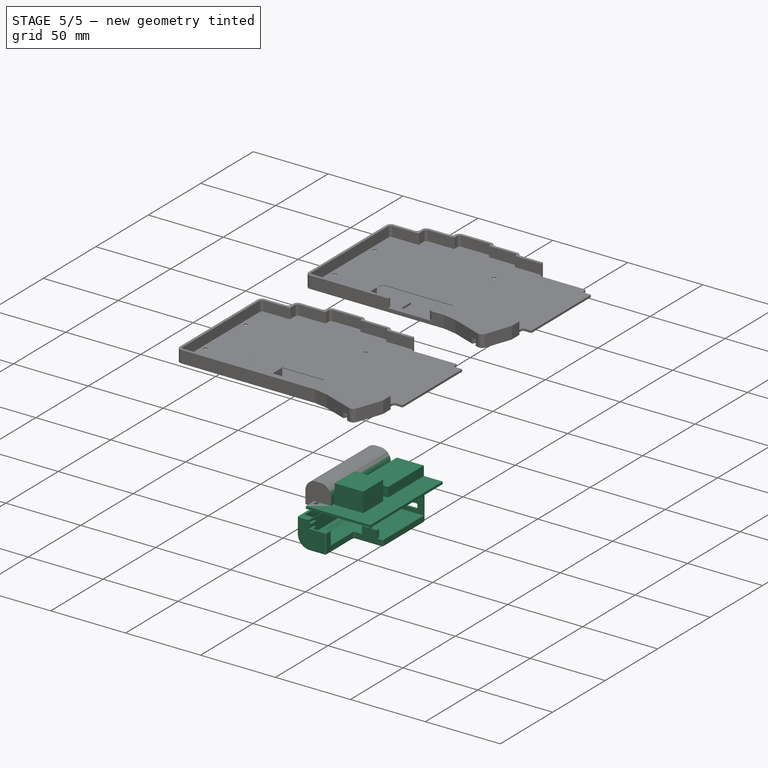
[diagram: stage 5 of 5 — iso view after this stage's code; geometry added in this stage tinted green]
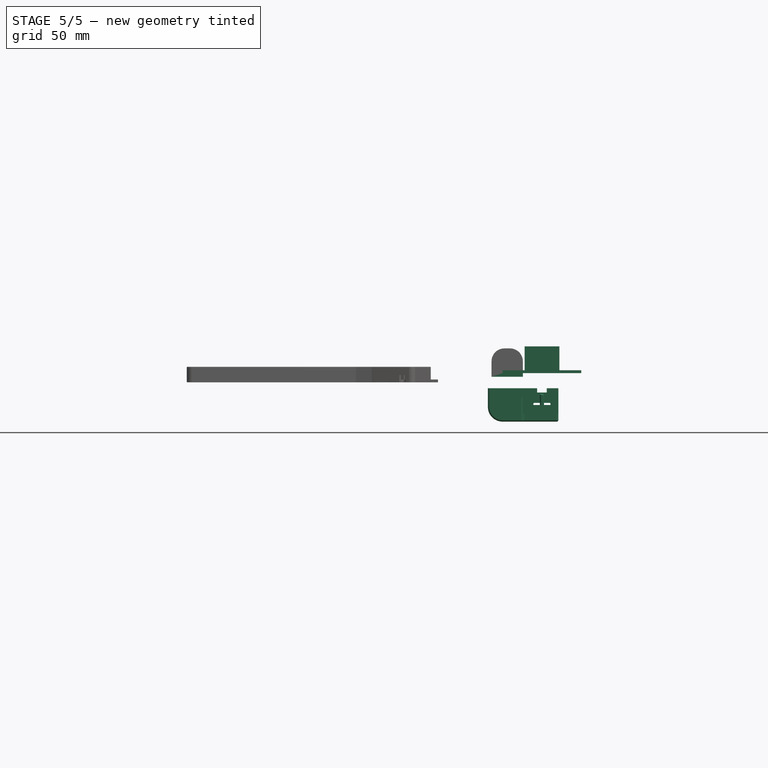
[diagram: stage 5 of 5 — front view after this stage's code; geometry added in this stage tinted green]
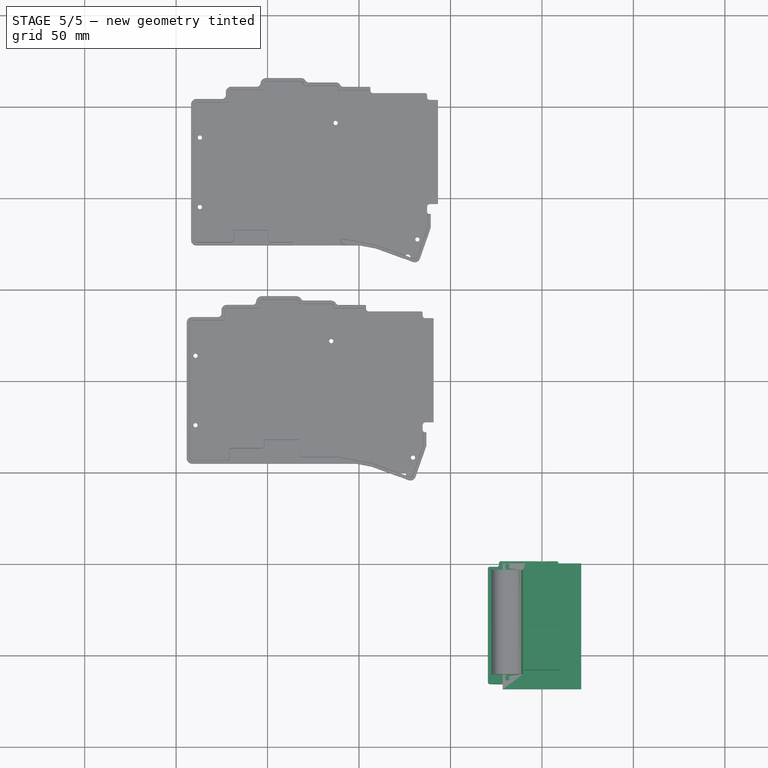
[diagram: stage 5 of 5 — top view after this stage's code; geometry added in this stage tinted green]
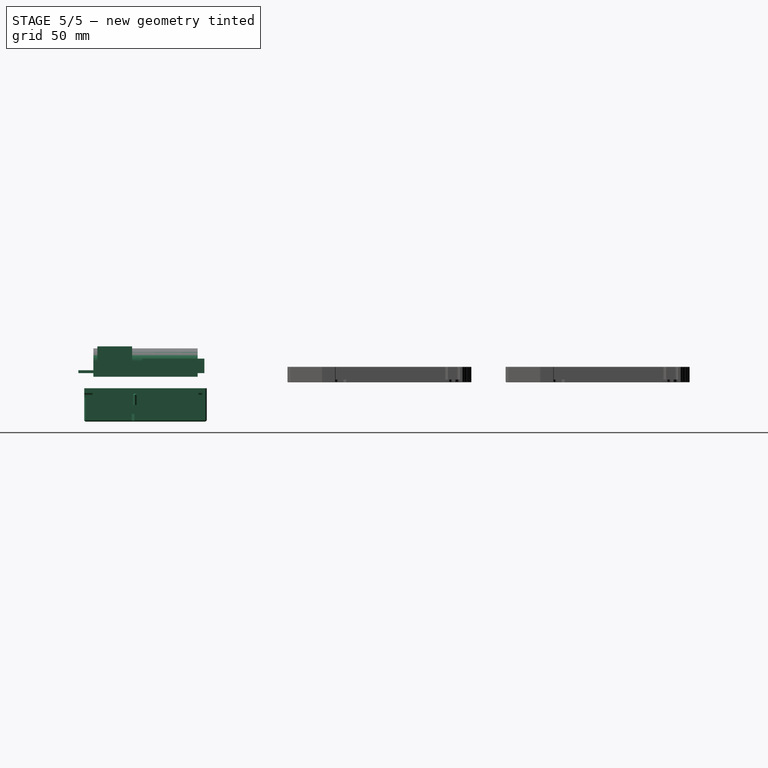
[diagram: stage 5 of 5 — right view after this stage's code; geometry added in this stage tinted green]
FEATURE [Sketcher::SketchObject] Sketch004  label="xy001"
  ArcFitTolerance = 0
  AttachmentSupport = -> [XY_Plane001]
  FullyConstrained = true
  MakeInternals = false
  MapMode = 5
  sketch-geometry (20):
    g0: LineSegment [constr] StartX=9 StartY=-34 StartZ=0 EndX=9 EndY=0 EndZ=0
    g1: LineSegment [constr] StartX=9 StartY=0 StartZ=0 EndX=-9 EndY=0 EndZ=0
    g2: LineSegment [constr] StartX=-9 StartY=0 StartZ=0 EndX=-9 EndY=-34 EndZ=0
    g3: LineSegment [constr] StartX=-9 StartY=-34 StartZ=0 EndX=9 EndY=-34 EndZ=0
    g4: GeomPoint [constr] X=0 Y=-17 Z=0
    g5: LineSegment [constr] StartX=-27.55 StartY=-60.7 StartZ=0 EndX=-27.55 EndY=-3.7 EndZ=0
    g6: LineSegment [constr] StartX=-27.55 StartY=-3.7 StartZ=0 EndX=-10.45 EndY=-3.7 EndZ=0
    g7: LineSegment [constr] StartX=-10.45 StartY=-3.7 StartZ=0 EndX=-10.45 EndY=-60.7 EndZ=0
    g8: LineSegment [constr] StartX=-10.45 StartY=-60.7 StartZ=0 EndX=-27.55 EndY=-60.7 EndZ=0
    g9: GeomPoint [constr] X=-19 Y=-32.2 Z=0
    g10: LineSegment StartX=21.5 StartY=-68.9 StartZ=0 EndX=21.5 EndY=0 EndZ=0
    g11: LineSegment StartX=21.5 StartY=0 StartZ=0 EndX=-21.5 EndY=0 EndZ=0
    g12: LineSegment StartX=-21.5 StartY=0 StartZ=0 EndX=-21.5 EndY=-68.9 EndZ=0
    g13: LineSegment StartX=-21.5 StartY=-68.9 StartZ=0 EndX=21.5 EndY=-68.9 EndZ=0
    g14: GeomPoint [constr] X=0 Y=-34.45 Z=0
    g15: LineSegment [constr] StartX=9.5 StartY=-58.5 StartZ=0 EndX=9.5 EndY=-39.5 EndZ=0
    g16: LineSegment [constr] StartX=9.5 StartY=-39.5 StartZ=0 EndX=-9.5 EndY=-39.5 EndZ=0
    g17: LineSegment [constr] StartX=-9.5 StartY=-39.5 StartZ=0 EndX=-9.5 EndY=-58.5 EndZ=0
    g18: LineSegment [constr] StartX=-9.5 StartY=-58.5 StartZ=0 EndX=9.5 EndY=-58.5 EndZ=0
    g19: GeomPoint [constr] X=0 Y=-49 Z=0
  constraints (52):
    c: Coincident(g0,g1)
    c: Coincident(g1,g2)
    c: Coincident(g2,g3)
    c: Coincident(g3,g0)
    c: Horizontal(g1)
    c: Horizontal(g3)
    c: Vertical(g0)
    c: Vertical(g2)
    c: Symmetric(g1,g0,g4)
    c: PointOnObject(g4,g-2)
    c: Distance(g0) = 34
    c: PointOnObject(g-1,g1)
    c: Distance(g3) = 18
    c: Coincident(g5,g6)
    c: Coincident(g6,g7)
    c: Coincident(g7,g8)
    c: Coincident(g8,g5)
    c: Horizontal(g6)
    c: Horizontal(g8)
    c: Vertical(g5)
    c: Vertical(g7)
    c: Symmetric(g6,g5,g9)
    c: Distance(g6) = 17.1
    c: Distance(g5) = 57
    c: Distance(g9,g-1) = 32.2
    c: Coincident(g10,g11)
    c: Coincident(g11,g12)
    c: Coincident(g12,g13)
    c: Coincident(g13,g10)
    c: Horizontal(g11)
    c: Horizontal(g13)
    c: Vertical(g10)
    c: Vertical(g12)
    c: Symmetric(g11,g10,g14)
    c: PointOnObject(g14,g-2)
    c: PointOnObject(g11,g-1)
    c: Distance(g12,g-2) = 21.5
    c: Distance(g10) = 68.9
    c: Coincident(g15,g16)
    c: Coincident(g16,g17)
    c: Coincident(g17,g18)
    c: Coincident(g18,g15)
    c: Horizontal(g16)
    c: Horizontal(g18)
    c: Vertical(g15)
    c: Vertical(g17)
    c: Symmetric(g16,g15,g19)
    c: PointOnObject(g19,g-2)
    c: Distance(g18) = 19
    c: Distance(g15) = 19
    c: Distance(g19,g-1) = 49
    c: Distance(g9,g-2) = 19
FEATURE [PartDesign::Pad] Pad001
  Direction = (0,0,1)
  Length = 1.6
  Length2 = 10
  Profile = -> Sketch004
  ReferenceAxis = -> Sketch004 [N_Axis]
  Reversed = true
  Suppressed = false
  Type = 0
FEATURE [Sketcher::SketchObject] Sketch005  label="xy002"
  ArcFitTolerance = 0
  AttachmentSupport = -> [XY_Plane001]
  FullyConstrained = true
  MakeInternals = false
  MapMode = 5
  sketch-geometry (20):
    g0: LineSegment StartX=9 StartY=-34 StartZ=0 EndX=9 EndY=0 EndZ=0
    g1: LineSegment StartX=9 StartY=0 StartZ=0 EndX=-9 EndY=0 EndZ=0
    g2: LineSegment StartX=-9 StartY=0 StartZ=0 EndX=-9 EndY=-34 EndZ=0
    g3: LineSegment StartX=-9 StartY=-34 StartZ=0 EndX=9 EndY=-34 EndZ=0
    g4: GeomPoint [constr] X=0 Y=-17 Z=0
    g5: LineSegment [constr] StartX=-27.55 StartY=-60.7 StartZ=0 EndX=-27.55 EndY=-3.7 EndZ=0
    g6: LineSegment [constr] StartX=-27.55 StartY=-3.7 StartZ=0 EndX=-10.45 EndY=-3.7 EndZ=0
    g7: LineSegment [constr] StartX=-10.45 StartY=-3.7 StartZ=0 EndX=-10.45 EndY=-60.7 EndZ=0
    g8: LineSegment [constr] StartX=-10.45 StartY=-60.7 StartZ=0 EndX=-27.55 EndY=-60.7 EndZ=0
    g9: GeomPoint [constr] X=-19 Y=-32.2 Z=0
    g10: LineSegment [constr] StartX=21.5 StartY=-68.9 StartZ=0 EndX=21.5 EndY=0 EndZ=0
    g11: LineSegment [constr] StartX=21.5 StartY=0 StartZ=0 EndX=-21.5 EndY=0 EndZ=0
    g12: LineSegment [constr] StartX=-21.5 StartY=0 StartZ=0 EndX=-21.5 EndY=-68.9 EndZ=0
    g13: LineSegment [constr] StartX=-21.5 StartY=-68.9 StartZ=0 EndX=21.5 EndY=-68.9 EndZ=0
    g14: GeomPoint [constr] X=0 Y=-34.45 Z=0
    g15: LineSegment [constr] StartX=9.5 StartY=-58.5 StartZ=0 EndX=9.5 EndY=-39.5 EndZ=0
    g16: LineSegment [constr] StartX=9.5 StartY=-39.5 StartZ=0 EndX=-9.5 EndY=-39.5 EndZ=0
    g17: LineSegment [constr] StartX=-9.5 StartY=-39.5 StartZ=0 EndX=-9.5 EndY=-58.5 EndZ=0
    g18: LineSegment [constr] StartX=-9.5 StartY=-58.5 StartZ=0 EndX=9.5 EndY=-58.5 EndZ=0
    g19: GeomPoint [constr] X=0 Y=-49 Z=0
  constraints (52):
    c: Coincident(g0,g1)
    c: Coincident(g1,g2)
    c: Coincident(g2,g3)
    c: Coincident(g3,g0)
    c: Horizontal(g1)
    c: Horizontal(g3)
    c: Vertical(g0)
    c: Vertical(g2)
    c: Symmetric(g1,g0,g4)
    c: PointOnObject(g4,g-2)
    c: Distance(g0) = 34
    c: PointOnObject(g-1,g1)
    c: Distance(g3) = 18
    c: Coincident(g5,g6)
    c: Coincident(g6,g7)
    c: Coincident(g7,g8)
    c: Coincident(g8,g5)
    c: Horizontal(g6)
    c: Horizontal(g8)
    c: Vertical(g5)
    c: Vertical(g7)
    c: Symmetric(g6,g5,g9)
    c: Distance(g6) = 17.1
    c: Distance(g5) = 57
    c: Distance(g9,g-1) = 32.2
    c: Coincident(g10,g11)
    c: Coincident(g11,g12)
    c: Coincident(g12,g13)
    c: Coincident(g13,g10)
    c: Horizontal(g11)
    c: Horizontal(g13)
    c: Vertical(g10)
    c: Vertical(g12)
    c: Symmetric(g11,g10,g14)
    c: PointOnObject(g14,g-2)
    c: PointOnObject(g11,g-1)
    c: Distance(g12,g-2) = 21.5
    c: Distance(g10) = 68.9
    c: Coincident(g15,g16)
    c: Coincident(g16,g17)
    c: Coincident(g17,g18)
    c: Coincident(g18,g15)
    c: Horizontal(g16)
    c: Horizontal(g18)
    c: Vertical(g15)
    c: Vertical(g17)
    c: Symmetric(g16,g15,g19)
    c: PointOnObject(g19,g-2)
    c: Distance(g18) = 19
    c: Distance(g15) = 19
    c: Distance(g19,g-1) = 49
    c: Distance(g9,g-2) = 19
FEATURE [PartDesign::Pad] Pad002
  BaseFeature = -> Pad001
  Direction = (0,0,1)
  Length = 6.3
  Length2 = 10
  Profile = -> Sketch005
  ReferenceAxis = -> Sketch005 [N_Axis]
  Suppressed = false
  Type = 0
  expr: Length = Spreadsheet.conn_h + Spreadsheet.controller_h
FEATURE [Sketcher::SketchObject] Sketch006  label="xy003"
  ArcFitTolerance = 0
  AttachmentOffset = pos=(0,0,-3.6) rot=(0,0,1;0rad)
  AttachmentSupport = -> [XY_Plane001]
  FullyConstrained = true
  MakeInternals = false
  MapMode = 5
  Placement = pos=(0,0,-3.6) rot=(0,0,1;0rad)
  expr: .AttachmentOffset.Base.z = -1.6 - 2
  sketch-geometry (20):
    g0: LineSegment [constr] StartX=9 StartY=-34 StartZ=0 EndX=9 EndY=0 EndZ=0
    g1: LineSegment [constr] StartX=9 StartY=0 StartZ=0 EndX=-9 EndY=0 EndZ=0
    g2: LineSegment [constr] StartX=-9 StartY=0 StartZ=0 EndX=-9 EndY=-34 EndZ=0
    g3: LineSegment [constr] StartX=-9 StartY=-34 StartZ=0 EndX=9 EndY=-34 EndZ=0
    g4: GeomPoint [constr] X=0 Y=-17 Z=0
    g5: LineSegment StartX=-27.55 StartY=-60.7 StartZ=0 EndX=-27.55 EndY=-3.7 EndZ=0
    g6: LineSegment StartX=-27.55 StartY=-3.7 StartZ=0 EndX=-10.45 EndY=-3.7 EndZ=0
    g7: LineSegment StartX=-10.45 StartY=-3.7 StartZ=0 EndX=-10.45 EndY=-60.7 EndZ=0
    g8: LineSegment StartX=-10.45 StartY=-60.7 StartZ=0 EndX=-27.55 EndY=-60.7 EndZ=0
    g9: GeomPoint [constr] X=-19 Y=-32.2 Z=0
    g10: LineSegment [constr] StartX=21.5 StartY=-68.9 StartZ=0 EndX=21.5 EndY=0 EndZ=0
    g11: LineSegment [constr] StartX=21.5 StartY=0 StartZ=0 EndX=-21.5 EndY=0 EndZ=0
    g12: LineSegment [constr] StartX=-21.5 StartY=0 StartZ=0 EndX=-21.5 EndY=-68.9 EndZ=0
    g13: LineSegment [constr] StartX=-21.5 StartY=-68.9 StartZ=0 EndX=21.5 EndY=-68.9 EndZ=0
    g14: GeomPoint [constr] X=0 Y=-34.45 Z=0
    g15: LineSegment [constr] StartX=9.5 StartY=-58.5 StartZ=0 EndX=9.5 EndY=-39.5 EndZ=0
    g16: LineSegment [constr] StartX=9.5 StartY=-39.5 StartZ=0 EndX=-9.5 EndY=-39.5 EndZ=0
    g17: LineSegment [constr] StartX=-9.5 StartY=-39.5 StartZ=0 EndX=-9.5 EndY=-58.5 EndZ=0
    g18: LineSegment [constr] StartX=-9.5 StartY=-58.5 StartZ=0 EndX=9.5 EndY=-58.5 EndZ=0
    g19: GeomPoint [constr] X=0 Y=-49 Z=0
  constraints (52):
    c: Coincident(g0,g1)
    c: Coincident(g1,g2)
    c: Coincident(g2,g3)
    c: Coincident(g3,g0)
    c: Horizontal(g1)
    c: Horizontal(g3)
    c: Vertical(g0)
    c: Vertical(g2)
    c: Symmetric(g1,g0,g4)
    c: PointOnObject(g4,g-2)
    c: Distance(g0) = 34
    c: PointOnObject(g-1,g1)
    c: Distance(g3) = 18
    c: Coincident(g5,g6)
    c: Coincident(g6,g7)
    c: Coincident(g7,g8)
    c: Coincident(g8,g5)
    c: Horizontal(g6)
    c: Horizontal(g8)
    c: Vertical(g5)
    c: Vertical(g7)
    c: Symmetric(g6,g5,g9)
    c: Distance(g6) = 17.1
    c: Distance(g5) = 57
    c: Distance(g9,g-1) = 32.2
    c: Coincident(g10,g11)
    c: Coincident(g11,g12)
    c: Coincident(g12,g13)
    c: Coincident(g13,g10)
    c: Horizontal(g11)
    c: Horizontal(g13)
    c: Vertical(g10)
    c: Vertical(g12)
    c: Symmetric(g11,g10,g14)
    c: PointOnObject(g14,g-2)
    c: PointOnObject(g11,g-1)
    c: Distance(g12,g-2) = 21.5
    c: Distance(g10) = 68.9
    c: Coincident(g15,g16)
    c: Coincident(g16,g17)
    c: Coincident(g17,g18)
    c: Coincident(g18,g15)
    c: Horizontal(g16)
    c: Horizontal(g18)
    c: Vertical(g15)
    c: Vertical(g17)
    c: Symmetric(g16,g15,g19)
    c: PointOnObject(g19,g-2)
    c: Distance(g18) = 19
    c: Distance(g15) = 19
    c: Distance(g19,g-1) = 49
    c: Distance(g9,g-2) = 19
FEATURE [PartDesign::Pad] Pad003
  BaseFeature = -> Pad002
  Direction = (0,0,1)
  Length = 15.5
  Length2 = 10
  Profile = -> Sketch006
  ReferenceAxis = -> Sketch006 [N_Axis]
  Suppressed = false
  Type = 0
  expr: Length = Spreadsheet.battery_h
FEATURE [PartDesign::Fillet] Fillet
  Base = -> Pad003 [Edge36,Edge49]
  BaseFeature = -> Pad003
  Radius = 7
  SupportTransform = false
  Suppressed = false
  UseAllEdges = false
FEATURE [Sketcher::SketchObject] Sketch009
  ArcFitTolerance = 0
  AttachmentSupport = -> [XY_Plane001]
  FullyConstrained = false
  MakeInternals = false
  MapMode = 5
  sketch-geometry (9):
    g0: ArcOfCircle CenterX=-19 CenterY=-63.1 CenterZ=0 NormalX=0 NormalY=0 NormalZ=1 AngleXU=0 Radius=1.1 StartAngle=3.14159 EndAngle=6.28319
    g1: ArcOfCircle CenterX=-19 CenterY=-62.3 CenterZ=0 NormalX=0 NormalY=0 NormalZ=1 AngleXU=0 Radius=1.1 StartAngle=-1.8e-15 EndAngle=3.14159
    g2: LineSegment StartX=-17.9 StartY=-63.1 StartZ=0 EndX=-17.9 EndY=-62.3 EndZ=0
    g3: LineSegment StartX=-20.1 StartY=-62.3 StartZ=0 EndX=-20.1 EndY=-63.1 EndZ=0
    g4: LineSegment [constr] StartX=-19 StartY=-63.1 StartZ=0 EndX=-19 EndY=12.3674 EndZ=0
    g5: ArcOfCircle CenterX=-19 CenterY=-1.3 CenterZ=0 NormalX=0 NormalY=0 NormalZ=1 AngleXU=0 Radius=1.1 StartAngle=0 EndAngle=3.14159
    g6: ArcOfCircle CenterX=-19 CenterY=-2.1 CenterZ=0 NormalX=0 NormalY=0 NormalZ=1 AngleXU=0 Radius=1.1 StartAngle=3.14159 EndAngle=6.28319
    g7: LineSegment StartX=-20.1 StartY=-1.3 StartZ=0 EndX=-20.1 EndY=-2.1 EndZ=0
    g8: LineSegment StartX=-17.9 StartY=-2.1 StartZ=0 EndX=-17.9 EndY=-1.3 EndZ=0
  constraints (22):
    c: Tangent(g0,g2) = -1.5708
    c: Tangent(g2,g1) = -1.5708
    c: Tangent(g1,g3) = -1.5708
    c: Tangent(g3,g0) = -1.5708
    c: Equal(g0,g1)
    c: Vertical(g2)
    c: Coincident(g4,g0)
    c: Vertical(g4)
    c: DistanceX(g-2,g0) = -19
    c: Distance(g1,g2) = 2.2
    c: Distance(g1,g0) = 0.8
    c: Tangent(g5,g7) = -1.5708
    c: Tangent(g7,g6) = -1.5708
    c: Tangent(g6,g8) = -1.5708
    c: Tangent(g8,g5) = -1.5708
    c: Equal(g5,g6)
    c: PointOnObject(g5,g4)
    c: PointOnObject(g6,g4)
    c: Distance(g5,g8) = 2.2
    c: Distance(g5,g6) = 0.8
    c: Distance(g5,g-1) = 1.3
    c: Distance(g5,g1) = 61
FEATURE [PartDesign::Pocket] Pocket003
  BaseFeature = -> Fillet
  Direction = (0,0,-1)
  Length = 5
  Length2 = 5
  Profile = -> Sketch009
  ReferenceAxis = -> Sketch009 [N_Axis]
  Suppressed = false
  Type = 1
FEATURE [Sketcher::SketchObject] Sketch010
  ArcFitTolerance = 0
  AttachmentSupport = -> [XY_Plane001]
  FullyConstrained = true
  MakeInternals = false
  MapMode = 5
  expr: Constraints[10] = Sketch006.Constraints[10]
  expr: Constraints[12] = Sketch006.Constraints[12]
  expr: Constraints[22] = Sketch006.Constraints[22]
  expr: Constraints[23] = Sketch006.Constraints[23]
  expr: Constraints[24] = Sketch006.Constraints[24]
  expr: Constraints[36] = Sketch006.Constraints[36]
  expr: Constraints[37] = Sketch006.Constraints[37]
  expr: Constraints[48] = Sketch006.Constraints[48]
  expr: Constraints[49] = Sketch006.Constraints[49]
  expr: Constraints[50] = Sketch006.Constraints[50]
  expr: Constraints[51] = Sketch006.Constraints[51]
  sketch-geometry (20):
    g0: LineSegment [constr] StartX=9 StartY=-34 StartZ=0 EndX=9 EndY=0 EndZ=0
    g1: LineSegment [constr] StartX=9 StartY=0 StartZ=0 EndX=-9 EndY=0 EndZ=0
    g2: LineSegment [constr] StartX=-9 StartY=0 StartZ=0 EndX=-9 EndY=-34 EndZ=0
    g3: LineSegment [constr] StartX=-9 StartY=-34 StartZ=0 EndX=9 EndY=-34 EndZ=0
    g4: GeomPoint [constr] X=0 Y=-17 Z=0
    g5: LineSegment [constr] StartX=-27.55 StartY=-60.7 StartZ=0 EndX=-27.55 EndY=-3.7 EndZ=0
    g6: LineSegment [constr] StartX=-27.55 StartY=-3.7 StartZ=0 EndX=-10.45 EndY=-3.7 EndZ=0
    g7: LineSegment [constr] StartX=-10.45 StartY=-3.7 StartZ=0 EndX=-10.45 EndY=-60.7 EndZ=0
    g8: LineSegment [constr] StartX=-10.45 StartY=-60.7 StartZ=0 EndX=-27.55 EndY=-60.7 EndZ=0
    g9: GeomPoint [constr] X=-19 Y=-32.2 Z=0
    g10: LineSegment [constr] StartX=21.5 StartY=-68.9 StartZ=0 EndX=21.5 EndY=0 EndZ=0
    g11: LineSegment [constr] StartX=21.5 StartY=0 StartZ=0 EndX=-21.5 EndY=0 EndZ=0
    g12: LineSegment [constr] StartX=-21.5 StartY=0 StartZ=0 EndX=-21.5 EndY=-68.9 EndZ=0
    g13: LineSegment [constr] StartX=-21.5 StartY=-68.9 StartZ=0 EndX=21.5 EndY=-68.9 EndZ=0
    g14: GeomPoint [constr] X=0 Y=-34.45 Z=0
    g15: LineSegment StartX=9.5 StartY=-58.5 StartZ=0 EndX=9.5 EndY=-39.5 EndZ=0
    g16: LineSegment StartX=9.5 StartY=-39.5 StartZ=0 EndX=-9.5 EndY=-39.5 EndZ=0
    g17: LineSegment StartX=-9.5 StartY=-39.5 StartZ=0 EndX=-9.5 EndY=-58.5 EndZ=0
    g18: LineSegment StartX=-9.5 StartY=-58.5 StartZ=0 EndX=9.5 EndY=-58.5 EndZ=0
    g19: GeomPoint [constr] X=0 Y=-49 Z=0
  constraints (52):
    c: Coincident(g0,g1)
    c: Coincident(g1,g2)
    c: Coincident(g2,g3)
    c: Coincident(g3,g0)
    c: Horizontal(g1)
    c: Horizontal(g3)
    c: Vertical(g0)
    c: Vertical(g2)
    c: Symmetric(g1,g0,g4)
    c: PointOnObject(g4,g-2)
    c: Distance(g0) = 34
    c: PointOnObject(g-1,g1)
    c: Distance(g3) = 18
    c: Coincident(g5,g6)
    c: Coincident(g6,g7)
    c: Coincident(g7,g8)
    c: Coincident(g8,g5)
    c: Horizontal(g6)
    c: Horizontal(g8)
    c: Vertical(g5)
    c: Vertical(g7)
    c: Symmetric(g6,g5,g9)
    c: Distance(g6) = 17.1
    c: Distance(g5) = 57
    c: Distance(g9,g-1) = 32.2
    c: Coincident(g10,g11)
    c: Coincident(g11,g12)
    c: Coincident(g12,g13)
    c: Coincident(g13,g10)
    c: Horizontal(g11)
    c: Horizontal(g13)
    c: Vertical(g10)
    c: Vertical(g12)
    c: Symmetric(g11,g10,g14)
    c: PointOnObject(g14,g-2)
    c: PointOnObject(g11,g-1)
    c: Distance(g12,g-2) = 21.5
    c: Distance(g10) = 68.9
    c: Coincident(g15,g16)
    c: Coincident(g16,g17)
    c: Coincident(g17,g18)
    c: Coincident(g18,g15)
    c: Horizontal(g16)
    c: Horizontal(g18)
    c: Vertical(g15)
    c: Vertical(g17)
    c: Symmetric(g16,g15,g19)
    c: PointOnObject(g19,g-2)
    c: Distance(g18) = 19
    c: Distance(g15) = 19
    c: Distance(g19,g-1) = 49
    c: Distance(g9,g-2) = 19
FEATURE [PartDesign::Pad] Pad004
  BaseFeature = -> Pocket003
  Direction = (0,0,1)
  Length = 13
  Length2 = 10
  Profile = -> Sketch010
  ReferenceAxis = -> Sketch010 [N_Axis]
  Suppressed = false
  Type = 0
FEATURE [PartDesign::Pocket] Pocket006  label="外形カット"
  BaseFeature = -> Pocket005
  Direction = (0,1,-2e-16)
  Length = 100
  Length2 = 100
  Profile = -> Sketch016
  ReferenceAxis = -> Sketch016 [N_Axis]
  Reversed = true
  Suppressed = false
  Type = 4
FEATURE [PartDesign::Fillet] Fillet001  label="外形フィレット"
  Base = -> Pocket006 [Face26,Edge148,Edge149,Edge147,Edge208,Edge207,Edge146,Edge143,Edge144,Edge83,Edge56,Edge54,Edge85]
  BaseFeature = -> Pocket006
  Radius = 1
  SupportTransform = false
  Suppressed = false
  UseAllEdges = false
FEATURE [PartDesign::Pad] Pad008  label="固定爪1"
  BaseFeature = -> Fillet001
  Direction = (0,0,1)
  Length = 2
  Length2 = 10
  Profile = -> Sketch017
  ReferenceAxis = -> Sketch017 [N_Axis]
  Reversed = true
  Suppressed = false
  Type = 0
FEATURE [PartDesign::Chamfer] Chamfer  label="固定爪1_逃げ"
  Angle = 45
  Base = -> Pad008 [Edge251,Edge305]
  BaseFeature = -> Pad008
  ChamferType = 0
  FlipDirection = false
  Size = 0.9
  Size2 = 1
  SupportTransform = false
  Suppressed = false
  UseAllEdges = false
FEATURE [PartDesign::Body] Body
  AllowCompound = false
  Group = -> [Sketch,Sketch001,Sketch002,Pad,Sketch003,Pocket,Sketch007,Pocket001,Sketch008,Pocket002,Sketch011,Pocket004,Sketch012,Pad005,Sketch013,Sketch014,Pad006,Chamfer001,Pocket005,Sketch016,Pocket006,Fillet001,Sketch017,Pad008,Chamfer]
  Origin = -> Origin
  Tip = -> Chamfer
FEATURE [Part::Mirroring] Part__Mirroring  label="Body (Mirror #1)"
  Base = (-10.6046,-32.2,0)
  Normal = (0,0,1)
  Placement = pos=(0,0,-15) rot=(0,0,1;0rad)
  Source = -> Body
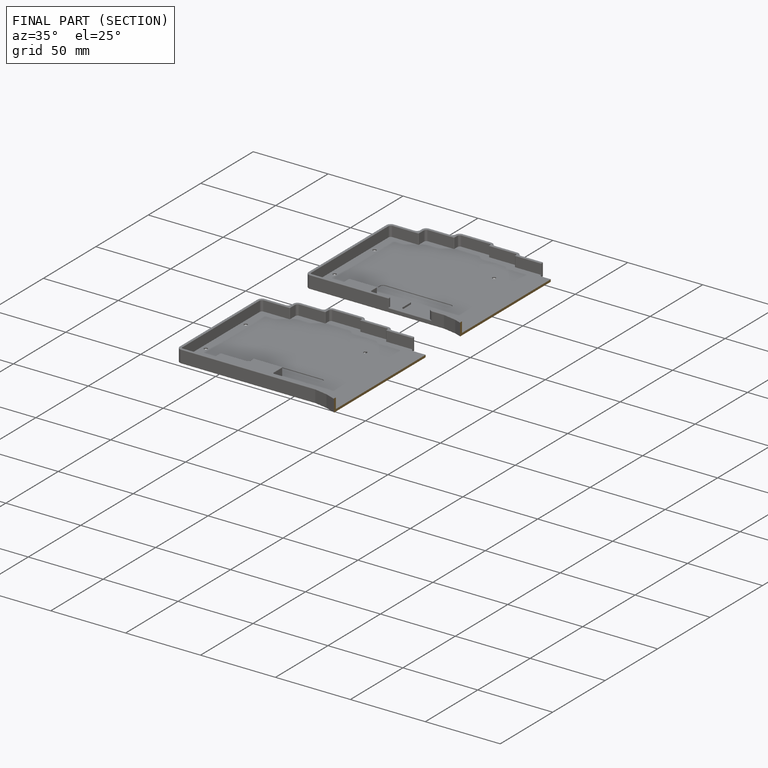
[diagram: finished part — half-section view (interior)]
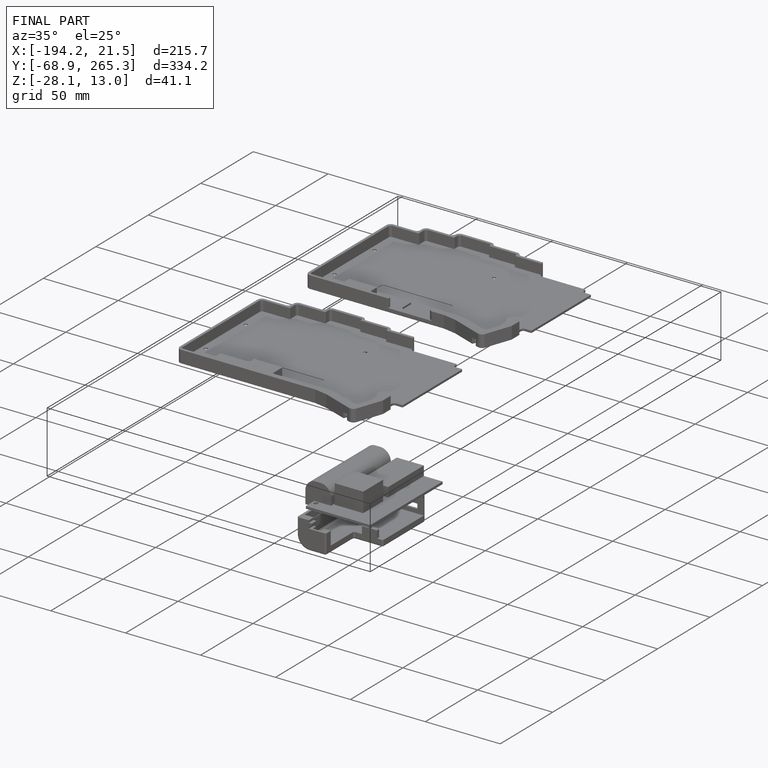
[diagram: finished part — iso view with bounding-box wireframe]
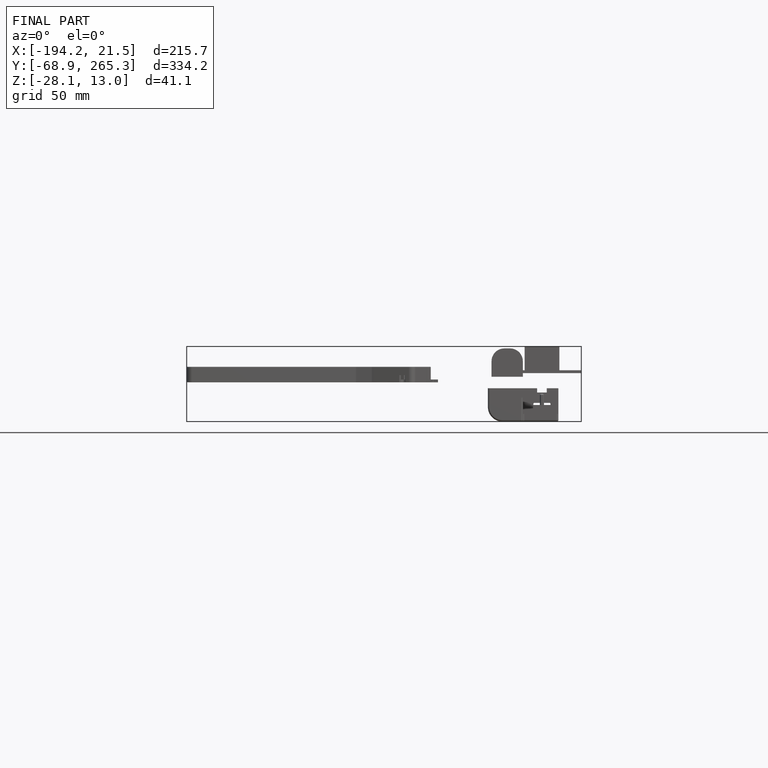
[diagram: finished part — front view with bounding-box wireframe]
